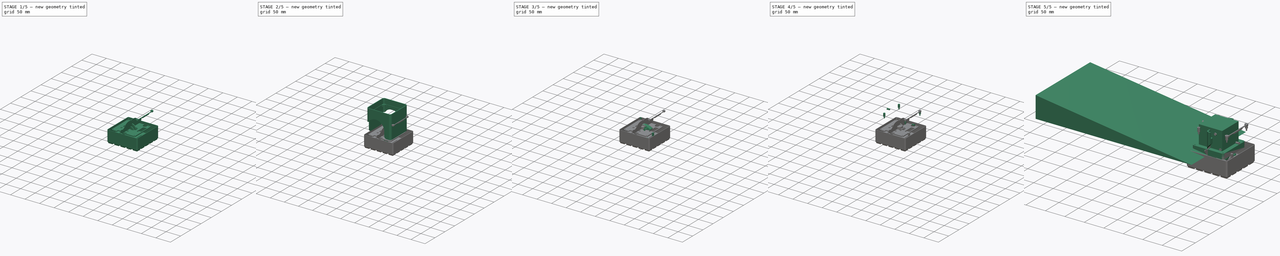
[diagram: build sequence overview — one tinted view per stage of 5, left to right]
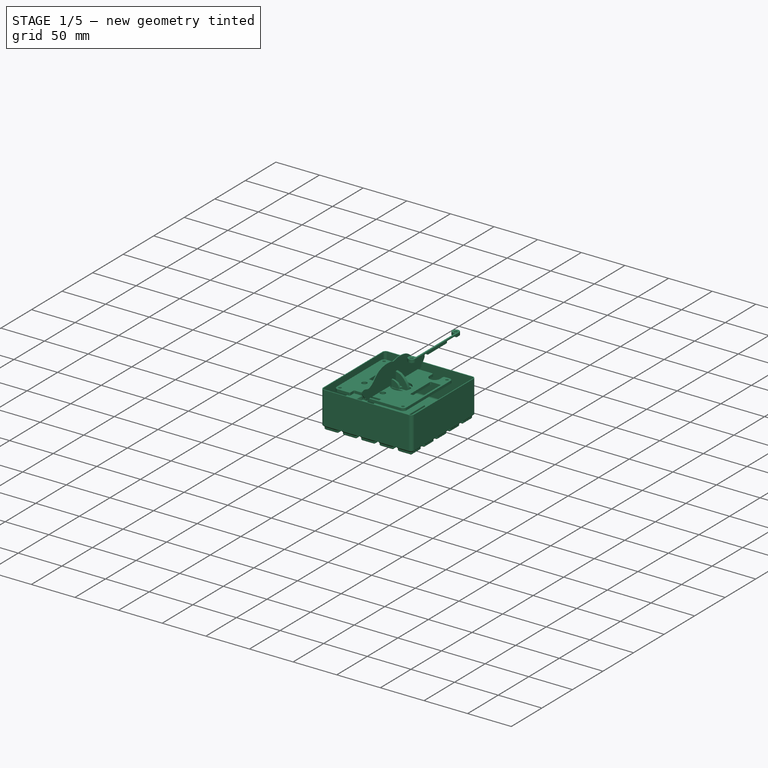
[diagram: stage 1 of 5 — iso view after this stage's code; geometry added in this stage tinted green]
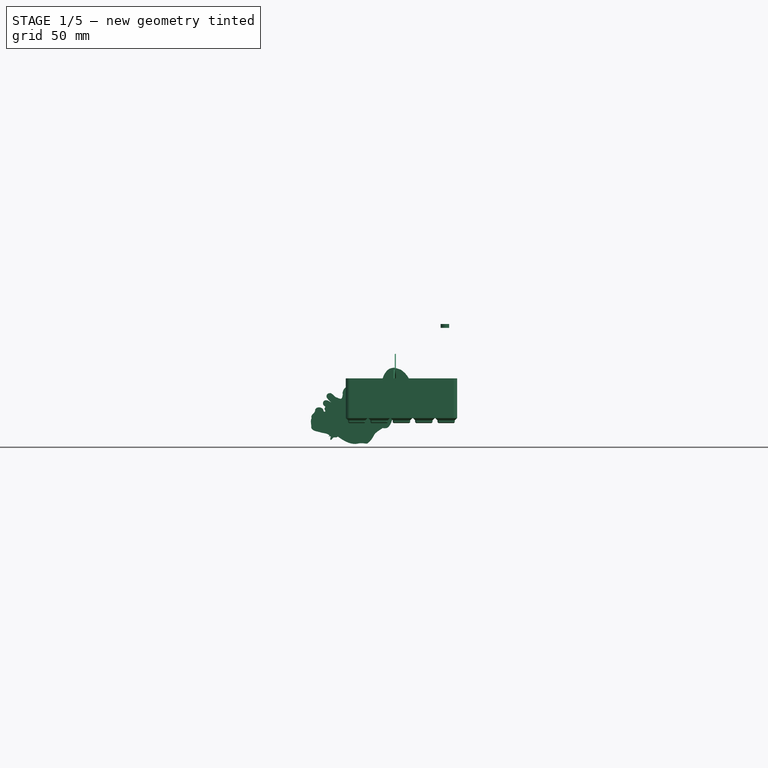
[diagram: stage 1 of 5 — front view after this stage's code; geometry added in this stage tinted green]
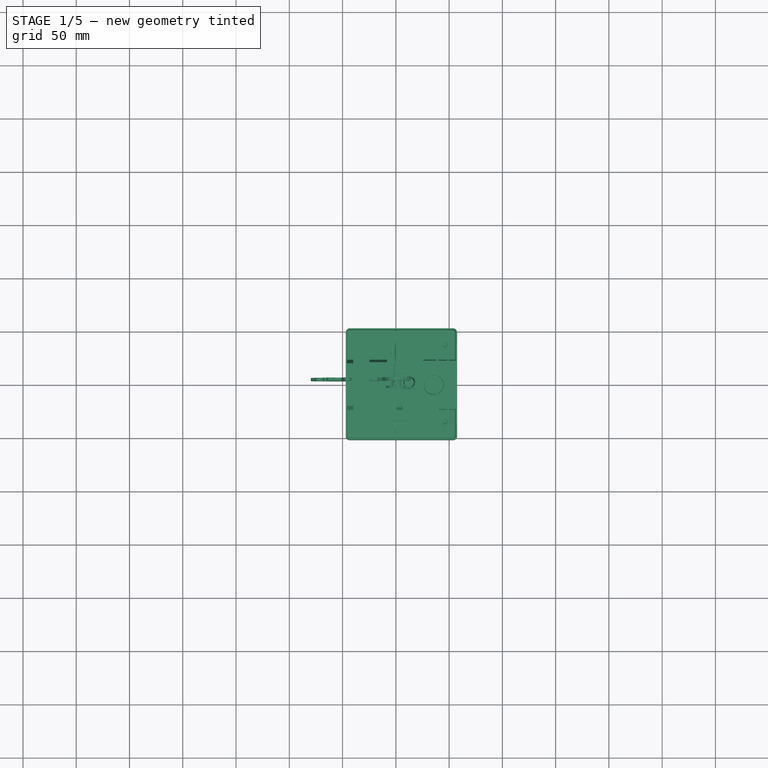
[diagram: stage 1 of 5 — top view after this stage's code; geometry added in this stage tinted green]
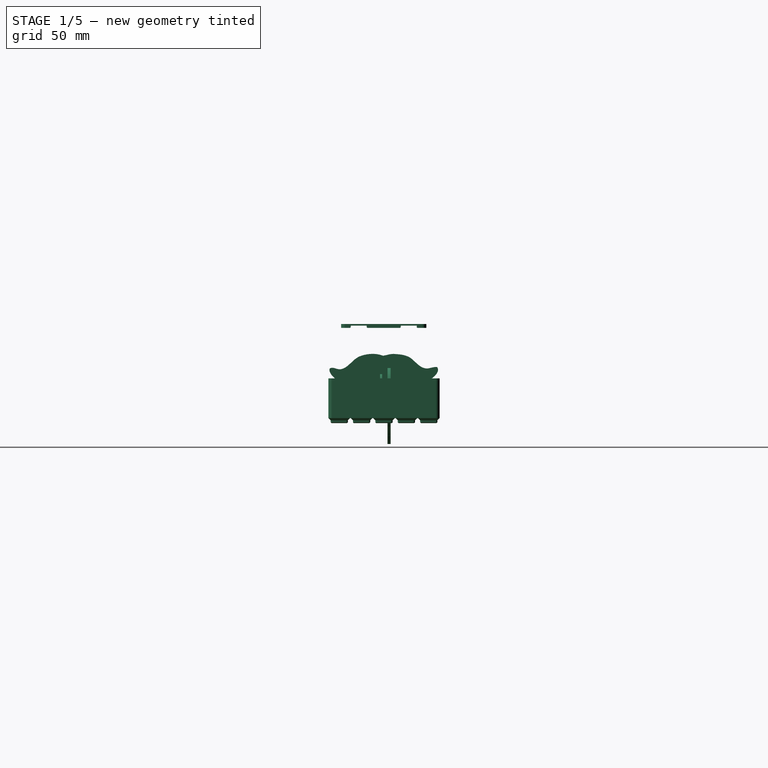
[diagram: stage 1 of 5 — right view after this stage's code; geometry added in this stage tinted green]
FCSTD DOCUMENT  (FreeCAD 2024.113R14555 (Git shallow))
Label: PAMI-2025
License: All rights reserved
LicenseURL: https://en.wikipedia.org/wiki/All_rights_reserved
objects: Sketcher::SketchObject×95, PartDesign::Pocket×56, PartDesign::Pad×46, Part::FeaturePython×42, PartDesign::Fillet×39, PartDesign::Chamfer×36, PartDesign::Body×33, App::Part×12, Part::Feature×11, App::Link×10, PartDesign::Mirrored×10, PartDesign::Draft×8, PartDesign::SubShapeBinder×8, Part::SubShapeBinder×7, PartDesign::Revolution×6, PartDesign::FeatureBase×6, TechDraw::DrawProjGroupItem×6, TechDraw::DrawProjGroup×6, App::DocumentObjectGroup×4, TechDraw::DrawSVGTemplate×3, +10 more types
note: 928 computed .brp shape members not serialized (recipe doc carries the construction recipe); baked Part::Feature solids carry a one-line shape summary decoded from their .brp
EXTERNAL_REF file=electronics/support-sensor.FCStd obj=Body

FEATURE [PartDesign::Body] Body037  label="RobotAdverseMinimum"
  AutoGroupSolids = false
  ClaimAllChildren = false
  ExportMode = 0
  Group = -> [Sketch138,Pad057]
  InvalidShape = false
  Origin = -> Origin053
  Placement = pos=(-80,0,-30) rot=(0,0,1;0rad)
  Tip = -> Pad057
  TreeRank = 1302
  ValidateShape = false
  _ExportChildren = -> [Pad057]
  _GroupVersion = 1
FEATURE [App::Part] Part014  label="Elements"
  ClaimAllChildren = false
  ExportMode = 1
  Group = -> [Body032,Body037]
  Origin = -> Origin052
  TreeRank = 1699
  _ExportChildren = -> [Body032,Body037]
  _GroupVersion = 1
FEATURE [Sketcher::SketchObject] Sketch139
  ArcFitTolerance = 1e-06
  AttachmentSupport = -> [XY_Plane048]
  ExternalBSplineMaxDegree = 5
  ExternalBSplineTolerance = 0.0001
  FullyConstrained = true
  InternalTolerance = 1e-06
  InvalidShape = false
  MakeInternals = true
  MapMode = 5
  Support = -> [XY_Plane048]
  TreeRank = 1319
  ValidateShape = false
  sketch-geometry (14):
    g0: ArcOfCircle CenterX=-36 CenterY=36 CenterZ=0 NormalX=0 NormalY=0 NormalZ=1 AngleXU=0 Radius=4 StartAngle=1.5708 EndAngle=3.14159
    g1: LineSegment StartX=-36 StartY=40 StartZ=0 EndX=36 EndY=40 EndZ=0
    g2: ArcOfCircle CenterX=36 CenterY=36 CenterZ=0 NormalX=0 NormalY=0 NormalZ=1 AngleXU=0 Radius=4 StartAngle=1e-15 EndAngle=1.5708
    g3: LineSegment StartX=40 StartY=36 StartZ=0 EndX=40 EndY=-36 EndZ=0
    g4: ArcOfCircle CenterX=36 CenterY=-36 CenterZ=0 NormalX=0 NormalY=0 NormalZ=1 AngleXU=0 Radius=4 StartAngle=4.71239 EndAngle=6.28319
    g5: LineSegment StartX=36 StartY=-40 StartZ=0 EndX=-36 EndY=-40 EndZ=0
    g6: ArcOfCircle CenterX=-36 CenterY=-36 CenterZ=0 NormalX=0 NormalY=0 NormalZ=1 AngleXU=0 Radius=4 StartAngle=3.14159 EndAngle=4.71239
    g7: LineSegment StartX=-40 StartY=-36 StartZ=0 EndX=-40 EndY=36 EndZ=0
    g8: GeomPoint [constr] X=-40 Y=40 Z=0
    g9: GeomPoint [constr] X=40 Y=-40 Z=0
    g10: Circle CenterX=36 CenterY=-36 CenterZ=0 NormalX=0 NormalY=0 NormalZ=1 AngleXU=0 Radius=1.6
    g11: Circle CenterX=36 CenterY=36 CenterZ=0 NormalX=0 NormalY=0 NormalZ=1 AngleXU=0 Radius=1.6
    g12: Circle CenterX=-36 CenterY=36 CenterZ=0 NormalX=0 NormalY=0 NormalZ=1 AngleXU=0 Radius=1.6
    g13: Circle CenterX=-36 CenterY=-36 CenterZ=0 NormalX=0 NormalY=0 NormalZ=1 AngleXU=0 Radius=1.6
  constraints (30):
    c: Tangent(g0,g1) = 1.5708
    c: Tangent(g1,g2) = 1.5708
    c: Tangent(g2,g3) = 1.5708
    c: Tangent(g3,g4) = 1.5708
    c: Tangent(g4,g5) = 1.5708
    c: Tangent(g5,g6) = 1.5708
    c: Tangent(g6,g7) = 1.5708
    c: Tangent(g7,g0) = 1.5708
    c: Horizontal(g5)
    c: Vertical(g7)
    c: Equal(g0,g2)
    c: Equal(g2,g4)
    c: Equal(g4,g6)
    c: PointOnObject(g8,g1)
    c: PointOnObject(g8,g7)
    c: PointOnObject(g9,g3)
    c: PointOnObject(g9,g5)
    c: Symmetric(g3,g2,g-1)
    c: Symmetric(g0,g1,g-2)
    c: Equal(g1,g3)
    c: Radius(g2) = 4
    c: DistanceX(g0,g2) = 80
    c: Coincident(g10,g4)
    c: Coincident(g11,g2)
    c: Coincident(g12,g0)
    c: Coincident(g13,g6)
    c: Equal(g12,g13)
    c: Equal(g12,g10)
    c: Equal(g12,g11)
    c: Diameter(g12) = 3.2
FEATURE [PartDesign::Pad] Pad058
  AddSubType = 0
  AlongSketchNormal = false
  AutoTaperInnerAngle = true
  CheckUpToFaceLimits = true
  ClaimChildren = false
  Direction = (0,0,1)
  Fit = 0
  FitJoin = 0
  InnerFit = 0
  InnerFitJoin = 0
  InvalidShape = false
  Length = 3
  Length2 = 10
  Linearize = true
  NewSolid = false
  Profile = -> Sketch139
  ReferenceAxis = -> Sketch139 [N_Axis]
  Refine = true
  Suppress = false
  TaperInnerAngle = 0
  TaperInnerAngleRev = 0
  TreeRank = 1320
  Type = 0
  ValidateShape = true
  _ProfileBasedVersion = 1
FEATURE [Sketcher::SketchObject] Sketch140
  ArcFitTolerance = 1e-06
  AttachmentSupport = -> [XY_Plane048]
  ExternalBSplineMaxDegree = 5
  ExternalBSplineTolerance = 0.0001
  ExternalGeometry = -> [Pad058]
  FullyConstrained = false
  InternalTolerance = 1e-06
  InvalidShape = false
  MakeInternals = true
  MapMode = 5
  Support = -> [XY_Plane048]
  TreeRank = 1322
  ValidateShape = false
  sketch-geometry (17):
    g0: Circle CenterX=3.47913 CenterY=-22.4844 CenterZ=0 NormalX=0 NormalY=0 NormalZ=1 AngleXU=0 Radius=3
    g1: Circle CenterX=-23.5432 CenterY=-14.0924 CenterZ=0 NormalX=0 NormalY=0 NormalZ=1 AngleXU=0 Radius=3
    g2: Circle CenterX=9 CenterY=0 CenterZ=0 NormalX=0 NormalY=0 NormalZ=1 AngleXU=0 Radius=10.5
    g3: LineSegment StartX=-22.068 StartY=-40.2183 StartZ=0 EndX=-22.068 EndY=-33.2183 EndZ=0
    g4: LineSegment StartX=-22.068 StartY=-33.2183 StartZ=0 EndX=-8.56802 EndY=-33.2183 EndZ=0
    g5: LineSegment StartX=-8.56802 StartY=-33.2183 StartZ=0 EndX=-8.56802 EndY=-40.2183 EndZ=0
    g6: LineSegment StartX=-8.56802 StartY=-40.2183 StartZ=0 EndX=-22.068 EndY=-40.2183 EndZ=0
    g7: GeomPoint [constr] X=-15.318 Y=-36.7183 Z=0
    g8: LineSegment StartX=25.7619 StartY=-10.0224 StartZ=0 EndX=37.8758 EndY=-10.0224 EndZ=0
    g9: LineSegment StartX=37.8758 StartY=-10.0224 StartZ=0 EndX=37.8758 EndY=23.5365 EndZ=0
    g10: LineSegment StartX=37.8758 StartY=23.5365 StartZ=0 EndX=25.7619 EndY=23.5365 EndZ=0
    g11: LineSegment StartX=25.7619 StartY=23.5365 StartZ=0 EndX=25.7619 EndY=-10.0224 EndZ=0
    g12: ArcOfCircle CenterX=23.5 CenterY=40 CenterZ=0 NormalX=0 NormalY=0 NormalZ=1 AngleXU=0 Radius=6 StartAngle=2e-16 EndAngle=3.14159
    g13: ArcOfCircle CenterX=23.5 CenterY=34 CenterZ=0 NormalX=0 NormalY=0 NormalZ=1 AngleXU=0 Radius=6 StartAngle=3.14159 EndAngle=6.28319
    g14: LineSegment StartX=17.5 StartY=40 StartZ=0 EndX=17.5 EndY=34 EndZ=0
    g15: LineSegment StartX=29.5 StartY=34 StartZ=0 EndX=29.5 EndY=40 EndZ=0
    g16: Circle [constr] CenterX=23.5 CenterY=34 CenterZ=0 NormalX=0 NormalY=0 NormalZ=1 AngleXU=0 Radius=6
  constraints (40):
    c: Diameter(g0) = 6
    c: Equal(g1,g0)
    c: Block(g0)
    c: Block(g1)
    c: PointOnObject(g2,g-1)
    c: DistanceX(g-1,g2) = 9
    c: Diameter(g2) = 21
    c: Coincident(g3,g4)
    c: Coincident(g4,g5)
    c: Coincident(g5,g6)
    c: Coincident(g6,g3)
    c: Horizontal(g4)
    c: Horizontal(g6)
    c: Vertical(g3)
    c: Vertical(g5)
    c: Symmetric(g4,g3,g7)
    c: DistanceX(g7) = -15.318
    c: DistanceY(g7) = -36.7183
    c: DistanceY(g5,g5) = 7
    c: DistanceX(g4,g4) = 13.5
    c: Coincident(g8,g9)
    c: Coincident(g9,g10)
    c: Coincident(g10,g11)
    c: Coincident(g11,g8)
    c: Horizontal(g8)
    c: Horizontal(g10)
    c: Vertical(g9)
    c: Vertical(g11)
    c: Tangent(g12,g14) = -1.5708
    c: Tangent(g14,g13) = -1.5708
    c: Tangent(g13,g15) = -1.5708
    c: Tangent(g15,g12) = -1.5708
    c: Equal(g12,g13)
    c: PointOnObject(g12,g-3)
    c: Vertical(g14)
    c: Radius(g13) = 6
    c: Coincident(g16,g13)
    c: PointOnObject(g13,g16)
    c: Tangent(g16,g-3)
    c: DistanceX(g13) = 23.5
FEATURE [PartDesign::Pocket] Pocket072
  AddSubType = 1
  AlongSketchNormal = false
  AutoTaperInnerAngle = true
  BaseFeature = -> Pad058
  CheckUpToFaceLimits = true
  ClaimChildren = false
  Direction = (0,0,-1)
  Fit = 0
  FitJoin = 0
  InnerFit = 0
  InnerFitJoin = 0
  InvalidShape = false
  Length = 5
  Length2 = 10
  Linearize = true
  NewSolid = false
  Profile = -> Sketch140
  ReferenceAxis = -> Sketch140 [N_Axis]
  Refine = true
  Reversed = true
  Suppress = false
  TaperInnerAngle = 0
  TaperInnerAngleRev = 0
  TreeRank = 1323
  Type = 1
  ValidateShape = true
  _ProfileBasedVersion = 1
  _Version = 1
FEATURE [PartDesign::Fillet] Fillet072
  AddSubType = 0
  Base = -> Pocket072 [Edge67,Edge68,Edge70,Edge69,Edge80,Edge79,Edge77,Edge78,Edge62,Edge6]
  BaseFeature = -> Pocket072
  InvalidShape = false
  NewSolid = false
  Radius = 1
  Refine = true
  SupportTransform = false
  Suppress = false
  TreeRank = 1355
  UseAllEdges = false
  ValidateShape = true
FEATURE [Part::Feature] Solid003  label="arm v1"
  InvalidShape = false
  Placement = pos=(39,98.1,27) rot=(0,0,1;3.14159rad)
  TreeRank = 1359
  ValidateShape = false
  shape: bbox 21 x 4 x 8 mm, 75 faces (baked)
FEATURE [PartDesign::FeatureBase] BaseFeature
  BaseFeature = -> Solid003
  InvalidShape = false
  NewSolid = false
  Suppress = false
  TreeRank = 1370
  ValidateShape = true
FEATURE [Sketcher::SketchObject] Sketch148
  ArcFitTolerance = 1e-06
  AttachmentSupport = -> [BaseFeature]
  ExternalBSplineMaxDegree = 5
  ExternalBSplineTolerance = 0.0001
  ExternalGeometry = -> [BaseFeature]
  FullyConstrained = true
  InternalTolerance = 1e-06
  InvalidShape = false
  MakeInternals = true
  MapMode = 5
  Placement = pos=(0,0,0) rot=(1,0,0;1.5708rad)
  Support = -> [BaseFeature]
  TreeRank = 1371
  ValidateShape = false
  sketch-geometry (2):
    g0: Circle CenterX=0 CenterY=0 CenterZ=0 NormalX=0 NormalY=0 NormalZ=1 AngleXU=0 Radius=4
    g1: Circle CenterX=0 CenterY=0 CenterZ=0 NormalX=0 NormalY=0 NormalZ=1 AngleXU=0 Radius=20
  constraints (4):
    c: Coincident(g0,g-1)
    c: Coincident(g1,g0)
    c: PointOnObject(g-3,g0)
    c: Diameter(g1) = 40
FEATURE [PartDesign::Pocket] Pocket079
  AddSubType = 1
  AlongSketchNormal = false
  AutoTaperInnerAngle = true
  BaseFeature = -> BaseFeature
  CheckUpToFaceLimits = true
  ClaimChildren = false
  Direction = (0,1,-2e-16)
  Fit = 0
  FitJoin = 0
  InnerFit = 0
  InnerFitJoin = 0
  InvalidShape = false
  Length = 5
  Length2 = 10
  Linearize = true
  NewSolid = false
  Profile = -> Sketch148
  ReferenceAxis = -> Sketch148 [N_Axis]
  Refine = true
  Suppress = false
  TaperInnerAngle = 0
  TaperInnerAngleRev = 0
  TreeRank = 1372
  Type = 0
  ValidateShape = true
  _ProfileBasedVersion = 1
  _Version = 1
FEATURE [PartDesign::Pad] Pad060
  AddSubType = 0
  AlongSketchNormal = false
  AutoTaperInnerAngle = true
  BaseFeature = -> Pocket079
  CheckUpToFaceLimits = true
  ClaimChildren = false
  Direction = (0,-1,0)
  Fit = 0
  FitJoin = 0
  InnerFit = 0
  InnerFitJoin = 0
  InvalidShape = false
  Length = 1.5
  Length2 = 10
  Linearize = true
  NewSolid = false
  Profile = -> Pocket079 [Face70]
  Refine = true
  Suppress = false
  TaperInnerAngle = 0
  TaperInnerAngleRev = 0
  TreeRank = 1373
  Type = 0
  ValidateShape = true
  _ProfileBasedVersion = 1
FEATURE [Sketcher::SketchObject] Sketch149
  ArcFitTolerance = 1e-06
  AttachmentSupport = -> [Pad060]
  ExternalBSplineMaxDegree = 5
  ExternalBSplineTolerance = 0.0001
  ExternalGeometry = -> [Pad060]
  FullyConstrained = true
  InternalTolerance = 1e-06
  InvalidShape = false
  MakeInternals = true
  MapMode = 5
  Placement = pos=(0,-1.5,0) rot=(1,0,0;1.5708rad)
  Support = -> [Pad060]
  TreeRank = 1374
  ValidateShape = false
  sketch-geometry (1):
    g0: Circle CenterX=0 CenterY=0 CenterZ=0 NormalX=0 NormalY=0 NormalZ=1 AngleXU=0 Radius=9
  constraints (3):
    c: Coincident(g0,g-3)
    c: Diameter(g0) = 18
    c: Diameter(g-3) = 2.5
FEATURE [PartDesign::Pad] Pad061
  AddSubType = 0
  AlongSketchNormal = false
  AutoTaperInnerAngle = true
  BaseFeature = -> Pad060
  CheckUpToFaceLimits = true
  ClaimChildren = false
  Direction = (0,-1,2e-16)
  Fit = 0
  FitJoin = 0
  InnerFit = 0
  InnerFitJoin = 0
  InvalidShape = false
  Length = 2
  Length2 = 10
  Linearize = true
  NewSolid = false
  Profile = -> Sketch149
  ReferenceAxis = -> Sketch149 [N_Axis]
  Refine = true
  Suppress = false
  TaperInnerAngle = 0
  TaperInnerAngleRev = 0
  TreeRank = 1375
  Type = 0
  ValidateShape = true
  _ProfileBasedVersion = 1
FEATURE [Sketcher::SketchObject] Sketch150
  ArcFitTolerance = 1e-06
  AttachmentSupport = -> [Pad060]
  ExternalBSplineMaxDegree = 5
  ExternalBSplineTolerance = 0.0001
  ExternalGeometry = -> [Pad060]
  FullyConstrained = true
  InternalTolerance = 1e-06
  InvalidShape = false
  MakeInternals = true
  MapMode = 5
  Placement = pos=(0,-1.5,0) rot=(1,0,0;1.5708rad)
  Support = -> [Pad060]
  TreeRank = 1376
  ValidateShape = false
  sketch-geometry (2):
    g0: Circle CenterX=0 CenterY=0 CenterZ=0 NormalX=0 NormalY=0 NormalZ=1 AngleXU=0 Radius=5
    g1: Circle CenterX=0 CenterY=0 CenterZ=0 NormalX=0 NormalY=0 NormalZ=1 AngleXU=0 Radius=4
  constraints (4):
    c: Coincident(g0,g-3)
    c: Coincident(g1,g0)
    c: PointOnObject(g-3,g1)
    c: Diameter(g0) = 10
FEATURE [PartDesign::Pad] Pad062
  AddSubType = 0
  AlongSketchNormal = false
  AutoTaperInnerAngle = true
  BaseFeature = -> Pad061
  CheckUpToFaceLimits = true
  ClaimChildren = false
  Direction = (0,-1,0)
  Fit = 0
  FitJoin = 0
  InnerFit = 0
  InnerFitJoin = 0
  InvalidShape = false
  Length = 5.5
  Length2 = 10
  Linearize = true
  NewSolid = false
  Profile = -> Sketch150
  ReferenceAxis = -> Sketch150 [N_Axis]
  Refine = true
  Reversed = true
  Suppress = false
  TaperInnerAngle = 0
  TaperInnerAngleRev = 0
  TreeRank = 1377
  Type = 0
  ValidateShape = true
  _ProfileBasedVersion = 1
FEATURE [Image::ImagePlane] BrasContour01
  Placement = pos=(-28.5,6.5,-15) rot=(0,0.707107,0.707107;3.14159rad)
  TreeRank = 1378
  XSize = 79.9153
  YSize = 57.158
FEATURE [Part::Feature] path302_3_3_2_3
  InvalidShape = false
  Placement = pos=(10.5,6.5,14) rot=(0,0.707107,0.707107;3.14159rad)
  TreeRank = 1382
  ValidateShape = false
  shape: bbox 78.84 x 2e-07 x 56.54 mm, 0 faces, 0 solids (baked)
FEATURE [PartDesign::SubShapeBinder] Pad063_Profile  label="Pad063_Profile(path302_3_3_2_3)"
  BindCopyOnChange = 0
  BindMode = 0
  ClaimChildren = false
  Context = -> Part018 [Part016.Part017.Body041.Pad063_Profile.]
  EdgeTolerance = 1e-06
  FillStyle = 0
  Fuse = false
  InvalidShape = false
  MakeFace = true
  MergeEdges = true
  OffsetFill = false
  OffsetIntersection = false
  OffsetJoinType = 0
  OffsetOpenResult = false
  Outline = false
  PartialLoad = false
  Relative = true
  SplitEdges = false
  Support = -> [path302_3_3_2_3]
  TightBound = false
  TreeRank = 1399
  ValidateShape = false
  _Version = 8
FEATURE [PartDesign::Pad] Pad063
  AddSubType = 0
  AlongSketchNormal = false
  AutoTaperInnerAngle = true
  CheckUpToFaceLimits = true
  ClaimChildren = false
  Direction = (0,1,2e-16)
  Fit = 0
  FitJoin = 0
  InnerFit = 0
  InnerFitJoin = 0
  InvalidShape = false
  Length = 3
  Length2 = 10
  Linearize = true
  NewSolid = false
  Profile = -> Pad063_Profile
  Refine = true
  Reversed = true
  Suppress = false
  TaperInnerAngle = 0
  TaperInnerAngleRev = 0
  TreeRank = 1400
  Type = 0
  ValidateShape = true
  _ProfileBasedVersion = 1
FEATURE [Sketcher::SketchObject] Sketch166
  ArcFitTolerance = 1e-06
  AttachmentSupport = -> [Fillet072]
  ExternalBSplineMaxDegree = 5
  ExternalBSplineTolerance = 0.0001
  ExternalGeometry = -> [Fillet072]
  FullyConstrained = true
  InternalTolerance = 1e-06
  InvalidShape = false
  MakeInternals = true
  MapMode = 5
  Placement = pos=(0,0,3) rot=(0,0,1;0rad)
  Support = -> [Fillet072]
  TreeRank = 1510
  ValidateShape = false
  sketch-geometry (7):
    g0: LineSegment [constr] StartX=-5 StartY=-41 StartZ=0 EndX=10 EndY=-41 EndZ=0
    g1: LineSegment [constr] StartX=10 StartY=-41 StartZ=0 EndX=10 EndY=-34.6 EndZ=0
    g2: LineSegment StartX=10 StartY=-34.6 StartZ=0 EndX=-5 EndY=-34.6 EndZ=0
    g3: LineSegment [constr] StartX=-5 StartY=-34.6 StartZ=0 EndX=-5 EndY=-41 EndZ=0
    g4: LineSegment StartX=-5 StartY=-34.6 StartZ=0 EndX=-5 EndY=-38 EndZ=0
    g5: LineSegment StartX=-5 StartY=-38 StartZ=0 EndX=10 EndY=-38 EndZ=0
    g6: LineSegment StartX=10 StartY=-38 StartZ=0 EndX=10 EndY=-34.6 EndZ=0
  constraints (20):
    c: Coincident(g0,g1)
    c: Coincident(g1,g2)
    c: Coincident(g2,g3)
    c: Coincident(g3,g0)
    c: Horizontal(g0)
    c: Horizontal(g2)
    c: Vertical(g1)
    c: Vertical(g3)
    c: DistanceY(g0,g-3) = 1
    c: DistanceY(g1,g1) = 6.4
    c: DistanceX(g0,g-1) = 5
    c: Coincident(g2,g4)
    c: PointOnObject(g4,g3)
    c: Coincident(g4,g5)
    c: PointOnObject(g5,g1)
    c: Horizontal(g5)
    c: Coincident(g5,g6)
    c: Coincident(g6,g2)
    c: DistanceY(g5,g2) = 3.4
    c: DistanceX(g2,g2) = 15
FEATURE [PartDesign::Pocket] Pocket088
  AddSubType = 1
  AlongSketchNormal = false
  AutoTaperInnerAngle = true
  BaseFeature = -> Fillet072
  CheckUpToFaceLimits = true
  ClaimChildren = false
  Direction = (0,0,-1)
  Fit = 0
  FitJoin = 0
  InnerFit = 0
  InnerFitJoin = 0
  InvalidShape = false
  Length = 3
  Length2 = 10
  Linearize = true
  NewSolid = false
  Profile = -> Sketch166
  ReferenceAxis = -> Sketch166 [N_Axis]
  Refine = true
  Suppress = false
  TaperInnerAngle = 0
  TaperInnerAngleRev = 0
  TreeRank = 1511
  Type = 0
  ValidateShape = true
  _ProfileBasedVersion = 1
  _Version = 1
FEATURE [Sketcher::SketchObject] Sketch167
  ArcFitTolerance = 1e-06
  AttachmentSupport = -> [XY_Plane055]
  ExternalBSplineMaxDegree = 5
  ExternalBSplineTolerance = 0.0001
  FullyConstrained = true
  InternalTolerance = 1e-06
  InvalidShape = false
  MakeInternals = true
  MapMode = 5
  Support = -> [XY_Plane055]
  TreeRank = 1522
  ValidateShape = false
  sketch-geometry (4):
    g0: LineSegment StartX=0 StartY=0 StartZ=0 EndX=15 EndY=0 EndZ=0
    g1: LineSegment StartX=15 StartY=0 StartZ=0 EndX=15 EndY=-3 EndZ=0
    g2: LineSegment StartX=15 StartY=-3 StartZ=0 EndX=0 EndY=-3 EndZ=0
    g3: LineSegment StartX=0 StartY=-3 StartZ=0 EndX=0 EndY=0 EndZ=0
  constraints (11):
    c: Coincident(g0,g1)
    c: Coincident(g1,g2)
    c: Coincident(g2,g3)
    c: Coincident(g3,g0)
    c: Horizontal(g0)
    c: Horizontal(g2)
    c: Vertical(g1)
    c: Vertical(g3)
    c: Coincident(g0,g-1)
    c: DistanceY(g1,g1) = 3
    c: DistanceX(g2,g2) = 15
FEATURE [PartDesign::Pad] Pad068
  AddSubType = 0
  AlongSketchNormal = false
  AutoTaperInnerAngle = true
  CheckUpToFaceLimits = true
  ClaimChildren = false
  Direction = (0,0,1)
  Fit = 0
  FitJoin = 0
  InnerFit = 0
  InnerFitJoin = 0
  InvalidShape = false
  Length = 11
  Length2 = 10
  Linearize = true
  NewSolid = false
  Profile = -> Sketch167
  ReferenceAxis = -> Sketch167 [N_Axis]
  Refine = true
  Reversed = true
  Suppress = false
  TaperInnerAngle = 0
  TaperInnerAngleRev = 0
  TreeRank = 1523
  Type = 0
  ValidateShape = true
  _ProfileBasedVersion = 1
FEATURE [Part::SubShapeBinder] Import003  label="Import003(Pocket088)"
  BindCopyOnChange = 0
  BindMode = 0
  ClaimChildren = false
  Context = -> Part018 [Part015.Body047.Import003.]
  EdgeTolerance = 1e-06
  FillStyle = 0
  FixShape = 1
  Fuse = false
  InvalidShape = false
  MakeFace = false
  MergeEdges = true
  OffsetFill = false
  OffsetIntersection = false
  OffsetJoinType = 0
  OffsetOpenResult = false
  Outline = false
  PartialLoad = false
  Relative = true
  SplitEdges = false
  Support = -> [Body038[Pocket088.]]
  TightBound = false
  TreeRank = 1583
  ValidateShape = false
  _Version = 8
FEATURE [Sketcher::SketchObject] Sketch175
  ArcFitTolerance = 1e-06
  AttachmentSupport = -> [XY_Plane058]
  ExternalBSplineMaxDegree = 5
  ExternalBSplineTolerance = 0.0001
  ExternalGeometry = -> [Import003]
  FixShape = 1
  FullyConstrained = true
  InternalTolerance = 1e-06
  InvalidShape = false
  MakeInternals = false
  MapMode = 5
  Support = -> [XY_Plane058]
  TreeRank = 1582
  ValidateShape = false
  sketch-geometry (7):
    g0: ArcOfCircle CenterX=0 CenterY=0 CenterZ=0 NormalX=0 NormalY=0 NormalZ=1 AngleXU=0 Radius=4 StartAngle=3.14159 EndAngle=4.71239
    g1: LineSegment StartX=0 StartY=-4 StartZ=0 EndX=19.5 EndY=-4 EndZ=0
    g2: LineSegment StartX=19.5 StartY=-4 StartZ=0 EndX=19.5 EndY=2 EndZ=0
    g3: ArcOfCircle CenterX=12.5 CenterY=2 CenterZ=0 NormalX=0 NormalY=0 NormalZ=1 AngleXU=0 Radius=7 StartAngle=0 EndAngle=1.96871
    g4: ArcOfCircle CenterX=0 CenterY=0 CenterZ=0 NormalX=0 NormalY=0 NormalZ=1 AngleXU=0 Radius=4 StartAngle=1.96871 EndAngle=3.14159
    g5: LineSegment StartX=-1.55 StartY=3.68748 StartZ=0 EndX=9.78751 EndY=8.45309 EndZ=0
    g6: Circle CenterX=0 CenterY=0 CenterZ=0 NormalX=0 NormalY=0 NormalZ=1 AngleXU=0 Radius=1.6
  constraints (16):
    c: Coincident(g0,g-6)
    c: Coincident(g0,g-6)
    c: PointOnObject(g0,g-2)
    c: Coincident(g1,g0)
    c: Horizontal(g1)
    c: Coincident(g2,g1)
    c: Vertical(g2)
    c: Coincident(g3,g-5)
    c: Coincident(g4,g0)
    c: Coincident(g4,g0)
    c: Tangent(g5,g4) = 1.5708
    c: Tangent(g5,g3) = 1.5708
    c: Tangent(g3,g2) = -1.5708
    c: DistanceX(g-5,g2) = 1
    c: Coincident(g6,g0)
    c: Diameter(g6) = 3.2
FEATURE [PartDesign::Pad] Pad071
  AddSubType = 0
  AlongSketchNormal = false
  AutoTaperInnerAngle = true
  CheckUpToFaceLimits = true
  ClaimChildren = false
  Direction = (0,0,1)
  Fit = 0
  FitJoin = 0
  FixShape = 1
  InnerFit = 0
  InnerFitJoin = 0
  InvalidShape = false
  Length = 1
  Length2 = 10
  Linearize = true
  NewSolid = false
  Profile = -> Sketch175
  ReferenceAxis = -> Sketch175 [N_Axis]
  Refine = true
  Suppress = false
  TaperInnerAngle = 0
  TaperInnerAngleRev = 0
  TreeRank = 1584
  Type = 0
  ValidateShape = true
  _ProfileBasedVersion = 1
FEATURE [Sketcher::SketchObject] Sketch176
  ArcFitTolerance = 1e-06
  AttachmentSupport = -> [XY_Plane058]
  ExternalBSplineMaxDegree = 5
  ExternalBSplineTolerance = 0.0001
  ExternalGeometry = -> [Import003,Pad071]
  FixShape = 1
  FullyConstrained = true
  InternalTolerance = 1e-06
  InvalidShape = false
  MakeInternals = false
  MapMode = 5
  Support = -> [XY_Plane058]
  TreeRank = 1585
  ValidateShape = false
  sketch-geometry (3):
    g0: LineSegment StartX=6.5 StartY=2 StartZ=0 EndX=6.5 EndY=-4 EndZ=0
    g1: LineSegment StartX=18.5 StartY=2 StartZ=0 EndX=18.5 EndY=-4 EndZ=0
    g2: LineSegment StartX=18.5 StartY=-4 StartZ=0 EndX=6.5 EndY=-4 EndZ=0
  constraints (8):
    c: Coincident(g0,g-3)
    c: PointOnObject(g0,g-4)
    c: Vertical(g0)
    c: Coincident(g1,g-3)
    c: PointOnObject(g1,g-4)
    c: Vertical(g1)
    c: Coincident(g2,g1)
    c: Coincident(g2,g0)
FEATURE [PartDesign::Pad] Pad072
  AddSubType = 0
  AlongSketchNormal = false
  AutoTaperInnerAngle = true
  BaseFeature = -> Pad071
  CheckUpToFaceLimits = true
  ClaimChildren = false
  Direction = (0,0,1)
  Fit = 0
  FitJoin = 0
  FixShape = 1
  InnerFit = 0
  InnerFitJoin = 0
  InvalidShape = false
  Length = 15
  Length2 = 10
  Linearize = true
  NewSolid = false
  Profile = -> Sketch176
  ReferenceAxis = -> Sketch176 [N_Axis]
  Refine = true
  Reversed = true
  Suppress = false
  TaperInnerAngle = 0
  TaperInnerAngleRev = 0
  TreeRank = 1586
  Type = 0
  ValidateShape = true
  _ProfileBasedVersion = 1
FEATURE [Sketcher::SketchObject] Sketch177
  ArcFitTolerance = 1e-06
  AttachmentSupport = -> [Pad072]
  ExternalBSplineMaxDegree = 5
  ExternalBSplineTolerance = 0.0001
  ExternalGeometry = -> [Pad072]
  FixShape = 1
  FullyConstrained = true
  InternalTolerance = 1e-06
  InvalidShape = false
  MakeInternals = false
  MapMode = 5
  Placement = pos=(0,0,1) rot=(0,0,1;0rad)
  Support = -> [Pad072]
  TreeRank = 1587
  ValidateShape = false
  sketch-geometry (1):
    g0: Circle CenterX=12.5 CenterY=2 CenterZ=0 NormalX=0 NormalY=0 NormalZ=1 AngleXU=0 Radius=5.25
  constraints (2):
    c: Coincident(g0,g-3)
    c: Diameter(g0) = 10.5
FEATURE [PartDesign::Pocket] Pocket093
  AddSubType = 1
  AlongSketchNormal = false
  AutoTaperInnerAngle = true
  BaseFeature = -> Pad072
  CheckUpToFaceLimits = true
  ClaimChildren = false
  Direction = (0,0,-1)
  Fit = 0
  FitJoin = 0
  FixShape = 1
  InnerFit = 0
  InnerFitJoin = 0
  InvalidShape = false
  Length = 12.8
  Length2 = 10
  Linearize = true
  NewSolid = false
  Profile = -> Sketch177
  ReferenceAxis = -> Sketch177 [N_Axis]
  Refine = true
  Suppress = false
  TaperInnerAngle = 0
  TaperInnerAngleRev = 0
  TreeRank = 1588
  Type = 0
  ValidateShape = true
  _ProfileBasedVersion = 1
  _Version = 1
FEATURE [PartDesign::Chamfer] Chamfer028
  AddSubType = 0
  Angle = 45
  Base = -> Pocket093 [Edge12,Edge14,Edge16,Edge18,Edge32,Edge11]
  BaseFeature = -> Pocket093
  ChamferType = 0
  FixShape = 1
  FlipDirection = false
  InvalidShape = false
  NewSolid = false
  Refine = true
  Size = 0.4
  Size2 = 1
  SupportTransform = false
  Suppress = false
  TreeRank = 1589
  UseAllEdges = false
  ValidateShape = true
FEATURE [PartDesign::Body] Body049  label="Spacer"
  AutoGroupSolids = false
  ClaimAllChildren = false
  ExportMode = 0
  FixShape = 1
  Group = -> [Sketch182,Pad075,Sketch183,Pad076,Chamfer032]
  InvalidShape = false
  Origin = -> Origin069
  Placement = pos=(-26,-36,42.8) rot=(0,0,1;0rad)
  SingleSolid = true
  Tip = -> Chamfer032
  TreeRank = 1635
  ValidateShape = false
  _ExportChildren = -> [Pad075,Pad076,Chamfer032]
  _GroupVersion = 1
FEATURE [App::Link] Link005  label="Link005(Spacer)"
  AutoLinkLabel = true
  AutoPlacement = true
  LinkPlacement = pos=(-26,36,42.8) rot=(0,0,1;0rad)
  LinkedObject = -> Body049
  Placement = pos=(-26,36,42.8) rot=(0,0,1;0rad)
  SyncGroupVisibility = false
  TreeRank = 1641
  _LinkVersion = 1
FEATURE [App::Link] Link006  label="Link006(Spacer)"
  AutoLinkLabel = true
  AutoPlacement = true
  LinkPlacement = pos=(46,-36,42.8) rot=(0,0,1;0rad)
  LinkedObject = -> Body049
  Placement = pos=(46,-36,42.8) rot=(0,0,1;0rad)
  SyncGroupVisibility = false
  TreeRank = 1642
  _LinkVersion = 1
FEATURE [App::Link] Link007  label="Link007(Spacer)"
  AutoLinkLabel = true
  AutoPlacement = true
  LinkPlacement = pos=(46,36,42.8) rot=(0,0,1;0rad)
  LinkedObject = -> Body049
  Placement = pos=(46,36,42.8) rot=(0,0,1;0rad)
  SyncGroupVisibility = false
  TreeRank = 1643
  _LinkVersion = 1
FEATURE [PartDesign::Draft] Draft005
  AddSubType = 0
  Angle = 4
  Base = -> Chamfer028 [Face14]
  BaseFeature = -> Chamfer028
  FixShape = 1
  InvalidShape = false
  NewSolid = false
  Refine = true
  SupportTransform = false
  Suppress = false
  TreeRank = 1644
  ValidateShape = true
FEATURE [PartDesign::Body] Body045  label="BAU"
  AutoGroupSolids = false
  ClaimAllChildren = false
  ExportMode = 0
  Group = -> [Sketch171,Pad070,Fillet079,Sketch172,Groove,Fillet080,Sketch188,Pad078,Chamfer035]
  InvalidShape = false
  Origin = -> Origin065
  Placement = pos=(0,-9,13) rot=(0,0,1;0rad)
  Tip = -> Chamfer035
  TreeRank = 1546
  ValidateShape = false
  _ExportChildren = -> [Pad070,Fillet079,Groove,Fillet080,Pad078,Chamfer035]
  _GroupVersion = 1
FEATURE [Part::Feature] path2
  AttacherType = Attacher::AttachEngine3D
  AttachmentSupport = -> [XZ_Plane052]
  FixShape = 1
  InvalidShape = false
  MapMode = 5
  Placement = pos=(14,-88.1,15) rot=(0,0.707107,0.707107;3.14159rad)
  Support = -> [XZ_Plane052]
  TreeRank = 1680
  ValidateShape = false
  shape: bbox 82.45 x 2e-07 x 57.27 mm, 1 faces, 0 solids (baked)
FEATURE [PartDesign::SubShapeBinder] Pad079_Profile  label="Pad079_Profile(path2)"
  BindCopyOnChange = 0
  BindMode = 0
  ClaimChildren = false
  Context = -> Part018 [Part016.Part017.Body051.Pad079_Profile.]
  EdgeTolerance = 1e-06
  FillStyle = 0
  FixShape = 1
  Fuse = false
  InvalidShape = false
  MakeFace = true
  MergeEdges = true
  OffsetFill = false
  OffsetIntersection = false
  OffsetJoinType = 0
  OffsetOpenResult = false
  Outline = false
  PartialLoad = false
  Relative = true
  SplitEdges = false
  Support = -> [path2]
  TightBound = false
  TreeRank = 1692
  ValidateShape = false
  _Version = 8
FEATURE [PartDesign::Pad] Pad079
  AddSubType = 0
  AlongSketchNormal = false
  AutoTaperInnerAngle = true
  CheckUpToFaceLimits = true
  ClaimChildren = false
  Direction = (1e-16,1,2e-16)
  Fit = 0
  FitJoin = 0
  FixShape = 1
  InnerFit = 0
  InnerFitJoin = 0
  InvalidShape = false
  Length = 3
  Length2 = 10
  Linearize = true
  NewSolid = false
  Profile = -> Pad079_Profile
  Refine = true
  Suppress = false
  TaperInnerAngle = 0
  TaperInnerAngleRev = 0
  TreeRank = 1693
  Type = 0
  ValidateShape = true
  _ProfileBasedVersion = 1
FEATURE [PartDesign::Body] Body044  label="Diffuseur"
  AutoGroupSolids = false
  ClaimAllChildren = false
  ExportMode = 0
  Group = -> [Sketch167,Pad068,Sketch168,Pad069,Fillet078,Sketch189,Sketch169,Pad080,Pocket089,Chamfer024,Pad081]
  InvalidShape = false
  Origin = -> Origin064
  Placement = pos=(5,-38,56) rot=(0,0,1;0rad)
  Tip = -> Pad081
  TreeRank = 1521
  ValidateShape = false
  _ExportChildren = -> [Pad068,Pad069,Fillet078,Pad080,Pocket089,Chamfer024,Pad081]
  _GroupVersion = 1
FEATURE [Part::SubShapeBinder] Import004  label="Import004(Pocket088)"
  BindCopyOnChange = 0
  BindMode = 0
  ClaimChildren = false
  Context = -> Part018 [Part015.Body052.Import004.]
  EdgeTolerance = 1e-06
  FillStyle = 0
  Fuse = false
  InvalidShape = false
  MakeFace = false
  MergeEdges = true
  OffsetFill = false
  OffsetIntersection = false
  OffsetJoinType = 0
  OffsetOpenResult = false
  Outline = false
  PartialLoad = false
  Relative = true
  SplitEdges = false
  Support = -> [Body038[Pocket088.]]
  TightBound = false
  TreeRank = 1726
  ValidateShape = false
  _Version = 8
FEATURE [Sketcher::SketchObject] Sketch190
  ArcFitTolerance = 1e-06
  AttachmentSupport = -> [Import004]
  ExternalBSplineMaxDegree = 5
  ExternalBSplineTolerance = 0.0001
  ExternalGeometry = -> [Import004]
  FullyConstrained = true
  InternalTolerance = 1e-06
  InvalidShape = false
  MakeInternals = false
  MapMode = 5
  Placement = pos=(0,0,56) rot=(1,0,0;3.14159rad)
  Support = -> [Import004]
  TreeRank = 1727
  ValidateShape = false
  sketch-geometry (5):
    g0: Circle CenterX=46 CenterY=36 CenterZ=0 NormalX=0 NormalY=0 NormalZ=1 AngleXU=0 Radius=1.75
    g1: ArcOfCircle CenterX=46 CenterY=36 CenterZ=0 NormalX=0 NormalY=0 NormalZ=1 AngleXU=0 Radius=4 StartAngle=0 EndAngle=5.29475
    g2: LineSegment StartX=50 StartY=36 StartZ=0 EndX=50 EndY=0 EndZ=0
    g3: LineSegment StartX=48.2 StartY=32.6593 StartZ=0 EndX=48.2 EndY=0 EndZ=0
    g4: LineSegment StartX=48.2 StartY=0 StartZ=0 EndX=50 EndY=0 EndZ=0
  constraints (13):
    c: Coincident(g0,g-3)
    c: Coincident(g1,g0)
    c: Coincident(g1,g-4)
    c: Coincident(g2,g1)
    c: PointOnObject(g2,g-1)
    c: PointOnObject(g2,g-4)
    c: Coincident(g3,g1)
    c: PointOnObject(g3,g-1)
    c: Vertical(g3)
    c: Coincident(g4,g3)
    c: Coincident(g4,g2)
    c: DistanceX(g4,g4) = 1.8
    c: Diameter(g0) = 3.5
FEATURE [PartDesign::Pad] Pad082
  AddSubType = 0
  AlongSketchNormal = false
  AutoTaperInnerAngle = true
  CheckUpToFaceLimits = true
  ClaimChildren = false
  Direction = (0,0,-1)
  Fit = 0
  FitJoin = 0
  InnerFit = 0
  InnerFitJoin = 0
  InvalidShape = false
  Length = 3.6
  Length2 = 10
  Linearize = true
  NewSolid = false
  Profile = -> Sketch190
  ReferenceAxis = -> Sketch190 [N_Axis]
  Refine = true
  Suppress = false
  TaperInnerAngle = 0
  TaperInnerAngleRev = 0
  TreeRank = 1728
  Type = 0
  ValidateShape = true
  _ProfileBasedVersion = 1
FEATURE [Sketcher::SketchObject] Sketch191
  ArcFitTolerance = 1e-06
  AttachmentSupport = -> [Pad082]
  ExternalBSplineMaxDegree = 5
  ExternalBSplineTolerance = 0.0001
  ExternalGeometry = -> [Pad082]
  FullyConstrained = true
  InternalTolerance = 1e-06
  InvalidShape = false
  MakeInternals = false
  MapMode = 5
  Placement = pos=(50,0,0) rot=(0.57735,0.57735,0.57735;2.0944rad)
  Support = -> [Pad082]
  TreeRank = 1729
  ValidateShape = false
  sketch-geometry (4):
    g0: LineSegment StartX=-31 StartY=52.4 StartZ=0 EndX=-16 EndY=52.4 EndZ=0
    g1: LineSegment StartX=-16 StartY=52.4 StartZ=0 EndX=-16 EndY=54.5 EndZ=0
    g2: LineSegment StartX=-16 StartY=54.5 StartZ=0 EndX=-31 EndY=54.5 EndZ=0
    g3: LineSegment StartX=-31 StartY=54.5 StartZ=0 EndX=-31 EndY=52.4 EndZ=0
  constraints (12):
    c: Coincident(g0,g1)
    c: Coincident(g1,g2)
    c: Coincident(g2,g3)
    c: Coincident(g3,g0)
    c: Horizontal(g0)
    c: Horizontal(g2)
    c: Vertical(g1)
    c: Vertical(g3)
    c: PointOnObject(g0,g-3)
    c: DistanceY(g2,g-4) = 1.5
    c: DistanceX(g2,g2) = 15
    c: DistanceX(g-3,g0) = 5
FEATURE [PartDesign::Pocket] Pocket099
  AddSubType = 1
  AlongSketchNormal = false
  AutoTaperInnerAngle = true
  BaseFeature = -> Pad082
  CheckUpToFaceLimits = true
  ClaimChildren = false
  Direction = (-1,0,0)
  Fit = 0
  FitJoin = 0
  InnerFit = 0
  InnerFitJoin = 0
  InvalidShape = false
  Length = 5
  Length2 = 10
  Linearize = true
  NewSolid = false
  Profile = -> Sketch191
  ReferenceAxis = -> Sketch191 [N_Axis]
  Refine = true
  Suppress = false
  TaperInnerAngle = 0
  TaperInnerAngleRev = 0
  TreeRank = 1730
  Type = 0
  ValidateShape = true
  _ProfileBasedVersion = 1
  _Version = 1
FEATURE [PartDesign::Fillet] Fillet084
  AddSubType = 0
  Base = -> Pocket099 [Edge24,Edge21]
  BaseFeature = -> Pocket099
  InvalidShape = false
  NewSolid = false
  Radius = 1
  Refine = true
  SupportTransform = false
  Suppress = false
  TreeRank = 1731
  UseAllEdges = false
  ValidateShape = true
FEATURE [PartDesign::Fillet] Fillet085
  AddSubType = 0
  Base = -> Fillet084 [Edge25]
  BaseFeature = -> Fillet084
  InvalidShape = false
  NewSolid = false
  Radius = 1
  Refine = true
  SupportTransform = false
  Suppress = false
  TreeRank = 1732
  UseAllEdges = false
  ValidateShape = true
FEATURE [PartDesign::Chamfer] Chamfer036
  AddSubType = 0
  Angle = 45
  Base = -> Fillet085 [Edge6,Edge30]
  BaseFeature = -> Fillet085
  ChamferType = 0
  FlipDirection = false
  InvalidShape = false
  NewSolid = false
  Refine = true
  Size = 0.6
  Size2 = 1
  SupportTransform = false
  Suppress = false
  TreeRank = 1733
  UseAllEdges = false
  ValidateShape = true
FEATURE [PartDesign::Mirrored] Mirrored009
  AddSubType = 0
  BaseFeature = -> Chamfer036
  CopyShape = false
  InvalidShape = false
  MirrorPlane = -> XZ_Plane064
  NewSolid = false
  OriginalSubs = -> [Pad082,Pocket099,Fillet084,Fillet085,Chamfer036]
  Originals = -> [Pad082,Pocket099,Fillet084,Fillet085,Chamfer036]
  ParallelTransform = true
  Refine = true
  SubTransform = true
  Suppress = false
  TreeRank = 1734
  ValidateShape = true
  _Version = 3
FEATURE [PartDesign::Body] Body052  label="NewSpacer"
  AutoGroupSolids = false
  ClaimAllChildren = false
  ExportMode = 0
  Group = -> [Import004,Sketch190,Pad082,Sketch191,Pocket099,Fillet084,Fillet085,Chamfer036,Mirrored009]
  InvalidShape = false
  Origin = -> Origin073
  Tip = -> Mirrored009
  TreeRank = 1725
  ValidateShape = false
  _ExportChildren = -> [Import004,Pad082,Pocket099,Fillet084,Fillet085,Chamfer036,Mirrored009]
  _GroupVersion = 1
FEATURE [Sketcher::SketchObject] Sketch192
  ArcFitTolerance = 1e-06
  AttachmentSupport = -> [Pocket088]
  ExternalBSplineMaxDegree = 5
  ExternalBSplineTolerance = 0.0001
  FullyConstrained = false
  InternalTolerance = 1e-06
  InvalidShape = false
  MakeInternals = false
  MapMode = 5
  Placement = pos=(0,0,3) rot=(0,0,1;0rad)
  Support = -> [Pocket088]
  TreeRank = 1735
  ValidateShape = false
  sketch-geometry (8):
    g0: LineSegment StartX=-24.7937 StartY=17.6323 StartZ=0 EndX=-8.28965 EndY=17.6323 EndZ=0
    g1: LineSegment StartX=-8.28965 StartY=17.6323 StartZ=0 EndX=-8.28965 EndY=34.627 EndZ=0
    g2: LineSegment StartX=-8.28965 StartY=34.627 StartZ=0 EndX=-24.7937 EndY=34.627 EndZ=0
    g3: LineSegment StartX=-24.7937 StartY=34.627 StartZ=0 EndX=-24.7937 EndY=17.6323 EndZ=0
    g4: LineSegment StartX=-24.7937 StartY=-5.05209 StartZ=0 EndX=-8.28965 EndY=-5.05209 EndZ=0
    g5: LineSegment StartX=-8.28965 StartY=-5.05209 StartZ=0 EndX=-8.28965 EndY=11.9426 EndZ=0
    g6: LineSegment StartX=-8.28965 StartY=11.9426 StartZ=0 EndX=-24.7937 EndY=11.9426 EndZ=0
    g7: LineSegment StartX=-24.7937 StartY=11.9426 StartZ=0 EndX=-24.7937 EndY=-5.05209 EndZ=0
  constraints (19):
    c: Coincident(g0,g1)
    c: Coincident(g1,g2)
    c: Coincident(g2,g3)
    c: Coincident(g3,g0)
    c: Horizontal(g0)
    c: Horizontal(g2)
    c: Vertical(g1)
    c: Vertical(g3)
    c: Coincident(g4,g5)
    c: Coincident(g5,g6)
    c: Coincident(g6,g7)
    c: Coincident(g7,g4)
    c: Horizontal(g4)
    c: Horizontal(g6)
    c: Vertical(g5)
    c: Vertical(g7)
    c: Equal(g2,g6)
    c: Equal(g1,g5)
    c: PointOnObject(g0,g5)
FEATURE [PartDesign::Pocket] Pocket100
  AddSubType = 1
  AlongSketchNormal = false
  AutoTaperInnerAngle = true
  BaseFeature = -> Pocket088
  CheckUpToFaceLimits = true
  ClaimChildren = false
  Direction = (0,0,-1)
  Fit = 0
  FitJoin = 0
  InnerFit = 0
  InnerFitJoin = 0
  InvalidShape = false
  Length = 5
  Length2 = 10
  Linearize = true
  NewSolid = false
  Profile = -> Sketch192
  ReferenceAxis = -> Sketch192 [N_Axis]
  Refine = true
  Suppress = false
  TaperInnerAngle = 0
  TaperInnerAngleRev = 0
  TreeRank = 1736
  Type = 0
  ValidateShape = true
  _ProfileBasedVersion = 1
  _Version = 1
FEATURE [PartDesign::Fillet] Fillet086
  AddSubType = 0
  Base = -> Pocket100 [Edge134,Edge131,Edge129,Edge130,Edge132,Edge135,Edge137,Edge136]
  BaseFeature = -> Pocket100
  InvalidShape = false
  NewSolid = false
  Radius = 1
  Refine = true
  SupportTransform = false
  Suppress = false
  TreeRank = 1737
  UseAllEdges = false
  ValidateShape = true
FEATURE [PartDesign::Body] Body038  label="TopTransparentElecCover"
  AutoGroupSolids = false
  ClaimAllChildren = false
  ExportMode = 0
  Group = -> [Sketch139,Pad058,Sketch140,Pocket072,Fillet072,Sketch166,Pocket088,Sketch192,Pocket100,Fillet086]
  InvalidShape = false
  Origin = -> Origin055
  Placement = pos=(10,0,56) rot=(0,0,1;0rad)
  Tip = -> Fillet086
  TreeRank = 1318
  ValidateShape = false
  _ExportChildren = -> [Pad058,Pocket072,Fillet072,Pocket088,Pocket100,Fillet086]
  _GroupVersion = 1
FEATURE [TechDraw::DrawSVGTemplate] Template002
  Height = 210
  Orientation = 1
  Template = <path>
  TreeRank = 1739
  Width = 297
FEATURE [TechDraw::DrawProjGroupItem] ProjItem005  label="Front005"
  CoarseView = false
  Direction = (0,0,1)
  Focus = 100
  HardHidden = false
  IsoCount = 0
  IsoHidden = false
  IsoVisible = false
  LockPosition = true
  Perspective = false
  Rotation = 0
  RotationVector = (1,0,0)
  ScaleType = 2
  ScrubCount = 0
  SeamHidden = false
  SeamVisible = true
  SmoothHidden = false
  SmoothVisible = true
  Source = -> [Fillet086]
  TreeRank = 1742
  Type = 0
  X = 0
  XDirection = (1,0,0)
  Y = 0
FEATURE [TechDraw::DrawProjGroup] ProjGroup005
  Anchor = -> ProjItem005
  AutoDistribute = true
  LockPosition = false
  ProjectionType = 0
  Rotation = 0
  ScaleType = 0
  Source = -> [Fillet086]
  TreeRank = 1743
  Views = -> [ProjItem005]
  X = 41.1387
  Y = 168.899
  spacingX = 15
  spacingY = 15
FEATURE [TechDraw::DrawPage] Page002
  KeepUpdated = true
  NextBalloonIndex = 1
  ProjectionType = 0
  Template = -> Template002
  TreeRank = 1740
  Views = -> [ProjGroup005]
FEATURE [Sketcher::SketchObject] Sketch193
  ArcFitTolerance = 1e-06
  AttachmentSupport = -> [Pad062]
  ExternalBSplineMaxDegree = 5
  ExternalBSplineTolerance = 0.0001
  FullyConstrained = true
  InternalTolerance = 1e-06
  InvalidShape = false
  MakeInternals = false
  MapMode = 5
  Placement = pos=(0,-3.5,8e-16) rot=(1,0,0;1.5708rad)
  Support = -> [Pad062]
  TreeRank = 1744
  ValidateShape = false
  sketch-geometry (1):
    g0: Circle CenterX=0 CenterY=0 CenterZ=0 NormalX=0 NormalY=0 NormalZ=1 AngleXU=0 Radius=1.4
  constraints (2):
    c: Coincident(g0,g-1)
    c: Diameter(g0) = 2.8
FEATURE [PartDesign::Pocket] Pocket101
  AddSubType = 1
  AlongSketchNormal = false
  AutoTaperInnerAngle = true
  BaseFeature = -> Pad062
  CheckUpToFaceLimits = true
  ClaimChildren = false
  Direction = (0,1,-2e-16)
  Fit = 0
  FitJoin = 0
  InnerFit = 0
  InnerFitJoin = 0
  InvalidShape = false
  Length = 13
  Length2 = 10
  Linearize = true
  NewSolid = false
  Profile = -> Sketch193
  ReferenceAxis = -> Sketch193 [N_Axis]
  Refine = true
  Suppress = false
  TaperInnerAngle = 0
  TaperInnerAngleRev = 0
  TreeRank = 1745
  Type = 0
  ValidateShape = true
  _ProfileBasedVersion = 1
  _Version = 1
FEATURE [PartDesign::Body] Body040  label="ServoArm"
  AutoGroupSolids = false
  BaseFeature = -> Solid003
  ClaimAllChildren = false
  ExportMode = 0
  Group = -> [BaseFeature,Sketch148,Pocket079,Pad060,Sketch149,Sketch150,Pad061,Pad062,Sketch193,Pocket101]
  InvalidShape = false
  Origin = -> Origin058
  Placement = pos=(0,0,0) rot=(0,0,1;3.14159rad)
  Tip = -> Pocket101
  TreeRank = 1369
  ValidateShape = false
  _ExportChildren = -> [BaseFeature,Pocket079,Pad060,Pad061,Pad062,Pocket101]
  _GroupVersion = 1
FEATURE [Part::SubShapeBinder] Import005  label="Import005(Pocket101)"
  BindCopyOnChange = 0
  BindMode = 0
  ClaimChildren = false
  Context = -> Part018 [Part016.Part017.Body041.Import005.]
  EdgeTolerance = 1e-06
  FillStyle = 0
  Fuse = false
  InvalidShape = false
  MakeFace = false
  MergeEdges = true
  OffsetFill = false
  OffsetIntersection = false
  OffsetJoinType = 0
  OffsetOpenResult = false
  Outline = false
  PartialLoad = false
  Relative = true
  SplitEdges = false
  Support = -> [Body040[Pocket101.]]
  TightBound = false
  TreeRank = 1747
  ValidateShape = false
  _Version = 8
FEATURE [Sketcher::SketchObject] Sketch194
  ArcFitTolerance = 1e-06
  AttachmentSupport = -> [Pad063]
  ExternalBSplineMaxDegree = 5
  ExternalBSplineTolerance = 0.0001
  ExternalGeometry = -> [Import005]
  FullyConstrained = true
  InternalTolerance = 1e-06
  InvalidShape = false
  MakeInternals = false
  MapMode = 5
  Placement = pos=(0,3.5,8e-16) rot=(1,0,0;1.5708rad)
  Support = -> [Pad063]
  TreeRank = 1746
  ValidateShape = false
  sketch-geometry (1):
    g0: Circle CenterX=-11 CenterY=-14 CenterZ=0 NormalX=0 NormalY=0 NormalZ=1 AngleXU=0 Radius=2.5
  constraints (2):
    c: Coincident(g0,g-3)
    c: Diameter(g0) = 5
FEATURE [PartDesign::Pocket] Pocket102
  AddSubType = 1
  AlongSketchNormal = false
  AutoTaperInnerAngle = true
  BaseFeature = -> Pad063
  CheckUpToFaceLimits = true
  ClaimChildren = false
  Direction = (0,1,2e-16)
  Fit = 0
  FitJoin = 0
  InnerFit = 0
  InnerFitJoin = 0
  InvalidShape = false
  Length = 5
  Length2 = 10
  Linearize = true
  NewSolid = false
  Profile = -> Sketch194
  ReferenceAxis = -> Sketch194 [N_Axis]
  Refine = true
  Suppress = false
  TaperInnerAngle = 0
  TaperInnerAngleRev = 0
  TreeRank = 1748
  Type = 0
  ValidateShape = true
  _ProfileBasedVersion = 1
  _Version = 1
FEATURE [PartDesign::Body] Body041
  AutoGroupSolids = false
  ClaimAllChildren = false
  ExportMode = 0
  Group = -> [Pad063,Pad063_Profile,Sketch194,Import005,Pocket102]
  InvalidShape = false
  Origin = -> Origin060
  Placement = pos=(11,0,14) rot=(0,0,1;0rad)
  Tip = -> Pocket102
  TreeRank = 1397
  ValidateShape = false
  _ExportChildren = -> [Pad063,Import005,Pocket102]
  _GroupVersion = 1
FEATURE [App::DocumentObjectGroup] Group002  label="Bras01"
  ClaimAllChildren = true
  ExportMode = 1
  Group = -> [BrasContour01,path302_3_3_2_3,Body041]
  TreeRank = 1675
  _GroupVersion = 1
FEATURE [Part::SubShapeBinder] Import006  label="Import006(Pocket101)"
  BindCopyOnChange = 0
  BindMode = 0
  ClaimChildren = false
  Context = -> Part018 [Part016.Part017.Body051.Import006.]
  EdgeTolerance = 1e-06
  FillStyle = 0
  Fuse = false
  InvalidShape = false
  MakeFace = false
  MergeEdges = true
  OffsetFill = false
  OffsetIntersection = false
  OffsetJoinType = 0
  OffsetOpenResult = false
  Outline = false
  PartialLoad = false
  Relative = true
  SplitEdges = false
  Support = -> [Link008[Pocket101.]]
  TightBound = false
  TreeRank = 1750
  ValidateShape = false
  _Version = 8
FEATURE [Sketcher::SketchObject] Sketch195
  ArcFitTolerance = 1e-06
  AttachmentOffset = pos=(0,0,-3.5) rot=(0,0,1;0rad)
  AttachmentSupport = -> [XZ_Plane062]
  ExternalBSplineMaxDegree = 5
  ExternalBSplineTolerance = 0.0001
  ExternalGeometry = -> [Import006]
  FullyConstrained = true
  InternalTolerance = 1e-06
  InvalidShape = false
  MakeInternals = false
  MapMode = 5
  Placement = pos=(0,3.5,8e-16) rot=(1,0,0;1.5708rad)
  Support = -> [XZ_Plane062]
  TreeRank = 1751
  ValidateShape = false
  sketch-geometry (1):
    g0: Circle CenterX=-0.0374473 CenterY=-0.041526 CenterZ=0 NormalX=0 NormalY=0 NormalZ=1 AngleXU=0 Radius=2.5
  constraints (2):
    c: Coincident(g0,g-3)
    c: Diameter(g0) = 5
FEATURE [PartDesign::Pocket] Pocket103
  AddSubType = 1
  AlongSketchNormal = false
  AutoTaperInnerAngle = true
  BaseFeature = -> Pad079
  CheckUpToFaceLimits = true
  ClaimChildren = false
  Direction = (0,1,2e-16)
  Fit = 0
  FitJoin = 0
  InnerFit = 0
  InnerFitJoin = 0
  InvalidShape = false
  Length = 12
  Length2 = 10
  Linearize = true
  NewSolid = false
  Profile = -> Sketch195
  ReferenceAxis = -> Sketch195 [N_Axis]
  Refine = true
  Suppress = false
  TaperInnerAngle = 0
  TaperInnerAngleRev = 0
  TreeRank = 1752
  Type = 0
  ValidateShape = true
  _ProfileBasedVersion = 1
  _Version = 1
FEATURE [PartDesign::Body] Body051
  AutoGroupSolids = false
  ClaimAllChildren = false
  ExportMode = 0
  FixShape = 1
  Group = -> [Pad079,Pad079_Profile,Sketch195,Import006,Pocket103]
  InvalidShape = false
  Origin = -> Origin071
  Placement = pos=(0,-91.6,0) rot=(0,0,1;0rad)
  SingleSolid = true
  Tip = -> Pocket103
  TreeRank = 1690
  ValidateShape = false
  _ExportChildren = -> [Pad079,Import006,Pocket103]
  _GroupVersion = 1
FEATURE [App::DocumentObjectGroup] Group003  label="Bras02"
  ClaimAllChildren = true
  ExportMode = 1
  Group = -> [path2,Body051,g331]
  TreeRank = 1676
  _GroupVersion = 1
FEATURE [App::Part] Part017  label="EnsembleBras"
  ClaimAllChildren = false
  ExportMode = 1
  Group = -> [BrasContour01,path302_3_3_2_3,Body041,Body040,Link008,Group002,Group003,path2,Body051,g331]
  Origin = -> Origin059
  Placement = pos=(39,40.75,27) rot=(0,-1,0;5.75959rad)
  TreeRank = 1387
  _ExportChildren = -> [Body040,Link008,Group002,Group003]
  _GroupVersion = 1
FEATURE [App::Part] Part016  label="Actionneurs"
  ClaimAllChildren = false
  ExportMode = 1
  Group = -> [Link001,Solid002,Solid003,Part017]
  Origin = -> Origin057
  TreeRank = 1358
  _ExportChildren = -> [Link001,Solid002,Solid003,Part017]
  _GroupVersion = 1
FEATURE [Sketcher::SketchObject] Sketch196
  ArcFitTolerance = 1e-06
  AttachmentOffset = pos=(0,0,-0.4) rot=(0,0,1;0rad)
  AttachmentSupport = -> [Draft005]
  ExternalBSplineMaxDegree = 5
  ExternalBSplineTolerance = 0.0001
  ExternalGeometry = -> [Draft005]
  FullyConstrained = true
  InternalTolerance = 1e-06
  InvalidShape = false
  MakeInternals = false
  MapMode = 5
  Placement = pos=(0,0,-12.2) rot=(0,0,1;0rad)
  Support = -> [Draft005]
  TreeRank = 1753
  ValidateShape = false
  sketch-geometry (1):
    g0: Circle CenterX=12.5 CenterY=2 CenterZ=0 NormalX=0 NormalY=0 NormalZ=1 AngleXU=0 Radius=3.3
  constraints (2):
    c: Coincident(g0,g-3)
    c: Diameter(g0) = 6.6
FEATURE [PartDesign::Pocket] Pocket104
  AddSubType = 1
  AlongSketchNormal = false
  AutoTaperInnerAngle = true
  BaseFeature = -> Draft005
  CheckUpToFaceLimits = true
  ClaimChildren = false
  Direction = (0,0,-1)
  Fit = 0
  FitJoin = 0
  InnerFit = 0
  InnerFitJoin = 0
  InvalidShape = false
  Length = 2.4
  Length2 = 10
  Linearize = true
  NewSolid = false
  Profile = -> Sketch196
  ReferenceAxis = -> Sketch196 [N_Axis]
  Refine = true
  Suppress = false
  TaperInnerAngle = 0
  TaperInnerAngleRev = 0
  TreeRank = 1754
  Type = 0
  ValidateShape = true
  _ProfileBasedVersion = 1
  _Version = 1
FEATURE [PartDesign::Body] Body047  label="GuideTirette"
  AutoGroupSolids = false
  ClaimAllChildren = false
  ExportMode = 0
  FixShape = 1
  Group = -> [Sketch175,Import003,Pad071,Sketch176,Pad072,Sketch177,Pocket093,Chamfer028,Draft005,Sketch196,Pocket104]
  InvalidShape = false
  Origin = -> Origin067
  Placement = pos=(46,36,59) rot=(0,0,1;3.14159rad)
  SingleSolid = true
  Tip = -> Pocket104
  TreeRank = 1581
  ValidateShape = false
  _ExportChildren = -> [Import003,Pad071,Pad072,Pocket093,Chamfer028,Draft005,Pocket104]
  _GroupVersion = 1
FEATURE [App::Part] Part015  label="EnsembleCarter"
  ClaimAllChildren = false
  ExportMode = 1
  Group = -> [Body036,Body038,Body047,Body042,Part011,Link003,Insert012,Screw021,Body044,Screw022,Nut,Body049,Link005,Link006,Link007,Body050,Body052]
  Origin = -> Origin054
  TreeRank = 1307
  _ExportChildren = -> [Body036,Body038,Body047,Body042,Part011,Link003,Insert012,Screw021,Body044,Screw022,Nut,Body049,Link005,Link006,Link007,Body050,Body052]
  _GroupVersion = 1
FEATURE [Sketcher::SketchObject] Sketch197
  ArcFitTolerance = 1e-06
  AttachmentSupport = -> [YZ_Plane067]
  ExternalBSplineMaxDegree = 5
  ExternalBSplineTolerance = 0.0001
  FullyConstrained = true
  InternalTolerance = 1e-06
  InvalidShape = false
  MakeInternals = false
  MapMode = 5
  Placement = pos=(0,0,0) rot=(0.57735,0.57735,0.57735;2.0944rad)
  Support = -> [YZ_Plane067]
  TreeRank = 1790
  ValidateShape = false
  sketch-geometry (8):
    g0: Circle CenterX=15 CenterY=0 CenterZ=0 NormalX=0 NormalY=0 NormalZ=1 AngleXU=0 Radius=1.65
    g1: Circle CenterX=-15 CenterY=0 CenterZ=0 NormalX=0 NormalY=0 NormalZ=1 AngleXU=0 Radius=1.65
    g2: ArcOfCircle CenterX=15 CenterY=0 CenterZ=0 NormalX=0 NormalY=0 NormalZ=1 AngleXU=0 Radius=4.5 StartAngle=3.60215 EndAngle=7.26495
    g3: ArcOfCircle CenterX=-15 CenterY=0 CenterZ=0 NormalX=0 NormalY=0 NormalZ=1 AngleXU=0 Radius=4.5 StartAngle=2.15983 EndAngle=5.82263
    g4: LineSegment StartX=10.9689 StartY=-2 StartZ=0 EndX=-10.9689 EndY=-2 EndZ=0
    g5: LineSegment StartX=17.5 StartY=3.74166 StartZ=0 EndX=17.5 EndY=15 EndZ=0
    g6: LineSegment StartX=17.5 StartY=15 StartZ=0 EndX=-17.5 EndY=15 EndZ=0
    g7: LineSegment StartX=-17.5 StartY=15 StartZ=0 EndX=-17.5 EndY=3.74166 EndZ=0
  constraints (21):
    c: PointOnObject(g0,g-1)
    c: Symmetric(g1,g0,g-1)
    c: DistanceX(g1,g0) = 30
    c: Equal(g1,g0)
    c: Diameter(g1) = 3.3
    c: Coincident(g2,g0)
    c: Coincident(g3,g1)
    c: Symmetric(g3,g2,g-2)
    c: Coincident(g4,g2)
    c: Coincident(g4,g3)
    c: Radius(g3) = 4.5
    c: Coincident(g5,g2)
    c: Vertical(g5)
    c: Coincident(g5,g6)
    c: Coincident(g6,g7)
    c: Coincident(g7,g3)
    c: Vertical(g7)
    c: Symmetric(g6,g5,g-2)
    c: DistanceY(g-1,g6) = 15
    c: DistanceY(g3,g-1) = 2
    c: DistanceX(g6,g6) = 35
FEATURE [PartDesign::Pad] Pad083
  AddSubType = 0
  AlongSketchNormal = false
  AutoTaperInnerAngle = true
  CheckUpToFaceLimits = true
  ClaimChildren = false
  Direction = (1,-2e-16,3e-16)
  Fit = 0
  FitJoin = 0
  InnerFit = 0
  InnerFitJoin = 0
  InvalidShape = false
  Length = 2
  Length2 = 10
  Linearize = true
  NewSolid = false
  Profile = -> Sketch197
  ReferenceAxis = -> Sketch197 [N_Axis]
  Refine = true
  Reversed = true
  Suppress = false
  TaperInnerAngle = 0
  TaperInnerAngleRev = 0
  TreeRank = 1791
  Type = 0
  ValidateShape = true
  _ProfileBasedVersion = 1
FEATURE [PartDesign::Chamfer] Chamfer037
  AddSubType = 0
  Angle = 45
  Base = -> Pad083 [Edge21,Edge24]
  BaseFeature = -> Pad083
  ChamferType = 0
  FlipDirection = false
  InvalidShape = false
  NewSolid = false
  Refine = true
  Size = 1.9
  Size2 = 1
  SupportTransform = false
  Suppress = false
  TreeRank = 1792
  UseAllEdges = false
  ValidateShape = true
FEATURE [PartDesign::Fillet] Fillet087
  AddSubType = 0
  Base = -> Chamfer037 [Edge20,Edge25]
  BaseFeature = -> Chamfer037
  InvalidShape = false
  NewSolid = false
  Radius = 10
  Refine = true
  SupportTransform = false
  Suppress = false
  TreeRank = 1793
  UseAllEdges = false
  ValidateShape = true
FEATURE [PartDesign::Fillet] Fillet088
  AddSubType = 0
  Base = -> Fillet087 [Edge24,Edge12]
  BaseFeature = -> Fillet087
  InvalidShape = false
  NewSolid = false
  Radius = 10
  Refine = true
  SupportTransform = false
  Suppress = false
  TreeRank = 1794
  UseAllEdges = false
  ValidateShape = true
FEATURE [PartDesign::Body] Body054  label="SupportMoustache"
  AutoGroupSolids = false
  ClaimAllChildren = false
  ExportMode = 0
  Group = -> [Sketch197,Pad083,Chamfer037,Fillet087,Fillet088]
  InvalidShape = false
  Origin = -> Origin076
  Tip = -> Fillet088
  TreeRank = 1789
  ValidateShape = false
  _ExportChildren = -> [Pad083,Chamfer037,Fillet087,Fillet088]
  _GroupVersion = 1
FEATURE [Part::Feature] path2_4_7  label="ImportContourMoustache01"
  InvalidShape = false
  Placement = pos=(2.26e-14,50.938,28) rot=(-0.57735,0.57735,0.57735;4.18879rad)
  TreeRank = 1795
  ValidateShape = false
  shape: bbox 2e-07 x 102.4 x 27.86 mm, 1 faces, 0 solids (baked)
FEATURE [PartDesign::FeatureBase] Clone001
  BaseFeature = -> Body054
  InvalidShape = false
  NewSolid = false
  Suppress = false
  TreeRank = 1805
  ValidateShape = true
FEATURE [PartDesign::SubShapeBinder] Binder003  label="Binder003(ImportContourMoustache01)"
  BindCopyOnChange = 0
  BindMode = 0
  ClaimChildren = false
  Context = -> Part018 [Part019.Body055.Binder003.]
  EdgeTolerance = 1e-06
  FillStyle = 0
  Fuse = false
  InvalidShape = false
  MakeFace = true
  MergeEdges = true
  OffsetFill = false
  OffsetIntersection = false
  OffsetJoinType = 0
  OffsetOpenResult = false
  Outline = false
  PartialLoad = false
  Relative = true
  SplitEdges = false
  Support = -> [path2_4_7[Face1]]
  TightBound = false
  TreeRank = 1807
  ValidateShape = false
  _Version = 8
FEATURE [PartDesign::Pocket] Pocket105
  AddSubType = 1
  AlongSketchNormal = false
  AutoTaperInnerAngle = true
  BaseFeature = -> Clone001
  CheckUpToFaceLimits = true
  ClaimChildren = false
  Direction = (1,-4e-16,0)
  Fit = 0
  FitJoin = 0
  InnerFit = 0
  InnerFitJoin = 0
  InvalidShape = false
  Length = 5
  Length2 = 10
  Linearize = true
  NewSolid = false
  Profile = -> Binder003
  Refine = true
  Reversed = true
  Suppress = false
  TaperInnerAngle = 0
  TaperInnerAngleRev = 0
  TreeRank = 1808
  Type = 0
  ValidateShape = true
  _ProfileBasedVersion = 1
  _Version = 1
FEATURE [PartDesign::Pad] Pad084
  AddSubType = 0
  AlongSketchNormal = false
  AutoTaperInnerAngle = true
  BaseFeature = -> Pocket105
  CheckUpToFaceLimits = true
  ClaimChildren = false
  Direction = (-1,4e-16,0)
  Fit = 0
  FitJoin = 0
  InnerFit = 0
  InnerFitJoin = 0
  InvalidShape = false
  Length = 1
  Length2 = 10
  Linearize = true
  NewSolid = false
  Profile = -> Binder003
  Refine = true
  Suppress = false
  TaperInnerAngle = 0
  TaperInnerAngleRev = 0
  TreeRank = 1809
  Type = 0
  ValidateShape = true
  _ProfileBasedVersion = 1
FEATURE [PartDesign::Fillet] Fillet089
  AddSubType = 0
  Base = -> Pad084 [Edge110]
  BaseFeature = -> Pad084
  InvalidShape = false
  NewSolid = false
  Radius = 23
  Refine = true
  SupportTransform = false
  Suppress = false
  TreeRank = 1810
  UseAllEdges = false
  ValidateShape = true
FEATURE [PartDesign::Fillet] Fillet090
  AddSubType = 0
  Base = -> Fillet089 [Edge21,Edge28]
  BaseFeature = -> Fillet089
  InvalidShape = false
  NewSolid = false
  Radius = 1
  Refine = true
  SupportTransform = false
  Suppress = false
  TreeRank = 1811
  UseAllEdges = false
  ValidateShape = true
FEATURE [PartDesign::Body] Body055  label="Moustache01"
  AutoGroupSolids = false
  BaseFeature = -> Body054
  ClaimAllChildren = false
  ExportMode = 0
  Group = -> [Clone001,Binder003,Pocket105,Pad084,Fillet089,Fillet090]
  InvalidShape = false
  Origin = -> Origin077
  Tip = -> Fillet090
  TreeRank = 1806
  ValidateShape = false
  _ExportChildren = -> [Clone001,Pocket105,Pad084,Fillet089,Fillet090]
  _GroupVersion = 1
FEATURE [PartDesign::FeatureBase] Clone002
  BaseFeature = -> Body054
  InvalidShape = false
  NewSolid = false
  Suppress = false
  TreeRank = 1821
  ValidateShape = true
FEATURE [Part::Feature] path2_2_4  label="ImportContourMoustache02"
  InvalidShape = false
  Placement = pos=(2.02e-14,45.4595,26) rot=(-0.57735,0.57735,0.57735;4.18879rad)
  TreeRank = 1823
  ValidateShape = false
  shape: bbox 2e-07 x 91.46 x 25.72 mm, 1 faces, 0 solids (baked)
FEATURE [PartDesign::SubShapeBinder] Binder004  label="Binder004(ImportContourMoustache02)"
  BindCopyOnChange = 0
  BindMode = 0
  ClaimChildren = false
  Context = -> Part018 [Part019.Body056.Binder004.]
  EdgeTolerance = 1e-06
  FillStyle = 0
  Fuse = false
  InvalidShape = false
  MakeFace = true
  MergeEdges = true
  OffsetFill = false
  OffsetIntersection = false
  OffsetJoinType = 0
  OffsetOpenResult = false
  Outline = false
  PartialLoad = false
  Relative = true
  SplitEdges = false
  Support = -> [path2_2_4[Face1]]
  TightBound = false
  TreeRank = 1824
  ValidateShape = false
  _Version = 8
FEATURE [PartDesign::Pocket] Pocket106
  AddSubType = 1
  AlongSketchNormal = false
  AutoTaperInnerAngle = true
  BaseFeature = -> Clone002
  CheckUpToFaceLimits = true
  ClaimChildren = false
  Direction = (1,-4e-16,0)
  Fit = 0
  FitJoin = 0
  InnerFit = 0
  InnerFitJoin = 0
  InvalidShape = false
  Length = 5
  Length2 = 10
  Linearize = true
  NewSolid = false
  Profile = -> Binder004
  Refine = true
  Reversed = true
  Suppress = false
  TaperInnerAngle = 0
  TaperInnerAngleRev = 0
  TreeRank = 1825
  Type = 0
  ValidateShape = true
  _ProfileBasedVersion = 1
  _Version = 1
FEATURE [PartDesign::Pad] Pad085
  AddSubType = 0
  AlongSketchNormal = false
  AutoTaperInnerAngle = true
  BaseFeature = -> Pocket106
  CheckUpToFaceLimits = true
  ClaimChildren = false
  Direction = (-1,4e-16,0)
  Fit = 0
  FitJoin = 0
  InnerFit = 0
  InnerFitJoin = 0
  InvalidShape = false
  Length = 1
  Length2 = 10
  Linearize = true
  NewSolid = false
  Profile = -> Binder004
  Refine = true
  Suppress = false
  TaperInnerAngle = 0
  TaperInnerAngleRev = 0
  TreeRank = 1826
  Type = 0
  ValidateShape = true
  _ProfileBasedVersion = 1
FEATURE [PartDesign::Body] Body056  label="Moustache02"
  AutoGroupSolids = false
  BaseFeature = -> Body054
  ClaimAllChildren = false
  ExportMode = 0
  Group = -> [Clone002,Binder004,Pocket106,Pad085]
  InvalidShape = false
  Origin = -> Origin078
  Tip = -> Pad085
  TreeRank = 1822
  ValidateShape = false
  _ExportChildren = -> [Clone002,Pocket106,Pad085]
  _GroupVersion = 1
FEATURE [Part::Feature] Solid004  label="Corps002"
  InvalidShape = false
  Placement = pos=(5,0,5) rot=(0,0,1;0rad)
  TreeRank = 1827
  ValidateShape = false
  shape: bbox 104.5 x 104.5 x 42 mm, 652 faces (baked)
FEATURE [PartDesign::FeatureBase] Clone003
  BaseFeature = -> Solid004
  InvalidShape = false
  NewSolid = false
  Placement = pos=(5,0,5) rot=(0,0,1;0rad)
  Suppress = false
  TreeRank = 1840
  ValidateShape = true
FEATURE [Sketcher::SketchObject] Sketch198
  ArcFitTolerance = 1e-06
  AttachmentSupport = -> [XZ_Plane070]
  ExternalBSplineMaxDegree = 5
  ExternalBSplineTolerance = 0.0001
  ExternalGeometry = -> [Clone003]
  FullyConstrained = true
  InternalTolerance = 1e-06
  InvalidShape = false
  MakeInternals = false
  MapMode = 5
  Placement = pos=(0,0,0) rot=(1,0,0;1.5708rad)
  Support = -> [XZ_Plane070]
  TreeRank = 1842
  ValidateShape = false
  sketch-geometry (9):
    g0: LineSegment StartX=-46 StartY=-17 StartZ=0 EndX=-33.9406 EndY=-17 EndZ=0
    g1: LineSegment StartX=-33.9406 StartY=-17 StartZ=0 EndX=-33.2 EndY=-21.2 EndZ=0
    g2: LineSegment StartX=-33.2 StartY=-21.2 StartZ=0 EndX=20.9 EndY=-21.2 EndZ=0
    g3: LineSegment StartX=20.9 StartY=-21.2 StartZ=0 EndX=20.9 EndY=-23.2 EndZ=0
    g4: LineSegment StartX=20.9 StartY=-23.2 StartZ=0 EndX=24.7 EndY=-27 EndZ=0
    g5: LineSegment StartX=24.7 StartY=-27 StartZ=0 EndX=56.5 EndY=-27 EndZ=0
    g6: LineSegment StartX=56.5 StartY=-27 StartZ=0 EndX=56.5 EndY=-30 EndZ=0
    g7: LineSegment StartX=56.5 StartY=-30 StartZ=0 EndX=-46 EndY=-30 EndZ=0
    g8: LineSegment StartX=-46 StartY=-30 StartZ=0 EndX=-46 EndY=-17 EndZ=0
  constraints (27):
    c: PointOnObject(g0,g-4)
    c: Horizontal(g0)
    c: Coincident(g0,g1)
    c: Coincident(g1,g2)
    c: Horizontal(g2)
    c: Coincident(g2,g3)
    c: Vertical(g3)
    c: Coincident(g3,g4)
    c: Coincident(g4,g5)
    c: Horizontal(g5)
    c: PointOnObject(g5,g-5)
    c: Coincident(g5,g6)
    c: Vertical(g6)
    c: Coincident(g6,g7)
    c: Horizontal(g7)
    c: Coincident(g7,g8)
    c: Coincident(g8,g0)
    c: Vertical(g8)
    c: PointOnObject(g-3,g7)
    c: DistanceY(g6,g6) = 3
    c: Angle(g5,g4) = 2.35619
    c: DistanceX(g4,g5) = 31.8
    c: DistanceY(g7,g1) = 8.8
    c: DistanceX(g3,g4) = 3.8
    c: DistanceX(g1,g-1) = 33.2
    c: Angle(g2,g1) = 1.74533
    c: DistanceY(g8,g8) = 13
FEATURE [PartDesign::Pad] Pad086
  AddSubType = 0
  AlongSketchNormal = false
  AutoTaperInnerAngle = true
  BaseFeature = -> Clone003
  CheckUpToFaceLimits = true
  ClaimChildren = false
  Direction = (0,-1,2e-16)
  Fit = 0
  FitJoin = 0
  InnerFit = 0
  InnerFitJoin = 0
  InvalidShape = false
  Length = 40
  Length2 = 10
  Linearize = true
  Midplane = true
  NewSolid = false
  Profile = -> Sketch198
  ReferenceAxis = -> Sketch198 [N_Axis]
  Refine = true
  Suppress = false
  TaperInnerAngle = 0
  TaperInnerAngleRev = 0
  TreeRank = 1843
  Type = 0
  ValidateShape = true
  _ProfileBasedVersion = 1
FEATURE [Sketcher::SketchObject] Sketch199
  ArcFitTolerance = 1e-06
  AttachmentSupport = -> [Pad086]
  ExternalBSplineMaxDegree = 5
  ExternalBSplineTolerance = 0.0001
  FullyConstrained = true
  InternalTolerance = 1e-06
  InvalidShape = false
  MakeInternals = false
  MapMode = 5
  Placement = pos=(0,-6e-15,-27) rot=(0,0,1;0rad)
  Support = -> [Pad086]
  TreeRank = 1844
  ValidateShape = false
  sketch-geometry (1):
    g0: Circle CenterX=35.5 CenterY=0 CenterZ=0 NormalX=0 NormalY=0 NormalZ=1 AngleXU=0 Radius=9
  constraints (3):
    c: PointOnObject(g0,g-1)
    c: DistanceX(g-1,g0) = 35.5
    c: Diameter(g0) = 18
FEATURE [PartDesign::Pocket] Pocket107
  AddSubType = 1
  AlongSketchNormal = false
  AutoTaperInnerAngle = true
  BaseFeature = -> Pad086
  CheckUpToFaceLimits = true
  ClaimChildren = false
  Direction = (0,-2e-16,-1)
  Fit = 0
  FitJoin = 0
  InnerFit = 0
  InnerFitJoin = 0
  InvalidShape = false
  Length = 4
  Length2 = 10
  Linearize = true
  NewSolid = false
  Profile = -> Sketch199
  ReferenceAxis = -> Sketch199 [N_Axis]
  Refine = true
  Suppress = false
  TaperInnerAngle = 0
  TaperInnerAngleRev = 0
  TreeRank = 1845
  Type = 0
  ValidateShape = true
  _ProfileBasedVersion = 1
  _Version = 1
FEATURE [PartDesign::Draft] Draft006
  AddSubType = 0
  Angle = 15
  Base = -> Pocket107 [Face235]
  BaseFeature = -> Pocket107
  InvalidShape = false
  NeutralPlane = -> Pocket107 [Face243]
  NewSolid = false
  Refine = true
  SupportTransform = false
  Suppress = false
  TreeRank = 1846
  ValidateShape = true
FEATURE [PartDesign::Draft] Draft007
  AddSubType = 0
  Angle = 15
  Base = -> Draft006 [Face237]
  BaseFeature = -> Draft006
  InvalidShape = false
  NeutralPlane = -> Draft006 [Face243]
  NewSolid = false
  Refine = true
  SupportTransform = false
  Suppress = false
  TreeRank = 1847
  ValidateShape = true
FEATURE [PartDesign::Fillet] Fillet091
  AddSubType = 0
  Base = -> Draft007 [Edge719]
  BaseFeature = -> Draft007
  InvalidShape = false
  NewSolid = false
  Radius = 1
  Refine = true
  SupportTransform = false
  Suppress = false
  TreeRank = 1848
  UseAllEdges = false
  ValidateShape = true
FEATURE [PartDesign::Fillet] Fillet092
  AddSubType = 0
  Base = -> Fillet091 [Edge36,Edge51]
  BaseFeature = -> Fillet091
  InvalidShape = false
  NewSolid = false
  Radius = 0.8
  Refine = true
  SupportTransform = false
  Suppress = false
  TreeRank = 1849
  UseAllEdges = false
  ValidateShape = true
FEATURE [PartDesign::Body] Body057  label="BoxPami2025"
  AutoGroupSolids = false
  BaseFeature = -> Solid004
  ClaimAllChildren = false
  ExportMode = 0
  Group = -> [Clone003,Sketch198,Pad086,Sketch199,Pocket107,Draft006,Draft007,Fillet091,Fillet092]
  InvalidShape = false
  Origin = -> Origin080
  Tip = -> Fillet092
  TreeRank = 1841
  ValidateShape = false
  _ExportChildren = -> [Clone003,Pad086,Pocket107,Draft006,Draft007,Fillet091,Fillet092]
  _GroupVersion = 1
FEATURE [Part::Feature] Solid005  label="StockageTirettePAMI2025"
  InvalidShape = false
  Placement = pos=(-26.25,52.5,89.25) rot=(0,0,1;0rad)
  TreeRank = 1850
  ValidateShape = false
  shape: bbox 83.5 x 83.5 x 126 mm, 187 faces (baked)
FEATURE [App::Part] Part020  label="Box"
  ClaimAllChildren = false
  ExportMode = 1
  Group = -> [Solid004,Body057,Solid005]
  Origin = -> Origin079
  TreeRank = 1830
  _ExportChildren = -> [Solid004,Body057,Solid005]
  _GroupVersion = 1
FEATURE [PartDesign::FeatureBase] Clone004
  BaseFeature = -> Body054
  InvalidShape = false
  NewSolid = false
  Suppress = false
  TreeRank = 1860
  ValidateShape = true
FEATURE [Part::Feature] path2_8
  InvalidShape = false
  Placement = pos=(2.6e-14,48.107,21) rot=(-0.57735,0.57735,0.57735;4.18879rad)
  TreeRank = 1862
  ValidateShape = false
  shape: bbox 2e-07 x 97.31 x 32.1 mm, 1 faces, 0 solids (baked)
FEATURE [PartDesign::SubShapeBinder] Binder005  label="Binder005(path2_8)"
  BindCopyOnChange = 0
  BindMode = 0
  ClaimChildren = false
  Context = -> Part018 [Part019.Body058.Binder005.]
  EdgeTolerance = 1e-06
  FillStyle = 0
  Fuse = false
  InvalidShape = false
  MakeFace = true
  MergeEdges = true
  OffsetFill = false
  OffsetIntersection = false
  OffsetJoinType = 0
  OffsetOpenResult = false
  Outline = false
  PartialLoad = false
  Relative = true
  SplitEdges = false
  Support = -> [path2_8]
  TightBound = false
  TreeRank = 1863
  ValidateShape = false
  _Version = 8
FEATURE [PartDesign::Pocket] Pocket108
  AddSubType = 1
  AlongSketchNormal = false
  AutoTaperInnerAngle = true
  BaseFeature = -> Clone004
  CheckUpToFaceLimits = true
  ClaimChildren = false
  Direction = (1,-2e-16,-2e-16)
  Fit = 0
  FitJoin = 0
  InnerFit = 0
  InnerFitJoin = 0
  InvalidShape = false
  Length = 5
  Length2 = 10
  Linearize = true
  NewSolid = false
  Profile = -> Binder005
  Refine = true
  Reversed = true
  Suppress = false
  TaperInnerAngle = 0
  TaperInnerAngleRev = 0
  TreeRank = 1864
  Type = 0
  ValidateShape = true
  _ProfileBasedVersion = 1
  _Version = 1
FEATURE [PartDesign::Pad] Pad087
  AddSubType = 0
  AlongSketchNormal = false
  AutoTaperInnerAngle = true
  BaseFeature = -> Pocket108
  CheckUpToFaceLimits = true
  ClaimChildren = false
  Direction = (-1,0,0)
  Fit = 0
  FitJoin = 0
  FixShape = 1
  InnerFit = 0
  InnerFitJoin = 0
  InvalidShape = false
  Length = 1
  Length2 = 10
  Linearize = true
  NewSolid = false
  Profile = -> Binder005
  Refine = true
  Suppress = false
  TaperInnerAngle = 0
  TaperInnerAngleRev = 0
  TreeRank = 1865
  Type = 0
  ValidateShape = true
  _ProfileBasedVersion = 1
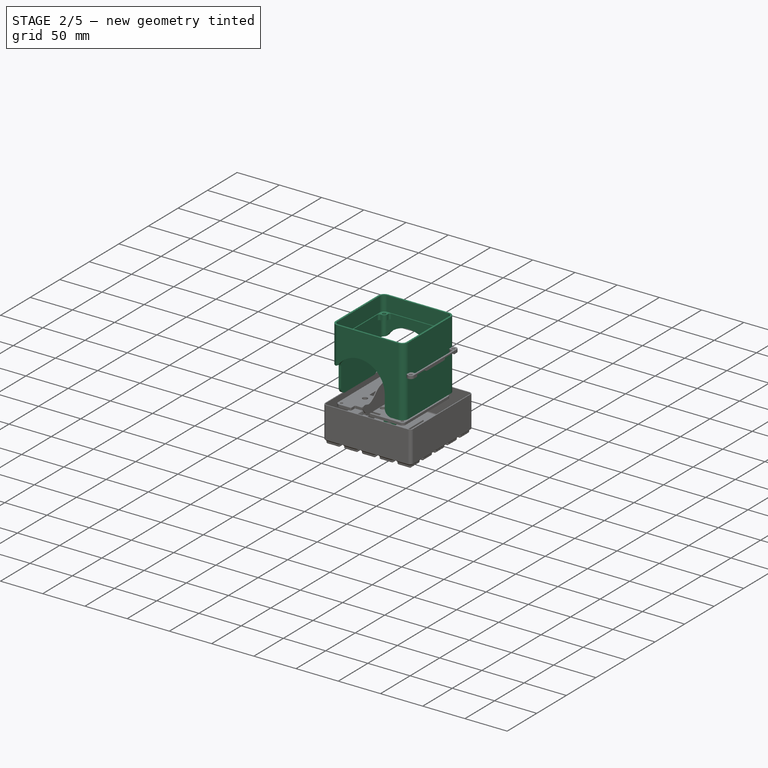
[diagram: stage 2 of 5 — iso view after this stage's code; geometry added in this stage tinted green]
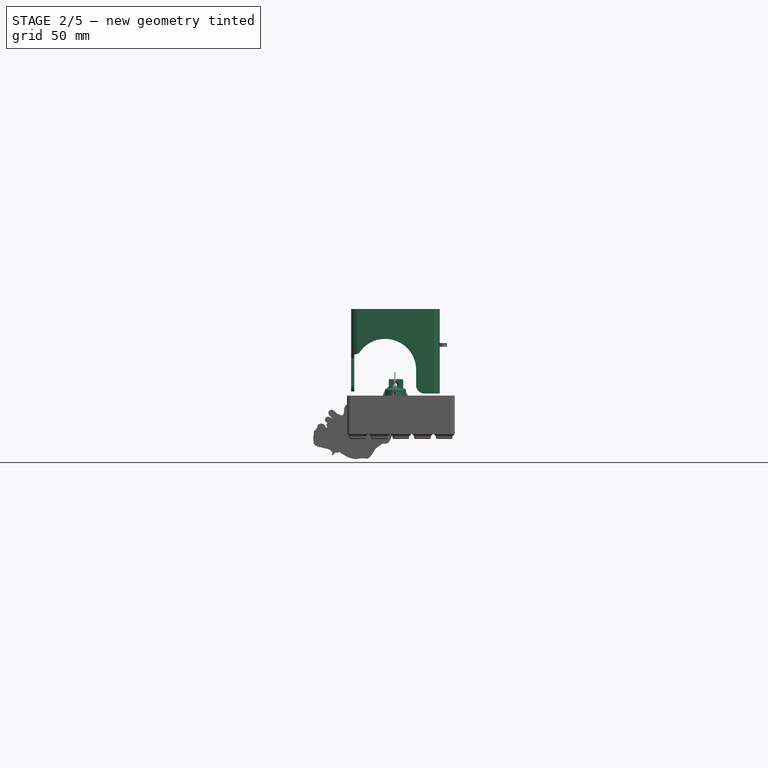
[diagram: stage 2 of 5 — front view after this stage's code; geometry added in this stage tinted green]
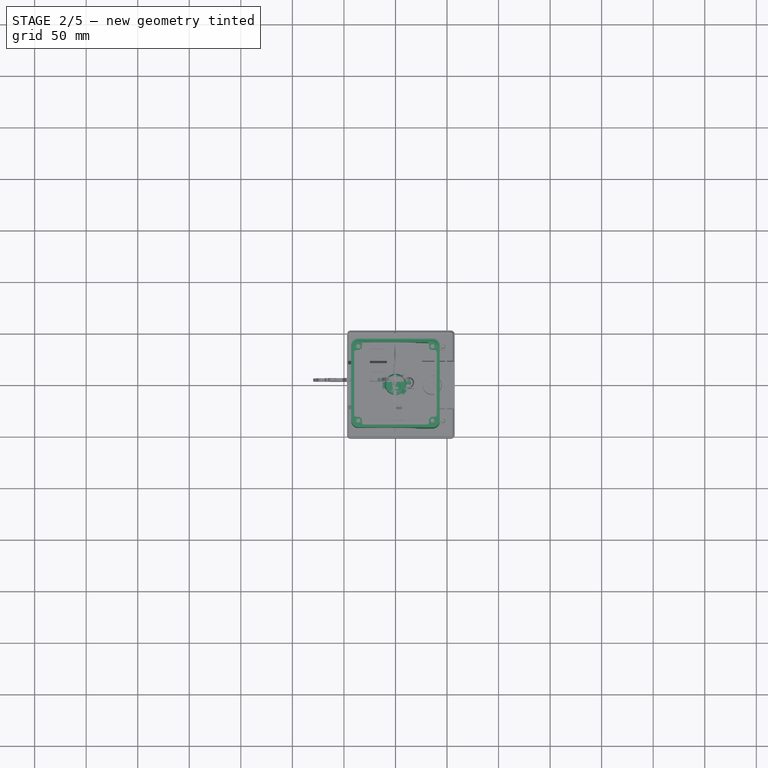
[diagram: stage 2 of 5 — top view after this stage's code; geometry added in this stage tinted green]
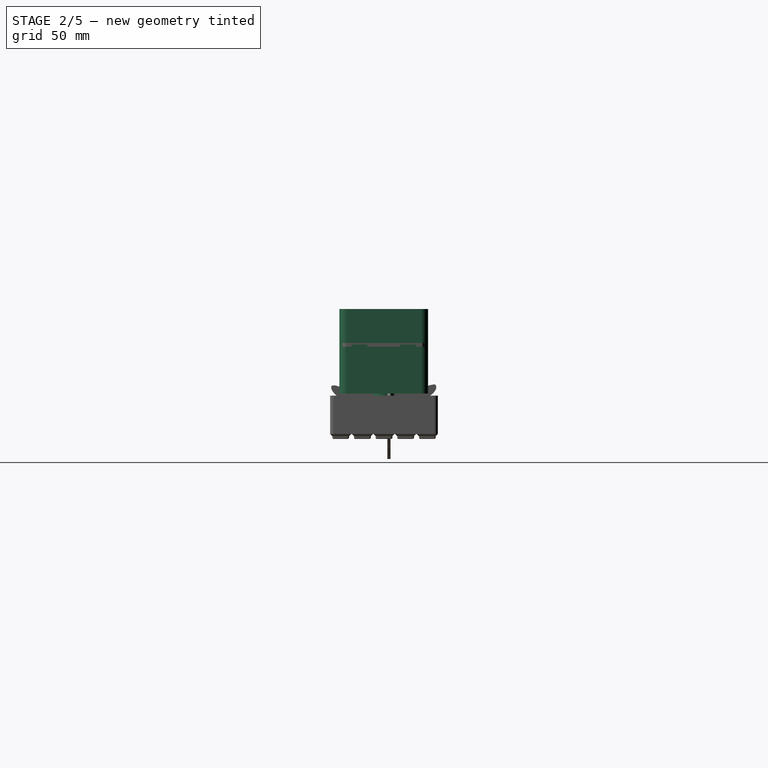
[diagram: stage 2 of 5 — right view after this stage's code; geometry added in this stage tinted green]
FEATURE [PartDesign::Body] Body030  label="FakePCB"
  AutoGroupSolids = false
  ClaimAllChildren = false
  ExportMode = 0
  FixShape = 1
  Group = -> [Sketch109,Pad,Fillet059,Sketch110,Pocket055]
  InvalidShape = false
  Origin = -> Origin044
  SingleSolid = true
  Tip = -> Pocket055
  TreeRank = 1026
  ValidateShape = false
  _ExportChildren = -> [Pad,Fillet059,Pocket055]
  _GroupVersion = 1
FEATURE [App::Link] Link001  label="mg90s-Droit"
  AttacherType = Attacher::AttachEngine3D
  AutoLinkLabel = true
  AutoPlacement = true
  LinkPlacement = pos=(33.9,6.8,27) rot=(-1,0,0;1.5708rad)
  LinkedObject = -> Solid002
  Placement = pos=(33.9,6.8,27) rot=(-1,0,0;1.5708rad)
  SyncGroupVisibility = false
  TreeRank = 1032
  _LinkVersion = 1
FEATURE [Sketcher::SketchObject] Sketch111
  ArcFitTolerance = 1e-06
  AttachmentSupport = -> [XZ_Plane038]
  ExternalBSplineMaxDegree = 5
  ExternalBSplineTolerance = 0.0001
  FixShape = 1
  FullyConstrained = true
  InternalTolerance = 1e-06
  InvalidShape = false
  MakeInternals = false
  MapMode = 5
  Placement = pos=(0,0,0) rot=(1,0,0;1.5708rad)
  Support = -> [XZ_Plane038]
  TreeRank = 1043
  ValidateShape = false
  sketch-geometry (39):
    g0: LineSegment StartX=-30 StartY=21 StartZ=0 EndX=6.2 EndY=21 EndZ=0
    g1: LineSegment StartX=6.2 StartY=21 StartZ=0 EndX=18.2 EndY=33 EndZ=0
    g2: LineSegment StartX=18.2 StartY=33 StartZ=0 EndX=22.85 EndY=33 EndZ=0
    g3: LineSegment StartX=22.85 StartY=33 StartZ=0 EndX=22.85 EndY=21 EndZ=0
    g4: LineSegment StartX=22.85 StartY=21 StartZ=0 EndX=45.35 EndY=21 EndZ=0
    g5: LineSegment StartX=45.35 StartY=21 StartZ=0 EndX=45.35 EndY=33 EndZ=0
    g6: LineSegment StartX=45.35 StartY=33 StartZ=0 EndX=50 EndY=33 EndZ=0
    g7: LineSegment [constr] StartX=50 StartY=33 StartZ=0 EndX=50 EndY=-21 EndZ=0
    g8: LineSegment [constr] StartX=50 StartY=-21 StartZ=0 EndX=-30 EndY=-21 EndZ=0
    g9: LineSegment StartX=-30 StartY=-21 StartZ=0 EndX=-30 EndY=21 EndZ=0
    g10: LineSegment StartX=50 StartY=33 StartZ=0 EndX=50 EndY=17 EndZ=0
    g11: LineSegment StartX=50 StartY=17 StartZ=0 EndX=30 EndY=17 EndZ=0
    g12: LineSegment StartX=30 StartY=17 StartZ=0 EndX=30 EndY=-21 EndZ=0
    g13: LineSegment StartX=30 StartY=-21 StartZ=0 EndX=-30 EndY=-21 EndZ=0
    g14: LineSegment [constr] StartX=-15.5 StartY=-15.5 StartZ=0 EndX=-15.5 EndY=15.5 EndZ=0
    g15: LineSegment [constr] StartX=-15.5 StartY=15.5 StartZ=0 EndX=15.5 EndY=15.5 EndZ=0
    g16: LineSegment [constr] StartX=15.5 StartY=15.5 StartZ=0 EndX=15.5 EndY=-15.5 EndZ=0
    g17: LineSegment [constr] StartX=15.5 StartY=-15.5 StartZ=0 EndX=-15.5 EndY=-15.5 EndZ=0
    g18: GeomPoint [constr] X=0 Y=0 Z=0
    g19: LineSegment [constr] StartX=-21 StartY=21 StartZ=0 EndX=-21 EndY=-21 EndZ=0
    g20: LineSegment [constr] StartX=-25.5 StartY=-15.5 StartZ=0 EndX=-25.5 EndY=15.5 EndZ=0
    g21: LineSegment [constr] StartX=-25.5 StartY=15.5 StartZ=0 EndX=25.5 EndY=15.5 EndZ=0
    g22: LineSegment [constr] StartX=25.5 StartY=15.5 StartZ=0 EndX=25.5 EndY=-15.5 EndZ=0
    g23: LineSegment [constr] StartX=25.5 StartY=-15.5 StartZ=0 EndX=-25.5 EndY=-15.5 EndZ=0
    g24: GeomPoint [constr] X=0 Y=0 Z=0
    g25: Circle CenterX=-25.5 CenterY=15.5 CenterZ=0 NormalX=0 NormalY=0 NormalZ=1 AngleXU=0 Radius=1.6
    g26: Circle CenterX=-25.5 CenterY=-15.5 CenterZ=0 NormalX=0 NormalY=0 NormalZ=1 AngleXU=0 Radius=1.6
    g27: Circle CenterX=-15.5 CenterY=-15.5 CenterZ=0 NormalX=0 NormalY=0 NormalZ=1 AngleXU=0 Radius=1.6
    g28: Circle CenterX=15.5 CenterY=-15.5 CenterZ=0 NormalX=0 NormalY=0 NormalZ=1 AngleXU=0 Radius=1.6
    g29: Circle CenterX=25.5 CenterY=-15.5 CenterZ=0 NormalX=0 NormalY=0 NormalZ=1 AngleXU=0 Radius=1.6
    g30: Circle CenterX=25.5 CenterY=15.5 CenterZ=0 NormalX=0 NormalY=0 NormalZ=1 AngleXU=0 Radius=1.6
    g31: Circle CenterX=15.5 CenterY=15.5 CenterZ=0 NormalX=0 NormalY=0 NormalZ=1 AngleXU=0 Radius=1.6
    g32: Circle CenterX=-15.5 CenterY=15.5 CenterZ=0 NormalX=0 NormalY=0 NormalZ=1 AngleXU=0 Radius=1.6
    g33: LineSegment [constr] StartX=-25.5 StartY=15.5 StartZ=0 EndX=-25.5 EndY=21 EndZ=0
    g34: Circle CenterX=20.25 CenterY=27 CenterZ=0 NormalX=0 NormalY=0 NormalZ=1 AngleXU=0 Radius=1.5
    g35: Circle CenterX=47.95 CenterY=27 CenterZ=0 NormalX=0 NormalY=0 NormalZ=1 AngleXU=0 Radius=1.5
    g36: LineSegment [constr] StartX=20.25 StartY=27 StartZ=0 EndX=47.95 EndY=27 EndZ=0
    g37: GeomPoint [constr] X=34.1 Y=27 Z=0
    g38: Circle CenterX=0 CenterY=0 CenterZ=0 NormalX=0 NormalY=0 NormalZ=1 AngleXU=0 Radius=11
  constraints (89):
    c: Horizontal(g0)
    c: Coincident(g0,g1)
    c: Coincident(g1,g2)
    c: Horizontal(g2)
    c: Coincident(g2,g3)
    c: Vertical(g3)
    c: Coincident(g3,g4)
    c: Horizontal(g4)
    c: Coincident(g4,g5)
    c: Vertical(g5)
    c: Coincident(g5,g6)
    c: Horizontal(g6)
    c: Coincident(g6,g7)
    c: Vertical(g7)
    c: Coincident(g7,g8)
    c: Horizontal(g8)
    c: Coincident(g8,g9)
    c: Coincident(g9,g0)
    c: Vertical(g9)
    c: Coincident(g6,g10)
    c: PointOnObject(g10,g7)
    c: Coincident(g10,g11)
    c: Horizontal(g11)
    c: Coincident(g11,g12)
    c: Vertical(g12)
    c: Coincident(g12,g13)
    c: Coincident(g13,g9)
    c: Coincident(g14,g15)
    c: Coincident(g15,g16)
    c: Coincident(g16,g17)
    c: Coincident(g17,g14)
    c: Horizontal(g15)
    c: Horizontal(g17)
    c: Vertical(g14)
    c: Vertical(g16)
    c: Symmetric(g15,g14,g18)
    c: Coincident(g18,g-1)
    c: Equal(g16,g15)
    c: DistanceY(g16,g16) = 31
    c: PointOnObject(g19,g0)
    c: PointOnObject(g19,g13)
    c: DistanceX(g19,g18) = 21
    c: DistanceY(g9,g9) = 42
    c: Symmetric(g19,g19,g-1)
    c: DistanceX(g0,g19) = 9
    c: Coincident(g20,g21)
    c: Coincident(g21,g22)
    c: Coincident(g22,g23)
    c: Coincident(g23,g20)
    c: Horizontal(g21)
    c: Horizontal(g23)
    c: Vertical(g20)
    c: Vertical(g22)
    c: Symmetric(g21,g20,g24)
    c: Coincident(g24,g18)
    c: Coincident(g25,g20)
    c: Coincident(g26,g20)
    c: Coincident(g27,g14)
    c: Coincident(g28,g16)
    c: Coincident(g29,g22)
    c: Coincident(g30,g21)
    c: Coincident(g31,g15)
    c: Coincident(g32,g14)
    c: Equal(g32, g25-g31) x7
    c: Diameter(g32) = 3.2
    c: DistanceY(g20,g20) = 31
    c: Symmetric(g12,g9,g-2)
    c: DistanceX(g4,g4) = 22.5
    c: PointOnObject(g2,g6)
    c: DistanceX(g9,g7) = 80
    c: Coincident(g33,g25)
    c: Vertical(g33)
    c: Symmetric(g0,g19,g33)
    c: DistanceY(g5,g5) = 12
    c: PointOnObject(g3,g0)
    c: DistanceX(g1,g6) = 31.8
    c: Equal(g2,g6)
    c: Angle(g1,g0) = 2.35619
    c: Equal(g34,g35)
    c: Diameter(g34) = 3
    c: Coincident(g36,g34)
    c: Coincident(g36,g35)
    c: Horizontal(g36)
    c: Symmetric(g34,g35,g37)
    c: Symmetric(g3,g5,g37)
    c: DistanceX(g36,g36) = 27.7
    c: DistanceY(g12,g12) = 38
    c: Coincident(g38,g18)
    c: Diameter(g38) = 22
FEATURE [PartDesign::Pad] Pad045
  AddSubType = 0
  AlongSketchNormal = false
  AutoTaperInnerAngle = true
  CheckUpToFaceLimits = true
  ClaimChildren = false
  Direction = (0,-1,-2e-16)
  Fit = 0
  FitJoin = 0
  FixShape = 1
  InnerFit = 0
  InnerFitJoin = 0
  InvalidShape = false
  Length = 3
  Length2 = 10
  Linearize = true
  NewSolid = false
  Profile = -> Sketch111
  ReferenceAxis = -> Sketch111 [N_Axis]
  Refine = true
  Suppress = false
  TaperInnerAngle = 0
  TaperInnerAngleRev = 0
  TreeRank = 1068
  Type = 0
  ValidateShape = true
  _ProfileBasedVersion = 1
FEATURE [Sketcher::SketchObject] Sketch131
  ArcFitTolerance = 1e-06
  AttachmentSupport = -> [XY_Plane046]
  ExternalBSplineMaxDegree = 5
  ExternalBSplineTolerance = 0.0001
  FullyConstrained = true
  InternalTolerance = 1e-06
  InvalidShape = false
  MakeInternals = true
  MapMode = 5
  Support = -> [XY_Plane046]
  TreeRank = 1250
  ValidateShape = false
  sketch-geometry (10):
    g0: LineSegment StartX=-40 StartY=-40 StartZ=0 EndX=-40 EndY=40 EndZ=0
    g1: LineSegment StartX=-40 StartY=40 StartZ=0 EndX=40 EndY=40 EndZ=0
    g2: LineSegment StartX=40 StartY=40 StartZ=0 EndX=40 EndY=-40 EndZ=0
    g3: LineSegment StartX=40 StartY=-40 StartZ=0 EndX=-40 EndY=-40 EndZ=0
    g4: GeomPoint [constr] X=0 Y=-1e-16 Z=0
    g5: LineSegment StartX=-43 StartY=-43 StartZ=0 EndX=-43 EndY=43 EndZ=0
    g6: LineSegment StartX=-43 StartY=43 StartZ=0 EndX=43 EndY=43 EndZ=0
    g7: LineSegment StartX=43 StartY=43 StartZ=0 EndX=43 EndY=-43 EndZ=0
    g8: LineSegment StartX=43 StartY=-43 StartZ=0 EndX=-43 EndY=-43 EndZ=0
    g9: GeomPoint [constr] X=0 Y=-1e-16 Z=0
  constraints (24):
    c: Coincident(g0,g1)
    c: Coincident(g1,g2)
    c: Coincident(g2,g3)
    c: Coincident(g3,g0)
    c: Horizontal(g1)
    c: Horizontal(g3)
    c: Vertical(g0)
    c: Vertical(g2)
    c: Symmetric(g1,g0,g4)
    c: Coincident(g4,g-1)
    c: Equal(g1,g2)
    c: DistanceX(g1,g1) = 80
    c: Coincident(g5,g6)
    c: Coincident(g6,g7)
    c: Coincident(g7,g8)
    c: Coincident(g8,g5)
    c: Horizontal(g6)
    c: Horizontal(g8)
    c: Vertical(g5)
    c: Vertical(g7)
    c: Symmetric(g6,g5,g9)
    c: Coincident(g9,g4)
    c: Equal(g7,g6)
    c: DistanceX(g6,g6) = 86
FEATURE [PartDesign::Pad] Pad055
  AddSubType = 0
  AlongSketchNormal = false
  AutoTaperInnerAngle = true
  CheckUpToFaceLimits = true
  ClaimChildren = false
  Direction = (0,0,1)
  Fit = 0
  FitJoin = 0
  InnerFit = 0
  InnerFitJoin = 0
  InvalidShape = false
  Length = 89
  Length2 = 10
  Linearize = true
  NewSolid = false
  Profile = -> Sketch131
  ReferenceAxis = -> Sketch131 [N_Axis]
  Refine = true
  Suppress = false
  TaperInnerAngle = 0
  TaperInnerAngleRev = 0
  TreeRank = 1251
  Type = 0
  ValidateShape = true
  _ProfileBasedVersion = 1
FEATURE [PartDesign::Fillet] Fillet062
  AddSubType = 0
  Base = -> Pad055 [Edge17,Edge14,Edge13,Edge20]
  BaseFeature = -> Pad055
  InvalidShape = false
  NewSolid = false
  Radius = 4
  Refine = true
  SupportTransform = false
  Suppress = false
  TreeRank = 1252
  UseAllEdges = false
  ValidateShape = true
FEATURE [PartDesign::Fillet] Fillet063
  AddSubType = 0
  Base = -> Fillet062 [Edge34,Edge35,Edge36,Edge33]
  BaseFeature = -> Fillet062
  InvalidShape = false
  NewSolid = false
  Radius = 7
  Refine = true
  SupportTransform = false
  Suppress = false
  TreeRank = 1253
  UseAllEdges = false
  ValidateShape = true
FEATURE [Sketcher::SketchObject] Sketch132
  ArcFitTolerance = 1e-06
  AttachmentSupport = -> [Fillet063]
  ExternalBSplineMaxDegree = 5
  ExternalBSplineTolerance = 0.0001
  ExternalGeometry = -> [Fillet063]
  FullyConstrained = true
  InternalTolerance = 1e-06
  InvalidShape = false
  MakeInternals = true
  MapMode = 5
  Placement = pos=(0,0,89) rot=(0,0,1;0rad)
  Support = -> [Fillet063]
  TreeRank = 1254
  ValidateShape = false
  sketch-geometry (6):
    g0: ArcOfCircle CenterX=-36 CenterY=36 CenterZ=0 NormalX=0 NormalY=0 NormalZ=1 AngleXU=0 Radius=3.5 StartAngle=4.71239 EndAngle=6.28319
    g1: LineSegment StartX=-36 StartY=43 StartZ=0 EndX=-32.5 EndY=43 EndZ=0
    g2: LineSegment StartX=-32.5 StartY=36 StartZ=0 EndX=-32.5 EndY=43 EndZ=0
    g3: LineSegment StartX=-36 StartY=32.5 StartZ=0 EndX=-43 EndY=32.5 EndZ=0
    g4: LineSegment StartX=-43 StartY=32.5 StartZ=0 EndX=-43 EndY=36 EndZ=0
    g5: Circle CenterX=-36 CenterY=36 CenterZ=0 NormalX=0 NormalY=0 NormalZ=1 AngleXU=0 Radius=2.1
  constraints (14):
    c: Coincident(g0,g-3)
    c: Coincident(g1,g-3)
    c: Horizontal(g1)
    c: Coincident(g2,g1)
    c: Vertical(g2)
    c: Horizontal(g3)
    c: Coincident(g4,g3)
    c: Coincident(g4,g-3)
    c: Vertical(g4)
    c: Radius(g0) = 3.5
    c: Tangent(g2,g0) = -1.5708
    c: Tangent(g3,g0) = 1.5708
    c: Coincident(g5,g0)
    c: Diameter(g5) = 4.2
FEATURE [PartDesign::Pad] Pad056
  AddSubType = 0
  AlongSketchNormal = false
  AutoTaperInnerAngle = true
  BaseFeature = -> Fillet063
  CheckUpToFaceLimits = true
  ClaimChildren = false
  Direction = (0,0,1)
  Fit = 0
  FitJoin = 0
  InnerFit = 0
  InnerFitJoin = 0
  InvalidShape = false
  Length = 24
  Length2 = 10
  Linearize = true
  NewSolid = false
  Profile = -> Sketch132
  ReferenceAxis = -> Sketch132 [N_Axis]
  Refine = true
  Reversed = true
  Suppress = false
  TaperInnerAngle = 0
  TaperInnerAngleRev = 0
  TreeRank = 1255
  Type = 0
  ValidateShape = true
  _ProfileBasedVersion = 1
FEATURE [PartDesign::PolarPattern] PolarPattern
  AddSubType = 0
  Angle = 360
  Axis = -> Sketch132 [N_Axis]
  BaseFeature = -> Pad056
  CopyShape = false
  InvalidShape = false
  NewSolid = false
  Occurrences = 4
  OriginalSubs = -> [Pad056]
  Originals = -> [Pad056]
  ParallelTransform = true
  Refine = true
  SubTransform = true
  Suppress = false
  TreeRank = 1256
  ValidateShape = true
  _Version = 4
FEATURE [Sketcher::SketchObject] Sketch133
  ArcFitTolerance = 1e-06
  AttachmentSupport = -> [PolarPattern]
  ExternalBSplineMaxDegree = 5
  ExternalBSplineTolerance = 0.0001
  FullyConstrained = true
  InternalTolerance = 1e-06
  InvalidShape = false
  MakeInternals = true
  MapMode = 5
  Placement = pos=(0,0,89) rot=(0,0,1;0rad)
  Support = -> [PolarPattern]
  TreeRank = 1257
  ValidateShape = false
  sketch-geometry (10):
    g0: ArcOfCircle CenterX=-36 CenterY=36 CenterZ=0 NormalX=0 NormalY=0 NormalZ=1 AngleXU=0 Radius=5 StartAngle=1.5708 EndAngle=3.14159
    g1: LineSegment StartX=-36 StartY=41 StartZ=0 EndX=36 EndY=41 EndZ=0
    g2: ArcOfCircle CenterX=36 CenterY=36 CenterZ=0 NormalX=0 NormalY=0 NormalZ=1 AngleXU=0 Radius=5 StartAngle=7e-16 EndAngle=1.5708
    g3: LineSegment StartX=41 StartY=36 StartZ=0 EndX=41 EndY=-36 EndZ=0
    g4: ArcOfCircle CenterX=36 CenterY=-36 CenterZ=0 NormalX=0 NormalY=0 NormalZ=1 AngleXU=0 Radius=5 StartAngle=4.71239 EndAngle=6.28319
    g5: LineSegment StartX=36 StartY=-41 StartZ=0 EndX=-36 EndY=-41 EndZ=0
    g6: ArcOfCircle CenterX=-36 CenterY=-36 CenterZ=0 NormalX=0 NormalY=0 NormalZ=1 AngleXU=0 Radius=5 StartAngle=3.14159 EndAngle=4.71239
    g7: LineSegment StartX=-41 StartY=-36 StartZ=0 EndX=-41 EndY=36 EndZ=0
    g8: GeomPoint [constr] X=-41 Y=41 Z=0
    g9: GeomPoint [constr] X=41 Y=-41 Z=0
  constraints (22):
    c: Tangent(g0,g1) = 1.5708
    c: Tangent(g1,g2) = 1.5708
    c: Tangent(g2,g3) = 1.5708
    c: Tangent(g3,g4) = 1.5708
    c: Tangent(g4,g5) = 1.5708
    c: Tangent(g5,g6) = 1.5708
    c: Tangent(g6,g7) = 1.5708
    c: Tangent(g7,g0) = 1.5708
    c: Horizontal(g1)
    c: Horizontal(g5)
    c: Vertical(g7)
    c: Equal(g2,g4)
    c: Equal(g4,g6)
    c: PointOnObject(g8,g1)
    c: PointOnObject(g8,g7)
    c: PointOnObject(g9,g3)
    c: PointOnObject(g9,g5)
    c: Equal(g3,g1)
    c: Symmetric(g2,g3,g-1)
    c: Symmetric(g0,g2,g-2)
    c: Radius(g2) = 5
    c: DistanceY(g4,g1) = 82
FEATURE [PartDesign::Pocket] Pocket065
  AddSubType = 1
  AlongSketchNormal = false
  AutoTaperInnerAngle = true
  BaseFeature = -> PolarPattern
  CheckUpToFaceLimits = true
  ClaimChildren = false
  Direction = (0,0,-1)
  Fit = 0
  FitJoin = 0
  InnerFit = 0
  InnerFitJoin = 0
  InvalidShape = false
  Length = 17.8
  Length2 = 10
  Linearize = true
  NewSolid = false
  Profile = -> Sketch133
  ReferenceAxis = -> Sketch133 [N_Axis]
  Refine = true
  Suppress = false
  TaperInnerAngle = 0
  TaperInnerAngleRev = 0
  TreeRank = 1258
  Type = 0
  ValidateShape = true
  _ProfileBasedVersion = 1
  _Version = 1
FEATURE [PartDesign::Fillet] Fillet064
  AddSubType = 0
  Base = -> Pocket065 [Edge63,Edge52,Edge61,Edge47,Edge37,Edge45,Edge54,Edge35]
  BaseFeature = -> Pocket065
  InvalidShape = false
  NewSolid = false
  Radius = 2
  Refine = true
  SupportTransform = false
  Suppress = false
  TreeRank = 1259
  UseAllEdges = false
  ValidateShape = true
FEATURE [Sketcher::SketchObject] Sketch134
  ArcFitTolerance = 1e-06
  AttachmentOffset = pos=(0,0,43) rot=(0,0,1;0rad)
  AttachmentSupport = -> [XZ_Plane046]
  ExternalBSplineMaxDegree = 5
  ExternalBSplineTolerance = 0.0001
  FullyConstrained = true
  InternalTolerance = 1e-06
  InvalidShape = false
  MakeInternals = true
  MapMode = 5
  Placement = pos=(0,-43,9.5e-15) rot=(1,0,0;1.5708rad)
  Support = -> [XZ_Plane046]
  TreeRank = 1260
  ValidateShape = false
  sketch-geometry (9):
    g0: ArcOfCircle [constr] CenterX=-10 CenterY=30 CenterZ=0 NormalX=0 NormalY=0 NormalZ=1 AngleXU=0 Radius=30 StartAngle=6.28319 EndAngle=9.42478
    g1: LineSegment [constr] StartX=-40 StartY=30 StartZ=0 EndX=20 EndY=30 EndZ=0
    g2: LineSegment StartX=20 StartY=30 StartZ=0 EndX=20 EndY=0 EndZ=0
    g3: LineSegment [constr] StartX=20 StartY=0 StartZ=0 EndX=-40 EndY=0 EndZ=0
    g4: LineSegment [constr] StartX=-40 StartY=0 StartZ=0 EndX=-40 EndY=30 EndZ=0
    g5: LineSegment StartX=-36 StartY=44.9666 StartZ=0 EndX=-44 EndY=44.9666 EndZ=0
    g6: LineSegment StartX=-44 StartY=44.9666 StartZ=0 EndX=-44 EndY=0 EndZ=0
    g7: ArcOfCircle CenterX=-10 CenterY=30 CenterZ=0 NormalX=0 NormalY=0 NormalZ=1 AngleXU=0 Radius=30 StartAngle=6.28319 EndAngle=8.90246
    g8: LineSegment StartX=-44 StartY=0 StartZ=0 EndX=20 EndY=0 EndZ=0
  constraints (26):
    c: Coincident(g1,g2)
    c: Coincident(g2,g3)
    c: Coincident(g3,g4)
    c: Coincident(g4,g1)
    c: Horizontal(g1)
    c: Horizontal(g3)
    c: Vertical(g2)
    c: Vertical(g4)
    c: Coincident(g1,g0)
    c: PointOnObject(g2,g-1)
    c: Coincident(g1,g0)
    c: Tangent(g0,g2)
    c: DistanceX(g0,g-1) = 10
    c: DistanceY(g-1,g0) = 30
    c: Radius(g0) = 30
    c: Horizontal(g5)
    c: Coincident(g6,g5)
    c: PointOnObject(g6,g-1)
    c: Vertical(g6)
    c: Coincident(g7,g0)
    c: Coincident(g7,g2)
    c: Coincident(g7,g5)
    c: DistanceX(g5,g5) = 8
    c: DistanceX(g5,g-1) = 36
    c: Coincident(g8,g6)
    c: Coincident(g8,g2)
FEATURE [PartDesign::Pocket] Pocket066
  AddSubType = 1
  AlongSketchNormal = false
  AutoTaperInnerAngle = true
  BaseFeature = -> Fillet064
  CheckUpToFaceLimits = true
  ClaimChildren = false
  Direction = (0,1,0)
  Fit = 0
  FitJoin = 0
  InnerFit = 0
  InnerFitJoin = 0
  InvalidShape = false
  Length = 12
  Length2 = 10
  Linearize = true
  NewSolid = false
  Profile = -> Sketch134
  ReferenceAxis = -> Sketch134 [N_Axis]
  Refine = true
  Suppress = false
  TaperInnerAngle = 0
  TaperInnerAngleRev = 0
  TreeRank = 1261
  Type = 0
  ValidateShape = true
  _ProfileBasedVersion = 1
  _Version = 1
FEATURE [PartDesign::Mirrored] Mirrored006
  AddSubType = 0
  BaseFeature = -> Pocket066
  CopyShape = false
  InvalidShape = false
  MirrorPlane = -> XZ_Plane046
  NewSolid = false
  OriginalSubs = -> [Pocket066]
  Originals = -> [Pocket066]
  ParallelTransform = true
  Refine = true
  SubTransform = true
  Suppress = false
  TreeRank = 1262
  ValidateShape = true
  _Version = 4
FEATURE [PartDesign::Pocket] Pocket067
  AddSubType = 1
  AlongSketchNormal = false
  AutoTaperInnerAngle = true
  BaseFeature = -> Mirrored006
  CheckUpToFaceLimits = true
  ClaimChildren = false
  Direction = (0,0,1)
  Fit = 0
  FitJoin = 0
  InnerFit = 0
  InnerFitJoin = 0
  InvalidShape = false
  Length = 9
  Length2 = 10
  Linearize = true
  NewSolid = false
  Profile = -> Mirrored006 [Face7]
  Refine = true
  Suppress = false
  TaperInnerAngle = 0
  TaperInnerAngleRev = 0
  TreeRank = 1263
  Type = 0
  ValidateShape = true
  _ProfileBasedVersion = 1
  _Version = 1
FEATURE [PartDesign::Fillet] Fillet065
  AddSubType = 0
  Base = -> Pocket067 [Edge35,Edge33]
  BaseFeature = -> Pocket067
  InvalidShape = false
  NewSolid = false
  Radius = 7
  Refine = true
  SupportTransform = false
  Suppress = false
  TreeRank = 1264
  UseAllEdges = false
  ValidateShape = true
FEATURE [PartDesign::Pocket] Pocket068
  AddSubType = 1
  AlongSketchNormal = false
  AutoTaperInnerAngle = true
  BaseFeature = -> Fillet065
  CheckUpToFaceLimits = true
  ClaimChildren = false
  Direction = (0,0,1)
  Fit = 0
  FitJoin = 0
  InnerFit = 0
  InnerFitJoin = 0
  InvalidShape = false
  Length = 7
  Length2 = 10
  Linearize = true
  NewSolid = false
  Profile = -> Fillet065 [Face59]
  Refine = true
  Suppress = false
  TaperInnerAngle = 0
  TaperInnerAngleRev = 0
  TreeRank = 1265
  Type = 0
  ValidateShape = true
  _ProfileBasedVersion = 1
  _Version = 1
FEATURE [PartDesign::Fillet] Fillet066
  AddSubType = 0
  Base = -> Pocket068 [Edge191,Edge183]
  BaseFeature = -> Pocket068
  InvalidShape = false
  NewSolid = false
  Radius = 8
  Refine = true
  SupportTransform = false
  Suppress = false
  TreeRank = 1266
  UseAllEdges = false
  ValidateShape = true
FEATURE [Sketcher::SketchObject] Sketch135
  ArcFitTolerance = 1e-06
  AttachmentSupport = -> [XY_Plane046]
  ExternalBSplineMaxDegree = 5
  ExternalBSplineTolerance = 0.0001
  ExternalGeometry = -> [Fillet066]
  FullyConstrained = true
  InternalTolerance = 1e-06
  InvalidShape = false
  MakeInternals = true
  MapMode = 5
  Support = -> [XY_Plane046]
  TreeRank = 1275
  ValidateShape = false
  sketch-geometry (4):
    g0: LineSegment StartX=40 StartY=-30 StartZ=0 EndX=41 EndY=-30 EndZ=0
    g1: LineSegment StartX=41 StartY=-30 StartZ=0 EndX=41 EndY=30 EndZ=0
    g2: LineSegment StartX=41 StartY=30 StartZ=0 EndX=40 EndY=30 EndZ=0
    g3: LineSegment StartX=40 StartY=30 StartZ=0 EndX=40 EndY=-30 EndZ=0
  constraints (11):
    c: Coincident(g0,g1)
    c: Coincident(g1,g2)
    c: Coincident(g2,g3)
    c: Coincident(g3,g0)
    c: Horizontal(g0)
    c: Horizontal(g2)
    c: Vertical(g1)
    c: PointOnObject(g0,g-3)
    c: Symmetric(g2,g0,g-1)
    c: DistanceY(g3,g3) = 60
    c: DistanceX(g0,g0) = 1
FEATURE [PartDesign::Pocket] Pocket069
  AddSubType = 1
  AlongSketchNormal = false
  AutoTaperInnerAngle = true
  BaseFeature = -> Fillet066
  CheckUpToFaceLimits = true
  ClaimChildren = false
  Direction = (0,0,-1)
  Fit = 0
  FitJoin = 0
  InnerFit = 0
  InnerFitJoin = 0
  InvalidShape = false
  Length = 48
  Length2 = 10
  Linearize = true
  NewSolid = false
  Profile = -> Sketch135
  ReferenceAxis = -> Sketch135 [N_Axis]
  Refine = true
  Reversed = true
  Suppress = false
  TaperInnerAngle = 0
  TaperInnerAngleRev = 0
  TreeRank = 1276
  Type = 0
  ValidateShape = true
  _ProfileBasedVersion = 1
  _Version = 1
FEATURE [PartDesign::Fillet] Fillet067
  AddSubType = 0
  Base = -> Pocket069 [Edge119,Edge116]
  BaseFeature = -> Pocket069
  InvalidShape = false
  NewSolid = false
  Radius = 5
  Refine = true
  SupportTransform = false
  Suppress = false
  TreeRank = 1277
  UseAllEdges = false
  ValidateShape = true
FEATURE [PartDesign::Fillet] Fillet068
  AddSubType = 0
  Base = -> Fillet067 [Edge201,Edge210,Edge219,Edge197]
  BaseFeature = -> Fillet067
  InvalidShape = false
  NewSolid = false
  Radius = 6
  Refine = true
  SupportTransform = false
  Suppress = false
  TreeRank = 1278
  UseAllEdges = false
  ValidateShape = true
FEATURE [Sketcher::SketchObject] Sketch168
  ArcFitTolerance = 1e-06
  AttachmentSupport = -> [Pad068]
  ExternalBSplineMaxDegree = 5
  ExternalBSplineTolerance = 0.0001
  ExternalGeometry = -> [Pad068]
  FullyConstrained = true
  InternalTolerance = 1e-06
  InvalidShape = false
  MakeInternals = true
  MapMode = 5
  Placement = pos=(0,0,0) rot=(0,0.707107,0.707107;3.14159rad)
  Support = -> [Pad068]
  TreeRank = 1524
  ValidateShape = false
  sketch-geometry (4):
    g0: LineSegment StartX=0 StartY=5 StartZ=0 EndX=-15 EndY=5 EndZ=0
    g1: LineSegment StartX=-15 StartY=5 StartZ=0 EndX=-15 EndY=-11 EndZ=0
    g2: LineSegment StartX=-15 StartY=-11 StartZ=0 EndX=0 EndY=-11 EndZ=0
    g3: LineSegment StartX=0 StartY=-11 StartZ=0 EndX=0 EndY=5 EndZ=0
  constraints (11):
    c: Coincident(g0,g1)
    c: Coincident(g1,g2)
    c: Coincident(g2,g3)
    c: Coincident(g3,g0)
    c: Horizontal(g0)
    c: Horizontal(g2)
    c: Vertical(g1)
    c: Vertical(g3)
    c: PointOnObject(g0,g-2)
    c: Coincident(g1,g-3)
    c: DistanceY(g-1,g0) = 5
FEATURE [PartDesign::Pad] Pad069
  AddSubType = 0
  AlongSketchNormal = false
  AutoTaperInnerAngle = true
  BaseFeature = -> Pad068
  CheckUpToFaceLimits = true
  ClaimChildren = false
  Direction = (0,1,-2e-16)
  Fit = 0
  FitJoin = 0
  InnerFit = 0
  InnerFitJoin = 0
  InvalidShape = false
  Length = 3
  Length2 = 10
  Linearize = true
  NewSolid = false
  Profile = -> Sketch168
  ReferenceAxis = -> Sketch168 [N_Axis]
  Refine = true
  Suppress = false
  TaperInnerAngle = 0
  TaperInnerAngleRev = 0
  TreeRank = 1525
  Type = 0
  ValidateShape = true
  _ProfileBasedVersion = 1
FEATURE [PartDesign::Fillet] Fillet078
  AddSubType = 0
  Base = -> Pad069 [Edge11,Edge12]
  BaseFeature = -> Pad069
  InvalidShape = false
  NewSolid = false
  Radius = 2
  Refine = true
  SupportTransform = false
  Suppress = false
  TreeRank = 1526
  UseAllEdges = false
  ValidateShape = true
FEATURE [Sketcher::SketchObject] Sketch171
  ArcFitTolerance = 1e-06
  ExternalBSplineMaxDegree = 5
  ExternalBSplineTolerance = 0.0001
  FullyConstrained = true
  InternalTolerance = 1e-06
  InvalidShape = false
  MakeInternals = true
  MapMode = 2
  TreeRank = 1547
  ValidateShape = false
  sketch-geometry (1):
    g0: Circle CenterX=0 CenterY=0 CenterZ=0 NormalX=0 NormalY=0 NormalZ=1 AngleXU=0 Radius=10.25
  constraints (2):
    c: Coincident(g0,g-1)
    c: Diameter(g0) = 20.5
FEATURE [PartDesign::Pad] Pad070
  AddSubType = 0
  AlongSketchNormal = false
  AutoTaperInnerAngle = true
  CheckUpToFaceLimits = true
  ClaimChildren = false
  Direction = (0,0,1)
  Fit = 0
  FitJoin = 0
  InnerFit = 0
  InnerFitJoin = 0
  InvalidShape = false
  Length = 12
  Length2 = 10
  Linearize = true
  NewSolid = false
  Profile = -> Sketch171
  ReferenceAxis = -> Sketch171 [N_Axis]
  Refine = true
  Suppress = false
  TaperInnerAngle = 0
  TaperInnerAngleRev = 0
  TreeRank = 1548
  Type = 0
  ValidateShape = true
  _ProfileBasedVersion = 1
FEATURE [PartDesign::Fillet] Fillet079
  AddSubType = 0
  Base = -> Pad070 [Edge3]
  BaseFeature = -> Pad070
  InvalidShape = false
  NewSolid = false
  Radius = 2
  Refine = true
  SupportTransform = false
  Suppress = false
  TreeRank = 1549
  UseAllEdges = false
  ValidateShape = true
FEATURE [Sketcher::SketchObject] Sketch172
  ArcFitTolerance = 1e-06
  AttachmentSupport = -> [YZ_Plane056]
  ExternalBSplineMaxDegree = 5
  ExternalBSplineTolerance = 0.0001
  ExternalGeometry = -> [Fillet079]
  FullyConstrained = true
  InternalTolerance = 1e-06
  InvalidShape = false
  MakeInternals = true
  MapMode = 5
  Placement = pos=(0,0,0) rot=(0.57735,0.57735,0.57735;2.0944rad)
  Support = -> [YZ_Plane056]
  TreeRank = 1550
  ValidateShape = false
  sketch-geometry (5):
    g0: ArcOfCircle [constr] CenterX=0 CenterY=26.1421 CenterZ=0 NormalX=0 NormalY=0 NormalZ=1 AngleXU=0 Radius=15 StartAngle=4.37255 EndAngle=5.05223
    g1: LineSegment [constr] StartX=-5 StartY=12 StartZ=0 EndX=5 EndY=12 EndZ=0
    g2: LineSegment StartX=0 StartY=12 StartZ=0 EndX=0 EndY=11.1421 EndZ=0
    g3: LineSegment StartX=0 StartY=12 StartZ=0 EndX=-5 EndY=12 EndZ=0
    g4: ArcOfCircle CenterX=0 CenterY=26.1421 CenterZ=0 NormalX=0 NormalY=0 NormalZ=1 AngleXU=0 Radius=15 StartAngle=4.37255 EndAngle=4.71239
  constraints (15):
    c: PointOnObject(g0,g-2)
    c: Coincident(g1,g0)
    c: Coincident(g1,g0)
    c: Horizontal(g1)
    c: PointOnObject(g0,g-3)
    c: DistanceX(g1,g1) = 10
    c: Radius(g0) = 15
    c: PointOnObject(g2,g1)
    c: Vertical(g2)
    c: PointOnObject(g2,g-2)
    c: Coincident(g3,g2)
    c: Coincident(g3,g0)
    c: Coincident(g4,g0)
    c: Coincident(g4,g2)
    c: Coincident(g4,g3)
FEATURE [PartDesign::Groove] Groove
  AddSubType = 1
  Angle = 360
  Axis = (-2e-16,3e-16,1)
  Base = (0,0,0)
  BaseFeature = -> Fillet079
  ClaimChildren = false
  Fit = 0
  FitJoin = 0
  InnerFit = 0
  InnerFitJoin = 0
  InvalidShape = false
  Linearize = true
  NewSolid = false
  Profile = -> Sketch172
  ReferenceAxis = -> Sketch172 [V_Axis]
  Refine = true
  Reversed = true
  Suppress = false
  TreeRank = 1551
  ValidateShape = true
  _ProfileBasedVersion = 1
FEATURE [PartDesign::Fillet] Fillet080
  AddSubType = 0
  Base = -> Groove [Edge6]
  BaseFeature = -> Groove
  InvalidShape = false
  NewSolid = false
  Radius = 12
  Refine = true
  SupportTransform = false
  Suppress = false
  TreeRank = 1552
  UseAllEdges = false
  ValidateShape = true
FEATURE [Sketcher::SketchObject] Sketch178
  ArcFitTolerance = 1e-06
  AttachmentSupport = -> [XY_Plane059]
  ExternalBSplineMaxDegree = 5
  ExternalBSplineTolerance = 0.0001
  FixShape = 1
  FullyConstrained = true
  InternalTolerance = 1e-06
  InvalidShape = false
  MakeInternals = false
  MapMode = 5
  Support = -> [XY_Plane059]
  TreeRank = 1600
  ValidateShape = false
  sketch-geometry (6):
    g0: LineSegment StartX=-6.5 StartY=0 StartZ=0 EndX=4.5 EndY=0 EndZ=0
    g1: LineSegment StartX=4.5 StartY=0 StartZ=0 EndX=4.5 EndY=-5 EndZ=0
    g2: LineSegment StartX=4.5 StartY=-5 StartZ=0 EndX=7.5 EndY=-5 EndZ=0
    g3: LineSegment StartX=7.5 StartY=-5 StartZ=0 EndX=7.5 EndY=-7 EndZ=0
    g4: LineSegment StartX=7.5 StartY=-7 StartZ=0 EndX=-6.5 EndY=-7 EndZ=0
    g5: LineSegment StartX=-6.5 StartY=-7 StartZ=0 EndX=-6.5 EndY=0 EndZ=0
  constraints (18):
    c: PointOnObject(g0,g-1)
    c: Coincident(g0,g1)
    c: Vertical(g1)
    c: Coincident(g1,g2)
    c: Horizontal(g2)
    c: Coincident(g2,g3)
    c: Vertical(g3)
    c: Coincident(g3,g4)
    c: Horizontal(g4)
    c: Coincident(g4,g5)
    c: Coincident(g5,g0)
    c: Vertical(g5)
    c: DistanceX(g-1,g0) = 4.5
    c: DistanceY(g1,g1) = 5
    c: DistanceY(g3,g3) = 2
    c: DistanceX(g2,g2) = 3
    c: DistanceX(g0,g-1) = 6.5
    c: PointOnObject(g0,g-1)
FEATURE [PartDesign::Pad] Pad073
  AddSubType = 0
  AlongSketchNormal = false
  AutoTaperInnerAngle = true
  CheckUpToFaceLimits = true
  ClaimChildren = false
  Direction = (0,0,1)
  Fit = 0
  FitJoin = 0
  FixShape = 1
  InnerFit = 0
  InnerFitJoin = 0
  InvalidShape = false
  Length = 21
  Length2 = 21
  Linearize = true
  NewSolid = false
  Profile = -> Sketch178
  ReferenceAxis = -> Sketch178 [N_Axis]
  Refine = true
  Suppress = false
  TaperInnerAngle = 0
  TaperInnerAngleRev = 0
  TreeRank = 1601
  Type = 4
  ValidateShape = true
  _ProfileBasedVersion = 1
FEATURE [PartDesign::SubShapeBinder] Binder002  label="Binder002(Chamfer001)"
  BindCopyOnChange = 0
  BindMode = 0
  ClaimChildren = false
  Context = -> Part018 [Part013.Body048.Binder002.]
  EdgeTolerance = 1e-06
  FillStyle = 0
  FixShape = 1
  Fuse = false
  InvalidShape = false
  MakeFace = true
  MergeEdges = true
  OffsetFill = false
  OffsetIntersection = false
  OffsetJoinType = 0
  OffsetOpenResult = false
  Outline = false
  PartialLoad = false
  Relative = true
  SplitEdges = false
  Support = -> [Body031[Chamfer001.Face5]]
  TightBound = false
  TreeRank = 1602
  ValidateShape = false
  _Version = 8
FEATURE [Sketcher::SketchObject] Sketch179
  ArcFitTolerance = 1e-06
  AttachmentSupport = -> [XZ_Plane059]
  ExternalBSplineMaxDegree = 5
  ExternalBSplineTolerance = 0.0001
  ExternalGeometry = -> [Binder002]
  FixShape = 1
  FullyConstrained = true
  InternalTolerance = 1e-06
  InvalidShape = false
  MakeInternals = false
  MapMode = 5
  Placement = pos=(0,0,0) rot=(1,0,0;1.5708rad)
  Support = -> [XZ_Plane059]
  TreeRank = 1603
  ValidateShape = false
  sketch-geometry (2):
    g0: Circle CenterX=0 CenterY=15.5 CenterZ=0 NormalX=0 NormalY=0 NormalZ=1 AngleXU=0 Radius=1.6
    g1: Circle CenterX=0 CenterY=-15.5 CenterZ=0 NormalX=0 NormalY=0 NormalZ=1 AngleXU=0 Radius=1.6
  constraints (4):
    c: Coincident(g0,g-3)
    c: Coincident(g1,g-4)
    c: Equal(g1,g0)
    c: Diameter(g1) = 3.2
FEATURE [PartDesign::Pocket] Pocket094
  AddSubType = 1
  AlongSketchNormal = false
  AutoTaperInnerAngle = true
  BaseFeature = -> Pad073
  CheckUpToFaceLimits = true
  ClaimChildren = false
  Direction = (0,1,2e-16)
  Fit = 0
  FitJoin = 0
  FixShape = 1
  InnerFit = 0
  InnerFitJoin = 0
  InvalidShape = false
  Length = 20
  Length2 = 10
  Linearize = true
  NewSolid = false
  Profile = -> Sketch179
  ReferenceAxis = -> Sketch179 [N_Axis]
  Refine = true
  Reversed = true
  Suppress = false
  TaperInnerAngle = 0
  TaperInnerAngleRev = 0
  TreeRank = 1604
  Type = 0
  ValidateShape = true
  _ProfileBasedVersion = 1
  _Version = 1
FEATURE [PartDesign::Chamfer] Chamfer029
  AddSubType = 0
  Angle = 45
  Base = -> Pocket094 [Edge22,Edge20]
  BaseFeature = -> Pocket094
  ChamferType = 0
  FixShape = 1
  FlipDirection = false
  InvalidShape = false
  NewSolid = false
  Refine = true
  Size = 1.5
  Size2 = 1
  SupportTransform = false
  Suppress = false
  TreeRank = 1605
  UseAllEdges = false
  ValidateShape = true
FEATURE [Sketcher::SketchObject] Sketch180
  ArcFitTolerance = 1e-06
  AttachmentSupport = -> [Chamfer029]
  ExternalBSplineMaxDegree = 5
  ExternalBSplineTolerance = 0.0001
  FixShape = 1
  FullyConstrained = true
  InternalTolerance = 1e-06
  InvalidShape = false
  MakeInternals = false
  MapMode = 5
  Placement = pos=(4.5,0,0) rot=(0.57735,0.57735,0.57735;2.0944rad)
  Support = -> [Chamfer029]
  TreeRank = 1606
  ValidateShape = false
  sketch-geometry (4):
    g0: LineSegment StartX=0 StartY=1.19 StartZ=0 EndX=-4 EndY=1.19 EndZ=0
    g1: LineSegment StartX=-4 StartY=1.19 StartZ=0 EndX=-4 EndY=-5.81 EndZ=0
    g2: LineSegment StartX=-4 StartY=-5.81 StartZ=0 EndX=0 EndY=-5.81 EndZ=0
    g3: LineSegment StartX=0 StartY=-5.81 StartZ=0 EndX=0 EndY=1.19 EndZ=0
  constraints (12):
    c: Coincident(g0,g1)
    c: Coincident(g1,g2)
    c: Coincident(g2,g3)
    c: Coincident(g3,g0)
    c: Horizontal(g0)
    c: Horizontal(g2)
    c: Vertical(g1)
    c: Vertical(g3)
    c: PointOnObject(g0,g-2)
    c: DistanceX(g0,g0) = 4
    c: DistanceY(g1,g1) = 7
    c: DistanceY(g-1,g0) = 1.19
FEATURE [PartDesign::Pocket] Pocket095
  AddSubType = 1
  AlongSketchNormal = false
  AutoTaperInnerAngle = true
  BaseFeature = -> Chamfer029
  CheckUpToFaceLimits = true
  ClaimChildren = false
  Direction = (-1,0,0)
  Fit = 0
  FitJoin = 0
  FixShape = 1
  InnerFit = 0
  InnerFitJoin = 0
  InvalidShape = false
  Length = 10
  Length2 = 10
  Linearize = true
  NewSolid = false
  Profile = -> Sketch180
  ReferenceAxis = -> Sketch180 [N_Axis]
  Refine = true
  Suppress = false
  TaperInnerAngle = 0
  TaperInnerAngleRev = 0
  TreeRank = 1607
  Type = 0
  ValidateShape = true
  _ProfileBasedVersion = 1
  _Version = 1
FEATURE [Sketcher::SketchObject] Sketch181
  ArcFitTolerance = 1e-06
  AttachmentSupport = -> [Pocket095]
  ExternalBSplineMaxDegree = 5
  ExternalBSplineTolerance = 0.0001
  ExternalGeometry = -> [Pocket095]
  FixShape = 1
  FullyConstrained = true
  InternalTolerance = 1e-06
  InvalidShape = false
  MakeInternals = false
  MapMode = 5
  Placement = pos=(0,0,1.19) rot=(1,0,0;3.14159rad)
  Support = -> [Pocket095]
  TreeRank = 1608
  ValidateShape = false
  sketch-geometry (4):
    g0: LineSegment StartX=-5.5 StartY=0 StartZ=0 EndX=-2.5 EndY=0 EndZ=0
    g1: LineSegment StartX=-2.5 StartY=0 StartZ=0 EndX=-2.5 EndY=6 EndZ=0
    g2: LineSegment StartX=-2.5 StartY=6 StartZ=0 EndX=-5.5 EndY=6 EndZ=0
    g3: LineSegment StartX=-5.5 StartY=6 StartZ=0 EndX=-5.5 EndY=0 EndZ=0
  constraints (11):
    c: Coincident(g0,g1)
    c: Coincident(g1,g2)
    c: Coincident(g2,g3)
    c: Coincident(g3,g0)
    c: Horizontal(g0)
    c: Horizontal(g2)
    c: Vertical(g1)
    c: Coincident(g0,g-3)
    c: DistanceX(g2,g2) = 3
    c: PointOnObject(g-3,g3)
    c: DistanceY(g3,g3) = 6
FEATURE [PartDesign::Pocket] Pocket096
  AddSubType = 1
  AlongSketchNormal = false
  AutoTaperInnerAngle = true
  BaseFeature = -> Pocket095
  CheckUpToFaceLimits = true
  ClaimChildren = false
  Direction = (0,0,1)
  Fit = 0
  FitJoin = 0
  FixShape = 1
  InnerFit = 0
  InnerFitJoin = 0
  InvalidShape = false
  Length = 5
  Length2 = 10
  Linearize = true
  NewSolid = false
  Profile = -> Sketch181
  ReferenceAxis = -> Sketch181 [N_Axis]
  Refine = true
  Suppress = false
  TaperInnerAngle = 0
  TaperInnerAngleRev = 0
  TreeRank = 1609
  Type = 1
  ValidateShape = true
  _ProfileBasedVersion = 1
  _Version = 1
FEATURE [PartDesign::Fillet] Fillet081
  AddSubType = 0
  Base = -> Pocket096 [Edge17,Edge44]
  BaseFeature = -> Pocket096
  FixShape = 1
  InvalidShape = false
  NewSolid = false
  Radius = 1
  Refine = true
  SupportTransform = false
  Suppress = false
  TreeRank = 1610
  UseAllEdges = false
  ValidateShape = true
FEATURE [PartDesign::Chamfer] Chamfer030
  AddSubType = 0
  Angle = 45
  Base = -> Fillet081 [Edge35,Edge25,Edge22,Edge50,Edge44]
  BaseFeature = -> Fillet081
  ChamferType = 0
  FixShape = 1
  FlipDirection = false
  InvalidShape = false
  NewSolid = false
  Refine = true
  Size = 1
  Size2 = 1
  SupportTransform = false
  Suppress = false
  TreeRank = 1611
  UseAllEdges = false
  ValidateShape = true
FEATURE [PartDesign::Fillet] Fillet082
  AddSubType = 0
  Base = -> Chamfer030 [Edge72]
  BaseFeature = -> Chamfer030
  FixShape = 1
  InvalidShape = false
  NewSolid = false
  Radius = 1
  Refine = true
  SupportTransform = false
  Suppress = false
  TreeRank = 1612
  UseAllEdges = false
  ValidateShape = true
FEATURE [PartDesign::Body] Body036  label="Carter"
  AutoGroupSolids = false
  ClaimAllChildren = false
  ExportMode = 0
  Group = -> [Sketch131,Pad055,Fillet062,Fillet063,Sketch132,Pad056,PolarPattern,Sketch133,Pocket065,Fillet064,Sketch134,Pocket066,Mirrored006,Pocket067,Fillet065,Pocket068,Fillet066,Sketch135,Pocket069,Fillet067,Fillet068,Sketch136,Pocket070,Pocket071,Chamfer009,Fillet069,Sketch137,Pad059,Sketch141,Pocket073,Fillet070,Sketch142,Pocket074,Sketch143,Pocket075,Mirrored007,Sketch144,Pocket076,Fillet071,Sketch151,+23 more]
  InvalidShape = false
  Origin = -> Origin051
  Placement = pos=(10,0,-30) rot=(0,0,1;0rad)
  Tip = -> Chamfer031
  TreeRank = 1249
  ValidateShape = false
  _ExportChildren = -> [Pad055,Fillet062,Fillet063,Pad056,PolarPattern,Pocket065,Fillet064,Pocket066,Mirrored006,Pocket067,Fillet065,Pocket068,Fillet066,Pocket069,Fillet067,Fillet068,Pocket070,Pocket071,Chamfer009,Fillet069,Pad059,Pocket073,Fillet070,Pocket074,Pocket075,Mirrored007,Pocket076,Fillet071,Pad064,Draft002,Pocket080,Mirrored008,Fillet073,Fillet074,Pocket081,Pocket082,Chamfer012,Chamfer013,Import002,Pocket087,+5 more]
  _GroupVersion = 1
FEATURE [PartDesign::Pad] Pad074
  AddSubType = 0
  AlongSketchNormal = false
  AutoTaperInnerAngle = true
  BaseFeature = -> Fillet082
  CheckUpToFaceLimits = true
  ClaimChildren = false
  Direction = (0,1,0)
  Fit = 0
  FitJoin = 0
  FixShape = 1
  InnerFit = 0
  InnerFitJoin = 0
  InvalidShape = false
  Length = 1
  Length2 = 10
  Linearize = true
  NewSolid = false
  Profile = -> Fillet082 [Face20]
  Refine = true
  Suppress = false
  TaperInnerAngle = 0
  TaperInnerAngleRev = 0
  TreeRank = 1619
  Type = 0
  ValidateShape = true
  _ProfileBasedVersion = 1
FEATURE [PartDesign::Body] Body048  label="BrideBatterie"
  AutoGroupSolids = false
  ClaimAllChildren = false
  ExportMode = 0
  FixShape = 1
  Group = -> [Sketch178,Pad073,Binder002,Sketch179,Pocket094,Chamfer029,Sketch180,Pocket095,Sketch181,Pocket096,Fillet081,Chamfer030,Fillet082,Pad074]
  InvalidShape = false
  Origin = -> Origin068
  Placement = pos=(25.5,-23.6,0) rot=(0,0,1;0rad)
  SingleSolid = true
  Tip = -> Pad074
  TreeRank = 1599
  ValidateShape = false
  _ExportChildren = -> [Pad073,Binder002,Pocket094,Chamfer029,Pocket095,Pocket096,Fillet081,Chamfer030,Fillet082,Pad074]
  _GroupVersion = 1
FEATURE [App::Part] Part013  label="Motorisation"
  ClaimAllChildren = false
  ExportMode = 1
  Group = -> [Part001,Link,Link002,Body031,Group,Screw002,Screw001,Screw003,Screw004,Screw005,Screw006,Screw007,Screw008,Screw009,Screw010,Screw013,Screw014,Screw015,Screw016,Body033,Insert,Insert001,Insert002,Insert003,Insert004,Insert005,Body034,Body035,Insert006,Insert007,Insert008,Insert009,Insert010,Standoff,Standoff001,Standoff002,Standoff003,Screw017,Screw018,Screw019,Component___Canon_LP_E6__Canon_5D_,+8 more]
  Origin = -> Origin046
  TreeRank = 1074
  _ExportChildren = -> [Part001,Link,Link002,Body031,Group,Body033,Body034,Body035,Component___Canon_LP_E6__Canon_5D_,Body039,Body046,Body048,Link004]
  _GroupVersion = 1
FEATURE [TechDraw::DrawSVGTemplate] Template001
  Height = 210
  Orientation = 1
  Template = <path>
  TreeRank = 1621
  Width = 297
FEATURE [TechDraw::DrawProjGroupItem] ProjItem002  label="Front002"
  CoarseView = false
  Direction = (0,0,1)
  Focus = 100
  HardHidden = false
  IsoCount = 0
  IsoHidden = false
  IsoVisible = false
  LockPosition = true
  Perspective = false
  Rotation = 0
  RotationVector = (0,1,0)
  ScaleType = 2
  ScrubCount = 0
  SeamHidden = false
  SeamVisible = false
  SmoothHidden = false
  SmoothVisible = false
  Source = -> [Pocket088]
  TreeRank = 1624
  Type = 0
  X = 0
  XDirection = (0,1,0)
  Y = 0
FEATURE [TechDraw::DrawProjGroup] ProjGroup002
  Anchor = -> ProjItem002
  AutoDistribute = true
  LockPosition = false
  ProjectionType = 0
  Rotation = 0
  ScaleType = 0
  Source = -> [Pocket088]
  TreeRank = 1625
  Views = -> [ProjItem002]
  X = 43.4194
  Y = 55.5073
  spacingX = 15
  spacingY = 15
FEATURE [TechDraw::DrawPage] Page  label="3mm-Laser-Parts"
  KeepUpdated = true
  NextBalloonIndex = 1
  ProjectionType = 0
  Template = -> Template
  TreeRank = 1474
  Views = -> [ProjGroup,ProjGroup001,ProjGroup002]
FEATURE [Sketcher::SketchObject] Sketch182
  ArcFitTolerance = 1e-06
  AttachmentSupport = -> [XY_Plane060]
  ExternalBSplineMaxDegree = 5
  ExternalBSplineTolerance = 0.0001
  FixShape = 1
  FullyConstrained = true
  InternalTolerance = 1e-06
  InvalidShape = false
  MakeInternals = false
  MapMode = 5
  Support = -> [XY_Plane060]
  TreeRank = 1636
  ValidateShape = false
  sketch-geometry (2):
    g0: Circle CenterX=0 CenterY=0 CenterZ=0 NormalX=0 NormalY=0 NormalZ=1 AngleXU=0 Radius=1.6
    g1: Circle CenterX=0 CenterY=0 CenterZ=0 NormalX=0 NormalY=0 NormalZ=1 AngleXU=0 Radius=4
  constraints (4):
    c: Coincident(g0,g-1)
    c: Coincident(g1,g0)
    c: Diameter(g1) = 8
    c: Diameter(g0) = 3.2
FEATURE [PartDesign::Pad] Pad075
  AddSubType = 0
  AlongSketchNormal = false
  AutoTaperInnerAngle = true
  CheckUpToFaceLimits = true
  ClaimChildren = false
  Direction = (0,0,1)
  Fit = 0
  FitJoin = 0
  FixShape = 1
  InnerFit = 0
  InnerFitJoin = 0
  InvalidShape = false
  Length = 3.2
  Length2 = 10
  Linearize = true
  NewSolid = false
  Profile = -> Sketch182
  ReferenceAxis = -> Sketch182 [N_Axis]
  Refine = true
  Suppress = false
  TaperInnerAngle = 0
  TaperInnerAngleRev = 0
  TreeRank = 1637
  Type = 0
  ValidateShape = true
  _ProfileBasedVersion = 1
FEATURE [Sketcher::SketchObject] Sketch183
  ArcFitTolerance = 1e-06
  AttachmentSupport = -> [Pad075]
  ExternalBSplineMaxDegree = 5
  ExternalBSplineTolerance = 0.0001
  ExternalGeometry = -> [Pad075]
  FixShape = 1
  FullyConstrained = true
  InternalTolerance = 1e-06
  InvalidShape = false
  MakeInternals = false
  MapMode = 5
  Placement = pos=(0,0,3.2) rot=(0,0,1;0rad)
  Support = -> [Pad075]
  TreeRank = 1638
  ValidateShape = false
  sketch-geometry (9):
    g0: Circle CenterX=0 CenterY=0 CenterZ=0 NormalX=0 NormalY=0 NormalZ=1 AngleXU=0 Radius=4
    g1: LineSegment StartX=3.5 StartY=0 StartZ=0 EndX=1.75 EndY=3.03109 EndZ=0
    g2: LineSegment StartX=1.75 StartY=3.03109 StartZ=0 EndX=-1.75 EndY=3.03109 EndZ=0
    g3: LineSegment StartX=-1.75 StartY=3.03109 StartZ=0 EndX=-3.5 EndY=9e-16 EndZ=0
    g4: LineSegment StartX=-3.5 StartY=8e-16 StartZ=0 EndX=-1.75 EndY=-3.03109 EndZ=0
    g5: LineSegment StartX=-1.75 StartY=-3.03109 StartZ=0 EndX=1.75 EndY=-3.03109 EndZ=0
    g6: LineSegment StartX=1.75 StartY=-3.03109 StartZ=0 EndX=3.5 EndY=0 EndZ=0
    g7: Circle [constr] CenterX=0 CenterY=0 CenterZ=0 NormalX=0 NormalY=0 NormalZ=1 AngleXU=0 Radius=3.5
    g8: GeomPoint [constr] X=4 Y=0 Z=0
  constraints (21):
    c: Coincident(g0,g-3)
    c: Coincident(g1,g2)
    c: Coincident(g2,g3)
    c: Coincident(g3,g4)
    c: Coincident(g4,g5)
    c: Coincident(g5,g6)
    c: Coincident(g6,g1)
    c: Equal(g1, g2-g6) x5
    c: PointOnObject(g1,g7)
    c: PointOnObject(g2,g7)
    c: PointOnObject(g3,g7)
    c: PointOnObject(g4,g7)
    c: PointOnObject(g5,g7)
    c: PointOnObject(g6,g7)
    c: Coincident(g7,g0)
    c: PointOnObject(g6,g-1)
    c: PointOnObject(g8,g0)
    c: PointOnObject(g8,g-1)
    c: DistanceX(g1,g8) = 0.5
    c: Equal(g0,g-3)
    c: DistanceY(g5,g1) = 6.06218
FEATURE [PartDesign::Pad] Pad076
  AddSubType = 0
  AlongSketchNormal = false
  AutoTaperInnerAngle = true
  BaseFeature = -> Pad075
  CheckUpToFaceLimits = true
  ClaimChildren = false
  Direction = (0,0,1)
  Fit = 0
  FitJoin = 0
  FixShape = 1
  InnerFit = 0
  InnerFitJoin = 0
  InvalidShape = false
  Length = 1
  Length2 = 10
  Linearize = true
  NewSolid = false
  Profile = -> Sketch183
  ReferenceAxis = -> Sketch183 [N_Axis]
  Refine = true
  Suppress = false
  TaperInnerAngle = 0
  TaperInnerAngleRev = 0
  TreeRank = 1639
  Type = 0
  ValidateShape = true
  _ProfileBasedVersion = 1
FEATURE [PartDesign::Chamfer] Chamfer032
  AddSubType = 0
  Angle = 45
  Base = -> Pad076 [Edge4,Edge2,Edge1,Edge14]
  BaseFeature = -> Pad076
  ChamferType = 0
  FixShape = 1
  FlipDirection = false
  InvalidShape = false
  NewSolid = false
  Refine = true
  Size = 0.2
  Size2 = 1
  SupportTransform = false
  Suppress = false
  TreeRank = 1640
  UseAllEdges = false
  ValidateShape = true
FEATURE [Sketcher::SketchObject] Sketch184
  ArcFitTolerance = 1e-06
  AttachmentSupport = -> [YZ_Plane061]
  ExternalBSplineMaxDegree = 5
  ExternalBSplineTolerance = 0.0001
  FixShape = 1
  FullyConstrained = true
  InternalTolerance = 1e-06
  InvalidShape = false
  MakeInternals = false
  MapMode = 5
  Placement = pos=(0,0,0) rot=(0.57735,0.57735,0.57735;2.0944rad)
  Support = -> [YZ_Plane061]
  TreeRank = 1660
  ValidateShape = false
  sketch-geometry (9):
    g0: LineSegment StartX=0 StartY=0 StartZ=0 EndX=4.8 EndY=0 EndZ=0
    g1: LineSegment StartX=4.8 StartY=0 StartZ=0 EndX=3 EndY=-12.5 EndZ=0
    g2: LineSegment StartX=3 StartY=-12.5 StartZ=0 EndX=0 EndY=-12.5 EndZ=0
    g3: LineSegment [constr] StartX=0 StartY=-12.5 StartZ=0 EndX=0 EndY=0 EndZ=0
    g4: LineSegment StartX=0 StartY=0 StartZ=0 EndX=0 EndY=-6.6 EndZ=0
    g5: LineSegment StartX=0 StartY=-6.6 StartZ=0 EndX=2.7 EndY=-6.6 EndZ=0
    g6: LineSegment StartX=2.7 StartY=-6.6 StartZ=0 EndX=2.7 EndY=-12.1 EndZ=0
    g7: LineSegment StartX=2.7 StartY=-12.1 StartZ=0 EndX=0 EndY=-12.1 EndZ=0
    g8: LineSegment StartX=0 StartY=-12.1 StartZ=0 EndX=0 EndY=-12.5 EndZ=0
  constraints (25):
    c: Coincident(g0,g-1)
    c: PointOnObject(g0,g-1)
    c: Coincident(g1,g0)
    c: Coincident(g2,g1)
    c: PointOnObject(g2,g-2)
    c: Horizontal(g2)
    c: Coincident(g3,g2)
    c: Coincident(g3,g0)
    c: DistanceX(g0,g0) = 4.8
    c: DistanceX(g2,g1) = 3
    c: DistanceY(g3,g3) = 12.5
    c: Coincident(g4,g0)
    c: PointOnObject(g4,g3)
    c: Coincident(g5,g4)
    c: Horizontal(g5)
    c: Coincident(g6,g5)
    c: Vertical(g6)
    c: Coincident(g7,g6)
    c: PointOnObject(g7,g3)
    c: Horizontal(g7)
    c: Coincident(g8,g7)
    c: Coincident(g8,g2)
    c: DistanceY(g8,g8) = 0.4
    c: DistanceX(g7,g7) = 2.7
    c: DistanceY(g6,g6) = 5.5
FEATURE [PartDesign::Revolution] Revolution008
  AddSubType = 0
  Angle = 360
  Axis = (-2e-16,3e-16,1)
  Base = (0,0,0)
  ClaimChildren = false
  Fit = 0
  FitJoin = 0
  FixShape = 1
  InnerFit = 0
  InnerFitJoin = 0
  InvalidShape = false
  Linearize = true
  NewSolid = false
  Profile = -> Sketch184
  ReferenceAxis = -> Sketch184 [V_Axis]
  Refine = true
  Reversed = true
  Suppress = false
  TreeRank = 1661
  ValidateShape = true
  _ProfileBasedVersion = 1
FEATURE [PartDesign::Pad] Pad077
  AddSubType = 0
  AlongSketchNormal = false
  AutoTaperInnerAngle = true
  BaseFeature = -> Revolution008
  CheckUpToFaceLimits = true
  ClaimChildren = false
  Direction = (-2e-16,3e-16,1)
  Fit = 0
  FitJoin = 0
  FixShape = 1
  InnerFit = 0
  InnerFitJoin = 0
  InvalidShape = false
  Length = 2
  Length2 = 10
  Linearize = true
  NewSolid = false
  Profile = -> Revolution008 [Face1]
  Refine = true
  Suppress = false
  TaperInnerAngle = 0
  TaperInnerAngleRev = 0
  TreeRank = 1662
  Type = 0
  ValidateShape = true
  _ProfileBasedVersion = 1
FEATURE [PartDesign::Fillet] Fillet083
  AddSubType = 0
  Base = -> Pad077 [Edge1]
  BaseFeature = -> Pad077
  FixShape = 1
  InvalidShape = false
  NewSolid = false
  Radius = 15
  Refine = true
  SupportTransform = false
  Suppress = false
  TreeRank = 1663
  UseAllEdges = false
  ValidateShape = true
FEATURE [Sketcher::SketchObject] Sketch185
  ArcFitTolerance = 1e-06
  AttachmentSupport = -> [YZ_Plane061]
  ExternalBSplineMaxDegree = 5
  ExternalBSplineTolerance = 0.0001
  ExternalGeometry = -> [Fillet083]
  FixShape = 1
  FullyConstrained = true
  InternalTolerance = 1e-06
  InvalidShape = false
  MakeInternals = false
  MapMode = 5
  Placement = pos=(0,0,0) rot=(0.57735,0.57735,0.57735;2.0944rad)
  Support = -> [YZ_Plane061]
  TreeRank = 1664
  ValidateShape = false
  sketch-geometry (4):
    g0: ArcOfCircle CenterX=0 CenterY=9 CenterZ=0 NormalX=0 NormalY=0 NormalZ=1 AngleXU=0 Radius=3 StartAngle=0.239812 EndAngle=1.5708
    g1: LineSegment StartX=4.8 StartY=2 StartZ=0 EndX=2.91415 EndY=9.71256 EndZ=0
    g2: LineSegment StartX=4.8 StartY=2 StartZ=0 EndX=0 EndY=2 EndZ=0
    g3: LineSegment StartX=0 StartY=2 StartZ=0 EndX=0 EndY=12 EndZ=0
  constraints (11):
    c: PointOnObject(g0,g-2)
    c: PointOnObject(g0,g-2)
    c: Coincident(g1,g-3)
    c: Tangent(g1,g0) = -1.5708
    c: Coincident(g2,g1)
    c: PointOnObject(g2,g-3)
    c: PointOnObject(g2,g-2)
    c: Coincident(g3,g2)
    c: Coincident(g3,g0)
    c: DistanceY(g2,g0) = 10
    c: Radius(g0) = 3
FEATURE [PartDesign::Revolution] Revolution009
  AddSubType = 0
  Angle = 360
  Axis = (-2e-16,3e-16,1)
  Base = (0,0,0)
  BaseFeature = -> Fillet083
  ClaimChildren = false
  Fit = 0
  FitJoin = 0
  FixShape = 1
  InnerFit = 0
  InnerFitJoin = 0
  InvalidShape = false
  Linearize = true
  NewSolid = false
  Profile = -> Sketch185
  ReferenceAxis = -> Sketch185 [V_Axis]
  Refine = true
  Reversed = true
  Suppress = false
  TreeRank = 1665
  ValidateShape = true
  _ProfileBasedVersion = 1
FEATURE [Sketcher::SketchObject] Sketch186
  ArcFitTolerance = 1e-06
  AttachmentSupport = -> [Fillet083]
  ExternalBSplineMaxDegree = 5
  ExternalBSplineTolerance = 0.0001
  ExternalGeometry = -> [Revolution009]
  FixShape = 1
  FullyConstrained = true
  InternalTolerance = 1e-06
  InvalidShape = false
  MakeInternals = false
  MapMode = 5
  Placement = pos=(-4e-16,6e-16,2) rot=(0,0,1;0rad)
  Support = -> [Fillet083]
  TreeRank = 1666
  ValidateShape = false
  sketch-geometry (4):
    g0: LineSegment StartX=1.5 StartY=4.55961 StartZ=0 EndX=1.5 EndY=-4.55961 EndZ=0
    g1: ArcOfCircle CenterX=0 CenterY=0 CenterZ=0 NormalX=0 NormalY=0 NormalZ=1 AngleXU=0 Radius=4.8 StartAngle=5.03021 EndAngle=7.53616
    g2: ArcOfCircle CenterX=0 CenterY=0 CenterZ=0 NormalX=0 NormalY=0 NormalZ=1 AngleXU=0 Radius=4.8 StartAngle=1.88862 EndAngle=4.39457
    g3: LineSegment StartX=-1.5 StartY=4.55961 StartZ=0 EndX=-1.5 EndY=-4.55961 EndZ=0
  constraints (12):
    c: PointOnObject(g0,g-3)
    c: Vertical(g0)
    c: Coincident(g1,g-3)
    c: Coincident(g1,g0)
    c: Coincident(g1,g0)
    c: DistanceX(g1,g0) = 1.5
    c: Coincident(g2,g1)
    c: PointOnObject(g2,g-3)
    c: Coincident(g3,g2)
    c: Vertical(g3)
    c: Equal(g3,g0)
    c: Coincident(g3,g2)
FEATURE [PartDesign::Pocket] Pocket097
  AddSubType = 1
  AlongSketchNormal = false
  AutoTaperInnerAngle = true
  BaseFeature = -> Revolution009
  CheckUpToFaceLimits = true
  ClaimChildren = false
  Direction = (2e-16,-3e-16,-1)
  Fit = 0
  FitJoin = 0
  FixShape = 1
  InnerFit = 0
  InnerFitJoin = 0
  InvalidShape = false
  Length = 5
  Length2 = 10
  Linearize = true
  NewSolid = false
  Profile = -> Sketch186
  ReferenceAxis = -> Sketch186 [N_Axis]
  Refine = true
  Reversed = true
  Suppress = false
  TaperInnerAngle = 0
  TaperInnerAngleRev = 0
  TreeRank = 1667
  Type = 1
  ValidateShape = true
  _ProfileBasedVersion = 1
  _Version = 1
FEATURE [Sketcher::SketchObject] Sketch187
  ArcFitTolerance = 1e-06
  AttachmentSupport = -> [YZ_Plane061]
  ExternalBSplineMaxDegree = 5
  ExternalBSplineTolerance = 0.0001
  ExternalGeometry = -> [Pocket097]
  FixShape = 1
  FullyConstrained = true
  InternalTolerance = 1e-06
  InvalidShape = false
  MakeInternals = false
  MapMode = 5
  Placement = pos=(0,0,0) rot=(0.57735,0.57735,0.57735;2.0944rad)
  Support = -> [YZ_Plane061]
  TreeRank = 1668
  ValidateShape = false
  sketch-geometry (1):
    g0: Circle CenterX=0 CenterY=9 CenterZ=0 NormalX=0 NormalY=0 NormalZ=1 AngleXU=0 Radius=1.5
  constraints (2):
    c: Coincident(g0,g-3)
    c: Diameter(g0) = 3
FEATURE [PartDesign::Pocket] Pocket098
  AddSubType = 1
  AlongSketchNormal = false
  AutoTaperInnerAngle = true
  BaseFeature = -> Pocket097
  CheckUpToFaceLimits = true
  ClaimChildren = false
  Direction = (-1,2e-16,-3e-16)
  Fit = 0
  FitJoin = 0
  FixShape = 1
  InnerFit = 0
  InnerFitJoin = 0
  InvalidShape = false
  Length = 5
  Length2 = 10
  Linearize = true
  Midplane = true
  NewSolid = false
  Profile = -> Sketch187
  ReferenceAxis = -> Sketch187 [N_Axis]
  Refine = true
  Suppress = false
  TaperInnerAngle = 0
  TaperInnerAngleRev = 0
  TreeRank = 1669
  Type = 1
  ValidateShape = true
  _ProfileBasedVersion = 1
  _Version = 1
FEATURE [PartDesign::Chamfer] Chamfer033
  AddSubType = 0
  Angle = 45
  Base = -> Pocket098 [Edge19,Edge15]
  BaseFeature = -> Pocket098
  ChamferType = 0
  FixShape = 1
  FlipDirection = false
  InvalidShape = false
  NewSolid = false
  Refine = true
  Size = 1
  Size2 = 1
  SupportTransform = false
  Suppress = false
  TreeRank = 1670
  UseAllEdges = false
  ValidateShape = true
FEATURE [PartDesign::Chamfer] Chamfer034
  AddSubType = 0
  Angle = 45
  Base = -> Chamfer033 [Edge31,Edge35]
  BaseFeature = -> Chamfer033
  ChamferType = 0
  FixShape = 1
  FlipDirection = false
  InvalidShape = false
  NewSolid = false
  Refine = true
  Size = 0.5
  Size2 = 1
  SupportTransform = false
  Suppress = false
  TreeRank = 1671
  UseAllEdges = false
  ValidateShape = true
FEATURE [PartDesign::Body] Body050  label="Tirette"
  AutoGroupSolids = false
  ClaimAllChildren = false
  ExportMode = 0
  FixShape = 1
  Group = -> [Sketch184,Revolution008,Pad077,Fillet083,Sketch185,Revolution009,Sketch186,Pocket097,Sketch187,Pocket098,Chamfer033,Chamfer034]
  InvalidShape = false
  Origin = -> Origin070
  Placement = pos=(33.5,34,59) rot=(0,0,1;0rad)
  SingleSolid = true
  Tip = -> Chamfer034
  TreeRank = 1659
  ValidateShape = false
  _ExportChildren = -> [Revolution008,Pad077,Fillet083,Revolution009,Pocket097,Pocket098,Chamfer033,Chamfer034]
  _GroupVersion = 1
FEATURE [Sketcher::SketchObject] Sketch188
  ArcFitTolerance = 1e-06
  AttachmentSupport = -> [Fillet080]
  ExternalBSplineMaxDegree = 5
  ExternalBSplineTolerance = 0.0001
  FixShape = 1
  FullyConstrained = true
  InternalTolerance = 1e-06
  InvalidShape = false
  MakeInternals = false
  MapMode = 5
  Placement = pos=(0,0,0) rot=(1,0,0;3.14159rad)
  Support = -> [Fillet080]
  TreeRank = 1672
  ValidateShape = false
  sketch-geometry (1):
    g0: Circle CenterX=0 CenterY=0 CenterZ=0 NormalX=0 NormalY=0 NormalZ=1 AngleXU=0 Radius=12.5
  constraints (2):
    c: Coincident(g0,g-1)
    c: Diameter(g0) = 25
FEATURE [PartDesign::Pad] Pad078
  AddSubType = 0
  AlongSketchNormal = false
  AutoTaperInnerAngle = true
  BaseFeature = -> Fillet080
  CheckUpToFaceLimits = true
  ClaimChildren = false
  Direction = (0,-1e-16,-1)
  Fit = 0
  FitJoin = 0
  FixShape = 1
  InnerFit = 0
  InnerFitJoin = 0
  InvalidShape = false
  Length = 0.5
  Length2 = 10
  Linearize = true
  NewSolid = false
  Profile = -> Sketch188
  ReferenceAxis = -> Sketch188 [N_Axis]
  Refine = true
  Reversed = true
  Suppress = false
  TaperInnerAngle = 0
  TaperInnerAngleRev = 0
  TreeRank = 1673
  Type = 0
  ValidateShape = true
  _ProfileBasedVersion = 1
FEATURE [PartDesign::Chamfer] Chamfer035
  AddSubType = 0
  Angle = 45
  Base = -> Pad078 [Edge11,Edge13,Edge9]
  BaseFeature = -> Pad078
  ChamferType = 0
  FixShape = 1
  FlipDirection = false
  InvalidShape = false
  NewSolid = false
  Refine = true
  Size = 0.2
  Size2 = 1
  SupportTransform = false
  Suppress = false
  TreeRank = 1674
  UseAllEdges = false
  ValidateShape = true
FEATURE [Image::ImagePlane] g331
  Placement = pos=(-26.5,-88.2,-13.5) rot=(0,0.707107,0.707107;3.14159rad)
  TreeRank = 1694
  XSize = 86.7954
  YSize = 60.3334
FEATURE [App::Link] Link008  label="Link008(ServoArm)"
  AutoLinkLabel = true
  AutoPlacement = true
  LinkPlacement = pos=(-0.0374473,-81.5502,-0.0415259) rot=(0,1,0;1.0472rad)
  LinkedObject = -> Body040
  Placement = pos=(-0.0374473,-81.5502,-0.0415259) rot=(0,1,0;1.0472rad)
  SyncGroupVisibility = false
  TreeRank = 1695
  _LinkVersion = 1
FEATURE [Sketcher::SketchObject] Sketch189
  ArcFitTolerance = 1e-06
  AttachmentSupport = -> [Fillet078]
  ExternalBSplineMaxDegree = 5
  ExternalBSplineTolerance = 0.0001
  ExternalGeometry = -> [Fillet078]
  FullyConstrained = true
  InternalTolerance = 1e-06
  InvalidShape = false
  MakeInternals = true
  MapMode = 5
  Placement = pos=(0,3,0) rot=(0,0.707107,0.707107;3.14159rad)
  Support = -> [Fillet078]
  TreeRank = 1701
  ValidateShape = false
  sketch-geometry (4):
    g0: LineSegment StartX=-15 StartY=-11 StartZ=0 EndX=0 EndY=-11 EndZ=0
    g1: LineSegment StartX=0 StartY=-11 StartZ=0 EndX=0 EndY=0 EndZ=0
    g2: LineSegment StartX=0 StartY=0 StartZ=0 EndX=-15 EndY=0 EndZ=0
    g3: LineSegment StartX=-15 StartY=0 StartZ=0 EndX=-15 EndY=-11 EndZ=0
  constraints (10):
    c: Coincident(g0,g1)
    c: Coincident(g1,g2)
    c: Coincident(g2,g3)
    c: Coincident(g3,g0)
    c: Horizontal(g0)
    c: Horizontal(g2)
    c: Vertical(g1)
    c: Vertical(g3)
    c: Coincident(g0,g-3)
    c: Coincident(g1,g-1)
FEATURE [PartDesign::Pad] Pad080
  AddSubType = 0
  AlongSketchNormal = false
  AutoTaperInnerAngle = true
  BaseFeature = -> Fillet078
  CheckUpToFaceLimits = true
  ClaimChildren = false
  Direction = (0,1,-2e-16)
  Fit = 0
  FitJoin = 0
  InnerFit = 0
  InnerFitJoin = 0
  InvalidShape = false
  Length = 1.8
  Length2 = 10
  Linearize = true
  NewSolid = false
  Profile = -> Sketch189
  ReferenceAxis = -> Sketch189 [N_Axis]
  Refine = true
  Suppress = false
  TaperInnerAngle = 0
  TaperInnerAngleRev = 0
  TreeRank = 1702
  Type = 0
  ValidateShape = true
  _ProfileBasedVersion = 1
FEATURE [PartDesign::Pocket] Pocket089
  AddSubType = 1
  AlongSketchNormal = false
  AutoTaperInnerAngle = true
  BaseFeature = -> Pad080
  CheckUpToFaceLimits = true
  ClaimChildren = false
  Direction = (0,1,-2e-16)
  Fit = 0
  FitJoin = 0
  InnerFit = 0
  InnerFitJoin = 0
  InvalidShape = false
  Length = 5
  Length2 = 10
  Linearize = true
  NewSolid = false
  Profile = -> Sketch169
  ReferenceAxis = -> Sketch169 [N_Axis]
  Refine = true
  Suppress = false
  TaperInnerAngle = 0
  TaperInnerAngleRev = 0
  TreeRank = 1530
  Type = 1
  ValidateShape = true
  _ProfileBasedVersion = 1
  _Version = 1
FEATURE [PartDesign::Chamfer] Chamfer024
  AddSubType = 0
  Angle = 45
  Base = -> Pocket089 [Edge16,Edge25,Edge9,Edge13]
  BaseFeature = -> Pocket089
  ChamferType = 0
  FlipDirection = false
  InvalidShape = false
  NewSolid = false
  Refine = true
  Size = 1
  Size2 = 1
  SupportTransform = false
  Suppress = false
  TreeRank = 1527
  UseAllEdges = false
  ValidateShape = true
FEATURE [TechDraw::DrawProjGroupItem] ProjItem003  label="Front003"
  CoarseView = false
  Direction = (0,-1,0)
  Focus = 100
  HardHidden = false
  IsoCount = 0
  IsoHidden = false
  IsoVisible = false
  LockPosition = true
  Perspective = false
  Rotation = 0
  RotationVector = (1,0,0)
  ScaleType = 2
  ScrubCount = 0
  SeamHidden = false
  SeamVisible = false
  SmoothHidden = false
  SmoothVisible = false
  Source = -> [Pocket089]
  TreeRank = 1646
  Type = 0
  X = 0
  XDirection = (1,0,0)
  Y = 0
FEATURE [TechDraw::DrawProjGroup] ProjGroup003
  Anchor = -> ProjItem003
  AutoDistribute = true
  LockPosition = false
  ProjectionType = 0
  Rotation = 0
  ScaleType = 0
  Source = -> [Pocket089]
  TreeRank = 1647
  Views = -> [ProjItem003]
  X = 9.27291
  Y = 199.943
  spacingX = 15
  spacingY = 15
FEATURE [TechDraw::DrawProjGroupItem] ProjItem004  label="Front004"
  CoarseView = false
  Direction = (0,1,0)
  Focus = 100
  HardHidden = false
  IsoCount = 0
  IsoHidden = false
  IsoVisible = false
  LockPosition = true
  Perspective = false
  Rotation = 0
  RotationVector = (-1,0,0)
  ScaleType = 2
  ScrubCount = 0
  SeamHidden = false
  SeamVisible = false
  SmoothHidden = false
  SmoothVisible = false
  Source = -> [Pocket089]
  TreeRank = 1649
  Type = 0
  X = 0
  XDirection = (-1,0,0)
  Y = 0
FEATURE [TechDraw::DrawProjGroup] ProjGroup004
  Anchor = -> ProjItem004
  AutoDistribute = true
  LockPosition = false
  ProjectionType = 0
  Rotation = 0
  ScaleType = 0
  Source = -> [Pocket089]
  TreeRank = 1648
  Views = -> [ProjItem004]
  X = 25.5016
  Y = 199.961
  spacingX = 15
  spacingY = 15
FEATURE [TechDraw::DrawPage] Page001  label="3mm-Laser-Diffuseur"
  KeepUpdated = true
  NextBalloonIndex = 1
  ProjectionType = 0
  Template = -> Template001
  TreeRank = 1622
  Views = -> [ProjGroup003,ProjGroup004]
FEATURE [App::DocumentObjectGroup] Group001  label="Laser"
  ClaimAllChildren = true
  ExportMode = 1
  Group = -> [Page,Page001]
  TreeRank = 1700
  _GroupVersion = 1
FEATURE [PartDesign::Pad] Pad081
  AddSubType = 0
  AlongSketchNormal = false
  AutoTaperInnerAngle = true
  BaseFeature = -> Chamfer024
  CheckUpToFaceLimits = true
  ClaimChildren = false
  Direction = (0,0,-1)
  Fit = 0
  FitJoin = 0
  InnerFit = 0
  InnerFitJoin = 0
  InvalidShape = false
  Length = 2
  Length2 = 10
  Linearize = true
  NewSolid = false
  Profile = -> Chamfer024 [Face13]
  Refine = true
  Suppress = false
  TaperInnerAngle = 0
  TaperInnerAngleRev = 0
  TreeRank = 1703
  Type = 0
  ValidateShape = true
  _ProfileBasedVersion = 1
FEATURE [PartDesign::Chamfer] Chamfer001
  AddSubType = 0
  Angle = 45
  Base = -> Chamfer [Face6]
  BaseFeature = -> Chamfer
  ChamferType = 0
  FlipDirection = false
  InvalidShape = false
  NewSolid = false
  Refine = true
  Size = 0.4
  Size2 = 1
  SupportTransform = false
  Suppress = false
  TreeRank = 25
  UseAllEdges = false
  ValidateShape = true
FEATURE [PartDesign::Body] Body  label="SupportSensorPAMI"
  AutoGroupSolids = false
  ClaimAllChildren = false
  ExportMode = 0
  Group = -> [Sketch,Pad,Sketch001,Pocket,Sketch002,Pocket001,Sketch003,Pocket002,Fillet,Sketch004,Pad001,Mirrored,Fillet001,Chamfer,Chamfer001]
  InvalidShape = false
  Origin = -> Origin
  Tip = -> Chamfer001
  TreeRank = 10
  ValidateShape = false
  _ExportChildren = -> [Pad,Pocket,Pocket001,Pocket002,Fillet,Pad001,Mirrored,Fillet001,Chamfer,Chamfer001]
  _GroupVersion = 1
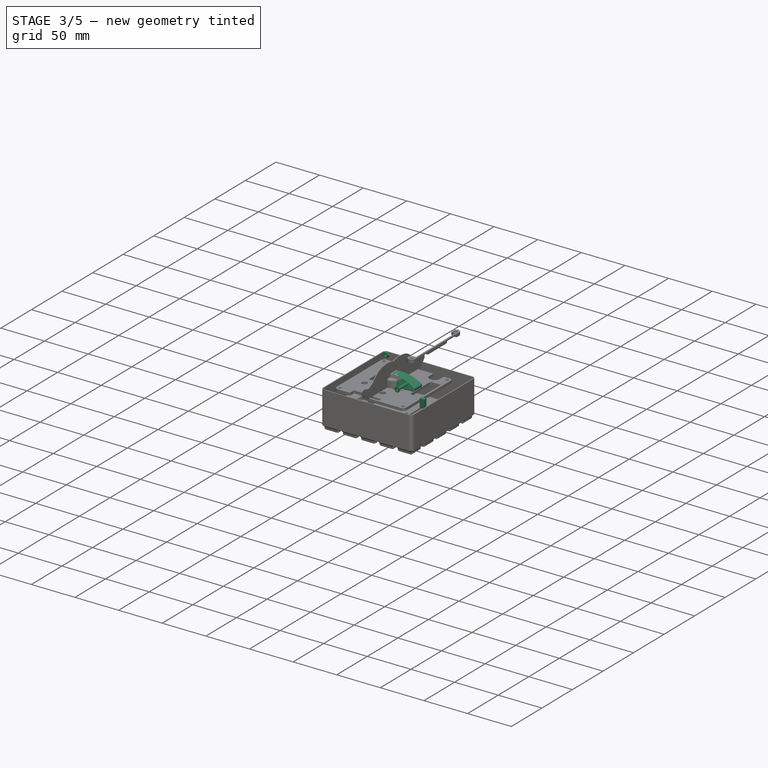
[diagram: stage 3 of 5 — iso view after this stage's code; geometry added in this stage tinted green]
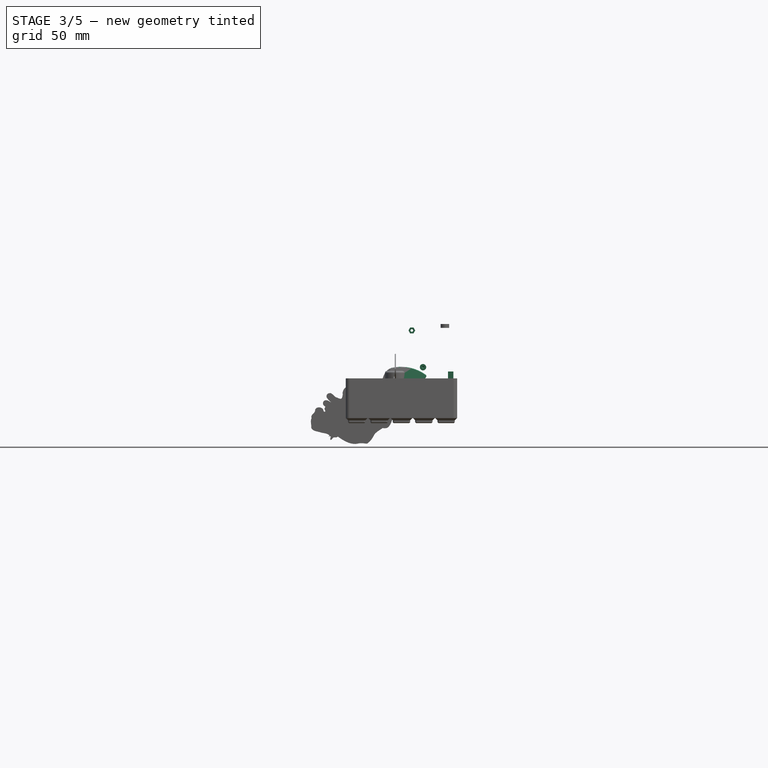
[diagram: stage 3 of 5 — front view after this stage's code; geometry added in this stage tinted green]
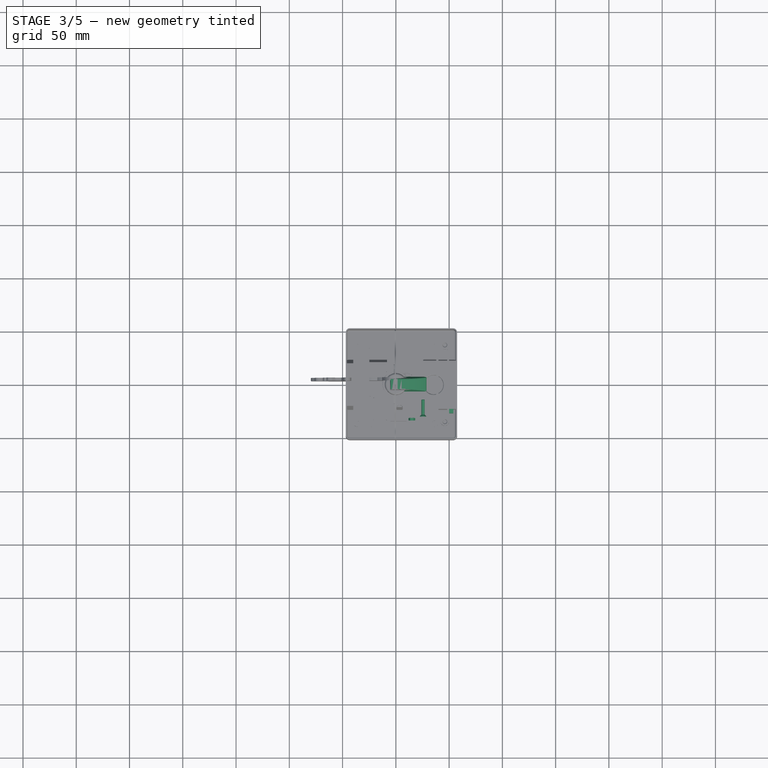
[diagram: stage 3 of 5 — top view after this stage's code; geometry added in this stage tinted green]
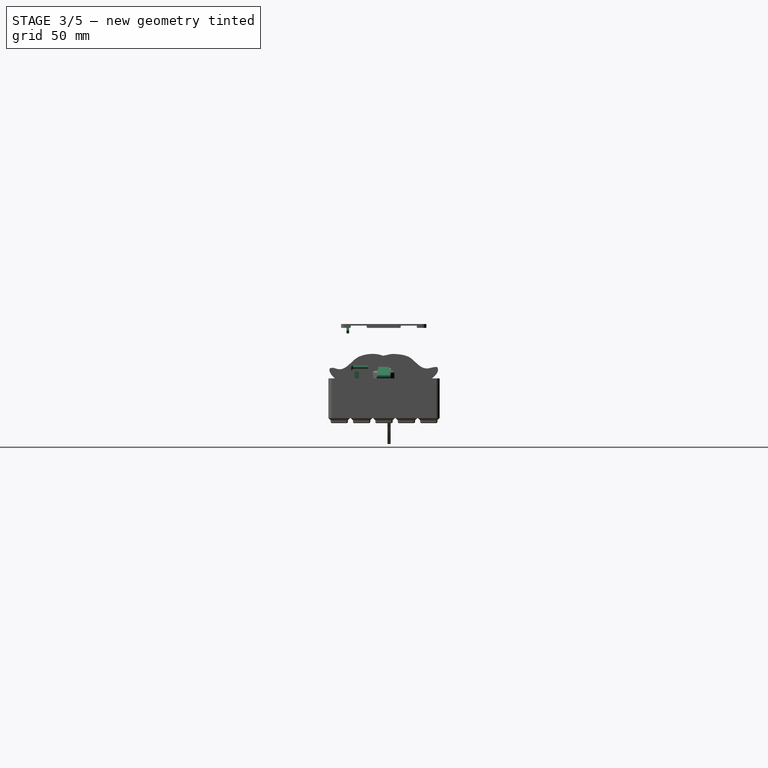
[diagram: stage 3 of 5 — right view after this stage's code; geometry added in this stage tinted green]
FEATURE [Part::Feature] Solid  label="17HS08-1004S"
  FixShape = 1
  InvalidShape = false
  Placement = pos=(0,-20,0) rot=(0,0,1;0rad)
  TreeRank = 2
  ValidateShape = false
  shape: bbox 42.32 x 40 x 62.15 mm, 316 faces (baked)
FEATURE [Sketcher::SketchObject] Sketch
  ArcFitTolerance = 1e-06
  AttachmentSupport = -> [YZ_Plane001]
  ExternalBSplineMaxDegree = 5
  ExternalBSplineTolerance = 0.0001
  FixShape = 1
  FullyConstrained = true
  InternalTolerance = 1e-06
  InvalidShape = false
  MakeInternals = false
  MapMode = 5
  Placement = pos=(0,0,0) rot=(0.57735,0.57735,0.57735;2.0944rad)
  Support = -> [YZ_Plane001]
  TreeRank = 31
  ValidateShape = false
  sketch-geometry (17):
    g0: LineSegment StartX=0 StartY=0 StartZ=0 EndX=6 EndY=0 EndZ=0
    g1: LineSegment [constr] StartX=6 StartY=0 StartZ=0 EndX=6 EndY=27.8 EndZ=0
    g2: LineSegment [constr] StartX=6 StartY=27.8 StartZ=0 EndX=0 EndY=27.8 EndZ=0
    g3: LineSegment [constr] StartX=0 StartY=27.8 StartZ=0 EndX=0 EndY=0 EndZ=0
    g4: LineSegment StartX=6 StartY=0 StartZ=0 EndX=16 EndY=0 EndZ=0
    g5: LineSegment StartX=16 StartY=0 StartZ=0 EndX=16 EndY=8 EndZ=0
    g6: LineSegment StartX=16 StartY=8 StartZ=0 EndX=6 EndY=8 EndZ=0
    g7: LineSegment [constr] StartX=6 StartY=8 StartZ=0 EndX=6 EndY=0 EndZ=0
    g8: LineSegment [constr] StartX=6 StartY=8 StartZ=0 EndX=6 EndY=27.8 EndZ=0
    g9: LineSegment StartX=0 StartY=0 StartZ=0 EndX=0 EndY=26.8 EndZ=0
    g10: LineSegment StartX=0 StartY=26.8 StartZ=0 EndX=0.464466 EndY=26.8 EndZ=0
    g11: LineSegment StartX=0.464466 StartY=26.8 StartZ=0 EndX=3 EndY=24.2645 EndZ=0
    g12: LineSegment StartX=3 StartY=24.2645 StartZ=0 EndX=5.53553 EndY=26.8 EndZ=0
    g13: LineSegment StartX=5.53553 StartY=26.8 StartZ=0 EndX=6 EndY=26.8 EndZ=0
    g14: LineSegment StartX=6 StartY=26.8 StartZ=0 EndX=6 EndY=8 EndZ=0
    g15: Circle [constr] CenterX=3 CenterY=27.8 CenterZ=0 NormalX=0 NormalY=0 NormalZ=1 AngleXU=0 Radius=2.5
    g16: LineSegment [constr] StartX=3 StartY=24.2645 StartZ=0 EndX=3 EndY=30.3 EndZ=0
  constraints (47):
    c: Coincident(g0,g1)
    c: Coincident(g1,g2)
    c: Coincident(g2,g3)
    c: Coincident(g3,g0)
    c: Horizontal(g0)
    c: Horizontal(g2)
    c: Vertical(g1)
    c: Vertical(g3)
    c: Coincident(g0,g-1)
    c: Coincident(g4,g5)
    c: Coincident(g5,g6)
    c: Coincident(g6,g7)
    c: Coincident(g7,g4)
    c: Horizontal(g4)
    c: Horizontal(g6)
    c: Vertical(g5)
    c: Vertical(g7)
    c: Coincident(g4,g0)
    c: Coincident(g8,g6)
    c: Coincident(g8,g2)
    c: DistanceX(g0,g4) = 16
    c: DistanceY(g3,g3) = 27.8
    c: DistanceX(g2,g2) = 6
    c: DistanceY(g5,g5) = 8
    c: Coincident(g9,g0)
    c: PointOnObject(g9,g3)
    c: Coincident(g10,g9)
    c: Horizontal(g10)
    c: Coincident(g10,g11)
    c: Coincident(g11,g12)
    c: Coincident(g12,g13)
    c: PointOnObject(g13,g1)
    c: Horizontal(g13)
    c: Coincident(g13,g14)
    c: Coincident(g14,g6)
    c: Equal(g10,g13)
    c: Perpendicular(g11,g12)
    c: Equal(g11,g12)
    c: PointOnObject(g10,g13)
    c: Tangent(g15,g12)
    c: Symmetric(g2,g1,g15)
    c: Diameter(g15) = 5
    c: DistanceY(g13,g1) = 1
    c: Coincident(g16,g11)
    c: PointOnObject(g16,g15)
    c: Vertical(g16)
    c: DistanceY(g16) = 30.3
FEATURE [PartDesign::Revolution] Revolution
  AddSubType = 0
  Angle = 360
  Axis = (3e-16,1,-2e-16)
  Base = (0,0,0)
  ClaimChildren = false
  Fit = 0
  FitJoin = 0
  FixShape = 1
  InnerFit = 0
  InnerFitJoin = 0
  InvalidShape = false
  Linearize = true
  NewSolid = false
  Profile = -> Sketch
  ReferenceAxis = -> Sketch [H_Axis]
  Refine = true
  Suppress = false
  TreeRank = 32
  ValidateShape = true
  _ProfileBasedVersion = 1
FEATURE [Sketcher::SketchObject] Sketch136
  ArcFitTolerance = 1e-06
  AttachmentSupport = -> [YZ_Plane046]
  ExternalBSplineMaxDegree = 5
  ExternalBSplineTolerance = 0.0001
  FullyConstrained = true
  InternalTolerance = 1e-06
  InvalidShape = false
  MakeInternals = true
  MapMode = 5
  Placement = pos=(0,0,0) rot=(0.57735,0.57735,0.57735;2.0944rad)
  Support = -> [YZ_Plane046]
  TreeRank = 1279
  ValidateShape = false
  sketch-geometry (1):
    g0: Circle CenterX=0 CenterY=56 CenterZ=0 NormalX=0 NormalY=0 NormalZ=1 AngleXU=0 Radius=1.6
  constraints (3):
    c: PointOnObject(g0,g-2)
    c: Diameter(g0) = 3.2
    c: DistanceY(g0) = 56
FEATURE [PartDesign::Pocket] Pocket070
  AddSubType = 1
  AlongSketchNormal = false
  AutoTaperInnerAngle = true
  BaseFeature = -> Fillet068
  CheckUpToFaceLimits = true
  ClaimChildren = false
  Direction = (-1,3e-16,-3e-16)
  Fit = 0
  FitJoin = 0
  InnerFit = 0
  InnerFitJoin = 0
  InvalidShape = false
  Length = 5
  Length2 = 10
  Linearize = true
  NewSolid = false
  Profile = -> Sketch136
  ReferenceAxis = -> Sketch136 [N_Axis]
  Refine = true
  Reversed = true
  Suppress = false
  TaperInnerAngle = 0
  TaperInnerAngleRev = 0
  TreeRank = 1280
  Type = 1
  ValidateShape = true
  _ProfileBasedVersion = 1
  _Version = 1
FEATURE [Sketcher::SketchObject] Sketch137
  ArcFitTolerance = 1e-06
  AttachmentSupport = -> [YZ_Plane046]
  ExternalBSplineMaxDegree = 5
  ExternalBSplineTolerance = 0.0001
  FullyConstrained = true
  InternalTolerance = 1e-06
  InvalidShape = false
  MakeInternals = true
  MapMode = 5
  Placement = pos=(0,0,0) rot=(0.57735,0.57735,0.57735;2.0944rad)
  Support = -> [YZ_Plane046]
  TreeRank = 1282
  ValidateShape = false
  sketch-geometry (2):
    g0: Circle CenterX=15 CenterY=30 CenterZ=0 NormalX=0 NormalY=0 NormalZ=1 AngleXU=0 Radius=1.6
    g1: Circle CenterX=-15 CenterY=30 CenterZ=0 NormalX=0 NormalY=0 NormalZ=1 AngleXU=0 Radius=1.6
  constraints (5):
    c: Equal(g1,g0)
    c: Diameter(g1) = 3.2
    c: Symmetric(g1,g0,g-2)
    c: DistanceX(g1,g0) = 30
    c: DistanceY(g1) = 30
FEATURE [PartDesign::Pocket] Pocket071
  AddSubType = 1
  AlongSketchNormal = false
  AutoTaperInnerAngle = true
  BaseFeature = -> Pocket070
  CheckUpToFaceLimits = true
  ClaimChildren = false
  Direction = (-1,3e-16,-3e-16)
  Fit = 0
  FitJoin = 0
  InnerFit = 0
  InnerFitJoin = 0
  InvalidShape = false
  Length = 5
  Length2 = 10
  Linearize = true
  NewSolid = false
  Profile = -> Sketch137
  ReferenceAxis = -> Sketch137 [N_Axis]
  Refine = true
  Suppress = false
  TaperInnerAngle = 0
  TaperInnerAngleRev = 0
  TreeRank = 1283
  Type = 1
  ValidateShape = true
  _ProfileBasedVersion = 1
  _Version = 1
FEATURE [PartDesign::Chamfer] Chamfer009
  AddSubType = 0
  Angle = 45
  Base = -> Pocket071 [Edge75,Edge76,Edge89]
  BaseFeature = -> Pocket071
  ChamferType = 0
  FlipDirection = false
  InvalidShape = false
  NewSolid = false
  Refine = true
  Size = 2
  Size2 = 1
  SupportTransform = false
  Suppress = false
  TreeRank = 1281
  UseAllEdges = false
  ValidateShape = true
FEATURE [PartDesign::Fillet] Fillet069
  AddSubType = 0
  Base = -> Chamfer009 [Edge179,Edge177]
  BaseFeature = -> Chamfer009
  InvalidShape = false
  NewSolid = false
  Radius = 4
  Refine = true
  SupportTransform = false
  Suppress = false
  TreeRank = 1284
  UseAllEdges = false
  ValidateShape = true
FEATURE [PartDesign::Pad] Pad059
  AddSubType = 0
  AlongSketchNormal = false
  AutoTaperInnerAngle = true
  BaseFeature = -> Fillet069
  CheckUpToFaceLimits = true
  ClaimChildren = false
  Direction = (0,0,1)
  Fit = 0
  FitJoin = 0
  InnerFit = 0
  InnerFitJoin = 0
  InvalidShape = false
  Length = 1
  Length2 = 10
  Linearize = true
  NewSolid = false
  Profile = -> Fillet069 [Face36]
  Refine = true
  Suppress = false
  TaperInnerAngle = 0
  TaperInnerAngleRev = 0
  TreeRank = 1321
  Type = 0
  ValidateShape = true
  _ProfileBasedVersion = 1
FEATURE [Sketcher::SketchObject] Sketch141
  ArcFitTolerance = 1e-06
  AttachmentSupport = -> [YZ_Plane046]
  ExternalBSplineMaxDegree = 5
  ExternalBSplineTolerance = 0.0001
  FullyConstrained = true
  InternalTolerance = 1e-06
  InvalidShape = false
  MakeInternals = true
  MapMode = 5
  Placement = pos=(0,0,0) rot=(0.57735,0.57735,0.57735;2.0944rad)
  Support = -> [YZ_Plane046]
  TreeRank = 1324
  ValidateShape = false
  sketch-geometry (5):
    g0: LineSegment StartX=-29.8 StartY=72.8 StartZ=0 EndX=-29.8 EndY=83.8 EndZ=0
    g1: LineSegment StartX=-29.8 StartY=83.8 StartZ=0 EndX=-17.8 EndY=83.8 EndZ=0
    g2: LineSegment StartX=-17.8 StartY=83.8 StartZ=0 EndX=-17.8 EndY=72.8 EndZ=0
    g3: LineSegment StartX=-17.8 StartY=72.8 StartZ=0 EndX=-29.8 EndY=72.8 EndZ=0
    g4: GeomPoint [constr] X=-23.8 Y=78.3 Z=0
  constraints (13):
    c: Coincident(g0,g1)
    c: Coincident(g1,g2)
    c: Coincident(g2,g3)
    c: Coincident(g3,g0)
    c: Horizontal(g1)
    c: Horizontal(g3)
    c: Vertical(g0)
    c: Vertical(g2)
    c: Symmetric(g1,g0,g4)
    c: DistanceX(g1,g1) = 12
    c: DistanceY(g2,g2) = 11
    c: DistanceX(g4) = -23.8
    c: DistanceY(g4) = 78.3
FEATURE [PartDesign::Pocket] Pocket073
  AddSubType = 1
  AlongSketchNormal = false
  AutoTaperInnerAngle = true
  BaseFeature = -> Pad059
  CheckUpToFaceLimits = true
  ClaimChildren = false
  Direction = (-1,2e-16,-3e-16)
  Fit = 0
  FitJoin = 0
  InnerFit = 0
  InnerFitJoin = 0
  InvalidShape = false
  Length = 5
  Length2 = 10
  Linearize = true
  NewSolid = false
  Profile = -> Sketch141
  ReferenceAxis = -> Sketch141 [N_Axis]
  Refine = true
  Reversed = true
  Suppress = false
  TaperInnerAngle = 0
  TaperInnerAngleRev = 0
  TreeRank = 1325
  Type = 1
  ValidateShape = true
  _ProfileBasedVersion = 1
  _Version = 1
FEATURE [PartDesign::Fillet] Fillet070
  AddSubType = 0
  Base = -> Pocket073 [Edge179,Edge181,Edge183,Edge178]
  BaseFeature = -> Pocket073
  InvalidShape = false
  NewSolid = false
  Radius = 1
  Refine = true
  SupportTransform = false
  Suppress = false
  TreeRank = 1326
  UseAllEdges = false
  ValidateShape = true
FEATURE [Sketcher::SketchObject] Sketch142
  ArcFitTolerance = 1e-06
  AttachmentOffset = pos=(0,0,43) rot=(0,0,1;0rad)
  AttachmentSupport = -> [XZ_Plane046]
  ExternalBSplineMaxDegree = 5
  ExternalBSplineTolerance = 0.0001
  FullyConstrained = true
  InternalTolerance = 1e-06
  InvalidShape = false
  MakeInternals = true
  MapMode = 5
  Placement = pos=(0,-43,9.5e-15) rot=(1,0,0;1.5708rad)
  Support = -> [XZ_Plane046]
  TreeRank = 1327
  ValidateShape = false
  sketch-geometry (1):
    g0: Circle CenterX=28.9 CenterY=57 CenterZ=0 NormalX=0 NormalY=0 NormalZ=1 AngleXU=0 Radius=5.5
  constraints (3):
    c: DistanceX(g0) = 28.9
    c: DistanceY(g0) = 57
    c: Diameter(g0) = 11
FEATURE [PartDesign::Pocket] Pocket074
  AddSubType = 1
  AlongSketchNormal = false
  AutoTaperInnerAngle = true
  BaseFeature = -> Fillet070
  CheckUpToFaceLimits = true
  ClaimChildren = false
  Direction = (0,1,0)
  Fit = 0
  FitJoin = 0
  InnerFit = 0
  InnerFitJoin = 0
  InvalidShape = false
  Length = 5
  Length2 = 10
  Linearize = true
  NewSolid = false
  Profile = -> Sketch142
  ReferenceAxis = -> Sketch142 [N_Axis]
  Refine = true
  Suppress = false
  TaperInnerAngle = 0
  TaperInnerAngleRev = 0
  TreeRank = 1328
  Type = 0
  ValidateShape = true
  _ProfileBasedVersion = 1
  _Version = 1
FEATURE [Sketcher::SketchObject] Sketch143
  ArcFitTolerance = 1e-06
  AttachmentOffset = pos=(0,0,43) rot=(0,0,1;0rad)
  AttachmentSupport = -> [XZ_Plane046]
  ExternalBSplineMaxDegree = 5
  ExternalBSplineTolerance = 0.0001
  ExternalGeometry = -> [Pocket074]
  FullyConstrained = true
  InternalTolerance = 1e-06
  InvalidShape = false
  MakeInternals = true
  MapMode = 5
  Placement = pos=(0,-43,-9.5e-15) rot=(1,0,0;1.5708rad)
  Support = -> [XZ_Plane046]
  TreeRank = 1329
  ValidateShape = false
  sketch-geometry (1):
    g0: Circle CenterX=28.9 CenterY=57 CenterZ=0 NormalX=0 NormalY=0 NormalZ=1 AngleXU=0 Radius=10
  constraints (2):
    c: Coincident(g0,g-3)
    c: Diameter(g0) = 20
FEATURE [PartDesign::Pocket] Pocket075
  AddSubType = 1
  AlongSketchNormal = false
  AutoTaperInnerAngle = true
  BaseFeature = -> Pocket074
  CheckUpToFaceLimits = true
  ClaimChildren = false
  Direction = (0,1,2e-16)
  Fit = 0
  FitJoin = 0
  InnerFit = 0
  InnerFitJoin = 0
  InvalidShape = false
  Length = 1
  Length2 = 10
  Linearize = true
  NewSolid = false
  Profile = -> Sketch143
  ReferenceAxis = -> Sketch143 [N_Axis]
  Refine = true
  Suppress = false
  TaperInnerAngle = 0
  TaperInnerAngleRev = 0
  TreeRank = 1330
  Type = 0
  ValidateShape = true
  _ProfileBasedVersion = 1
  _Version = 1
FEATURE [PartDesign::Mirrored] Mirrored007
  AddSubType = 0
  BaseFeature = -> Pocket075
  CopyShape = false
  InvalidShape = false
  MirrorPlane = -> XZ_Plane046
  NewSolid = false
  OriginalSubs = -> [Pocket074,Pocket075]
  Originals = -> [Pocket074,Pocket075]
  ParallelTransform = true
  Refine = true
  SubTransform = true
  Suppress = false
  TreeRank = 1331
  ValidateShape = true
  _Version = 4
FEATURE [Sketcher::SketchObject] Sketch144
  ArcFitTolerance = 1e-06
  AttachmentSupport = -> [YZ_Plane046]
  ExternalBSplineMaxDegree = 5
  ExternalBSplineTolerance = 0.0001
  FullyConstrained = true
  InternalTolerance = 1e-06
  InvalidShape = false
  MakeInternals = true
  MapMode = 5
  Placement = pos=(0,0,0) rot=(0.57735,0.57735,0.57735;2.0944rad)
  Support = -> [YZ_Plane046]
  TreeRank = 1332
  ValidateShape = false
  sketch-geometry (10):
    g0: LineSegment StartX=27 StartY=67.5 StartZ=0 EndX=27 EndY=58 EndZ=0
    g1: LineSegment StartX=27 StartY=58 StartZ=0 EndX=17 EndY=58 EndZ=0
    g2: LineSegment StartX=17 StartY=58 StartZ=0 EndX=17 EndY=67.5 EndZ=0
    g3: LineSegment StartX=17 StartY=67.5 StartZ=0 EndX=27 EndY=67.5 EndZ=0
    g4: GeomPoint [constr] X=22 Y=62.75 Z=0
    g5: LineSegment StartX=-17 StartY=67.5 StartZ=0 EndX=-17 EndY=58 EndZ=0
    g6: LineSegment StartX=-17 StartY=58 StartZ=0 EndX=-27 EndY=58 EndZ=0
    g7: LineSegment StartX=-27 StartY=58 StartZ=0 EndX=-27 EndY=67.5 EndZ=0
    g8: LineSegment StartX=-27 StartY=67.5 StartZ=0 EndX=-17 EndY=67.5 EndZ=0
    g9: GeomPoint [constr] X=-22 Y=62.75 Z=0
  constraints (25):
    c: Coincident(g0,g1)
    c: Coincident(g1,g2)
    c: Coincident(g2,g3)
    c: Coincident(g3,g0)
    c: Horizontal(g1)
    c: Horizontal(g3)
    c: Vertical(g0)
    c: Vertical(g2)
    c: Symmetric(g1,g0,g4)
    c: Coincident(g5,g6)
    c: Coincident(g6,g7)
    c: Coincident(g7,g8)
    c: Coincident(g8,g5)
    c: Horizontal(g6)
    c: Horizontal(g8)
    c: Vertical(g5)
    c: Vertical(g7)
    c: Symmetric(g6,g5,g9)
    c: Equal(g8,g3)
    c: Equal(g5,g2)
    c: Symmetric(g9,g4,g-2)
    c: DistanceY(g2,g2) = 9.5
    c: DistanceX(g3,g3) = 10
    c: DistanceX(g4) = 22
    c: DistanceY(g1) = 58
FEATURE [PartDesign::Pocket] Pocket076
  AddSubType = 1
  AlongSketchNormal = false
  AutoTaperInnerAngle = true
  BaseFeature = -> Mirrored007
  CheckUpToFaceLimits = true
  ClaimChildren = false
  Direction = (-1,2e-16,-3e-16)
  Fit = 0
  FitJoin = 0
  InnerFit = 0
  InnerFitJoin = 0
  InvalidShape = false
  Length = 5
  Length2 = 10
  Linearize = true
  NewSolid = false
  Profile = -> Sketch144
  ReferenceAxis = -> Sketch144 [N_Axis]
  Refine = true
  Suppress = false
  TaperInnerAngle = 0
  TaperInnerAngleRev = 0
  TreeRank = 1333
  Type = 1
  ValidateShape = true
  _ProfileBasedVersion = 1
  _Version = 1
FEATURE [PartDesign::Fillet] Fillet071
  AddSubType = 0
  Base = -> Pocket076 [Edge282,Edge280,Edge277,Edge278,Edge288,Edge287,Edge290,Edge292]
  BaseFeature = -> Pocket076
  InvalidShape = false
  NewSolid = false
  Radius = 2.9
  Refine = true
  SupportTransform = false
  Suppress = false
  TreeRank = 1334
  UseAllEdges = false
  ValidateShape = true
FEATURE [App::Link] Link003  label="Link003(Eye)"
  AutoLinkLabel = true
  AutoPlacement = true
  LinkPlacement = pos=(-37.0119,-24.7356,50.5913) rot=(0,0,-1;1.18682rad)
  LinkedObject = -> Part011
  Placement = pos=(-37.0119,-24.7356,50.5913) rot=(0,0,-1;1.18682rad)
  SyncGroupVisibility = false
  TreeRank = 1416
  _LinkVersion = 1
FEATURE [Sketcher::SketchObject] Sketch151
  ArcFitTolerance = 1e-06
  AttachmentSupport = -> [Fillet071]
  ExternalBSplineMaxDegree = 5
  ExternalBSplineTolerance = 0.0001
  ExternalGeometry = -> [Fillet071]
  FullyConstrained = true
  InternalTolerance = 1e-06
  InvalidShape = false
  MakeInternals = true
  MapMode = 5
  Placement = pos=(0,0,90) rot=(0,0,1;0rad)
  Support = -> [Fillet071]
  TreeRank = 1417
  ValidateShape = false
  sketch-geometry (3):
    g0: LineSegment StartX=-43 StartY=36 StartZ=0 EndX=-51 EndY=16.1993 EndZ=0
    g1: LineSegment StartX=-51 StartY=16.1993 StartZ=0 EndX=-51 EndY=-16.1993 EndZ=0
    g2: LineSegment StartX=-51 StartY=-16.1993 StartZ=0 EndX=-43 EndY=-36 EndZ=0
  constraints (8):
    c: Coincident(g0,g-3)
    c: Coincident(g0,g1)
    c: Vertical(g1)
    c: Coincident(g1,g2)
    c: Coincident(g2,g-3)
    c: Equal(g2,g0)
    c: Angle(g0,g-3) = 0.383972
    c: DistanceX(g0,g0) = 8
FEATURE [PartDesign::Pad] Pad064
  AddSubType = 0
  AlongSketchNormal = false
  AutoTaperInnerAngle = true
  BaseFeature = -> Fillet071
  CheckUpToFaceLimits = true
  ClaimChildren = false
  Direction = (0,0,1)
  Fit = 0
  FitJoin = 0
  InnerFit = 0
  InnerFitJoin = 0
  InvalidShape = false
  Length = 17
  Length2 = 10
  Linearize = true
  NewSolid = false
  Profile = -> Sketch151
  ReferenceAxis = -> Sketch151 [N_Axis]
  Refine = true
  Reversed = true
  Suppress = false
  TaperInnerAngle = 0
  TaperInnerAngleRev = 0
  TreeRank = 1418
  Type = 0
  ValidateShape = true
  _ProfileBasedVersion = 1
FEATURE [PartDesign::Draft] Draft002
  AddSubType = 0
  Angle = 30
  Base = -> Pad064 [Face9]
  BaseFeature = -> Pad064
  InvalidShape = false
  NeutralPlane = -> Pad064 [Face36]
  NewSolid = false
  Refine = true
  SupportTransform = false
  Suppress = false
  TreeRank = 1419
  ValidateShape = true
FEATURE [Sketcher::SketchObject] Sketch154
  ArcFitTolerance = 1e-06
  AttachmentSupport = -> [Draft002]
  ExternalBSplineMaxDegree = 5
  ExternalBSplineTolerance = 0.0001
  ExternalGeometry = -> [Draft002]
  FullyConstrained = true
  InternalTolerance = 1e-06
  InvalidShape = false
  MakeInternals = true
  MapMode = 5
  Placement = pos=(-49.4697,-19.987,0) rot=(0.723589,-0.488067,-0.488067;1.88883rad)
  Support = -> [Draft002]
  TreeRank = 1434
  ValidateShape = false
  sketch-geometry (2):
    g0: Circle CenterX=5.32348 CenterY=80.5913 CenterZ=0 NormalX=0 NormalY=0 NormalZ=1 AngleXU=0 Radius=8
    g1: Circle [constr] CenterX=5.32348 CenterY=80.5913 CenterZ=0 NormalX=0 NormalY=0 NormalZ=1 AngleXU=0 Radius=9.40868
  constraints (5):
    c: Diameter(g0) = 16
    c: Tangent(g1,g-3)
    c: Tangent(g1,g-4)
    c: Coincident(g0,g1)
    c: Tangent(g1,g-5)
FEATURE [PartDesign::Pocket] Pocket080
  AddSubType = 1
  AlongSketchNormal = false
  AutoTaperInnerAngle = true
  BaseFeature = -> Draft002
  CheckUpToFaceLimits = true
  ClaimChildren = false
  Direction = (0.927184,0.374607,0)
  Fit = 0
  FitJoin = 0
  InnerFit = 0
  InnerFitJoin = 0
  InvalidShape = false
  Length = 0.5
  Length2 = 10
  Linearize = true
  NewSolid = false
  Profile = -> Sketch154
  ReferenceAxis = -> Sketch154 [N_Axis]
  Refine = true
  Suppress = false
  TaperInnerAngle = 0
  TaperInnerAngleRev = 0
  TreeRank = 1435
  Type = 0
  ValidateShape = true
  _ProfileBasedVersion = 1
  _Version = 1
FEATURE [PartDesign::Mirrored] Mirrored008
  AddSubType = 0
  BaseFeature = -> Pocket080
  CopyShape = false
  InvalidShape = false
  MirrorPlane = -> XZ_Plane046
  NewSolid = false
  OriginalSubs = -> [Pocket080]
  Originals = -> [Pocket080]
  ParallelTransform = true
  Refine = true
  SubTransform = true
  Suppress = false
  TreeRank = 1436
  ValidateShape = true
  _Version = 4
FEATURE [PartDesign::Fillet] Fillet073
  AddSubType = 0
  Base = -> Mirrored008 [Edge112,Edge139]
  BaseFeature = -> Mirrored008
  InvalidShape = false
  NewSolid = false
  Radius = 5
  Refine = true
  SupportTransform = false
  Suppress = false
  TreeRank = 1437
  UseAllEdges = false
  ValidateShape = true
FEATURE [PartDesign::Fillet] Fillet074
  AddSubType = 0
  Base = -> Fillet073 [Edge8,Edge44]
  BaseFeature = -> Fillet073
  InvalidShape = false
  NewSolid = false
  Radius = 30
  Refine = true
  SupportTransform = false
  Suppress = false
  TreeRank = 1438
  UseAllEdges = false
  ValidateShape = true
FEATURE [Sketcher::SketchObject] Sketch155
  ArcFitTolerance = 1e-06
  AttachmentSupport = -> [Mirrored008]
  ExternalBSplineMaxDegree = 5
  ExternalBSplineTolerance = 0.0001
  ExternalGeometry = -> [Mirrored008]
  FullyConstrained = true
  InternalTolerance = 1e-06
  InvalidShape = false
  MakeInternals = true
  MapMode = 5
  Placement = pos=(-51,0,0) rot=(0.57735,-0.57735,-0.57735;2.0944rad)
  Support = -> [Mirrored008]
  TreeRank = 1439
  ValidateShape = false
  sketch-geometry (5):
    g0: ArcOfCircle CenterX=2.297e-12 CenterY=92.2356 CenterZ=0 NormalX=0 NormalY=0 NormalZ=1 AngleXU=0 Radius=8 StartAngle=5.99997 EndAngle=9.70799
    g1: ArcOfCircle CenterX=4.2e-15 CenterY=81.5 CenterZ=0 NormalX=0 NormalY=0 NormalZ=1 AngleXU=0 Radius=5 StartAngle=3.42481 EndAngle=5.99997
    g2: LineSegment StartX=-7.68129 StartY=90 StartZ=0 EndX=-4.80081 EndY=80.1028 EndZ=0
    g3: LineSegment StartX=4.80081 StartY=80.1028 StartZ=0 EndX=7.68129 EndY=90 EndZ=0
    g4: Circle [constr] CenterX=4.2e-15 CenterY=81.5 CenterZ=0 NormalX=0 NormalY=0 NormalZ=1 AngleXU=0 Radius=2.1
  constraints (11):
    c: Tangent(g0,g2) = -1.5708
    c: Tangent(g2,g1) = -1.5708
    c: Tangent(g1,g3) = -1.5708
    c: Tangent(g3,g0) = -1.5708
    c: Symmetric(g-4,g-3,g1)
    c: PointOnObject(g0,g-3)
    c: PointOnObject(g0,g-3)
    c: Radius(g0) = 8
    c: Radius(g1) = 5
    c: Coincident(g4,g1)
    c: Diameter(g4) = 4.2
FEATURE [PartDesign::Pocket] Pocket081
  AddSubType = 1
  AlongSketchNormal = false
  AutoTaperInnerAngle = true
  BaseFeature = -> Fillet074
  CheckUpToFaceLimits = true
  ClaimChildren = false
  Direction = (1,0,0)
  Fit = 0
  FitJoin = 0
  InnerFit = 0
  InnerFitJoin = 0
  InvalidShape = false
  Length = 3
  Length2 = 10
  Linearize = true
  NewSolid = false
  Profile = -> Sketch155
  ReferenceAxis = -> Sketch155 [N_Axis]
  Refine = true
  Suppress = false
  TaperInnerAngle = 0
  TaperInnerAngleRev = 0
  TreeRank = 1440
  Type = 0
  ValidateShape = true
  _ProfileBasedVersion = 1
  _Version = 1
FEATURE [Sketcher::SketchObject] Sketch156
  ArcFitTolerance = 1e-06
  AttachmentSupport = -> [Pocket081]
  ExternalBSplineMaxDegree = 5
  ExternalBSplineTolerance = 0.0001
  ExternalGeometry = -> [Pocket081]
  FullyConstrained = true
  InternalTolerance = 1e-06
  InvalidShape = false
  MakeInternals = true
  MapMode = 5
  Placement = pos=(-48,0,0) rot=(0.57735,-0.57735,-0.57735;2.0944rad)
  Support = -> [Pocket081]
  TreeRank = 1441
  ValidateShape = false
  sketch-geometry (1):
    g0: Circle CenterX=0 CenterY=81.5 CenterZ=0 NormalX=0 NormalY=0 NormalZ=1 AngleXU=0 Radius=2.1
  constraints (2):
    c: Coincident(g0,g-3)
    c: Diameter(g0) = 4.2
FEATURE [PartDesign::Pocket] Pocket082
  AddSubType = 1
  AlongSketchNormal = false
  AutoTaperInnerAngle = true
  BaseFeature = -> Pocket081
  CheckUpToFaceLimits = true
  ClaimChildren = false
  Direction = (1,0,0)
  Fit = 0
  FitJoin = 0
  InnerFit = 0
  InnerFitJoin = 0
  InvalidShape = false
  Length = 14
  Length2 = 10
  Linearize = true
  NewSolid = false
  Profile = -> Sketch156
  ReferenceAxis = -> Sketch156 [N_Axis]
  Refine = true
  Suppress = false
  TaperInnerAngle = 0
  TaperInnerAngleRev = 0
  TreeRank = 1442
  Type = 0
  ValidateShape = true
  _ProfileBasedVersion = 1
  _Version = 1
FEATURE [PartDesign::Chamfer] Chamfer012
  AddSubType = 0
  Angle = 45
  Base = -> Pocket082 [Edge191,Edge199]
  BaseFeature = -> Pocket082
  ChamferType = 0
  FlipDirection = false
  InvalidShape = false
  NewSolid = false
  Refine = true
  Size = 0.5
  Size2 = 1
  SupportTransform = false
  Suppress = false
  TreeRank = 1444
  UseAllEdges = false
  ValidateShape = true
FEATURE [PartDesign::Chamfer] Chamfer013
  AddSubType = 0
  Angle = 45
  Base = -> Chamfer012 [Edge20,Edge21]
  BaseFeature = -> Chamfer012
  ChamferType = 0
  FlipDirection = false
  InvalidShape = false
  NewSolid = false
  Refine = true
  Size = 0.5
  Size2 = 1
  SupportTransform = false
  Suppress = false
  TreeRank = 1445
  UseAllEdges = false
  ValidateShape = true
FEATURE [Sketcher::SketchObject] Sketch157
  ArcFitTolerance = 1e-06
  AttachmentSupport = -> [XZ_Plane053]
  ExternalBSplineMaxDegree = 5
  ExternalBSplineTolerance = 0.0001
  FullyConstrained = true
  InternalTolerance = 1e-06
  InvalidShape = false
  MakeInternals = true
  MapMode = 5
  Placement = pos=(0,0,0) rot=(1,0,0;1.5708rad)
  Support = -> [XZ_Plane053]
  TreeRank = 1446
  ValidateShape = false
  sketch-geometry (6):
    g0: LineSegment StartX=-3 StartY=4.5 StartZ=0 EndX=27 EndY=4.5 EndZ=0
    g1: LineSegment StartX=27 StartY=4.5 StartZ=0 EndX=29.3299 EndY=7.5 EndZ=0
    g2: LineSegment StartX=-3 StartY=4.5 StartZ=0 EndX=-5.72625 EndY=14.5 EndZ=0
    g3: ArcOfCircle CenterX=4.79476 CenterY=-24.0916 CenterZ=0 NormalX=0 NormalY=0 NormalZ=1 AngleXU=0 Radius=40 StartAngle=0.910465 EndAngle=1.83695
    g4: LineSegment [constr] StartX=4.79476 StartY=-24.0916 StartZ=0 EndX=-5.72625 EndY=14.5 EndZ=0
    g5: LineSegment [constr] StartX=4.79476 StartY=-24.0916 StartZ=0 EndX=29.3299 EndY=7.5 EndZ=0
  constraints (17):
    c: Coincident(g1,g0)
    c: Coincident(g2,g0)
    c: Coincident(g3,g2)
    c: Coincident(g3,g1)
    c: Coincident(g4,g3)
    c: Coincident(g4,g2)
    c: Coincident(g5,g3)
    c: Coincident(g5,g1)
    c: DistanceY(g0,g1) = 3
    c: DistanceY(g0,g2) = 10
    c: DistanceX(g0,g-1) = 3
    c: DistanceX(g0,g0) = 30
    c: Radius(g3) = 40
    c: PointOnObject(g0,g5)
    c: PointOnObject(g0,g4)
    c: Horizontal(g0)
    c: DistanceY(g-1,g0) = 4.5
FEATURE [PartDesign::Pad] Pad065
  AddSubType = 0
  AlongSketchNormal = false
  AutoTaperInnerAngle = true
  CheckUpToFaceLimits = true
  ClaimChildren = false
  Direction = (0,-1,-2e-16)
  Fit = 0
  FitJoin = 0
  InnerFit = 0
  InnerFitJoin = 0
  InvalidShape = false
  Length = 14
  Length2 = 10
  Linearize = true
  Midplane = true
  NewSolid = false
  Profile = -> Sketch157
  ReferenceAxis = -> Sketch157 [N_Axis]
  Refine = true
  Suppress = false
  TaperInnerAngle = 0
  TaperInnerAngleRev = 0
  TreeRank = 1447
  Type = 0
  ValidateShape = true
  _ProfileBasedVersion = 1
FEATURE [PartDesign::SubShapeBinder] Binder  label="Binder(Chamfer013)"
  BindCopyOnChange = 0
  BindMode = 0
  ClaimChildren = false
  Context = -> Part018 [Part015.Body042.Binder.]
  EdgeTolerance = 1e-06
  FillStyle = 0
  Fuse = false
  InvalidShape = false
  MakeFace = true
  MergeEdges = true
  OffsetFill = false
  OffsetIntersection = false
  OffsetJoinType = 0
  OffsetOpenResult = false
  Outline = false
  PartialLoad = false
  Relative = true
  SplitEdges = false
  Support = -> [Body036[Chamfer013.Face1]]
  TightBound = false
  TreeRank = 1448
  ValidateShape = false
  _Version = 8
FEATURE [Sketcher::SketchObject] Sketch158
  ArcFitTolerance = 1e-06
  AttachmentSupport = -> [Binder]
  ExternalBSplineMaxDegree = 5
  ExternalBSplineTolerance = 0.0001
  ExternalGeometry = -> [Binder,Pad065]
  FullyConstrained = true
  InternalTolerance = 1e-06
  InvalidShape = false
  MakeInternals = true
  MapMode = 5
  Placement = pos=(-7.1e-15,0,0) rot=(0.57735,-0.57735,-0.57735;2.0944rad)
  Support = -> [Binder]
  TreeRank = 1449
  ValidateShape = false
  sketch-geometry (5):
    g0: LineSegment StartX=-7 StartY=4.5 StartZ=0 EndX=-4.03856 EndY=-5.67538 EndZ=0
    g1: LineSegment StartX=7 StartY=4.5 StartZ=0 EndX=4.03856 EndY=-5.67538 EndZ=0
    g2: ArcOfCircle CenterX=4.2e-15 CenterY=-4.5 CenterZ=0 NormalX=0 NormalY=0 NormalZ=1 AngleXU=0 Radius=4.20613 StartAngle=3.42481 EndAngle=5.99997
    g3: Circle CenterX=4.2e-15 CenterY=-4.5 CenterZ=0 NormalX=0 NormalY=0 NormalZ=1 AngleXU=0 Radius=1.6
    g4: LineSegment StartX=-7 StartY=4.5 StartZ=0 EndX=7 EndY=4.5 EndZ=0
  constraints (10):
    c: Coincident(g0,g-6)
    c: Coincident(g1,g-6)
    c: Coincident(g2,g-4)
    c: Tangent(g2,g1) = 1.5708
    c: Tangent(g2,g0) = -1.5708
    c: Parallel(g0,g-3)
    c: Coincident(g3,g2)
    c: Diameter(g3) = 3.2
    c: Coincident(g4,g0)
    c: Coincident(g4,g1)
FEATURE [PartDesign::Pad] Pad066
  AddSubType = 0
  AlongSketchNormal = false
  AutoTaperInnerAngle = true
  BaseFeature = -> Pad065
  CheckUpToFaceLimits = true
  ClaimChildren = false
  Direction = (-1,0,0)
  Fit = 0
  FitJoin = 0
  InnerFit = 0
  InnerFitJoin = 0
  InvalidShape = false
  Length = 3
  Length2 = 10
  Linearize = true
  NewSolid = false
  Profile = -> Sketch158
  ReferenceAxis = -> Sketch158 [N_Axis]
  Refine = true
  Suppress = false
  TaperInnerAngle = 0
  TaperInnerAngleRev = 0
  TreeRank = 1450
  Type = 0
  ValidateShape = true
  _ProfileBasedVersion = 1
FEATURE [PartDesign::Fillet] Fillet075
  AddSubType = 0
  Base = -> Pad066 [Edge21]
  BaseFeature = -> Pad066
  InvalidShape = false
  NewSolid = false
  Radius = 30
  Refine = true
  SupportTransform = false
  Suppress = false
  TreeRank = 1451
  UseAllEdges = false
  ValidateShape = true
FEATURE [PartDesign::Chamfer] Chamfer014
  AddSubType = 0
  Angle = 45
  Base = -> Fillet075 [Edge28]
  BaseFeature = -> Fillet075
  ChamferType = 0
  FlipDirection = false
  InvalidShape = false
  NewSolid = false
  Refine = true
  Size = 1.5
  Size2 = 1
  SupportTransform = false
  Suppress = false
  TreeRank = 1452
  UseAllEdges = false
  ValidateShape = true
FEATURE [PartDesign::Draft] Draft003
  AddSubType = 0
  Angle = 10
  Base = -> Chamfer014 [Face11]
  BaseFeature = -> Chamfer014
  InvalidShape = false
  NewSolid = false
  Refine = true
  SupportTransform = false
  Suppress = false
  TreeRank = 1453
  ValidateShape = true
FEATURE [PartDesign::Draft] Draft004
  AddSubType = 0
  Angle = 10
  Base = -> Draft003 [Face8]
  BaseFeature = -> Draft003
  InvalidShape = false
  NewSolid = false
  Refine = true
  SupportTransform = false
  Suppress = false
  TreeRank = 1454
  ValidateShape = true
FEATURE [PartDesign::Chamfer] Chamfer015
  AddSubType = 0
  Angle = 45
  Base = -> Draft004 [Edge27,Edge33]
  BaseFeature = -> Draft004
  ChamferType = 0
  FlipDirection = false
  InvalidShape = false
  NewSolid = false
  Refine = true
  Size = 1
  Size2 = 1
  SupportTransform = false
  Suppress = false
  TreeRank = 1455
  UseAllEdges = false
  ValidateShape = true
FEATURE [PartDesign::Chamfer] Chamfer016
  AddSubType = 0
  Angle = 45
  Base = -> Chamfer015 [Edge4,Edge2,Edge13,Edge19,Edge24,Edge6,Edge8,Edge28,Edge7,Edge26]
  BaseFeature = -> Chamfer015
  ChamferType = 0
  FlipDirection = false
  InvalidShape = false
  NewSolid = false
  Refine = true
  Size = 0.5
  Size2 = 1
  SupportTransform = false
  Suppress = false
  TreeRank = 1456
  UseAllEdges = false
  ValidateShape = true
FEATURE [PartDesign::Body] Body042  label="CreteBase"
  AutoGroupSolids = false
  ClaimAllChildren = false
  ExportMode = 0
  Group = -> [Sketch157,Pad065,Binder,Sketch158,Pad066,Fillet075,Chamfer014,Draft003,Draft004,Chamfer015,Chamfer016,Sketch159,Pocket083,Fillet076,Chamfer017,MultiTransform,LinearPattern,LinearPattern001,Sketch160,Pocket084,Chamfer018,Chamfer019,Chamfer020,Chamfer021]
  InvalidShape = false
  Origin = -> Origin062
  Placement = pos=(-38,0,56) rot=(0,0,1;0rad)
  Tip = -> Chamfer021
  TreeRank = 1429
  ValidateShape = false
  _ExportChildren = -> [Pad065,Binder,Pad066,Fillet075,Chamfer014,Draft003,Draft004,Chamfer015,Chamfer016,Pocket083,Fillet076,Chamfer017,MultiTransform,Pocket084,Chamfer018,Chamfer019,Chamfer020,Chamfer021]
  _GroupVersion = 1
FEATURE [TechDraw::DrawSVGTemplate] Template
  Height = 210
  Orientation = 1
  Template = <path>
  TreeRank = 1473
  Width = 297
FEATURE [TechDraw::DrawProjGroupItem] ProjItem  label="Front"
  CoarseView = false
  Direction = (0,1,0)
  Focus = 100
  HardHidden = false
  IsoCount = 0
  IsoHidden = false
  IsoVisible = false
  LockPosition = true
  Perspective = false
  Rotation = 0
  RotationVector = (-1,0,0)
  ScaleType = 2
  ScrubCount = 1
  SeamHidden = false
  SeamVisible = false
  SmoothHidden = false
  SmoothVisible = true
  Source = -> [Chamfer001]
  TreeRank = 1476
  Type = 0
  X = 0
  XDirection = (-1,0,0)
  Y = 0
FEATURE [TechDraw::DrawProjGroup] ProjGroup
  Anchor = -> ProjItem
  AutoDistribute = true
  LockPosition = false
  ProjectionType = 0
  Rotation = 0
  ScaleType = 0
  Source = -> [Chamfer001]
  TreeRank = 1477
  Views = -> [ProjItem]
  X = 42.3108
  Y = 180.782
  spacingX = 15
  spacingY = 15
FEATURE [TechDraw::DrawProjGroupItem] ProjItem001  label="Front001"
  CoarseView = false
  Direction = (0,-1,0)
  Focus = 100
  HardHidden = false
  IsoCount = 0
  IsoHidden = false
  IsoVisible = false
  LockPosition = true
  Perspective = false
  Rotation = 0
  RotationVector = (1,0,0)
  ScaleType = 2
  ScrubCount = 1
  SeamHidden = false
  SeamVisible = false
  SmoothHidden = false
  SmoothVisible = true
  Source = -> [Chamfer001]
  TreeRank = 1480
  Type = 0
  X = 0
  XDirection = (1,0,0)
  Y = 0
FEATURE [TechDraw::DrawProjGroup] ProjGroup001
  Anchor = -> ProjItem001
  AutoDistribute = true
  LockPosition = false
  ProjectionType = 0
  Rotation = 0
  ScaleType = 0
  Source = -> [Chamfer001]
  TreeRank = 1481
  Views = -> [ProjItem001]
  X = 43.4281
  Y = 124.89
  spacingX = 15
  spacingY = 15
FEATURE [PartDesign::FeatureBase] Clone
  BaseFeature = -> Fillet
  InvalidShape = false
  NewSolid = false
  Suppress = false
  TreeRank = 1494
  ValidateShape = true
FEATURE [Sketcher::SketchObject] Sketch161
  ArcFitTolerance = 1e-06
  AttachmentSupport = -> [Clone]
  ExternalBSplineMaxDegree = 5
  ExternalBSplineTolerance = 0.0001
  ExternalGeometry = -> [Clone]
  FullyConstrained = true
  InternalTolerance = 1e-06
  InvalidShape = false
  MakeInternals = true
  MapMode = 5
  Placement = pos=(2e-15,6,-1.3e-15) rot=(0,0.707107,0.707107;3.14159rad)
  Support = -> [Clone]
  TreeRank = 1496
  ValidateShape = false
  sketch-geometry (1):
    g0: Circle CenterX=0 CenterY=0 CenterZ=0 NormalX=0 NormalY=0 NormalZ=1 AngleXU=0 Radius=10
  constraints (2):
    c: Coincident(g0,g-1)
    c: Diameter(g0) = 20
FEATURE [PartDesign::Pad] Pad067
  AddSubType = 0
  AlongSketchNormal = false
  AutoTaperInnerAngle = true
  BaseFeature = -> Clone
  CheckUpToFaceLimits = true
  ClaimChildren = false
  Direction = (3e-16,1,-2e-16)
  Fit = 0
  FitJoin = 0
  InnerFit = 0
  InnerFitJoin = 0
  InvalidShape = false
  Length = 10
  Length2 = 10
  Linearize = true
  NewSolid = false
  Profile = -> Sketch161
  ReferenceAxis = -> Sketch161 [N_Axis]
  Refine = true
  Suppress = false
  TaperInnerAngle = 0
  TaperInnerAngleRev = 0
  TreeRank = 1497
  Type = 3
  UpToFace = -> Clone [Face9]
  ValidateShape = true
  _ProfileBasedVersion = 1
FEATURE [Sketcher::SketchObject] Sketch162
  ArcFitTolerance = 1e-06
  AttachmentSupport = -> [Pad067]
  ExternalBSplineMaxDegree = 5
  ExternalBSplineTolerance = 0.0001
  ExternalGeometry = -> [Pad067]
  FullyConstrained = true
  InternalTolerance = 1e-06
  InvalidShape = false
  MakeInternals = true
  MapMode = 5
  Placement = pos=(5.3e-15,16,-3.5e-15) rot=(0,0.707107,0.707107;3.14159rad)
  Support = -> [Pad067]
  TreeRank = 1498
  ValidateShape = false
  sketch-geometry (3):
    g0: ArcOfCircle CenterX=0 CenterY=0 CenterZ=0 NormalX=0 NormalY=0 NormalZ=1 AngleXU=0 Radius=10 StartAngle=4.19679 EndAngle=5.22798
    g1: LineSegment StartX=-4.93052 StartY=-8.7 StartZ=0 EndX=4.93052 EndY=-8.7 EndZ=0
    g2: GeomPoint [constr] X=0 Y=-2.5 Z=0
  constraints (8):
    c: Coincident(g0,g-3)
    c: PointOnObject(g0,g-3)
    c: Coincident(g1,g0)
    c: Horizontal(g1)
    c: Coincident(g0,g1)
    c: PointOnObject(g2,g-2)
    c: PointOnObject(g2,g-4)
    c: DistanceY(g0,g2) = 6.2
FEATURE [PartDesign::Pocket] Pocket085
  AddSubType = 1
  AlongSketchNormal = false
  AutoTaperInnerAngle = true
  BaseFeature = -> Pad067
  CheckUpToFaceLimits = true
  ClaimChildren = false
  Direction = (-3e-16,-1,2e-16)
  Fit = 0
  FitJoin = 0
  InnerFit = 0
  InnerFitJoin = 0
  InvalidShape = false
  Length = 0
  Length2 = 10
  Linearize = true
  NewSolid = false
  Profile = -> Sketch162
  ReferenceAxis = -> Sketch162 [N_Axis]
  Refine = true
  Suppress = false
  TaperInnerAngle = 0
  TaperInnerAngleRev = 0
  TreeRank = 1499
  Type = 3
  UpToFace = -> Pad067 [Face5]
  ValidateShape = true
  _ProfileBasedVersion = 1
  _Version = 1
FEATURE [Sketcher::SketchObject] Sketch163
  ArcFitTolerance = 1e-06
  AttachmentSupport = -> [Pocket085]
  ExternalBSplineMaxDegree = 5
  ExternalBSplineTolerance = 0.0001
  ExternalGeometry = -> [Pocket085]
  FullyConstrained = true
  InternalTolerance = 1e-06
  InvalidShape = false
  MakeInternals = true
  MapMode = 5
  Placement = pos=(0,-1.9e-15,-8.7) rot=(1,0,0;3.14159rad)
  Support = -> [Pocket085]
  TreeRank = 1500
  ValidateShape = false
  sketch-geometry (1):
    g0: Circle CenterX=5.3e-15 CenterY=-11 CenterZ=0 NormalX=0 NormalY=0 NormalZ=1 AngleXU=0 Radius=2.2
  constraints (2):
    c: Symmetric(g-3,g-4,g0)
    c: Diameter(g0) = 4.4
FEATURE [PartDesign::Pocket] Pocket086
  AddSubType = 1
  AlongSketchNormal = false
  AutoTaperInnerAngle = true
  BaseFeature = -> Pocket085
  CheckUpToFaceLimits = true
  ClaimChildren = false
  Direction = (0,2e-16,1)
  Fit = 0
  FitJoin = 0
  InnerFit = 0
  InnerFitJoin = 0
  InvalidShape = false
  Length = 9
  Length2 = 10
  Linearize = true
  NewSolid = false
  Profile = -> Sketch163
  ReferenceAxis = -> Sketch163 [N_Axis]
  Refine = true
  Suppress = false
  TaperInnerAngle = 0
  TaperInnerAngleRev = 0
  TreeRank = 1501
  Type = 0
  ValidateShape = true
  _ProfileBasedVersion = 1
  _Version = 1
FEATURE [Part::FeaturePython] Insert013  label="M3x5.74-Insert216"  # WARN: FeaturePython — macro-defined, semantics opaque (R4)
  BaseObject = -> Body043 [Pocket086.Edge20]
  Diameter = 3
  ExternalDiam = 4.55
  InvalidShape = false
  Invert = false
  LeftHanded = false
  Length = 5.74
  MatchOuter = false
  OffsetAngle = 0
  Placement = pos=(5.3e-15,11,-8.7) rot=(-1,0,0;3.14159rad)
  Thread = false
  TreeRank = 1502
  Type = 0
  ValidateShape = false
FEATURE [PartDesign::Chamfer] Chamfer022
  AddSubType = 0
  Angle = 45
  Base = -> Pocket086 [Edge20]
  BaseFeature = -> Pocket086
  ChamferType = 0
  FlipDirection = false
  InvalidShape = false
  NewSolid = false
  Refine = true
  Size = 0.4
  Size2 = 1
  SupportTransform = false
  Suppress = false
  TreeRank = 1503
  UseAllEdges = false
  ValidateShape = true
FEATURE [PartDesign::Chamfer] Chamfer023
  AddSubType = 0
  Angle = 45
  Base = -> Chamfer022 [Edge8,Edge11,Edge2,Edge5,Edge12,Edge18]
  BaseFeature = -> Chamfer022
  ChamferType = 0
  FlipDirection = false
  InvalidShape = false
  NewSolid = false
  Refine = true
  Size = 0.4
  Size2 = 1
  SupportTransform = false
  Suppress = false
  TreeRank = 1504
  UseAllEdges = false
  ValidateShape = true
FEATURE [PartDesign::Body] Body043  label="Roue60mm3dPrint"
  AutoGroupSolids = false
  BaseFeature = -> Fillet
  ClaimAllChildren = false
  ExportMode = 0
  Group = -> [Clone,Sketch161,Pad067,Sketch162,Pocket085,Sketch163,Pocket086,Chamfer022,Chamfer023]
  InvalidShape = false
  Origin = -> Origin063
  Tip = -> Chamfer023
  TreeRank = 1495
  ValidateShape = false
  _ExportChildren = -> [Clone,Pad067,Pocket085,Pocket086,Chamfer022,Chamfer023]
  _GroupVersion = 1
FEATURE [App::Part] Part012  label="EnsembleRoue60mm"
  ClaimAllChildren = false
  ExportMode = 1
  Group = -> [Body001,Body,Screw,Insert013,Body043]
  Origin = -> Origin
  Placement = pos=(0,-40,0) rot=(0,0,1;0rad)
  TreeRank = 1000
  _ExportChildren = -> [Body001,Body,Screw,Insert013,Body043]
  _GroupVersion = 1
FEATURE [App::Part] Part001  label="EnsembleMoteurRoue-Gauche"
  ClaimAllChildren = false
  ExportMode = 1
  Group = -> [Solid,Part012]
  Origin = -> Origin003
  TreeRank = 30
  _ExportChildren = -> [Solid,Part012]
  _GroupVersion = 1
FEATURE [Part::SubShapeBinder] Import002  label="Import002(Fillet072)"
  BindCopyOnChange = 0
  BindMode = 0
  ClaimChildren = false
  Context = -> Part018 [Part015.Body036.Import002.]
  EdgeTolerance = 1e-06
  FillStyle = 0
  Fuse = false
  InvalidShape = false
  MakeFace = false
  MergeEdges = true
  OffsetFill = false
  OffsetIntersection = false
  OffsetJoinType = 0
  OffsetOpenResult = false
  Outline = false
  PartialLoad = false
  Relative = true
  SplitEdges = false
  Support = -> [Body038[Fillet072.]]
  TightBound = false
  TreeRank = 1506
  ValidateShape = false
  _Version = 8
FEATURE [Sketcher::SketchObject] Sketch164
  ArcFitTolerance = 1e-06
  AttachmentSupport = -> [Chamfer013]
  ExternalBSplineMaxDegree = 5
  ExternalBSplineTolerance = 0.0001
  ExternalGeometry = -> [Chamfer013,Import002]
  FullyConstrained = true
  InternalTolerance = 1e-06
  InvalidShape = false
  MakeInternals = true
  MapMode = 5
  Placement = pos=(0,0,90) rot=(0,0,1;0rad)
  Support = -> [Chamfer013]
  TreeRank = 1505
  ValidateShape = false
  sketch-geometry (4):
    g0: LineSegment StartX=-22.068 StartY=-41 StartZ=0 EndX=-8.56802 EndY=-41 EndZ=0
    g1: LineSegment StartX=-8.56802 StartY=-41 StartZ=0 EndX=-8.56802 EndY=-43 EndZ=0
    g2: LineSegment StartX=-8.56802 StartY=-43 StartZ=0 EndX=-22.068 EndY=-43 EndZ=0
    g3: LineSegment StartX=-22.068 StartY=-43 StartZ=0 EndX=-22.068 EndY=-41 EndZ=0
  constraints (12):
    c: Coincident(g0,g1)
    c: Coincident(g1,g2)
    c: Coincident(g2,g3)
    c: Coincident(g3,g0)
    c: Horizontal(g0)
    c: Horizontal(g2)
    c: Vertical(g1)
    c: Vertical(g3)
    c: PointOnObject(g0,g-3)
    c: PointOnObject(g1,g-4)
    c: DistanceX(g2,g2) = 13.5
    c: PointOnObject(g-5,g3)
FEATURE [PartDesign::Pocket] Pocket087
  AddSubType = 1
  AlongSketchNormal = false
  AutoTaperInnerAngle = true
  BaseFeature = -> Chamfer013
  CheckUpToFaceLimits = true
  ClaimChildren = false
  Direction = (0,0,-1)
  Fit = 0
  FitJoin = 0
  InnerFit = 0
  InnerFitJoin = 0
  InvalidShape = false
  Length = 11
  Length2 = 10
  Linearize = true
  NewSolid = false
  Profile = -> Sketch164
  ReferenceAxis = -> Sketch164 [N_Axis]
  Refine = true
  Suppress = false
  TaperInnerAngle = 0
  TaperInnerAngleRev = 0
  TreeRank = 1507
  Type = 0
  ValidateShape = true
  _ProfileBasedVersion = 1
  _Version = 1
FEATURE [PartDesign::Fillet] Fillet077
  AddSubType = 0
  Base = -> Pocket087 [Edge133,Edge105,Edge28,Edge38]
  BaseFeature = -> Pocket087
  InvalidShape = false
  NewSolid = false
  Radius = 1
  Refine = true
  SupportTransform = false
  Suppress = false
  TreeRank = 1508
  UseAllEdges = false
  ValidateShape = true
FEATURE [Sketcher::SketchObject] Sketch169
  ArcFitTolerance = 1e-06
  ExternalBSplineMaxDegree = 5
  ExternalBSplineTolerance = 0.0001
  FullyConstrained = true
  InternalTolerance = 1e-06
  InvalidShape = false
  MakeInternals = true
  MapMode = 5
  Placement = pos=(0,-3,0) rot=(1,0,0;1.5708rad)
  TreeRank = 1529
  ValidateShape = false
  sketch-geometry (1):
    g0: Circle CenterX=10 CenterY=-6 CenterZ=0 NormalX=0 NormalY=0 NormalZ=1 AngleXU=0 Radius=2.15
  constraints (3):
    c: DistanceX(g0,g-1) = -10
    c: DistanceY(g0,g-1) = 6
    c: Diameter(g0) = 4.3
FEATURE [Sketcher::SketchObject] Sketch170
  ArcFitTolerance = 1e-06
  ExternalBSplineMaxDegree = 5
  ExternalBSplineTolerance = 0.0001
  FullyConstrained = true
  InternalTolerance = 1e-06
  InvalidShape = false
  MakeInternals = true
  MapMode = 5
  Placement = pos=(0,-41,0) rot=(1,0,0;1.5708rad)
  TreeRank = 1532
  ValidateShape = false
  sketch-geometry (1):
    g0: Circle CenterX=5 CenterY=80 CenterZ=0 NormalX=0 NormalY=0 NormalZ=1 AngleXU=0 Radius=1.6
  constraints (3):
    c: Diameter(g0) = 3.2
    c: DistanceX(g0,g-1) = -5
    c: DistanceY(g0,g-1) = -80
FEATURE [PartDesign::Pocket] Pocket090
  AddSubType = 1
  AlongSketchNormal = false
  AutoTaperInnerAngle = true
  BaseFeature = -> Fillet077
  CheckUpToFaceLimits = true
  ClaimChildren = false
  Direction = (0,1,0)
  Fit = 0
  FitJoin = 0
  InnerFit = 0
  InnerFitJoin = 0
  InvalidShape = false
  Length = 5
  Length2 = 10
  Linearize = true
  NewSolid = false
  Profile = -> Sketch170
  ReferenceAxis = -> Sketch170 [N_Axis]
  Refine = true
  Reversed = true
  Suppress = false
  TaperInnerAngle = 0
  TaperInnerAngleRev = 0
  TreeRank = 1533
  Type = 1
  ValidateShape = true
  _ProfileBasedVersion = 1
  _Version = 1
FEATURE [PartDesign::Chamfer] Chamfer026
  AddSubType = 0
  Angle = 45
  Base = -> Pocket090 [Edge49]
  BaseFeature = -> Pocket090
  ChamferType = 0
  FlipDirection = false
  InvalidShape = false
  NewSolid = false
  Refine = true
  Size = 1.5
  Size2 = 1
  SupportTransform = false
  Suppress = false
  TreeRank = 1534
  UseAllEdges = false
  ValidateShape = true
FEATURE [Part::FeaturePython] Screw022  label="M3x12-Screw"  # WARN: FeaturePython — macro-defined, semantics opaque (R4)
  BaseObject = -> Body036 [Chamfer026.Edge1]
  Diameter = 3
  InvalidShape = false
  Invert = true
  LeftHanded = false
  Length = 2
  LengthCustom = 12
  MatchOuter = false
  OffsetAngle = 0
  Placement = pos=(15,-43,50) rot=(1,0,0;1.5708rad)
  Thread = false
  TreeRank = 1535
  Type = 50
  ValidateShape = false
FEATURE [Part::FeaturePython] Nut  label="M3-Nut"  # WARN: FeaturePython — macro-defined, semantics opaque (R4)
  BaseObject = -> Screw022 [Edge1]
  Diameter = 7
  InvalidShape = false
  Invert = false
  LeftHanded = false
  MatchOuter = false
  Offset = 1.5
  OffsetAngle = 0
  Placement = pos=(15,-32.5,50) rot=(1,0,0;1.5708rad)
  Thread = false
  TreeRank = 1536
  Type = 19
  ValidateShape = false
FEATURE [PartDesign::SubShapeBinder] Reference  label="Reference(CanonLPE6-Canon)"
  BindCopyOnChange = 0
  BindMode = 0
  ClaimChildren = false
  Context = -> Part018 [Part013.Body046.Boolean.Reference.]
  EdgeTolerance = 1e-06
  FillStyle = 0
  FixShape = 1
  Fuse = true
  InvalidShape = false
  MakeFace = true
  MergeEdges = true
  OffsetFill = false
  OffsetIntersection = false
  OffsetJoinType = 0
  OffsetOpenResult = false
  Outline = false
  PartialLoad = false
  Relative = true
  SplitEdges = false
  Support = -> [Component___Canon_LP_E6__Canon_5D_]
  TightBound = false
  TreeRank = 1567
  ValidateShape = false
  _Version = 8
FEATURE [PartDesign::Boolean] Boolean
  ClaimAllChildren = false
  ExportMode = 0
  FixShape = 1
  Group = -> [Reference]
  InvalidShape = false
  NewSolid = false
  Refine = true
  Suppress = false
  TreeRank = 1566
  Type = 0
  ValidateShape = true
  _ExportChildren = -> [Reference]
  _GroupVersion = 1
FEATURE [Sketcher::SketchObject] Sketch173
  ArcFitTolerance = 1e-06
  AttachmentOffset = pos=(0,0,54) rot=(0,0,1;0rad)
  AttachmentSupport = -> [YZ_Plane057]
  ExternalBSplineMaxDegree = 5
  ExternalBSplineTolerance = 0.0001
  ExternalGeometry = -> [Boolean]
  FixShape = 1
  FullyConstrained = true
  InternalTolerance = 1e-06
  InvalidShape = false
  MakeInternals = false
  MapMode = 5
  Placement = pos=(54,-1.2e-14,1.2e-14) rot=(0.57735,0.57735,0.57735;2.0944rad)
  Support = -> [YZ_Plane057]
  TreeRank = 1568
  ValidateShape = false
  sketch-geometry (4):
    g0: LineSegment StartX=-27.3 StartY=11.45 StartZ=0 EndX=-23.3 EndY=11.45 EndZ=0
    g1: LineSegment StartX=-23.3 StartY=11.45 StartZ=0 EndX=-23.3 EndY=1.45 EndZ=0
    g2: LineSegment StartX=-23.3 StartY=1.45 StartZ=0 EndX=-27.3 EndY=1.45 EndZ=0
    g3: LineSegment StartX=-27.3 StartY=1.45 StartZ=0 EndX=-27.3 EndY=11.45 EndZ=0
  constraints (12):
    c: Coincident(g0,g1)
    c: Coincident(g1,g2)
    c: Coincident(g2,g3)
    c: Coincident(g3,g0)
    c: Horizontal(g0)
    c: Horizontal(g2)
    c: Vertical(g1)
    c: Vertical(g3)
    c: DistanceX(g0,g0) = 4
    c: DistanceX(g-3,g0) = 1.2
    c: DistanceY(g0,g-3) = 5.5
    c: DistanceY(g-3,g2) = 23
FEATURE [PartDesign::Pocket] Pocket091
  AddSubType = 1
  AlongSketchNormal = false
  AutoTaperInnerAngle = true
  BaseFeature = -> Boolean
  CheckUpToFaceLimits = true
  ClaimChildren = false
  Direction = (-1,2e-16,-3e-16)
  Fit = 0
  FitJoin = 0
  FixShape = 1
  InnerFit = 0
  InnerFitJoin = 0
  InvalidShape = false
  Length = 5
  Length2 = 10
  Linearize = true
  NewSolid = false
  Profile = -> Sketch173
  ReferenceAxis = -> Sketch173 [N_Axis]
  Refine = true
  Suppress = false
  TaperInnerAngle = 0
  TaperInnerAngleRev = 0
  TreeRank = 1569
  Type = 0
  ValidateShape = true
  _ProfileBasedVersion = 1
  _Version = 1
FEATURE [PartDesign::Body] Body046  label="ENEGON - LP-E6 - USBC"
  AutoGroupSolids = false
  ClaimAllChildren = false
  ExportMode = 0
  FixShape = 1
  Group = -> [Boolean,Sketch173,Pocket091]
  InvalidShape = false
  Origin = -> Origin066
  SingleSolid = true
  Tip = -> Pocket091
  TreeRank = 1563
  ValidateShape = false
  _ExportChildren = -> [Boolean,Pocket091]
  _GroupVersion = 1
FEATURE [Sketcher::SketchObject] Sketch174
  ArcFitTolerance = 1e-06
  AttachmentSupport = -> [Chamfer026]
  ExternalBSplineMaxDegree = 5
  ExternalBSplineTolerance = 0.0001
  ExternalGeometry = -> [Chamfer026]
  FixShape = 1
  FullyConstrained = true
  InternalTolerance = 1e-06
  InvalidShape = false
  MakeInternals = false
  MapMode = 5
  Placement = pos=(43,0,0) rot=(0.57735,0.57735,0.57735;2.0944rad)
  Support = -> [Chamfer026]
  TreeRank = 1570
  ValidateShape = false
  sketch-geometry (12):
    g0: ArcOfCircle CenterX=-23.8 CenterY=32 CenterZ=0 NormalX=0 NormalY=0 NormalZ=1 AngleXU=0 Radius=1.5 StartAngle=4.71239 EndAngle=6.28319
    g1: LineSegment StartX=-23.8 StartY=30.5 StartZ=0 EndX=-27 EndY=30.5 EndZ=0
    g2: ArcOfCircle CenterX=-27 CenterY=32 CenterZ=0 NormalX=0 NormalY=0 NormalZ=1 AngleXU=0 Radius=1.5 StartAngle=3.14159 EndAngle=4.71239
    g3: LineSegment StartX=-28.5 StartY=32 StartZ=0 EndX=-28.5 EndY=43 EndZ=0
    g4: ArcOfCircle CenterX=-27 CenterY=43 CenterZ=0 NormalX=0 NormalY=0 NormalZ=1 AngleXU=0 Radius=1.5 StartAngle=1.5708 EndAngle=3.14159
    g5: LineSegment StartX=-27 StartY=44.5 StartZ=0 EndX=-23.8 EndY=44.5 EndZ=0
    g6: ArcOfCircle CenterX=-23.8 CenterY=43 CenterZ=0 NormalX=0 NormalY=0 NormalZ=1 AngleXU=0 Radius=1.5 StartAngle=8e-16 EndAngle=1.5708
    g7: LineSegment StartX=-22.3 StartY=43 StartZ=0 EndX=-22.3 EndY=32 EndZ=0
    g8: GeomPoint [constr] X=-22.3 Y=30.5 Z=0
    g9: GeomPoint [constr] X=-28.5 Y=44.5 Z=0
    g10: GeomPoint [constr] X=0 Y=7 Z=0
    g11: Circle CenterX=-19.8 CenterY=27.59 CenterZ=0 NormalX=0 NormalY=0 NormalZ=1 AngleXU=0 Radius=1.5
  constraints (29):
    c: Tangent(g0,g1) = 1.5708
    c: Tangent(g1,g2) = 1.5708
    c: Tangent(g2,g3) = 1.5708
    c: Tangent(g3,g4) = 1.5708
    c: Tangent(g4,g5) = 1.5708
    c: Tangent(g5,g6) = 1.5708
    c: Tangent(g6,g7) = 1.5708
    c: Tangent(g7,g0) = 1.5708
    c: Horizontal(g1)
    c: Horizontal(g5)
    c: Vertical(g3)
    c: Vertical(g7)
    c: Equal(g0,g2)
    c: Equal(g2,g4)
    c: Equal(g4,g6)
    c: PointOnObject(g8,g1)
    c: PointOnObject(g8,g7)
    c: PointOnObject(g9,g3)
    c: PointOnObject(g9,g5)
    c: DistanceX(g3,g6) = 6.2
    c: DistanceY(g0,g5) = 14
    c: Radius(g6) = 1.5
    c: PointOnObject(g10,g-3)
    c: PointOnObject(g10,g-2)
    c: DistanceY(g10,g0) = 25
    c: DistanceX(g0,g10) = 23.8
    c: Diameter(g11) = 3
    c: DistanceX(g11,g10) = 19.8
    c: DistanceY(g10,g11) = 20.59
FEATURE [PartDesign::Pocket] Pocket092
  AddSubType = 1
  AlongSketchNormal = false
  AutoTaperInnerAngle = true
  BaseFeature = -> Chamfer026
  CheckUpToFaceLimits = true
  ClaimChildren = false
  Direction = (-1,0,0)
  Fit = 0
  FitJoin = 0
  FixShape = 1
  InnerFit = 0
  InnerFitJoin = 0
  InvalidShape = false
  Length = 5
  Length2 = 10
  Linearize = true
  NewSolid = false
  Profile = -> Sketch174
  ReferenceAxis = -> Sketch174 [N_Axis]
  Refine = true
  Suppress = false
  TaperInnerAngle = 0
  TaperInnerAngleRev = 0
  TreeRank = 1571
  Type = 0
  ValidateShape = true
  _ProfileBasedVersion = 1
  _Version = 1
FEATURE [Part::FeaturePython] Screw023  label="M3x16-Vis"  # WARN: FeaturePython — macro-defined, semantics opaque (R4)
  BaseObject = -> Body048 [Fillet082.Edge64]
  Diameter = 3
  FixShape = 1
  InvalidShape = false
  Invert = true
  LeftHanded = false
  Length = 3
  LengthCustom = 16
  MatchOuter = false
  OffsetAngle = 0
  Placement = pos=(25.5,-30.6,15.5) rot=(1,0,0;1.5708rad)
  Thread = false
  TreeRank = 1615
  Type = 50
  ValidateShape = false
FEATURE [Part::FeaturePython] Screw024  label="M3x16-Vis001"  # WARN: FeaturePython — macro-defined, semantics opaque (R4)
  BaseObject = -> Body048 [Fillet082.Edge63]
  Diameter = 3
  FixShape = 1
  InvalidShape = false
  Invert = true
  LeftHanded = false
  Length = 3
  LengthCustom = 16
  MatchOuter = false
  OffsetAngle = 0
  Placement = pos=(25.5,-30.6,-15.5) rot=(1,0,0;1.5708rad)
  Thread = false
  TreeRank = 1616
  Type = 50
  ValidateShape = false
FEATURE [App::DocumentObjectGroup] Group  label="VisserieMotorisation"
  ClaimAllChildren = true
  ExportMode = 1
  Group = -> [Screw002,Screw001,Screw003,Screw004,Screw005,Screw006,Screw007,Screw008,Screw009,Screw010,Screw013,Screw014,Screw015,Screw016,Insert,Insert001,Insert002,Insert003,Insert004,Insert005,Insert006,Insert007,Insert008,Insert009,Insert010,Standoff,Standoff001,Standoff002,Standoff003,Screw017,Screw018,Screw019,Insert011,Screw020,Screw023,Screw024]
  TreeRank = 1087
  _GroupVersion = 1
FEATURE [App::Link] Link004  label="Link004(BrideBatterie)"
  AutoLinkLabel = true
  AutoPlacement = true
  LinkPlacement = pos=(25.5,23.6,-7.127e-06) rot=(1,0,0;3.14159rad)
  LinkedObject = -> Body048
  Placement = pos=(25.5,23.6,-7.127e-06) rot=(1,0,0;3.14159rad)
  SyncGroupVisibility = false
  TreeRank = 1617
  _LinkVersion = 1
FEATURE [PartDesign::Chamfer] Chamfer031
  AddSubType = 0
  Angle = 45
  Base = -> Pocket092 [Edge107,Edge263,Edge108,Edge262,Edge122,Edge135,Edge205,Edge214,Edge387,Edge369,Edge279,Edge228,Edge434,Edge277]
  BaseFeature = -> Pocket092
  ChamferType = 0
  FixShape = 1
  FlipDirection = false
  InvalidShape = false
  NewSolid = false
  Refine = true
  Size = 0.4
  Size2 = 1
  SupportTransform = false
  Suppress = false
  TreeRank = 1618
  UseAllEdges = false
  ValidateShape = true
FEATURE [Sketcher::SketchObject] Sketch001
  ArcFitTolerance = 1e-06
  AttachmentSupport = -> [XZ_Plane]
  ExternalBSplineMaxDegree = 5
  ExternalBSplineTolerance = 0.0001
  FullyConstrained = true
  InternalTolerance = 1e-06
  InvalidShape = false
  MakeInternals = false
  MapMode = 5
  Placement = pos=(0,0,0) rot=(1,0,0;1.5708rad)
  Support = -> [XZ_Plane]
  TreeRank = 13
  ValidateShape = false
  sketch-geometry (2):
    g0: Circle CenterX=-12 CenterY=7.5 CenterZ=0 NormalX=0 NormalY=0 NormalZ=1 AngleXU=0 Radius=1.6
    g1: Circle CenterX=12 CenterY=7.5 CenterZ=0 NormalX=0 NormalY=0 NormalZ=1 AngleXU=0 Radius=1.6
  constraints (5):
    c: Symmetric(g1,g0,g-2)
    c: Equal(g1,g0)
    c: Diameter(g1) = 3.2
    c: DistanceX(g0,g1) = 24
    c: DistanceY(g-1,g1) = 7.5
FEATURE [PartDesign::Pocket] Pocket
  AddSubType = 1
  AlongSketchNormal = false
  AutoTaperInnerAngle = true
  BaseFeature = -> Pad
  CheckUpToFaceLimits = true
  ClaimChildren = false
  Direction = (0,1,-2e-16)
  Fit = 0
  FitJoin = 0
  InnerFit = 0
  InnerFitJoin = 0
  InvalidShape = false
  Length = 5
  Length2 = 10
  Linearize = true
  NewSolid = false
  Profile = -> Sketch001
  ReferenceAxis = -> Sketch001 [N_Axis]
  Refine = true
  Suppress = false
  TaperInnerAngle = 0
  TaperInnerAngleRev = 0
  TreeRank = 14
  Type = 1
  ValidateShape = true
  _ProfileBasedVersion = 1
  _Version = 1
FEATURE [Sketcher::SketchObject] Sketch002
  ArcFitTolerance = 1e-06
  AttachmentSupport = -> [XY_Plane]
  ExternalBSplineMaxDegree = 5
  ExternalBSplineTolerance = 0.0001
  FullyConstrained = true
  InternalTolerance = 1e-06
  InvalidShape = false
  MakeInternals = false
  MapMode = 5
  Support = -> [XY_Plane]
  TreeRank = 15
  ValidateShape = false
  sketch-geometry (10):
    g0: LineSegment StartX=-4.26 StartY=1.1 StartZ=0 EndX=-4.26 EndY=0.2 EndZ=0
    g1: LineSegment StartX=-4.26 StartY=0.2 StartZ=0 EndX=-3.36 EndY=0.2 EndZ=0
    g2: LineSegment StartX=-3.36 StartY=0.2 StartZ=0 EndX=-3.36 EndY=1.1 EndZ=0
    g3: LineSegment StartX=-3.36 StartY=1.1 StartZ=0 EndX=-4.26 EndY=1.1 EndZ=0
    g4: GeomPoint [constr] X=-3.81 Y=0.65 Z=0
    g5: LineSegment StartX=3.36 StartY=1.1 StartZ=0 EndX=3.36 EndY=0.2 EndZ=0
    g6: LineSegment StartX=3.36 StartY=0.2 StartZ=0 EndX=4.26 EndY=0.2 EndZ=0
    g7: LineSegment StartX=4.26 StartY=0.2 StartZ=0 EndX=4.26 EndY=1.1 EndZ=0
    g8: LineSegment StartX=4.26 StartY=1.1 StartZ=0 EndX=3.36 EndY=1.1 EndZ=0
    g9: GeomPoint [constr] X=3.81 Y=0.65 Z=0
  constraints (25):
    c: Coincident(g0,g1)
    c: Coincident(g1,g2)
    c: Coincident(g2,g3)
    c: Coincident(g3,g0)
    c: Horizontal(g1)
    c: Horizontal(g3)
    c: Vertical(g0)
    c: Vertical(g2)
    c: Symmetric(g1,g0,g4)
    c: Coincident(g5,g6)
    c: Coincident(g6,g7)
    c: Coincident(g7,g8)
    c: Coincident(g8,g5)
    c: Horizontal(g6)
    c: Horizontal(g8)
    c: Vertical(g5)
    c: Vertical(g7)
    c: Symmetric(g6,g5,g9)
    c: Equal(g5,g2)
    c: Equal(g2,g3)
    c: Equal(g3,g8)
    c: DistanceX(g4,g9) = 7.62
    c: Symmetric(g9,g4,g-2)
    c: DistanceY(g7,g7) = 0.9
    c: DistanceY(g-1,g1) = 0.2
FEATURE [PartDesign::Pocket] Pocket001
  AddSubType = 1
  AlongSketchNormal = false
  AutoTaperInnerAngle = true
  BaseFeature = -> Pocket
  CheckUpToFaceLimits = true
  ClaimChildren = false
  Direction = (0,0,-1)
  Fit = 0
  FitJoin = 0
  InnerFit = 0
  InnerFitJoin = 0
  InvalidShape = false
  Length = 5
  Length2 = 10
  Linearize = true
  NewSolid = false
  Profile = -> Sketch002
  ReferenceAxis = -> Sketch002 [N_Axis]
  Refine = true
  Reversed = true
  Suppress = false
  TaperInnerAngle = 0
  TaperInnerAngleRev = 0
  TreeRank = 16
  Type = 1
  ValidateShape = true
  _ProfileBasedVersion = 1
  _Version = 1
FEATURE [Sketcher::SketchObject] Sketch003
  ArcFitTolerance = 1e-06
  AttachmentSupport = -> [Pocket001]
  ExternalBSplineMaxDegree = 5
  ExternalBSplineTolerance = 0.0001
  ExternalGeometry = -> [Pocket001]
  FullyConstrained = true
  InternalTolerance = 1e-06
  InvalidShape = false
  MakeInternals = false
  MapMode = 5
  Placement = pos=(0,1.1,0) rot=(1,0,0;1.5708rad)
  Support = -> [Pocket001]
  TreeRank = 17
  ValidateShape = false
  sketch-geometry (8):
    g0: LineSegment StartX=3.36 StartY=12 StartZ=0 EndX=4.26 EndY=12 EndZ=0
    g1: LineSegment StartX=4.26 StartY=12 StartZ=0 EndX=4.26 EndY=10.5 EndZ=0
    g2: LineSegment StartX=4.26 StartY=10.5 StartZ=0 EndX=3.36 EndY=10.5 EndZ=0
    g3: LineSegment StartX=3.36 StartY=10.5 StartZ=0 EndX=3.36 EndY=12 EndZ=0
    g4: LineSegment StartX=-4.26 StartY=12 StartZ=0 EndX=-3.36 EndY=12 EndZ=0
    g5: LineSegment StartX=-3.36 StartY=12 StartZ=0 EndX=-3.36 EndY=10.5 EndZ=0
    g6: LineSegment StartX=-3.36 StartY=10.5 StartZ=0 EndX=-4.26 EndY=10.5 EndZ=0
    g7: LineSegment StartX=-4.26 StartY=10.5 StartZ=0 EndX=-4.26 EndY=12 EndZ=0
  constraints (21):
    c: Coincident(g0,g1)
    c: Coincident(g1,g2)
    c: Coincident(g2,g3)
    c: Coincident(g3,g0)
    c: Horizontal(g0)
    c: Horizontal(g2)
    c: Vertical(g1)
    c: Vertical(g3)
    c: Coincident(g0,g-3)
    c: PointOnObject(g1,g-4)
    c: Coincident(g4,g5)
    c: Coincident(g5,g6)
    c: Coincident(g6,g7)
    c: Coincident(g7,g4)
    c: Horizontal(g4)
    c: Horizontal(g6)
    c: Vertical(g5)
    c: Vertical(g7)
    c: Coincident(g4,g-6)
    c: Symmetric(g5,g2,g-2)
    c: DistanceY(g1,g1) = 1.5
FEATURE [PartDesign::Pocket] Pocket002
  AddSubType = 1
  AlongSketchNormal = false
  AutoTaperInnerAngle = true
  BaseFeature = -> Pocket001
  CheckUpToFaceLimits = true
  ClaimChildren = false
  Direction = (0,1,-2e-16)
  Fit = 0
  FitJoin = 0
  InnerFit = 0
  InnerFitJoin = 0
  InvalidShape = false
  Length = 5
  Length2 = 10
  Linearize = true
  NewSolid = false
  Profile = -> Sketch003
  ReferenceAxis = -> Sketch003 [N_Axis]
  Refine = true
  Suppress = false
  TaperInnerAngle = 0
  TaperInnerAngleRev = 0
  TreeRank = 18
  Type = 1
  ValidateShape = true
  _ProfileBasedVersion = 1
  _Version = 1
FEATURE [PartDesign::Fillet] Fillet
  AddSubType = 0
  Base = -> Pocket002 [Edge55,Edge60]
  BaseFeature = -> Pocket002
  InvalidShape = false
  NewSolid = false
  Radius = 1
  Refine = true
  SupportTransform = false
  Suppress = false
  TreeRank = 19
  UseAllEdges = false
  ValidateShape = true
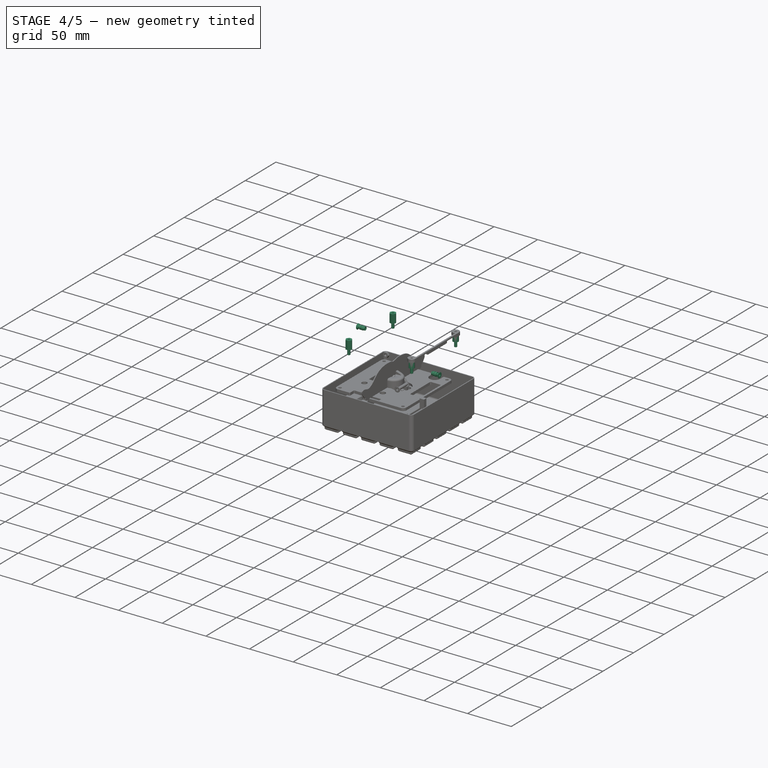
[diagram: stage 4 of 5 — iso view after this stage's code; geometry added in this stage tinted green]
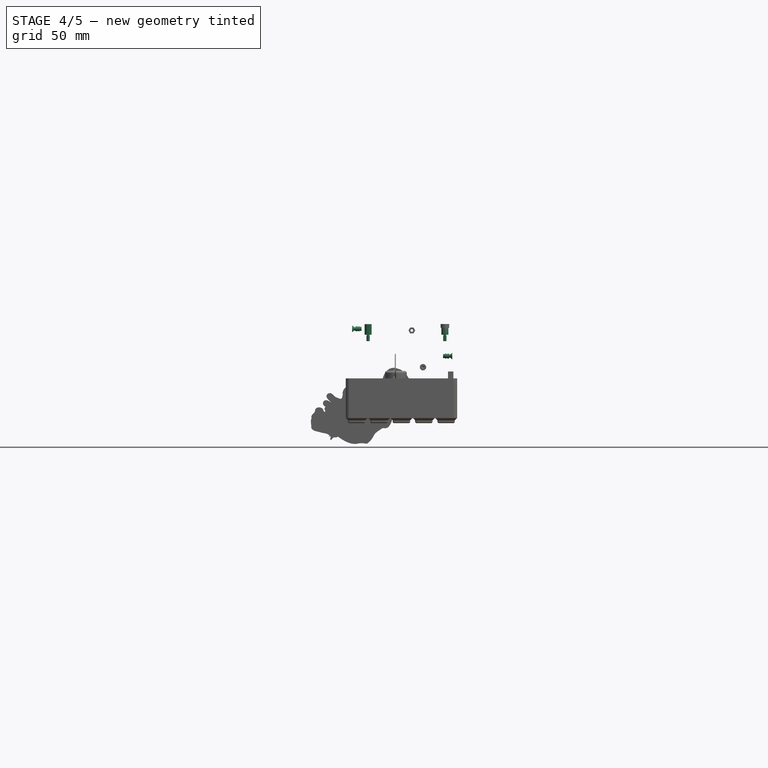
[diagram: stage 4 of 5 — front view after this stage's code; geometry added in this stage tinted green]
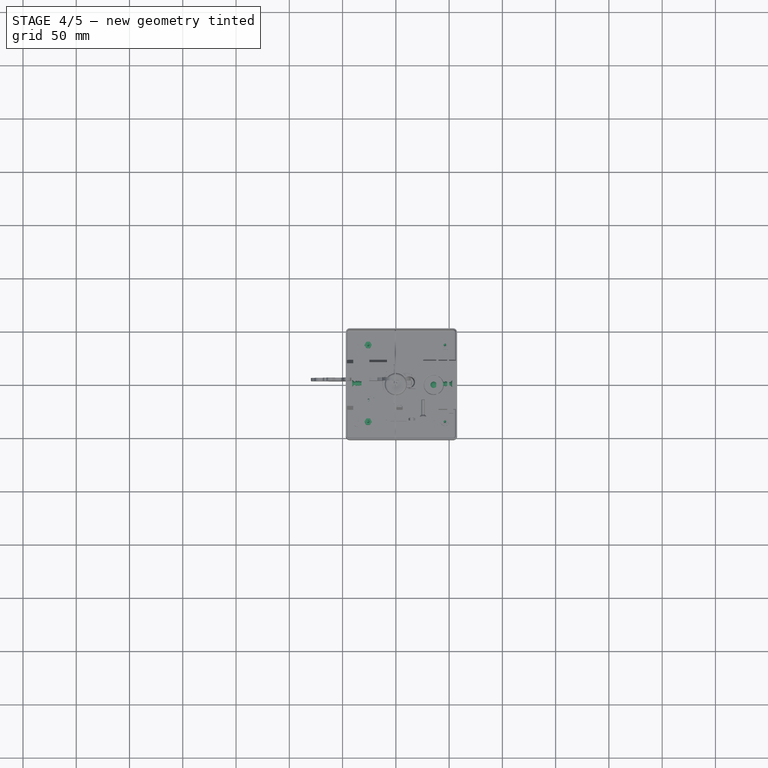
[diagram: stage 4 of 5 — top view after this stage's code; geometry added in this stage tinted green]
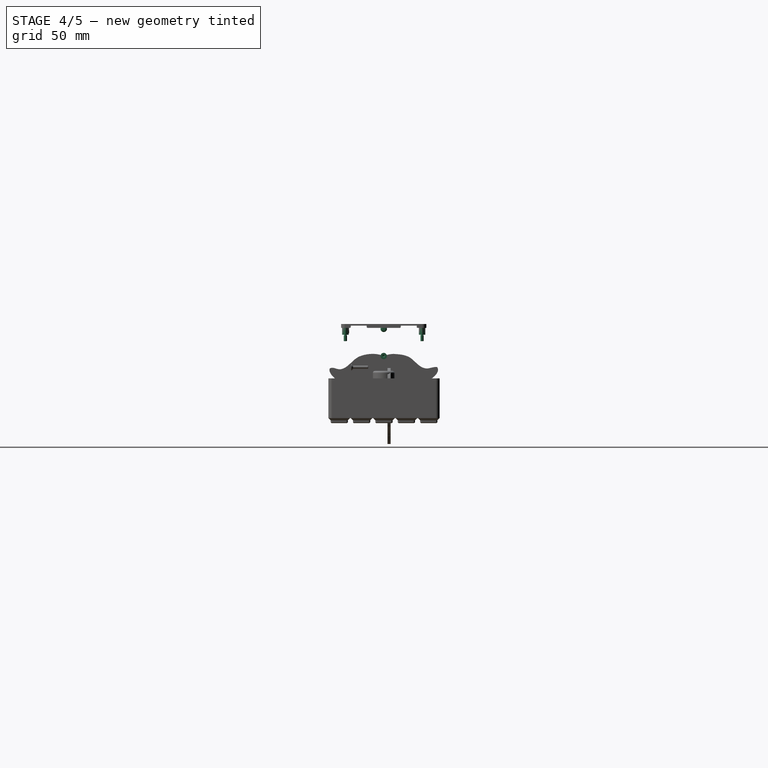
[diagram: stage 4 of 5 — right view after this stage's code; geometry added in this stage tinted green]
FEATURE [App::Link] Link  label="EnsembleMoteurRoue-Droit"
  AutoLinkLabel = true
  AutoPlacement = true
  LinkPlacement = pos=(0,0,0) rot=(0,0,1;3.14159rad)
  LinkedObject = -> Part001
  Placement = pos=(0,0,0) rot=(0,0,1;3.14159rad)
  SyncGroupVisibility = false
  TreeRank = 35
  _LinkVersion = 1
FEATURE [Part::Feature] Solid002  label="mg90s-Gauche"
  FixShape = 1
  InvalidShape = false
  Placement = pos=(33.9,-6.8,27) rot=(1,0,0;1.5708rad)
  TreeRank = 41
  ValidateShape = false
  shape: bbox 32 x 33 x 12 mm, 448 faces (baked)
FEATURE [Part::Feature] Component___Canon_LP_E6__Canon_5D_  label="CanonLPE6-Canon"
  FixShape = 1
  InvalidShape = false
  Placement = pos=(30.1,-28.5,-2.3) rot=(0,1,0;1.5708rad)
  TreeRank = 40
  ValidateShape = false
  shape: bbox 21.37 x 57 x 38.51 mm, 74 faces, 0 solids (baked)
FEATURE [Sketcher::SketchObject] Sketch104
  ArcFitTolerance = 1e-06
  AttachmentSupport = -> [YZ_Plane033]
  ExternalBSplineMaxDegree = 5
  ExternalBSplineTolerance = 0.0001
  FixShape = 1
  FullyConstrained = true
  InternalTolerance = 1e-06
  InvalidShape = false
  MakeInternals = false
  MapMode = 5
  Placement = pos=(0,0,0) rot=(0.57735,0.57735,0.57735;2.0944rad)
  Support = -> [YZ_Plane033]
  TreeRank = 943
  ValidateShape = false
  sketch-geometry (6):
    g0: LineSegment StartX=0 StartY=0 StartZ=0 EndX=0 EndY=7.5 EndZ=0
    g1: ArcOfCircle CenterX=10.8587 CenterY=0 CenterZ=0 NormalX=0 NormalY=0 NormalZ=1 AngleXU=0 Radius=15.2587 StartAngle=2.70988 EndAngle=3.14159
    g2: LineSegment StartX=-3 StartY=6.3847 StartZ=0 EndX=-0.8 EndY=6.5 EndZ=0
    g3: LineSegment StartX=-0.8 StartY=6.5 StartZ=0 EndX=-0.5 EndY=7.5 EndZ=0
    g4: LineSegment StartX=-0.5 StartY=7.5 StartZ=0 EndX=0 EndY=7.5 EndZ=0
    g5: LineSegment StartX=-4.4 StartY=0 StartZ=0 EndX=0 EndY=0 EndZ=0
  constraints (18):
    c: Coincident(g0,g-1)
    c: PointOnObject(g0,g-2)
    c: DistanceY(g0,g0) = 7.5
    c: PointOnObject(g1,g-1)
    c: PointOnObject(g1,g-1)
    c: Coincident(g2,g1)
    c: Coincident(g3,g2)
    c: Coincident(g4,g3)
    c: Coincident(g4,g0)
    c: Horizontal(g4)
    c: DistanceX(g4,g4) = 0.5
    c: DistanceX(g2,g0) = 0.8
    c: DistanceY(g0,g2) = 6.5
    c: Angle(g-1,g2) = 0.0523599
    c: DistanceX(g1,g0) = 4.4
    c: DistanceX(g1,g0) = 3
    c: Coincident(g5,g1)
    c: Coincident(g5,g0)
FEATURE [PartDesign::Revolution] Revolution005
  AddSubType = 0
  Angle = 360
  Axis = (3e-16,1,-2e-16)
  Base = (0,0,0)
  ClaimChildren = false
  Fit = 0
  FitJoin = 0
  FixShape = 1
  InnerFit = 0
  InnerFitJoin = 0
  InvalidShape = false
  Linearize = true
  NewSolid = false
  Profile = -> Sketch104
  ReferenceAxis = -> Sketch104 [H_Axis]
  Refine = true
  Suppress = false
  TreeRank = 944
  ValidateShape = false
  _ProfileBasedVersion = 1
FEATURE [PartDesign::Fillet] Fillet055
  AddSubType = 0
  Base = -> Revolution005 [Edge1]
  BaseFeature = -> Revolution005
  FixShape = 1
  InvalidShape = false
  NewSolid = false
  Radius = 1
  Refine = true
  SupportTransform = false
  Suppress = false
  TreeRank = 945
  UseAllEdges = false
  ValidateShape = false
FEATURE [PartDesign::Fillet] Fillet056
  AddSubType = 0
  Base = -> Fillet055 [Edge7]
  BaseFeature = -> Fillet055
  FixShape = 1
  InvalidShape = false
  NewSolid = false
  Radius = 0.4
  Refine = true
  SupportTransform = false
  Suppress = false
  TreeRank = 946
  UseAllEdges = false
  ValidateShape = false
FEATURE [PartDesign::Fillet] Fillet057
  AddSubType = 0
  Base = -> Fillet056 [Edge9]
  BaseFeature = -> Fillet056
  FixShape = 1
  InvalidShape = false
  NewSolid = false
  Radius = 0.4
  Refine = true
  SupportTransform = false
  Suppress = false
  TreeRank = 947
  UseAllEdges = false
  ValidateShape = false
FEATURE [PartDesign::Pocket] Pocket054
  AddSubType = 1
  AlongSketchNormal = false
  AutoTaperInnerAngle = true
  BaseFeature = -> Fillet057
  CheckUpToFaceLimits = true
  ClaimChildren = false
  Direction = (-3e-16,-1,2e-16)
  Fit = 0
  FitJoin = 0
  FixShape = 1
  InnerFit = 0
  InnerFitJoin = 0
  InvalidShape = false
  Length = 0.2
  Length2 = 10
  Linearize = true
  NewSolid = false
  Profile = -> Fillet057 [Face6]
  Refine = true
  Suppress = false
  TaperInnerAngle = 0
  TaperInnerAngleRev = 0
  TreeRank = 963
  Type = 0
  ValidateShape = false
  _ProfileBasedVersion = 1
  _Version = 1
FEATURE [PartDesign::Body] Body027  label="Transparent"
  AutoGroupSolids = false
  ClaimAllChildren = false
  ExportMode = 0
  FixShape = 1
  Group = -> [Sketch104,Revolution005,Fillet055,Fillet056,Fillet057,Pocket054]
  InvalidShape = false
  Origin = -> Origin039
  SingleSolid = true
  Tip = -> Pocket054
  TreeRank = 990
  ValidateShape = false
  _ExportChildren = -> [Revolution005,Fillet055,Fillet056,Fillet057,Pocket054]
  _GroupVersion = 1
FEATURE [Sketcher::SketchObject] Sketch105
  ArcFitTolerance = 1e-06
  AttachmentSupport = -> [XZ_Plane035]
  ExternalBSplineMaxDegree = 5
  ExternalBSplineTolerance = 0.0001
  FixShape = 1
  FullyConstrained = true
  InternalTolerance = 1e-06
  InvalidShape = false
  MakeInternals = false
  MapMode = 5
  Placement = pos=(0,0,0) rot=(1,0,0;1.5708rad)
  Support = -> [XZ_Plane035]
  TreeRank = 974
  ValidateShape = false
  sketch-geometry (1):
    g0: Circle CenterX=0 CenterY=0 CenterZ=0 NormalX=0 NormalY=0 NormalZ=1 AngleXU=0 Radius=7.5
  constraints (2):
    c: Coincident(g0,g-1)
    c: Diameter(g0) = 15
FEATURE [PartDesign::Pad] Pad043
  AddSubType = 0
  AlongSketchNormal = false
  AutoTaperInnerAngle = true
  CheckUpToFaceLimits = true
  ClaimChildren = false
  Direction = (0,-1,-2e-16)
  Fit = 0
  FitJoin = 0
  FixShape = 1
  InnerFit = 0
  InnerFitJoin = 0
  InvalidShape = false
  Length = 0.2
  Length2 = 10
  Linearize = true
  NewSolid = false
  Profile = -> Sketch105
  ReferenceAxis = -> Sketch105 [N_Axis]
  Refine = true
  Suppress = false
  TaperInnerAngle = 0
  TaperInnerAngleRev = 0
  TreeRank = 975
  Type = 0
  ValidateShape = false
  _ProfileBasedVersion = 1
FEATURE [PartDesign::Body] Body028  label="SupportColor"
  AutoGroupSolids = false
  ClaimAllChildren = false
  ExportMode = 0
  FixShape = 1
  Group = -> [Sketch105,Pad043]
  InvalidShape = false
  Origin = -> Origin041
  SingleSolid = true
  Tip = -> Pad043
  TreeRank = 991
  ValidateShape = false
  _ExportChildren = -> [Pad043]
  _GroupVersion = 1
FEATURE [Sketcher::SketchObject] Sketch106
  ArcFitTolerance = 1e-06
  AttachmentSupport = -> [XZ_Plane036]
  ExternalBSplineMaxDegree = 5
  ExternalBSplineTolerance = 0.0001
  FixShape = 1
  FullyConstrained = true
  InternalTolerance = 1e-06
  InvalidShape = false
  MakeInternals = false
  MapMode = 5
  Placement = pos=(0,0,0) rot=(1,0,0;1.5708rad)
  Support = -> [XZ_Plane036]
  TreeRank = 987
  ValidateShape = false
  sketch-geometry (1):
    g0: Circle CenterX=0 CenterY=-1.5 CenterZ=0 NormalX=0 NormalY=0 NormalZ=1 AngleXU=0 Radius=5
  constraints (3):
    c: PointOnObject(g0,g-2)
    c: Diameter(g0) = 10
    c: DistanceY(g0,g-1) = 1.5
FEATURE [PartDesign::Pad] Pad044
  AddSubType = 0
  AlongSketchNormal = false
  AutoTaperInnerAngle = true
  CheckUpToFaceLimits = true
  ClaimChildren = false
  Direction = (0,-1,-2e-16)
  Fit = 0
  FitJoin = 0
  FixShape = 1
  InnerFit = 0
  InnerFitJoin = 0
  InvalidShape = false
  Length = 0.8
  Length2 = 10
  Linearize = true
  NewSolid = false
  Profile = -> Sketch106
  ReferenceAxis = -> Sketch106 [N_Axis]
  Refine = true
  Suppress = false
  TaperInnerAngle = 0
  TaperInnerAngleRev = 0
  TreeRank = 988
  Type = 0
  ValidateShape = false
  _ProfileBasedVersion = 1
FEATURE [PartDesign::Fillet] Fillet058
  AddSubType = 0
  Base = -> Pad044 [Edge3]
  BaseFeature = -> Pad044
  FixShape = 1
  InvalidShape = false
  NewSolid = false
  Radius = 0.7
  Refine = true
  SupportTransform = false
  Suppress = false
  TreeRank = 989
  UseAllEdges = false
  ValidateShape = false
FEATURE [PartDesign::Body] Body034  label="Proto-Coque"
  AutoGroupSolids = false
  ClaimAllChildren = false
  ExportMode = 0
  FixShape = 1
  Group = -> [Sketch117,Pad048,Mirrored001,Sketch118,Pocket059,Sketch119,Import,Pad049,Mirrored002,Sketch120,Pocket060,Mirrored003,Sketch121,Pocket061,Mirrored004,Chamfer004]
  InvalidShape = false
  Origin = -> Origin049
  Placement = pos=(-30,0,0) rot=(0,0,1;0rad)
  SingleSolid = true
  Tip = -> Chamfer004
  TreeRank = 1175
  ValidateShape = false
  _ExportChildren = -> [Pad048,Mirrored001,Pocket059,Import,Pad049,Mirrored002,Pocket060,Mirrored003,Pocket061,Mirrored004,Chamfer004]
  _GroupVersion = 1
FEATURE [Sketcher::SketchObject] Sketch122
  ArcFitTolerance = 1e-06
  AttachmentSupport = -> [XY_Plane045]
  ExternalBSplineMaxDegree = 5
  ExternalBSplineTolerance = 0.0001
  FixShape = 1
  FullyConstrained = true
  InternalTolerance = 1e-06
  InvalidShape = false
  MakeInternals = false
  MapMode = 5
  Support = -> [XY_Plane045]
  TreeRank = 1202
  ValidateShape = false
  sketch-geometry (5):
    g0: LineSegment StartX=30.1 StartY=-20.6 StartZ=0 EndX=30.1 EndY=20.6 EndZ=0
    g1: LineSegment StartX=30.1 StartY=20.6 StartZ=0 EndX=21.1 EndY=20.6 EndZ=0
    g2: LineSegment StartX=21.1 StartY=20.6 StartZ=0 EndX=21.1 EndY=-20.6 EndZ=0
    g3: LineSegment StartX=21.1 StartY=-20.6 StartZ=0 EndX=30.1 EndY=-20.6 EndZ=0
    g4: GeomPoint [constr] X=25.6 Y=0 Z=0
  constraints (13):
    c: Coincident(g0,g1)
    c: Coincident(g1,g2)
    c: Coincident(g2,g3)
    c: Coincident(g3,g0)
    c: Horizontal(g1)
    c: Horizontal(g3)
    c: Vertical(g0)
    c: Vertical(g2)
    c: Symmetric(g1,g0,g4)
    c: PointOnObject(g4,g-1)
    c: DistanceX(g1,g1) = 9
    c: DistanceY(g2,g2) = 41.2
    c: DistanceX(g-1,g1) = 21.1
FEATURE [PartDesign::Pad] Pad050
  AddSubType = 0
  AlongSketchNormal = false
  AutoTaperInnerAngle = true
  CheckUpToFaceLimits = true
  ClaimChildren = false
  Direction = (0,0,1)
  Fit = 0
  FitJoin = 0
  FixShape = 1
  InnerFit = 0
  InnerFitJoin = 0
  InvalidShape = false
  Length = 42
  Length2 = 10
  Linearize = true
  Midplane = true
  NewSolid = false
  Profile = -> Sketch122
  ReferenceAxis = -> Sketch122 [N_Axis]
  Refine = true
  Suppress = false
  TaperInnerAngle = 0
  TaperInnerAngleRev = 0
  TreeRank = 1203
  Type = 0
  ValidateShape = true
  _ProfileBasedVersion = 1
FEATURE [PartDesign::ShapeBinder] ShapeBinder001
  FixShape = 1
  InvalidShape = false
  Support = -> [Chamfer001]
  TraceSupport = false
  TreeRank = 1204
  ValidateShape = false
FEATURE [Sketcher::SketchObject] Sketch123
  ArcFitTolerance = 1e-06
  AttachmentSupport = -> [Pad050]
  ExternalBSplineMaxDegree = 5
  ExternalBSplineTolerance = 0.0001
  ExternalGeometry = -> [ShapeBinder001]
  FixShape = 1
  FullyConstrained = true
  InternalTolerance = 1e-06
  InvalidShape = false
  MakeInternals = false
  MapMode = 5
  Placement = pos=(0,-20.6,0) rot=(1,0,0;1.5708rad)
  Support = -> [Pad050]
  TreeRank = 1205
  ValidateShape = false
  sketch-geometry (2):
    g0: Circle CenterX=25.5 CenterY=15.5 CenterZ=0 NormalX=0 NormalY=0 NormalZ=1 AngleXU=0 Radius=2.1
    g1: Circle CenterX=25.5 CenterY=-15.5 CenterZ=0 NormalX=0 NormalY=0 NormalZ=1 AngleXU=0 Radius=2.1
  constraints (4):
    c: Coincident(g0,g-3)
    c: Coincident(g1,g-4)
    c: Equal(g1,g0)
    c: Diameter(g1) = 4.2
FEATURE [PartDesign::Pocket] Pocket062
  AddSubType = 1
  AlongSketchNormal = false
  AutoTaperInnerAngle = true
  BaseFeature = -> Pad050
  CheckUpToFaceLimits = true
  ClaimChildren = false
  Direction = (0,1,-2e-16)
  Fit = 0
  FitJoin = 0
  FixShape = 1
  InnerFit = 0
  InnerFitJoin = 0
  InvalidShape = false
  Length = 8
  Length2 = 10
  Linearize = true
  NewSolid = false
  Profile = -> Sketch123
  ReferenceAxis = -> Sketch123 [N_Axis]
  Refine = true
  Suppress = false
  TaperInnerAngle = 0
  TaperInnerAngleRev = 0
  TreeRank = 1206
  Type = 0
  ValidateShape = true
  _ProfileBasedVersion = 1
  _Version = 1
FEATURE [PartDesign::Mirrored] Mirrored005
  AddSubType = 0
  BaseFeature = -> Pocket062
  CopyShape = false
  FixShape = 1
  InvalidShape = false
  MirrorPlane = -> XZ_Plane045
  NewSolid = false
  OriginalSubs = -> [Pocket062]
  Originals = -> [Pocket062]
  ParallelTransform = true
  Refine = true
  SubTransform = true
  Suppress = false
  TreeRank = 1207
  ValidateShape = true
  _Version = 4
FEATURE [Sketcher::SketchObject] Sketch124
  ArcFitTolerance = 1e-06
  AttachmentSupport = -> [Mirrored005]
  ExternalBSplineMaxDegree = 5
  ExternalBSplineTolerance = 0.0001
  FixShape = 1
  FullyConstrained = true
  InternalTolerance = 1e-06
  InvalidShape = false
  MakeInternals = false
  MapMode = 5
  Placement = pos=(21.1,0,0) rot=(0.57735,-0.57735,-0.57735;2.0944rad)
  Support = -> [Mirrored005]
  TreeRank = 1208
  ValidateShape = false
FEATURE [App::VRMLObject] MainBoard_PAMI_2026  label="MainBoard-PAMI-2025"
  TreeRank = 1209
FEATURE [Sketcher::SketchObject] Sketch125
  ArcFitTolerance = 1e-06
  AttachmentSupport = -> [XZ_Plane045]
  ExternalBSplineMaxDegree = 5
  ExternalBSplineTolerance = 0.0001
  ExternalGeometry = -> [Mirrored005]
  FullyConstrained = true
  InternalTolerance = 1e-06
  InvalidShape = false
  MakeInternals = true
  MapMode = 5
  Placement = pos=(0,0,0) rot=(1,0,0;1.5708rad)
  Support = -> [XZ_Plane045]
  TreeRank = 1210
  ValidateShape = false
  sketch-geometry (4):
    g0: LineSegment StartX=21.1 StartY=21 StartZ=0 EndX=50 EndY=21 EndZ=0
    g1: LineSegment StartX=50 StartY=21 StartZ=0 EndX=50 EndY=31 EndZ=0
    g2: LineSegment StartX=50 StartY=31 StartZ=0 EndX=21.1 EndY=31 EndZ=0
    g3: LineSegment StartX=21.1 StartY=31 StartZ=0 EndX=21.1 EndY=21 EndZ=0
  constraints (11):
    c: Coincident(g0,g1)
    c: Coincident(g1,g2)
    c: Coincident(g2,g3)
    c: Coincident(g3,g0)
    c: Horizontal(g0)
    c: Horizontal(g2)
    c: Vertical(g1)
    c: Vertical(g3)
    c: Coincident(g0,g-3)
    c: DistanceY(g3,g3) = 10
    c: DistanceX(g-1,g1) = 50
FEATURE [PartDesign::Pad] Pad051
  AddSubType = 0
  AlongSketchNormal = false
  AutoTaperInnerAngle = true
  BaseFeature = -> Mirrored005
  CheckUpToFaceLimits = true
  ClaimChildren = false
  Direction = (0,-1,-2e-16)
  Fit = 0
  FitJoin = 0
  InnerFit = 0
  InnerFitJoin = 0
  InvalidShape = false
  Length = 13
  Length2 = 10
  Linearize = true
  Midplane = true
  NewSolid = false
  Profile = -> Sketch125
  ReferenceAxis = -> Sketch125 [N_Axis]
  Refine = true
  Suppress = false
  TaperInnerAngle = 0
  TaperInnerAngleRev = 0
  TreeRank = 1211
  Type = 0
  ValidateShape = true
  _ProfileBasedVersion = 1
FEATURE [Sketcher::SketchObject] Sketch126
  ArcFitTolerance = 1e-06
  AttachmentSupport = -> [Pad051]
  ExternalBSplineMaxDegree = 5
  ExternalBSplineTolerance = 0.0001
  ExternalGeometry = -> [Pad051]
  FullyConstrained = true
  InternalTolerance = 1e-06
  InvalidShape = false
  MakeInternals = true
  MapMode = 5
  Placement = pos=(50,0,0) rot=(0.57735,0.57735,0.57735;2.0944rad)
  Support = -> [Pad051]
  TreeRank = 1212
  ValidateShape = false
  sketch-geometry (1):
    g0: Circle CenterX=-6.5e-15 CenterY=26 CenterZ=0 NormalX=0 NormalY=0 NormalZ=1 AngleXU=0 Radius=2.1
  constraints (2):
    c: Symmetric(g-4,g-3,g0)
    c: Diameter(g0) = 4.2
FEATURE [PartDesign::Pocket] Pocket063
  AddSubType = 1
  AlongSketchNormal = false
  AutoTaperInnerAngle = true
  BaseFeature = -> Pad051
  CheckUpToFaceLimits = true
  ClaimChildren = false
  Direction = (-1,0,0)
  Fit = 0
  FitJoin = 0
  InnerFit = 0
  InnerFitJoin = 0
  InvalidShape = false
  Length = 10
  Length2 = 10
  Linearize = true
  NewSolid = false
  Profile = -> Sketch126
  ReferenceAxis = -> Sketch126 [N_Axis]
  Refine = true
  Suppress = false
  TaperInnerAngle = 0
  TaperInnerAngleRev = 0
  TreeRank = 1213
  Type = 0
  ValidateShape = true
  _ProfileBasedVersion = 1
  _Version = 1
FEATURE [Sketcher::SketchObject] Sketch127
  ArcFitTolerance = 1e-06
  AttachmentSupport = -> [XZ_Plane045]
  ExternalBSplineMaxDegree = 5
  ExternalBSplineTolerance = 0.0001
  ExternalGeometry = -> [Pocket063]
  FullyConstrained = true
  InternalTolerance = 1e-06
  InvalidShape = false
  MakeInternals = true
  MapMode = 5
  Placement = pos=(0,0,0) rot=(1,0,0;1.5708rad)
  Support = -> [XZ_Plane045]
  TreeRank = 1214
  ValidateShape = false
  sketch-geometry (4):
    g0: LineSegment StartX=50 StartY=21 StartZ=0 EndX=30.1 EndY=21 EndZ=0
    g1: LineSegment StartX=30.1 StartY=21 StartZ=0 EndX=30.1 EndY=13 EndZ=0
    g2: LineSegment StartX=30.1 StartY=13 StartZ=0 EndX=50 EndY=13 EndZ=0
    g3: LineSegment StartX=50 StartY=13 StartZ=0 EndX=50 EndY=21 EndZ=0
  constraints (10):
    c: Coincident(g-3,g0)
    c: Coincident(g0,g-3)
    c: Coincident(g0,g1)
    c: Vertical(g1)
    c: Coincident(g1,g2)
    c: Horizontal(g2)
    c: Coincident(g2,g3)
    c: Coincident(g3,g0)
    c: Vertical(g3)
    c: DistanceY(g3,g3) = 8
FEATURE [PartDesign::Pad] Pad052
  AddSubType = 0
  AlongSketchNormal = false
  AutoTaperInnerAngle = true
  BaseFeature = -> Pocket063
  CheckUpToFaceLimits = true
  ClaimChildren = false
  Direction = (0,-1,-2e-16)
  Fit = 0
  FitJoin = 0
  InnerFit = 0
  InnerFitJoin = 0
  InvalidShape = false
  Length = 41.2
  Length2 = 10
  Linearize = true
  Midplane = true
  NewSolid = false
  Profile = -> Sketch127
  ReferenceAxis = -> Sketch127 [N_Axis]
  Refine = true
  Suppress = false
  TaperInnerAngle = 0
  TaperInnerAngleRev = 0
  TreeRank = 1215
  Type = 0
  ValidateShape = true
  _ProfileBasedVersion = 1
FEATURE [Part::SubShapeBinder] Import001  label="Import001(CanonLPE6-Canon)"
  BindCopyOnChange = 0
  BindMode = 0
  ClaimChildren = false
  Context = -> Part018 [Part013.Body035.Import001.]
  EdgeTolerance = 1e-06
  FillStyle = 0
  Fuse = false
  InvalidShape = false
  MakeFace = false
  MergeEdges = true
  OffsetFill = false
  OffsetIntersection = false
  OffsetJoinType = 0
  OffsetOpenResult = false
  Outline = false
  PartialLoad = false
  Relative = true
  SplitEdges = false
  Support = -> [Component___Canon_LP_E6__Canon_5D_]
  TightBound = false
  TreeRank = 1217
  ValidateShape = false
  _Version = 8
FEATURE [Sketcher::SketchObject] Sketch128
  ArcFitTolerance = 1e-06
  AttachmentSupport = -> [XZ_Plane045]
  ExternalBSplineMaxDegree = 5
  ExternalBSplineTolerance = 0.0001
  ExternalGeometry = -> [Pad052,Import001]
  FullyConstrained = true
  InternalTolerance = 1e-06
  InvalidShape = false
  MakeInternals = true
  MapMode = 5
  Placement = pos=(0,0,0) rot=(1,0,0;1.5708rad)
  Support = -> [XZ_Plane045]
  TreeRank = 1216
  ValidateShape = false
  sketch-geometry (10):
    g0: LineSegment StartX=21.1 StartY=-19 StartZ=0 EndX=30.1 EndY=-19 EndZ=0
    g1: LineSegment [constr] StartX=30.1 StartY=-19 StartZ=0 EndX=30.1 EndY=-27 EndZ=0
    g2: LineSegment StartX=30.1 StartY=-27 StartZ=0 EndX=21.1 EndY=-27 EndZ=0
    g3: LineSegment StartX=21.1 StartY=-27 StartZ=0 EndX=21.1 EndY=-19 EndZ=0
    g4: LineSegment StartX=30.1 StartY=-27 StartZ=0 EndX=50 EndY=-27 EndZ=0
    g5: LineSegment StartX=50 StartY=-27 StartZ=0 EndX=50 EndY=-17.6 EndZ=0
    g6: LineSegment StartX=50 StartY=-17.6 StartZ=0 EndX=30.1 EndY=-17.6 EndZ=0
    g7: LineSegment [constr] StartX=30.1 StartY=-17.6 StartZ=0 EndX=30.1 EndY=-27 EndZ=0
    g8: LineSegment [constr] StartX=50.6 StartY=-2.3 StartZ=0 EndX=21.1 EndY=-2.3 EndZ=0
    g9: LineSegment StartX=30.1 StartY=-19 StartZ=0 EndX=30.1 EndY=-17.6 EndZ=0
  constraints (28):
    c: Coincident(g0,g1)
    c: Coincident(g1,g2)
    c: Coincident(g2,g3)
    c: Coincident(g3,g0)
    c: Horizontal(g0)
    c: Horizontal(g2)
    c: Vertical(g1)
    c: Vertical(g3)
    c: PointOnObject(g0,g-4)
    c: DistanceY(g2,g-4) = 6
    c: DistanceY(g3,g3) = 8
    c: PointOnObject(g-3,g1)
    c: Coincident(g4,g5)
    c: Coincident(g5,g6)
    c: Coincident(g6,g7)
    c: Coincident(g7,g4)
    c: Horizontal(g4)
    c: Horizontal(g6)
    c: Vertical(g5)
    c: Vertical(g7)
    c: Coincident(g4,g1)
    c: DistanceY(g-5,g-5) = 8
    c: PointOnObject(g-5,g5)
    c: Symmetric(g-6,g-6,g8)
    c: Symmetric(g5,g-5,g8)
    c: PointOnObject(g8,g-4)
    c: Coincident(g9,g0)
    c: Coincident(g9,g6)
FEATURE [PartDesign::Pad] Pad053
  AddSubType = 0
  AlongSketchNormal = false
  AutoTaperInnerAngle = true
  BaseFeature = -> Pad052
  CheckUpToFaceLimits = true
  ClaimChildren = false
  Direction = (0,-1,-2e-16)
  Fit = 0
  FitJoin = 0
  InnerFit = 0
  InnerFitJoin = 0
  InvalidShape = false
  Length = 41.2
  Length2 = 10
  Linearize = true
  Midplane = true
  NewSolid = false
  Profile = -> Sketch128
  ReferenceAxis = -> Sketch128 [N_Axis]
  Refine = true
  Suppress = false
  TaperInnerAngle = 0
  TaperInnerAngleRev = 0
  TreeRank = 1218
  Type = 0
  ValidateShape = true
  _ProfileBasedVersion = 1
FEATURE [Sketcher::SketchObject] Sketch129
  ArcFitTolerance = 1e-06
  AttachmentSupport = -> [XZ_Plane045]
  ExternalBSplineMaxDegree = 5
  ExternalBSplineTolerance = 0.0001
  ExternalGeometry = -> [Pad053]
  FullyConstrained = true
  InternalTolerance = 1e-06
  InvalidShape = false
  MakeInternals = true
  MapMode = 5
  Placement = pos=(0,0,0) rot=(1,0,0;1.5708rad)
  Support = -> [XZ_Plane045]
  TreeRank = 1219
  ValidateShape = false
  sketch-geometry (7):
    g0: LineSegment StartX=30.1 StartY=-21.8 StartZ=0 EndX=30.1 EndY=17.2 EndZ=0
    g1: LineSegment StartX=30.1 StartY=17.2 StartZ=0 EndX=41.65 EndY=17.2 EndZ=0
    g2: LineSegment StartX=50.9 StartY=7.95 StartZ=0 EndX=50.9 EndY=-12.55 EndZ=0
    g3: LineSegment StartX=30.1 StartY=-21.8 StartZ=0 EndX=41.65 EndY=-21.8 EndZ=0
    g4: ArcOfCircle CenterX=41.65 CenterY=-12.55 CenterZ=0 NormalX=0 NormalY=0 NormalZ=1 AngleXU=0 Radius=9.25 StartAngle=4.71239 EndAngle=6.28319
    g5: ArcOfCircle CenterX=41.65 CenterY=7.95 CenterZ=0 NormalX=0 NormalY=0 NormalZ=1 AngleXU=0 Radius=9.25 StartAngle=2e-16 EndAngle=1.5708
    g6: LineSegment [constr] StartX=30.1 StartY=-2.3 StartZ=0 EndX=50.9 EndY=-2.3 EndZ=0
  constraints (19):
    c: Vertical(g0)
    c: Coincident(g0,g1)
    c: Horizontal(g1)
    c: Vertical(g2)
    c: Coincident(g0,g3)
    c: Horizontal(g3)
    c: Equal(g4,g5)
    c: Tangent(g5,g2) = 1.5708
    c: Tangent(g5,g1) = 1.5708
    c: Tangent(g4,g2) = 1.5708
    c: Tangent(g4,g3) = -1.5708
    c: PointOnObject(g6,g2)
    c: Horizontal(g6)
    c: Symmetric(g0,g0,g6)
    c: DistanceY(g0,g0) = 39
    c: DistanceY(g6,g-1) = 2.3
    c: Radius(g5) = 9.25
    c: DistanceX(g6,g6) = 20.8
    c: PointOnObject(g-3,g0)
FEATURE [PartDesign::Pocket] Pocket064
  AddSubType = 1
  AlongSketchNormal = false
  AutoTaperInnerAngle = true
  BaseFeature = -> Pad053
  CheckUpToFaceLimits = true
  ClaimChildren = false
  Direction = (0,1,2e-16)
  Fit = 0
  FitJoin = 0
  InnerFit = 0
  InnerFitJoin = 0
  InvalidShape = false
  Length = 5
  Length2 = 10
  Linearize = true
  Midplane = true
  NewSolid = false
  Profile = -> Sketch129
  ReferenceAxis = -> Sketch129 [N_Axis]
  Refine = true
  Suppress = false
  TaperInnerAngle = 0
  TaperInnerAngleRev = 0
  TreeRank = 1220
  Type = 1
  ValidateShape = true
  _ProfileBasedVersion = 1
  _Version = 1
FEATURE [Sketcher::SketchObject] Sketch130
  ArcFitTolerance = 1e-06
  AttachmentSupport = -> [Pocket064]
  ExternalBSplineMaxDegree = 5
  ExternalBSplineTolerance = 0.0001
  ExternalGeometry = -> [Import001,Pocket064]
  FullyConstrained = true
  InternalTolerance = 1e-06
  InvalidShape = false
  MakeInternals = true
  MapMode = 5
  Placement = pos=(0,-20.6,0) rot=(1,0,0;1.5708rad)
  Support = -> [Pocket064]
  TreeRank = 1221
  ValidateShape = false
  sketch-geometry (8):
    g0: LineSegment StartX=32.65 StartY=17.2 StartZ=0 EndX=32.65 EndY=14.3 EndZ=0
    g1: LineSegment StartX=32.65 StartY=14.3 StartZ=0 EndX=33.3345 EndY=14.3 EndZ=0
    g2: LineSegment StartX=33.3345 StartY=14.3 StartZ=0 EndX=35.0088 EndY=17.2 EndZ=0
    g3: LineSegment StartX=35.0088 StartY=17.2 StartZ=0 EndX=32.65 EndY=17.2 EndZ=0
    g4: LineSegment StartX=32.65 StartY=-21.8 StartZ=0 EndX=32.65 EndY=-18.9 EndZ=0
    g5: LineSegment StartX=32.65 StartY=-18.9 StartZ=0 EndX=34.3345 EndY=-18.9 EndZ=0
    g6: LineSegment StartX=34.3345 StartY=-18.9 StartZ=0 EndX=36.0088 EndY=-21.8 EndZ=0
    g7: LineSegment StartX=36.0088 StartY=-21.8 StartZ=0 EndX=32.65 EndY=-21.8 EndZ=0
  constraints (24):
    c: PointOnObject(g0,g-9)
    c: Vertical(g0)
    c: Coincident(g0,g1)
    c: Horizontal(g1)
    c: Coincident(g1,g2)
    c: PointOnObject(g2,g-9)
    c: Coincident(g2,g3)
    c: Coincident(g3,g0)
    c: PointOnObject(g4,g-10)
    c: Vertical(g4)
    c: Coincident(g4,g5)
    c: Horizontal(g5)
    c: Coincident(g5,g6)
    c: PointOnObject(g6,g-10)
    c: Coincident(g6,g7)
    c: Coincident(g7,g4)
    c: DistanceX(g-6,g4) = 0.2
    c: DistanceY(g4,g-8) = 0.2
    c: Parallel(g6,g-7)
    c: Distance(g5,g-7) = 0.2
    c: Distance(g-4,g2) = 0.2
    c: Parallel(g2,g-4)
    c: DistanceY(g-4,g1) = 0.2
    c: DistanceX(g-5,g0) = 0.2
FEATURE [PartDesign::Pad] Pad054
  AddSubType = 0
  AlongSketchNormal = false
  AutoTaperInnerAngle = true
  BaseFeature = -> Pocket064
  CheckUpToFaceLimits = true
  ClaimChildren = false
  Direction = (0,-1,2e-16)
  Fit = 0
  FitJoin = 0
  InnerFit = 0
  InnerFitJoin = 0
  InvalidShape = false
  Length = 18
  Length2 = 10
  Linearize = true
  NewSolid = false
  Profile = -> Sketch130
  ReferenceAxis = -> Sketch130 [N_Axis]
  Refine = true
  Reversed = true
  Suppress = false
  TaperInnerAngle = 0
  TaperInnerAngleRev = 0
  TreeRank = 1222
  Type = 0
  ValidateShape = true
  _ProfileBasedVersion = 1
FEATURE [PartDesign::Draft] Draft
  AddSubType = 0
  Angle = 60
  Base = -> Pad054 [Face21]
  BaseFeature = -> Pad054
  InvalidShape = false
  NeutralPlane = -> Pad054 [Face12]
  NewSolid = false
  Refine = true
  Reversed = true
  SupportTransform = false
  Suppress = false
  TreeRank = 1223
  ValidateShape = true
FEATURE [PartDesign::Draft] Draft001
  AddSubType = 0
  Angle = 60
  Base = -> Draft [Face24]
  BaseFeature = -> Draft
  InvalidShape = false
  NeutralPlane = -> Draft [Face14]
  NewSolid = false
  Refine = true
  SupportTransform = false
  Suppress = false
  TreeRank = 1224
  ValidateShape = true
FEATURE [PartDesign::Fillet] Fillet061
  AddSubType = 0
  Base = -> Draft001 [Edge67,Edge74]
  BaseFeature = -> Draft001
  InvalidShape = false
  NewSolid = false
  Radius = 10
  Refine = true
  SupportTransform = false
  Suppress = false
  TreeRank = 1225
  UseAllEdges = false
  ValidateShape = true
FEATURE [PartDesign::Chamfer] Chamfer005
  AddSubType = 0
  Angle = 45
  Base = -> Fillet061 [Edge45,Edge38]
  BaseFeature = -> Fillet061
  ChamferType = 0
  FlipDirection = false
  InvalidShape = false
  NewSolid = false
  Refine = true
  Size = 4
  Size2 = 1
  SupportTransform = false
  Suppress = false
  TreeRank = 1226
  UseAllEdges = false
  ValidateShape = true
FEATURE [PartDesign::Chamfer] Chamfer006
  AddSubType = 0
  Angle = 45
  Base = -> Chamfer005 [Edge23,Edge24,Edge87,Edge88,Edge44]
  BaseFeature = -> Chamfer005
  ChamferType = 0
  FlipDirection = false
  InvalidShape = false
  NewSolid = false
  Refine = true
  Size = 0.5
  Size2 = 1
  SupportTransform = false
  Suppress = false
  TreeRank = 1227
  UseAllEdges = false
  ValidateShape = true
FEATURE [Part::FeaturePython] Insert010  label="M3x5.74-Insérer005"  # WARN: FeaturePython — macro-defined, semantics opaque (R4)
  BaseObject = -> Body035 [Chamfer005.Edge44]
  Diameter = 3
  ExternalDiam = 4.55
  InvalidShape = false
  Invert = false
  LeftHanded = false
  Length = 5.74
  MatchOuter = false
  OffsetAngle = 0
  Placement = pos=(50,-6.5e-15,26) rot=(0,1,0;1.5708rad)
  Thread = false
  TreeRank = 1237
  Type = 0
  ValidateShape = false
FEATURE [PartDesign::Chamfer] Chamfer007
  AddSubType = 0
  Angle = 45
  Base = -> Chamfer006 [Edge93,Edge92]
  BaseFeature = -> Chamfer006
  ChamferType = 0
  FlipDirection = false
  InvalidShape = false
  NewSolid = false
  Refine = true
  Size = 1
  Size2 = 1
  SupportTransform = false
  Suppress = false
  TreeRank = 1238
  UseAllEdges = false
  ValidateShape = true
FEATURE [PartDesign::Chamfer] Chamfer008
  AddSubType = 0
  Angle = 45
  Base = -> Chamfer007 [Edge62,Edge16,Edge10,Edge3]
  BaseFeature = -> Chamfer007
  ChamferType = 0
  FlipDirection = false
  InvalidShape = false
  NewSolid = false
  Refine = true
  Size = 1
  Size2 = 1
  SupportTransform = false
  Suppress = false
  TreeRank = 1239
  UseAllEdges = false
  ValidateShape = true
FEATURE [Part::FeaturePython] Standoff  label="M3x10x6-Standoff"  # WARN: FeaturePython — macro-defined, semantics opaque (R4)
  BaseObject = -> Body036 [Fillet066.Edge84]
  Diameter = 2
  InvalidShape = false
  Invert = false
  LeftHanded = false
  Length = 1
  LengthCustom = 10
  MatchOuter = false
  Offset = 4.8
  OffsetAngle = 0
  Placement = pos=(-26,-36,46) rot=(0,0,1;0rad)
  ScrewLength = 6
  Thread = false
  TreeRank = 1271
  Type = 0
  ValidateShape = false
  Width = 2
FEATURE [Part::FeaturePython] Standoff001  label="M3x10x6-Standoff025"  # WARN: FeaturePython — macro-defined, semantics opaque (R4)
  BaseObject = -> Body036 [Fillet066.Edge86]
  Diameter = 2
  InvalidShape = false
  Invert = false
  LeftHanded = false
  Length = 1
  LengthCustom = 10
  MatchOuter = false
  Offset = 4.8
  OffsetAngle = 0
  Placement = pos=(-26,36,46) rot=(0,0,1;0rad)
  ScrewLength = 6
  Thread = false
  TreeRank = 1272
  Type = 0
  ValidateShape = false
  Width = 2
FEATURE [Part::FeaturePython] Standoff002  label="M3x10x6-Standoff026"  # WARN: FeaturePython — macro-defined, semantics opaque (R4)
  BaseObject = -> Body036 [Fillet066.Edge85]
  Diameter = 2
  InvalidShape = false
  Invert = false
  LeftHanded = false
  Length = 1
  LengthCustom = 10
  MatchOuter = false
  Offset = 4.8
  OffsetAngle = 0
  Placement = pos=(46,-36,46) rot=(0,0,1;0rad)
  ScrewLength = 6
  Thread = false
  TreeRank = 1273
  Type = 0
  ValidateShape = false
  Width = 2
FEATURE [Part::FeaturePython] Standoff003  label="M3x10x6-Standoff027"  # WARN: FeaturePython — macro-defined, semantics opaque (R4)
  BaseObject = -> Body036 [Fillet066.Edge87]
  Diameter = 2
  InvalidShape = false
  Invert = false
  LeftHanded = false
  Length = 1
  LengthCustom = 10
  MatchOuter = false
  Offset = 4.8
  OffsetAngle = 0
  Placement = pos=(46,36,46) rot=(0,0,1;0rad)
  ScrewLength = 6
  Thread = false
  TreeRank = 1274
  Type = 0
  ValidateShape = false
  Width = 2
FEATURE [Part::FeaturePython] Screw017  label="M3x8-Screw"  # WARN: FeaturePython — macro-defined, semantics opaque (R4)
  BaseObject = -> Body036 [Fillet069.Edge69]
  Diameter = 3
  InvalidShape = false
  Invert = true
  LeftHanded = false
  Length = 0
  LengthCustom = 8
  MatchOuter = false
  OffsetAngle = 0
  Placement = pos=(53,1.87e-14,26) rot=(0,1,0;1.5708rad)
  Thread = false
  TreeRank = 1285
  Type = 50
  ValidateShape = false
FEATURE [Part::FeaturePython] Screw018  label="M3x8-Screw025"  # WARN: FeaturePython — macro-defined, semantics opaque (R4)
  BaseObject = -> Body036 [Fillet069.Edge240]
  Diameter = 3
  InvalidShape = false
  Invert = true
  LeftHanded = false
  Length = 0
  LengthCustom = 8
  MatchOuter = false
  OffsetAngle = 0
  Placement = pos=(-33,15,-3.6e-15) rot=(0,-1,0;1.5708rad)
  Thread = false
  TreeRank = 1288
  Type = 50
  ValidateShape = false
FEATURE [Part::FeaturePython] Screw019  label="M3x8-Screw026"  # WARN: FeaturePython — macro-defined, semantics opaque (R4)
  BaseObject = -> Body036 [Fillet069.Edge247]
  Diameter = 3
  InvalidShape = false
  Invert = true
  LeftHanded = false
  Length = 0
  LengthCustom = 8
  MatchOuter = false
  OffsetAngle = 0
  Placement = pos=(-33,-15,3.6e-15) rot=(0,-1,0;1.5708rad)
  Thread = false
  TreeRank = 1289
  Type = 50
  ValidateShape = false
FEATURE [Sketcher::SketchObject] Sketch145
  ArcFitTolerance = 1e-06
  AttachmentSupport = -> [Chamfer008]
  ExternalBSplineMaxDegree = 5
  ExternalBSplineTolerance = 0.0001
  ExternalGeometry = -> [Chamfer008]
  FullyConstrained = true
  InternalTolerance = 1e-06
  InvalidShape = false
  MakeInternals = true
  MapMode = 5
  Placement = pos=(0,6e-15,-27) rot=(1,0,0;3.14159rad)
  Support = -> [Chamfer008]
  TreeRank = 1335
  ValidateShape = false
  sketch-geometry (1):
    g0: Circle CenterX=35.55 CenterY=9.2e-15 CenterZ=0 NormalX=0 NormalY=0 NormalZ=1 AngleXU=0 Radius=2.1
  constraints (2):
    c: Diameter(g0) = 4.2
    c: Symmetric(g-3,g-4,g0)
FEATURE [PartDesign::Pocket] Pocket077
  AddSubType = 1
  AlongSketchNormal = false
  AutoTaperInnerAngle = true
  BaseFeature = -> Chamfer008
  CheckUpToFaceLimits = true
  ClaimChildren = false
  Direction = (0,-2e-16,1)
  Fit = 0
  FitJoin = 0
  InnerFit = 0
  InnerFitJoin = 0
  InvalidShape = false
  Length = 11
  Length2 = 10
  Linearize = true
  NewSolid = false
  Profile = -> Sketch145
  ReferenceAxis = -> Sketch145 [N_Axis]
  Refine = true
  Suppress = false
  TaperInnerAngle = 0
  TaperInnerAngleRev = 0
  TreeRank = 1336
  Type = 0
  ValidateShape = true
  _ProfileBasedVersion = 1
  _Version = 1
FEATURE [PartDesign::Chamfer] Chamfer010
  AddSubType = 0
  Angle = 45
  Base = -> Pocket077 [Edge77,Edge96]
  BaseFeature = -> Pocket077
  ChamferType = 0
  FlipDirection = false
  InvalidShape = false
  NewSolid = false
  Refine = true
  Size = 0.5
  Size2 = 1
  SupportTransform = false
  Suppress = false
  TreeRank = 1337
  UseAllEdges = false
  ValidateShape = true
FEATURE [PartDesign::Body] Body035  label="SupportArriere"
  AutoGroupSolids = false
  ClaimAllChildren = false
  ExportMode = 0
  FixShape = 1
  Group = -> [Sketch122,Pad050,ShapeBinder001,Sketch123,Pocket062,Mirrored005,Sketch124,Sketch125,Pad051,Sketch126,Pocket063,Sketch127,Pad052,Sketch128,Import001,Pad053,Sketch129,Pocket064,Sketch130,Pad054,Draft,Draft001,Fillet061,Chamfer005,Chamfer006,Chamfer007,Chamfer008,Sketch145,Pocket077,Chamfer010]
  InvalidShape = false
  Origin = -> Origin050
  SingleSolid = true
  Tip = -> Chamfer010
  TreeRank = 1201
  ValidateShape = false
  _ExportChildren = -> [Pad050,ShapeBinder001,Pocket062,Mirrored005,Sketch124,Pad051,Pocket063,Pad052,Import001,Pad053,Pocket064,Pad054,Draft,Draft001,Fillet061,Chamfer005,Chamfer006,Chamfer007,Chamfer008,Pocket077,Chamfer010]
  _GroupVersion = 1
FEATURE [Part::FeaturePython] Insert011  label="M3x3-Insérer"  # WARN: FeaturePython — macro-defined, semantics opaque (R4)
  BaseObject = -> Body035 [Chamfer010.Edge1]
  Diameter = 3
  ExternalDiam = 4.55
  InvalidShape = false
  Invert = false
  LeftHanded = false
  Length = 3
  MatchOuter = false
  OffsetAngle = 0
  Placement = pos=(35.55,-3.2e-15,-27) rot=(-1,0,0;3.14159rad)
  Thread = false
  TreeRank = 1338
  Type = 0
  ValidateShape = false
FEATURE [Sketcher::SketchObject] Sketch146
  ArcFitTolerance = 1e-06
  AttachmentSupport = -> [XZ_Plane049]
  ExternalBSplineMaxDegree = 5
  ExternalBSplineTolerance = 0.0001
  FullyConstrained = false
  InternalTolerance = 1e-06
  InvalidShape = false
  MakeInternals = true
  MapMode = 5
  Placement = pos=(0,0,0) rot=(1,0,0;1.5708rad)
  Support = -> [XZ_Plane049]
  TreeRank = 1349
  ValidateShape = false
  sketch-geometry (6):
    g0: LineSegment StartX=0 StartY=0 StartZ=0 EndX=8.5 EndY=0 EndZ=0
    g1: LineSegment StartX=8.5 StartY=0 StartZ=0 EndX=8.5 EndY=-1 EndZ=0
    g2: LineSegment StartX=0 StartY=-3 StartZ=0 EndX=5 EndY=-3 EndZ=0
    g3: ArcOfCircle CenterX=5 CenterY=1.0625 CenterZ=0 NormalX=0 NormalY=0 NormalZ=1 AngleXU=0 Radius=4.0625 StartAngle=4.71239 EndAngle=5.75068
    g4: LineSegment StartX=0 StartY=-3 StartZ=0 EndX=0 EndY=0 EndZ=0
    g5: LineSegment [constr] StartX=0 StartY=-3 StartZ=0 EndX=-48.2171 EndY=-3 EndZ=0
  constraints (16):
    c: Coincident(g0,g-1)
    c: PointOnObject(g0,g-1)
    c: Coincident(g1,g0)
    c: PointOnObject(g2,g-2)
    c: Horizontal(g2)
    c: Coincident(g3,g1)
    c: Tangent(g3,g2) = -1.5708
    c: Vertical(g1)
    c: Coincident(g4,g2)
    c: Coincident(g4,g0)
    c: Coincident(g5,g2)
    c: Horizontal(g5)
    c: DistanceY(g4,g4) = 3
    c: DistanceX(g2,g2) = 5
    c: DistanceX(g0,g0) = 8.5
    c: DistanceY(g1,g1) = 1
FEATURE [PartDesign::Revolution] Revolution007
  AddSubType = 0
  Angle = 360
  Axis = (0,2e-16,1)
  Base = (0,0,0)
  ClaimChildren = false
  Fit = 0
  FitJoin = 0
  InnerFit = 0
  InnerFitJoin = 0
  InvalidShape = false
  Linearize = true
  NewSolid = false
  Profile = -> Sketch146
  ReferenceAxis = -> Sketch146 [V_Axis]
  Refine = true
  Reversed = true
  Suppress = false
  TreeRank = 1350
  ValidateShape = true
  _ProfileBasedVersion = 1
FEATURE [Sketcher::SketchObject] Sketch147
  ArcFitTolerance = 1e-06
  AttachmentSupport = -> [XY_Plane049]
  ExternalBSplineMaxDegree = 5
  ExternalBSplineTolerance = 0.0001
  FullyConstrained = true
  InternalTolerance = 1e-06
  InvalidShape = false
  MakeInternals = true
  MapMode = 5
  Support = -> [XY_Plane049]
  TreeRank = 1351
  ValidateShape = false
  sketch-geometry (1):
    g0: Circle CenterX=0 CenterY=0 CenterZ=0 NormalX=0 NormalY=0 NormalZ=1 AngleXU=0 Radius=1.6
  constraints (2):
    c: Coincident(g0,g-1)
    c: Diameter(g0) = 3.2
FEATURE [PartDesign::Pocket] Pocket078
  AddSubType = 1
  AlongSketchNormal = false
  AutoTaperInnerAngle = true
  BaseFeature = -> Revolution007
  CheckUpToFaceLimits = true
  ClaimChildren = false
  Direction = (0,0,-1)
  Fit = 0
  FitJoin = 0
  InnerFit = 0
  InnerFitJoin = 0
  InvalidShape = false
  Length = 5
  Length2 = 10
  Linearize = true
  NewSolid = false
  Profile = -> Sketch147
  ReferenceAxis = -> Sketch147 [N_Axis]
  Refine = true
  Suppress = false
  TaperInnerAngle = 0
  TaperInnerAngleRev = 0
  TreeRank = 1352
  Type = 1
  ValidateShape = true
  _ProfileBasedVersion = 1
  _Version = 1
FEATURE [PartDesign::Chamfer] Chamfer011
  AddSubType = 0
  Angle = 45
  Base = -> Pocket078 [Edge6]
  BaseFeature = -> Pocket078
  ChamferType = 0
  FlipDirection = false
  InvalidShape = false
  NewSolid = false
  Refine = true
  Size = 2
  Size2 = 1
  SupportTransform = false
  Suppress = false
  TreeRank = 1353
  UseAllEdges = false
  ValidateShape = true
FEATURE [PartDesign::Body] Body039  label="Patin-PETG-PTFE-Francofil"
  AutoGroupSolids = false
  ClaimAllChildren = false
  ExportMode = 0
  Group = -> [Sketch146,Revolution007,Sketch147,Pocket078,Chamfer011]
  InvalidShape = false
  Origin = -> Origin056
  Placement = pos=(35.5,0,-27) rot=(0,0,1;0rad)
  Tip = -> Chamfer011
  TreeRank = 1348
  ValidateShape = false
  _ExportChildren = -> [Revolution007,Pocket078,Chamfer011]
  _GroupVersion = 1
FEATURE [Part::FeaturePython] Screw020  label="M3x8-Vis134"  # WARN: FeaturePython — macro-defined, semantics opaque (R4)
  BaseObject = -> Body039 [Chamfer011.Edge5]
  Diameter = 3
  InvalidShape = false
  Invert = true
  LeftHanded = false
  Length = 0
  LengthCustom = 8
  MatchOuter = false
  Offset = -0.5
  OffsetAngle = 0
  Placement = pos=(35.5,-6e-16,-29.5) rot=(-1,0,0;3.14159rad)
  Thread = false
  TreeRank = 1354
  Type = 50
  ValidateShape = false
FEATURE [Part::FeaturePython] Insert012  label="M3x5.74-Insert217"  # WARN: FeaturePython — macro-defined, semantics opaque (R4)
  BaseObject = -> Body036 [Pocket082.Edge191]
  Diameter = 3
  ExternalDiam = 4.55
  InvalidShape = false
  Invert = false
  LeftHanded = false
  Length = 5.74
  MatchOuter = false
  OffsetAngle = 0
  Placement = pos=(-38,0,51.5) rot=(0,-1,0;1.5708rad)
  Thread = false
  TreeRank = 1443
  Type = 0
  ValidateShape = false
FEATURE [Part::FeaturePython] Screw021  label="M3x8-Screw027"  # WARN: FeaturePython — macro-defined, semantics opaque (R4)
  BaseObject = -> Body042 [Chamfer016.Edge55]
  Diameter = 3
  InvalidShape = false
  Invert = false
  LeftHanded = false
  Length = 0
  LengthCustom = 8
  MatchOuter = false
  OffsetAngle = 0
  Placement = pos=(-41,-4.2e-15,51.5) rot=(0,-1,0;1.5708rad)
  Thread = false
  TreeRank = 1457
  Type = 50
  ValidateShape = false
FEATURE [Sketcher::SketchObject] Sketch159
  ArcFitTolerance = 1e-06
  AttachmentSupport = -> [XZ_Plane053]
  ExternalBSplineMaxDegree = 5
  ExternalBSplineTolerance = 0.0001
  ExternalGeometry = -> [Chamfer016]
  FullyConstrained = true
  InternalTolerance = 1e-06
  InvalidShape = false
  MakeInternals = true
  MapMode = 5
  Placement = pos=(0,0,0) rot=(1,0,0;1.5708rad)
  Support = -> [XZ_Plane053]
  TreeRank = 1458
  ValidateShape = false
  sketch-geometry (8):
    g0: LineSegment [constr] StartX=-5.27909 StartY=12.8598 StartZ=0 EndX=4.79476 EndY=-24.0916 EndZ=0
    g1: LineSegment [constr] StartX=4.79476 StartY=-24.0916 StartZ=0 EndX=28.7142 EndY=6.7072 EndZ=0
    g2: ArcOfCircle CenterX=4.79476 CenterY=-24.0916 CenterZ=0 NormalX=0 NormalY=0 NormalZ=1 AngleXU=0 Radius=36 StartAngle=1.02391 EndAngle=1.72204
    g3: ArcOfCircle CenterX=4.79476 CenterY=-24.0916 CenterZ=0 NormalX=0 NormalY=0 NormalZ=1 AngleXU=0 Radius=40 StartAngle=1.02391 EndAngle=1.72204
    g4: LineSegment StartX=-1.23207 StartY=15.4518 StartZ=0 EndX=-0.629387 EndY=11.4975 EndZ=0
    g5: LineSegment StartX=23.5158 StartY=6.65781 StartZ=0 EndX=25.5959 EndY=10.0744 EndZ=0
    g6: LineSegment [constr] StartX=-1.23207 StartY=15.4518 StartZ=0 EndX=4.79476 EndY=-24.0916 EndZ=0
    g7: LineSegment [constr] StartX=25.5959 StartY=10.0744 StartZ=0 EndX=4.79476 EndY=-24.0916 EndZ=0
  constraints (19):
    c: Coincident(g1,g0)
    c: Tangent(g1,g-5) = -1.5708
    c: Tangent(g0,g-4) = 1.5708
    c: Coincident(g3,g0)
    c: Coincident(g2,g3)
    c: Coincident(g4,g3)
    c: Coincident(g4,g2)
    c: Coincident(g5,g2)
    c: Coincident(g5,g3)
    c: Coincident(g6,g3)
    c: Coincident(g6,g2)
    c: Coincident(g7,g3)
    c: Coincident(g7,g2)
    c: PointOnObject(g2,g7)
    c: PointOnObject(g2,g6)
    c: PointOnObject(g3,g-3)
    c: Distance(g2,g3) = 4
    c: Angle(g7,g6) = 0.698132
    c: Angle(g1,g7) = 0.113446
FEATURE [PartDesign::Pocket] Pocket083
  AddSubType = 1
  AlongSketchNormal = false
  AutoTaperInnerAngle = true
  BaseFeature = -> Chamfer016
  CheckUpToFaceLimits = true
  ClaimChildren = false
  Direction = (0,1,2e-16)
  Fit = 0
  FitJoin = 0
  InnerFit = 0
  InnerFitJoin = 0
  InvalidShape = false
  Length = 1
  Length2 = 10
  Linearize = true
  Midplane = true
  NewSolid = false
  Profile = -> Sketch159
  ReferenceAxis = -> Sketch159 [N_Axis]
  Refine = true
  Suppress = false
  TaperInnerAngle = 0
  TaperInnerAngleRev = 0
  TreeRank = 1459
  Type = 0
  ValidateShape = true
  _ProfileBasedVersion = 1
  _Version = 1
FEATURE [PartDesign::Fillet] Fillet076
  AddSubType = 0
  Base = -> Pocket083 [Edge80,Edge78,Edge77,Edge75]
  BaseFeature = -> Pocket083
  InvalidShape = false
  NewSolid = false
  Radius = 0.4
  Refine = true
  SupportTransform = false
  Suppress = false
  TreeRank = 1460
  UseAllEdges = false
  ValidateShape = true
FEATURE [PartDesign::Chamfer] Chamfer017
  AddSubType = 0
  Angle = 45
  Base = -> Fillet076 [Edge4]
  BaseFeature = -> Fillet076
  ChamferType = 0
  FlipDirection = false
  InvalidShape = false
  NewSolid = false
  Refine = true
  Size = 0.4
  Size2 = 1
  SupportTransform = false
  Suppress = false
  TreeRank = 1461
  UseAllEdges = false
  ValidateShape = true
FEATURE [PartDesign::LinearPattern] LinearPattern
  AddSubType = 0
  CopyShape = false
  Direction = -> Y_Axis053
  InvalidShape = false
  Length = 3
  NewSolid = false
  Occurrences = 2
  ParallelTransform = true
  Refine = true
  SubTransform = true
  Suppress = false
  TreeRank = 1463
  ValidateShape = true
  _Version = 4
FEATURE [PartDesign::LinearPattern] LinearPattern001
  AddSubType = 0
  CopyShape = false
  Direction = -> Y_Axis053
  InvalidShape = false
  Length = 3
  NewSolid = false
  Occurrences = 2
  ParallelTransform = true
  Refine = true
  Reversed = true
  SubTransform = true
  Suppress = false
  TreeRank = 1464
  ValidateShape = true
  _Version = 4
FEATURE [PartDesign::MultiTransform] MultiTransform
  AddSubType = 0
  BaseFeature = -> Chamfer017
  CopyShape = false
  InvalidShape = false
  NewSolid = false
  OriginalSubs = -> [Pocket083,Fillet076,Chamfer017]
  Originals = -> [Pocket083,Fillet076,Chamfer017]
  ParallelTransform = true
  Refine = true
  SubTransform = true
  Suppress = false
  Transformations = -> [LinearPattern,LinearPattern001]
  TreeRank = 1462
  ValidateShape = true
  _Version = 4
FEATURE [Sketcher::SketchObject] Sketch160
  ArcFitTolerance = 1e-06
  AttachmentSupport = -> [XZ_Plane053]
  ExternalBSplineMaxDegree = 5
  ExternalBSplineTolerance = 0.0001
  ExternalGeometry = -> [MultiTransform]
  FullyConstrained = true
  InternalTolerance = 1e-06
  InvalidShape = false
  MakeInternals = true
  MapMode = 5
  Placement = pos=(0,0,0) rot=(1,0,0;1.5708rad)
  Support = -> [XZ_Plane053]
  TreeRank = 1465
  ValidateShape = false
  sketch-geometry (6):
    g0: LineSegment [constr] StartX=-1.1718 StartY=15.0564 StartZ=0 EndX=4.79476 EndY=-24.0916 EndZ=0
    g1: LineSegment [constr] StartX=25.3879 StartY=9.73272 StartZ=0 EndX=4.79476 EndY=-24.0916 EndZ=0
    g2: LineSegment StartX=-0.780057 StartY=12.4861 StartZ=0 EndX=1.12295 EndY=0 EndZ=0
    g3: LineSegment StartX=19.4624 StartY=0 StartZ=0 EndX=24.0359 EndY=7.51196 EndZ=0
    g4: ArcOfCircle CenterX=4.79476 CenterY=-24.0916 CenterZ=0 NormalX=0 NormalY=0 NormalZ=1 AngleXU=0 Radius=37 StartAngle=1.02391 EndAngle=1.72204
    g5: LineSegment StartX=1.12295 StartY=0 StartZ=0 EndX=19.4624 EndY=0 EndZ=0
  constraints (17):
    c: Coincident(g0,g-3)
    c: Coincident(g1,g-4)
    c: PointOnObject(g-4,g1)
    c: PointOnObject(g-3,g0)
    c: Coincident(g0,g1)
    c: PointOnObject(g2,g0)
    c: PointOnObject(g2,g0)
    c: PointOnObject(g3,g1)
    c: PointOnObject(g3,g1)
    c: Coincident(g4,g0)
    c: Coincident(g4,g2)
    c: Coincident(g4,g3)
    c: Coincident(g5,g2)
    c: Coincident(g5,g3)
    c: Horizontal(g5)
    c: PointOnObject(g2,g-1)
    c: Distance(g2,g-3) = 1
FEATURE [PartDesign::Pocket] Pocket084
  AddSubType = 1
  AlongSketchNormal = false
  AutoTaperInnerAngle = true
  BaseFeature = -> MultiTransform
  CheckUpToFaceLimits = true
  ClaimChildren = false
  Direction = (0,1,2e-16)
  Fit = 0
  FitJoin = 0
  InnerFit = 0
  InnerFitJoin = 0
  InvalidShape = false
  Length = 10
  Length2 = 10
  Linearize = true
  Midplane = true
  NewSolid = false
  Profile = -> Sketch160
  ReferenceAxis = -> Sketch160 [N_Axis]
  Refine = true
  Suppress = false
  TaperInnerAngle = 0
  TaperInnerAngleRev = 0
  TreeRank = 1466
  Type = 0
  ValidateShape = true
  _ProfileBasedVersion = 1
  _Version = 1
FEATURE [PartDesign::Chamfer] Chamfer018
  AddSubType = 0
  Angle = 45
  Base = -> Pocket084 [Edge170]
  BaseFeature = -> Pocket084
  ChamferType = 0
  FlipDirection = false
  InvalidShape = false
  NewSolid = false
  Refine = true
  Size = 1.4
  Size2 = 1
  SupportTransform = false
  Suppress = false
  TreeRank = 1467
  UseAllEdges = false
  ValidateShape = true
FEATURE [PartDesign::Chamfer] Chamfer019
  AddSubType = 0
  Angle = 45
  Base = -> Chamfer018 [Edge55]
  BaseFeature = -> Chamfer018
  ChamferType = 0
  FlipDirection = false
  InvalidShape = false
  NewSolid = false
  Refine = true
  Size = 0.4
  Size2 = 1
  SupportTransform = false
  Suppress = false
  TreeRank = 1468
  UseAllEdges = false
  ValidateShape = true
FEATURE [PartDesign::Chamfer] Chamfer020
  AddSubType = 0
  Angle = 45
  Base = -> Chamfer019 [Edge7]
  BaseFeature = -> Chamfer019
  ChamferType = 0
  FlipDirection = false
  InvalidShape = false
  NewSolid = false
  Refine = true
  Size = 0.4
  Size2 = 1
  SupportTransform = false
  Suppress = false
  TreeRank = 1469
  UseAllEdges = false
  ValidateShape = true
FEATURE [PartDesign::Chamfer] Chamfer021
  AddSubType = 0
  Angle = 45
  Base = -> Chamfer020 [Edge74,Edge35,Edge77]
  BaseFeature = -> Chamfer020
  ChamferType = 0
  FlipDirection = false
  InvalidShape = false
  NewSolid = false
  Refine = true
  Size = 0.4
  Size2 = 1
  SupportTransform = false
  Suppress = false
  TreeRank = 1470
  UseAllEdges = false
  ValidateShape = true
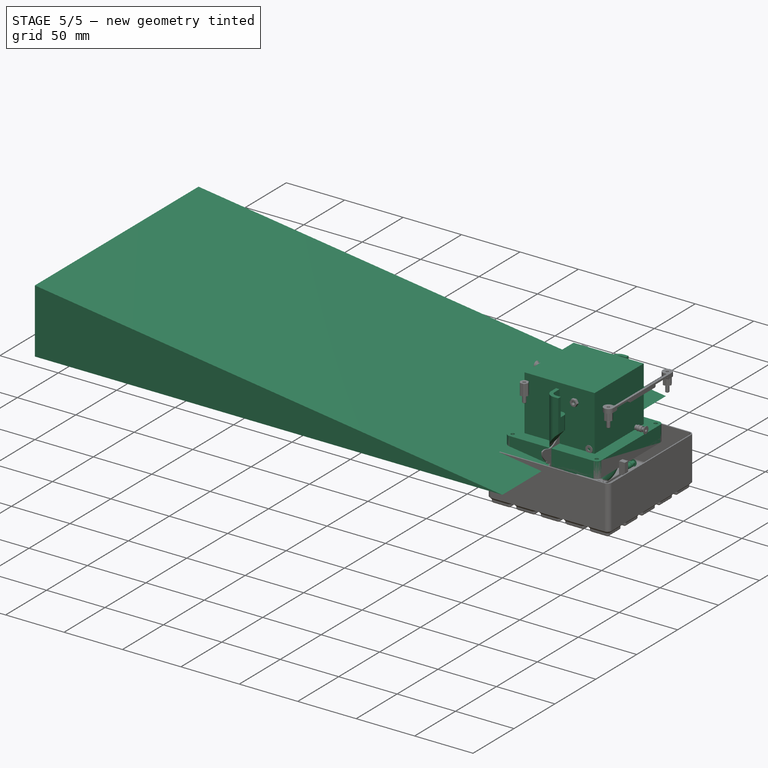
[diagram: stage 5 of 5 — iso view after this stage's code; geometry added in this stage tinted green]
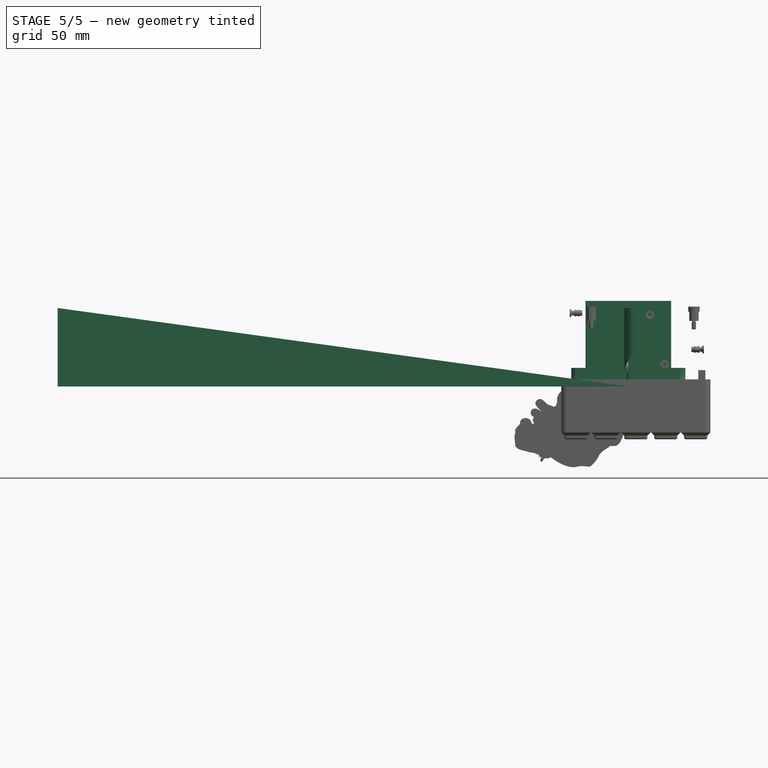
[diagram: stage 5 of 5 — front view after this stage's code; geometry added in this stage tinted green]
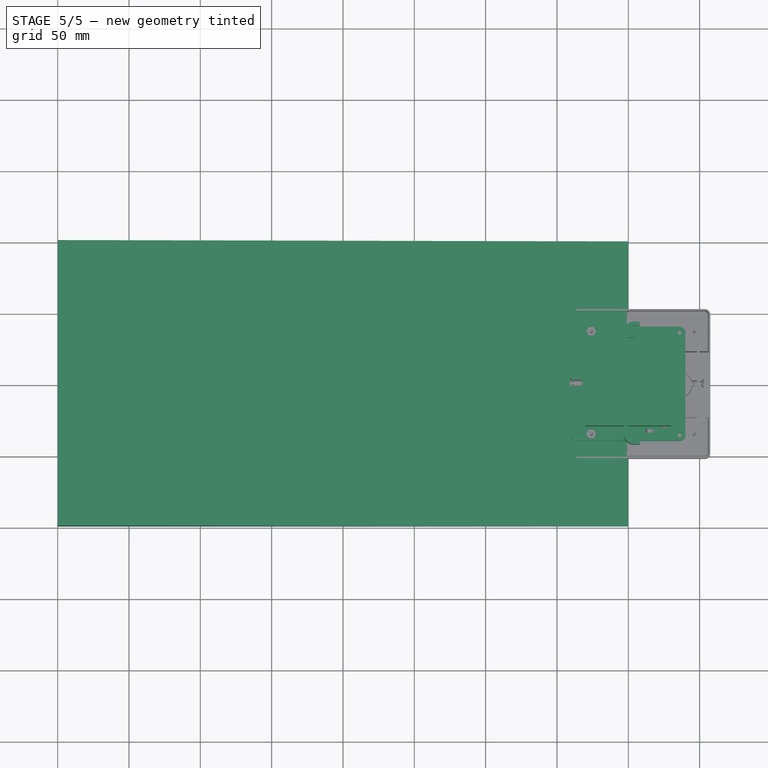
[diagram: stage 5 of 5 — top view after this stage's code; geometry added in this stage tinted green]
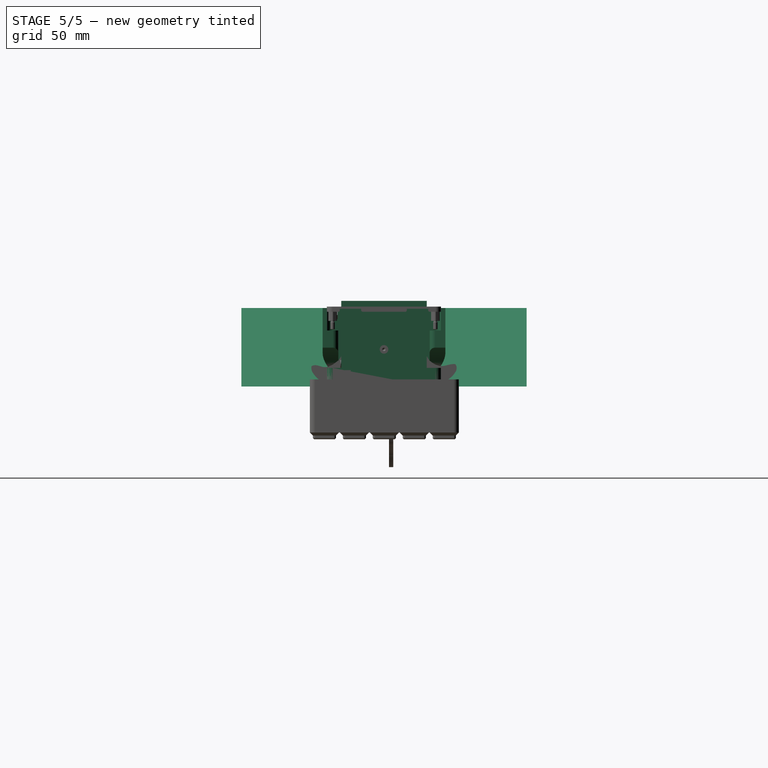
[diagram: stage 5 of 5 — right view after this stage's code; geometry added in this stage tinted green]
FEATURE [PartDesign::Body] Body029  label="Pupille"
  AutoGroupSolids = false
  ClaimAllChildren = false
  ExportMode = 0
  FixShape = 1
  Group = -> [Sketch106,Pad044,Fillet058]
  InvalidShape = false
  Origin = -> Origin042
  Placement = pos=(0,-0.4,0.4) rot=(0,0,1;0rad)
  SingleSolid = true
  Tip = -> Fillet058
  TreeRank = 992
  ValidateShape = false
  _ExportChildren = -> [Pad044,Fillet058]
  _GroupVersion = 1
FEATURE [App::Part] Part011  label="Eye"
  ClaimAllChildren = false
  ExportMode = 1
  Group = -> [Body027,Body028,Body029]
  Origin = -> Origin040
  Placement = pos=(-37.0119,24.7356,50.5913) rot=(0,0,-1;1.95477rad)
  TreeRank = 1070
  _ExportChildren = -> [Body027,Body028,Body029]
  _GroupVersion = 1
FEATURE [Sketcher::SketchObject] Sketch001
  ArcFitTolerance = 1e-06
  AttachmentSupport = -> [XZ_Plane001]
  ExternalBSplineMaxDegree = 5
  ExternalBSplineTolerance = 0.0001
  FixShape = 1
  FullyConstrained = true
  InternalTolerance = 1e-06
  InvalidShape = false
  MakeInternals = false
  MapMode = 5
  Placement = pos=(0,0,0) rot=(1,0,0;1.5708rad)
  Support = -> [XZ_Plane001]
  TreeRank = 995
  ValidateShape = false
  sketch-geometry (1):
    g0: Circle CenterX=0 CenterY=0 CenterZ=0 NormalX=0 NormalY=0 NormalZ=1 AngleXU=0 Radius=2.5
  constraints (2):
    c: Coincident(g0,g-1)
    c: Diameter(g0) = 5
FEATURE [PartDesign::Pocket] Pocket
  AddSubType = 1
  AlongSketchNormal = false
  AutoTaperInnerAngle = true
  BaseFeature = -> Revolution
  CheckUpToFaceLimits = true
  ClaimChildren = false
  Direction = (0,1,2e-16)
  Fit = 0
  FitJoin = 0
  FixShape = 1
  InnerFit = 0
  InnerFitJoin = 0
  InvalidShape = false
  Length = 5
  Length2 = 10
  Linearize = true
  NewSolid = false
  Profile = -> Sketch001
  ReferenceAxis = -> Sketch001 [N_Axis]
  Refine = true
  Suppress = false
  TaperInnerAngle = 0
  TaperInnerAngleRev = 0
  TreeRank = 996
  Type = 1
  ValidateShape = true
  _ProfileBasedVersion = 1
  _Version = 1
FEATURE [PartDesign::Fillet] Fillet
  AddSubType = 0
  Base = -> Pocket [Edge13]
  BaseFeature = -> Pocket
  FixShape = 1
  InvalidShape = false
  NewSolid = false
  Radius = 0.5
  Refine = true
  SupportTransform = false
  Suppress = false
  TreeRank = 997
  UseAllEdges = false
  ValidateShape = true
FEATURE [Sketcher::SketchObject] Sketch107
  ArcFitTolerance = 1e-06
  ExternalBSplineMaxDegree = 5
  ExternalBSplineTolerance = 0.0001
  FixShape = 1
  FullyConstrained = true
  InternalTolerance = 1e-06
  InvalidShape = false
  MakeInternals = false
  TreeRank = 1011
  ValidateShape = false
  sketch-geometry (2):
    g0: Circle CenterX=27.5 CenterY=0 CenterZ=0 NormalX=0 NormalY=0 NormalZ=1 AngleXU=0 Radius=2.5
    g1: LineSegment [constr] StartX=0 StartY=0 StartZ=0 EndX=30 EndY=0 EndZ=0
  constraints (6):
    c: PointOnObject(g0,g-1)
    c: Diameter(g0) = 5
    c: Coincident(g1,g-1)
    c: PointOnObject(g1,g0)
    c: Horizontal(g1)
    c: DistanceX(g1,g1) = 30
FEATURE [PartDesign::Revolution] Revolution006
  AddSubType = 0
  Angle = 360
  Axis = (0,1,0)
  Base = (0,0,0)
  ClaimChildren = false
  Fit = 0
  FitJoin = 0
  FixShape = 1
  InnerFit = 0
  InnerFitJoin = 0
  InvalidShape = false
  Linearize = true
  NewSolid = false
  Profile = -> Sketch107
  ReferenceAxis = -> Sketch107 [V_Axis]
  Refine = true
  Reversed = true
  Suppress = false
  TreeRank = 1012
  ValidateShape = true
  _ProfileBasedVersion = 1
FEATURE [PartDesign::Body] Body  label="Torique60mm"
  AutoGroupSolids = false
  ClaimAllChildren = false
  ExportMode = 0
  FixShape = 1
  Group = -> [Sketch107,Revolution006]
  InvalidShape = false
  Origin = -> Origin043
  Placement = pos=(0,3,0) rot=(0,0,1;0rad)
  SingleSolid = true
  Tip = -> Revolution006
  TreeRank = 1010
  ValidateShape = false
  _ExportChildren = -> [Revolution006]
  _GroupVersion = 1
FEATURE [Sketcher::SketchObject] Sketch108
  ArcFitTolerance = 1e-06
  AttachmentSupport = -> [XY_Plane001]
  ExternalBSplineMaxDegree = 5
  ExternalBSplineTolerance = 0.0001
  FixShape = 1
  FullyConstrained = true
  InternalTolerance = 1e-06
  InvalidShape = false
  MakeInternals = false
  MapMode = 5
  Support = -> [XY_Plane001]
  TreeRank = 1013
  ValidateShape = false
  sketch-geometry (1):
    g0: Circle CenterX=0 CenterY=11 CenterZ=0 NormalX=0 NormalY=0 NormalZ=1 AngleXU=0 Radius=1.5
  constraints (3):
    c: PointOnObject(g0,g-2)
    c: DistanceY(g-1,g0) = 11
    c: Diameter(g0) = 3
FEATURE [PartDesign::Hole] Hole
  AddSubType = 1
  BaseFeature = -> Fillet
  ClaimChildren = false
  CustomThreadClearance = 0
  Depth = 12
  DepthType = 0
  Diameter = 2.5
  DrillForDepth = false
  DrillPoint = 1
  DrillPointAngle = 118
  Fit = 0
  FitJoin = 0
  FixShape = 1
  HoleCutCountersinkAngle = 90
  HoleCutCustomValues = false
  HoleCutDepth = 0
  HoleCutDiameter = 6.1
  HoleCutType = 0
  InnerFit = 0
  InnerFitJoin = 0
  InvalidShape = false
  Linearize = true
  ModelThread = false
  NewSolid = false
  Profile = -> Sketch108
  Refine = true
  Suppress = false
  Tapered = false
  TaperedAngle = 90
  ThreadClass = 0
  ThreadDepth = 12
  ThreadDepthType = 0
  ThreadDirection = 0
  ThreadFit = 0
  ThreadSize = 9
  ThreadType = 1
  Threaded = true
  TreeRank = 1014
  UseCustomThreadClearance = false
  ValidateShape = true
  _ProfileBasedVersion = 1
FEATURE [PartDesign::Chamfer] Chamfer
  AddSubType = 0
  Angle = 45
  Base = -> Hole [Edge14,Edge16,Edge10]
  BaseFeature = -> Hole
  ChamferType = 0
  FixShape = 1
  FlipDirection = false
  InvalidShape = false
  NewSolid = false
  Refine = true
  Size = 0.5
  Size2 = 1
  SupportTransform = false
  Suppress = false
  TreeRank = 1015
  UseAllEdges = false
  ValidateShape = true
FEATURE [PartDesign::Body] Body001  label="Roue60mmCNC"
  AutoGroupSolids = false
  ClaimAllChildren = false
  ExportMode = 0
  FixShape = 1
  Group = -> [Sketch,Revolution,Sketch001,Pocket,Fillet,Sketch108,Hole,Chamfer]
  InvalidShape = false
  Origin = -> Origin002
  SingleSolid = true
  Tip = -> Chamfer
  TreeRank = 27
  ValidateShape = false
  _ExportChildren = -> [Revolution,Pocket,Fillet,Hole,Chamfer]
  _GroupVersion = 1
FEATURE [Part::FeaturePython] Screw  label="M3x8-Vis"  # WARN: FeaturePython — macro-defined, semantics opaque (R4)
  BaseObject = -> Body001 [Sketch108.Edge1]
  Diameter = 6
  FixShape = 1
  InvalidShape = false
  Invert = true
  LeftHanded = false
  Length = 5
  LengthCustom = 8
  MatchOuter = false
  Offset = 10
  OffsetAngle = 0
  Placement = pos=(0,11,-10) rot=(-1,0,0;3.14159rad)
  Thread = false
  TreeRank = 1016
  Type = 69
  ValidateShape = false
FEATURE [Sketcher::SketchObject] Sketch109
  ArcFitTolerance = 1e-06
  AttachmentSupport = -> [XY_Plane037]
  ExternalBSplineMaxDegree = 5
  ExternalBSplineTolerance = 0.0001
  FixShape = 1
  FullyConstrained = true
  InternalTolerance = 1e-06
  InvalidShape = false
  MakeInternals = false
  MapMode = 5
  Support = -> [XY_Plane037]
  TreeRank = 1027
  ValidateShape = false
  sketch-geometry (5):
    g0: LineSegment StartX=-40 StartY=-40 StartZ=0 EndX=-40 EndY=40 EndZ=0
    g1: LineSegment StartX=-40 StartY=40 StartZ=0 EndX=40 EndY=40 EndZ=0
    g2: LineSegment StartX=40 StartY=40 StartZ=0 EndX=40 EndY=-40 EndZ=0
    g3: LineSegment StartX=40 StartY=-40 StartZ=0 EndX=-40 EndY=-40 EndZ=0
    g4: GeomPoint [constr] X=0 Y=0 Z=0
  constraints (12):
    c: Coincident(g0,g1)
    c: Coincident(g1,g2)
    c: Coincident(g2,g3)
    c: Coincident(g3,g0)
    c: Horizontal(g1)
    c: Horizontal(g3)
    c: Vertical(g0)
    c: Vertical(g2)
    c: Symmetric(g1,g0,g4)
    c: Coincident(g4,g-1)
    c: Equal(g2,g1)
    c: DistanceY(g2,g2) = 80
FEATURE [PartDesign::Pad] Pad
  AddSubType = 0
  AlongSketchNormal = false
  AutoTaperInnerAngle = true
  CheckUpToFaceLimits = true
  ClaimChildren = false
  Direction = (0,0,1)
  Fit = 0
  FitJoin = 0
  FixShape = 1
  InnerFit = 0
  InnerFitJoin = 0
  InvalidShape = false
  Length = 13
  Length2 = 0.8
  Linearize = true
  NewSolid = false
  Profile = -> Sketch109
  ReferenceAxis = -> Sketch109 [N_Axis]
  Refine = true
  Suppress = false
  TaperInnerAngle = 0
  TaperInnerAngleRev = 0
  TreeRank = 1028
  Type = 4
  ValidateShape = true
  _ProfileBasedVersion = 1
FEATURE [PartDesign::Fillet] Fillet059
  AddSubType = 0
  Base = -> Pad [Edge2,Edge1,Edge8,Edge5]
  BaseFeature = -> Pad
  FixShape = 1
  InvalidShape = false
  NewSolid = false
  Radius = 4
  Refine = true
  SupportTransform = false
  Suppress = false
  TreeRank = 1029
  UseAllEdges = false
  ValidateShape = true
FEATURE [Sketcher::SketchObject] Sketch110
  ArcFitTolerance = 1e-06
  AttachmentSupport = -> [XY_Plane037]
  ExternalBSplineMaxDegree = 5
  ExternalBSplineTolerance = 0.0001
  ExternalGeometry = -> [Fillet059]
  FixShape = 1
  FullyConstrained = true
  InternalTolerance = 1e-06
  InvalidShape = false
  MakeInternals = false
  MapMode = 5
  Support = -> [XY_Plane037]
  TreeRank = 1030
  ValidateShape = false
  sketch-geometry (9):
    g0: LineSegment [constr] StartX=-36 StartY=-36 StartZ=0 EndX=-36 EndY=36 EndZ=0
    g1: LineSegment [constr] StartX=-36 StartY=36 StartZ=0 EndX=36 EndY=36 EndZ=0
    g2: LineSegment [constr] StartX=36 StartY=36 StartZ=0 EndX=36 EndY=-36 EndZ=0
    g3: LineSegment [constr] StartX=36 StartY=-36 StartZ=0 EndX=-36 EndY=-36 EndZ=0
    g4: GeomPoint [constr] X=0 Y=0 Z=0
    g5: Circle CenterX=-36 CenterY=36 CenterZ=0 NormalX=0 NormalY=0 NormalZ=1 AngleXU=0 Radius=1.5
    g6: Circle CenterX=36 CenterY=36 CenterZ=0 NormalX=0 NormalY=0 NormalZ=1 AngleXU=0 Radius=1.5
    g7: Circle CenterX=36 CenterY=-36 CenterZ=0 NormalX=0 NormalY=0 NormalZ=1 AngleXU=0 Radius=1.5
    g8: Circle CenterX=-36 CenterY=-36 CenterZ=0 NormalX=0 NormalY=0 NormalZ=1 AngleXU=0 Radius=1.5
  constraints (19):
    c: Coincident(g0,g1)
    c: Coincident(g1,g2)
    c: Coincident(g2,g3)
    c: Coincident(g3,g0)
    c: Horizontal(g1)
    c: Horizontal(g3)
    c: Vertical(g0)
    c: Vertical(g2)
    c: Symmetric(g1,g0,g4)
    c: Coincident(g4,g-1)
    c: Coincident(g1,g-3)
    c: Coincident(g5,g0)
    c: Coincident(g6,g-3)
    c: Coincident(g7,g2)
    c: Coincident(g8,g0)
    c: Equal(g5,g8)
    c: Equal(g5,g7)
    c: Equal(g5,g6)
    c: Diameter(g5) = 3
FEATURE [PartDesign::Pocket] Pocket055
  AddSubType = 1
  AlongSketchNormal = false
  AutoTaperInnerAngle = true
  BaseFeature = -> Fillet059
  CheckUpToFaceLimits = true
  ClaimChildren = false
  Direction = (0,0,-1)
  Fit = 0
  FitJoin = 0
  FixShape = 1
  InnerFit = 0
  InnerFitJoin = 0
  InvalidShape = false
  Length = 5
  Length2 = 10
  Linearize = true
  Midplane = true
  NewSolid = false
  Profile = -> Sketch110
  ReferenceAxis = -> Sketch110 [N_Axis]
  Refine = true
  Suppress = false
  TaperInnerAngle = 0
  TaperInnerAngleRev = 0
  TreeRank = 1031
  Type = 1
  ValidateShape = true
  _ProfileBasedVersion = 1
  _Version = 1
FEATURE [App::Link] Link002  label="PlaqueSupportMoteurDroit"
  AutoLinkLabel = true
  AutoPlacement = true
  LinkPlacement = pos=(0,23.6,0) rot=(0,0,1;0rad)
  LinkedObject = -> Body031
  Placement = pos=(0,23.6,0) rot=(0,0,1;0rad)
  SyncGroupVisibility = false
  TreeRank = 1069
  _LinkVersion = 1
FEATURE [PartDesign::Chamfer] Chamfer001
  AddSubType = 0
  Angle = 45
  Base = -> Pad045 [Edge1,Edge32,Edge29,Edge23,Edge20,Edge17,Edge8]
  BaseFeature = -> Pad045
  ChamferType = 0
  FixShape = 1
  FlipDirection = false
  InvalidShape = false
  NewSolid = false
  Refine = true
  Size = 1
  Size2 = 1
  SupportTransform = false
  Suppress = false
  TreeRank = 1071
  UseAllEdges = false
  ValidateShape = true
FEATURE [PartDesign::Body] Body031  label="PlaqueSupportMoteurGauche"
  AutoGroupSolids = false
  ClaimAllChildren = false
  ExportMode = 0
  FixShape = 1
  Group = -> [Sketch111,Pad045,Chamfer001]
  InvalidShape = false
  Origin = -> Origin045
  Placement = pos=(0,-20.6,0) rot=(0,0,1;0rad)
  SingleSolid = true
  Tip = -> Chamfer001
  TreeRank = 1042
  ValidateShape = false
  _ExportChildren = -> [Pad045,Chamfer001]
  _GroupVersion = 1
FEATURE [Part::FeaturePython] Screw001  label="M3x6-Vis"  # WARN: FeaturePython — macro-defined, semantics opaque (R4)
  BaseObject = -> Body031 [Chamfer001.Edge62]
  Diameter = 1
  FixShape = 1
  InvalidShape = false
  Invert = false
  LeftHanded = false
  Length = 0
  LengthCustom = 6
  MatchOuter = false
  OffsetAngle = 0
  Placement = pos=(-15.5,-23.6,15.5) rot=(1,0,0;1.5708rad)
  Thread = false
  TreeRank = 1092
  Type = 84
  ValidateShape = false
FEATURE [Part::FeaturePython] Screw002  label="M3x6-Vis022"  # WARN: FeaturePython — macro-defined, semantics opaque (R4)
  BaseObject = -> Body031 [Chamfer001.Edge57]
  Diameter = 1
  FixShape = 1
  InvalidShape = false
  Invert = false
  LeftHanded = false
  Length = 0
  LengthCustom = 6
  MatchOuter = false
  OffsetAngle = 0
  Placement = pos=(-15.5,-23.6,-15.5) rot=(1,0,0;1.5708rad)
  Thread = false
  TreeRank = 1093
  Type = 84
  ValidateShape = false
FEATURE [Part::FeaturePython] Screw003  label="M3x6-Vis023"  # WARN: FeaturePython — macro-defined, semantics opaque (R4)
  BaseObject = -> Body031 [Chamfer001.Edge58]
  Diameter = 1
  FixShape = 1
  InvalidShape = false
  Invert = false
  LeftHanded = false
  Length = 0
  LengthCustom = 6
  MatchOuter = false
  OffsetAngle = 0
  Placement = pos=(15.5,-23.6,-15.5) rot=(1,0,0;1.5708rad)
  Thread = false
  TreeRank = 1094
  Type = 84
  ValidateShape = false
FEATURE [Part::FeaturePython] Screw004  label="M3x6-Vis024"  # WARN: FeaturePython — macro-defined, semantics opaque (R4)
  BaseObject = -> Body031 [Chamfer001.Edge61]
  Diameter = 1
  FixShape = 1
  InvalidShape = false
  Invert = false
  LeftHanded = false
  Length = 0
  LengthCustom = 6
  MatchOuter = false
  OffsetAngle = 0
  Placement = pos=(15.5,-23.6,15.5) rot=(1,0,0;1.5708rad)
  Thread = false
  TreeRank = 1095
  Type = 84
  ValidateShape = false
FEATURE [Part::FeaturePython] Screw005  label="M3x6-Vis025"  # WARN: FeaturePython — macro-defined, semantics opaque (R4)
  BaseObject = -> Link002 [Chamfer001.Edge30]
  Diameter = 1
  FixShape = 1
  InvalidShape = false
  Invert = true
  LeftHanded = false
  Length = 0
  LengthCustom = 6
  MatchOuter = false
  OffsetAngle = 0
  Placement = pos=(15.5,23.6,15.5) rot=(-1,0,0;1.5708rad)
  Thread = false
  TreeRank = 1100
  Type = 84
  ValidateShape = false
FEATURE [Part::FeaturePython] Screw006  label="M3x6-Vis026"  # WARN: FeaturePython — macro-defined, semantics opaque (R4)
  BaseObject = -> Link002 [Chamfer001.Edge27]
  Diameter = 1
  FixShape = 1
  InvalidShape = false
  Invert = true
  LeftHanded = false
  Length = 0
  LengthCustom = 6
  MatchOuter = false
  OffsetAngle = 0
  Placement = pos=(15.5,23.6,-15.5) rot=(-1,0,0;1.5708rad)
  Thread = false
  TreeRank = 1101
  Type = 84
  ValidateShape = false
FEATURE [Part::FeaturePython] Screw007  label="M3x6-Vis027"  # WARN: FeaturePython — macro-defined, semantics opaque (R4)
  BaseObject = -> Link002 [Chamfer001.Edge26]
  Diameter = 1
  FixShape = 1
  InvalidShape = false
  Invert = true
  LeftHanded = false
  Length = 0
  LengthCustom = 6
  MatchOuter = false
  OffsetAngle = 0
  Placement = pos=(-15.5,23.6,-15.5) rot=(-1,0,0;1.5708rad)
  Thread = false
  TreeRank = 1102
  Type = 84
  ValidateShape = false
FEATURE [Part::FeaturePython] Screw008  label="M3x6-Vis028"  # WARN: FeaturePython — macro-defined, semantics opaque (R4)
  BaseObject = -> Link002 [Chamfer001.Edge31]
  Diameter = 1
  FixShape = 1
  InvalidShape = false
  Invert = true
  LeftHanded = false
  Length = 0
  LengthCustom = 6
  MatchOuter = false
  OffsetAngle = 0
  Placement = pos=(-15.5,23.6,15.5) rot=(-1,0,0;1.5708rad)
  Thread = false
  TreeRank = 1103
  Type = 84
  ValidateShape = false
FEATURE [Part::FeaturePython] Screw009  label="M3x8-Vis285"  # WARN: FeaturePython — macro-defined, semantics opaque (R4)
  BaseObject = -> Body031 [Chamfer001.Edge55]
  Diameter = 1
  FixShape = 1
  InvalidShape = false
  Invert = false
  LeftHanded = false
  Length = 1
  LengthCustom = 8
  MatchOuter = false
  OffsetAngle = 0
  Placement = pos=(-25.5,-23.6,15.5) rot=(1,0,0;1.5708rad)
  Thread = false
  TreeRank = 1108
  Type = 84
  ValidateShape = false
FEATURE [Part::FeaturePython] Screw010  label="M3x8-Vis286"  # WARN: FeaturePython — macro-defined, semantics opaque (R4)
  BaseObject = -> Body031 [Chamfer001.Edge56]
  Diameter = 1
  FixShape = 1
  InvalidShape = false
  Invert = false
  LeftHanded = false
  Length = 1
  LengthCustom = 8
  MatchOuter = false
  OffsetAngle = 0
  Placement = pos=(-25.5,-23.6,-15.5) rot=(1,0,0;1.5708rad)
  Thread = false
  TreeRank = 1109
  Type = 84
  ValidateShape = false
FEATURE [Part::FeaturePython] Screw013  label="M3x8-Vis289"  # WARN: FeaturePython — macro-defined, semantics opaque (R4)
  BaseObject = -> Link002 [Chamfer001.Edge24]
  Diameter = 1
  FixShape = 1
  InvalidShape = false
  Invert = true
  LeftHanded = false
  Length = 1
  LengthCustom = 8
  MatchOuter = false
  OffsetAngle = 0
  Placement = pos=(-25.5,23.6,15.5) rot=(-1,0,0;1.5708rad)
  Thread = false
  TreeRank = 1116
  Type = 84
  ValidateShape = false
FEATURE [Part::FeaturePython] Screw014  label="M3x8-Vis290"  # WARN: FeaturePython — macro-defined, semantics opaque (R4)
  BaseObject = -> Link002 [Chamfer001.Edge25]
  Diameter = 1
  FixShape = 1
  InvalidShape = false
  Invert = true
  LeftHanded = false
  Length = 1
  LengthCustom = 8
  MatchOuter = false
  OffsetAngle = 0
  Placement = pos=(-25.5,23.6,-15.5) rot=(-1,0,0;1.5708rad)
  Thread = false
  TreeRank = 1117
  Type = 84
  ValidateShape = false
FEATURE [Part::FeaturePython] Screw015  label="M3x8-Vis291"  # WARN: FeaturePython — macro-defined, semantics opaque (R4)
  BaseObject = -> Link002 [Chamfer001.Edge28]
  Diameter = 1
  FixShape = 1
  InvalidShape = false
  Invert = true
  LeftHanded = false
  Length = 1
  LengthCustom = 8
  MatchOuter = false
  OffsetAngle = 0
  Placement = pos=(25.5,23.6,-15.5) rot=(-1,0,0;1.5708rad)
  Thread = false
  TreeRank = 1118
  Type = 84
  ValidateShape = false
FEATURE [Part::FeaturePython] Screw016  label="M3x8-Vis292"  # WARN: FeaturePython — macro-defined, semantics opaque (R4)
  BaseObject = -> Link002 [Chamfer001.Edge29]
  Diameter = 1
  FixShape = 1
  InvalidShape = false
  Invert = true
  LeftHanded = false
  Length = 1
  LengthCustom = 8
  MatchOuter = false
  OffsetAngle = 0
  Placement = pos=(25.5,23.6,15.5) rot=(-1,0,0;1.5708rad)
  Thread = false
  TreeRank = 1119
  Type = 84
  ValidateShape = false
FEATURE [Sketcher::SketchObject] Sketch112
  ArcFitTolerance = 1e-06
  AttachmentSupport = -> [XZ_Plane042]
  ExternalBSplineMaxDegree = 5
  ExternalBSplineTolerance = 0.0001
  FixShape = 1
  FullyConstrained = true
  InternalTolerance = 1e-06
  InvalidShape = false
  MakeInternals = false
  MapMode = 5
  Placement = pos=(0,0,0) rot=(1,0,0;1.5708rad)
  Support = -> [XZ_Plane042]
  TreeRank = 1130
  ValidateShape = false
  sketch-geometry (3):
    g0: LineSegment StartX=0 StartY=0 StartZ=0 EndX=-400 EndY=0 EndZ=0
    g1: LineSegment StartX=-400 StartY=0 StartZ=0 EndX=-400 EndY=55 EndZ=0
    g2: LineSegment StartX=-400 StartY=55 StartZ=0 EndX=0 EndY=-7.1e-15 EndZ=0
  constraints (8):
    c: Coincident(g0,g-1)
    c: PointOnObject(g0,g-1)
    c: Coincident(g0,g1)
    c: Vertical(g1)
    c: Coincident(g1,g2)
    c: Coincident(g2,g0)
    c: DistanceY(g1,g1) = 55
    c: DistanceX(g0,g0) = 400
FEATURE [PartDesign::Pad] Pad046
  AddSubType = 0
  AlongSketchNormal = false
  AutoTaperInnerAngle = true
  CheckUpToFaceLimits = true
  ClaimChildren = false
  Direction = (0,-1,2e-16)
  Fit = 0
  FitJoin = 0
  FixShape = 1
  InnerFit = 0
  InnerFitJoin = 0
  InvalidShape = false
  Length = 200
  Length2 = 10
  Linearize = true
  Midplane = true
  NewSolid = false
  Profile = -> Sketch112
  ReferenceAxis = -> Sketch112 [N_Axis]
  Refine = true
  Suppress = false
  TaperInnerAngle = 0
  TaperInnerAngleRev = 0
  TreeRank = 1131
  Type = 0
  ValidateShape = true
  _ProfileBasedVersion = 1
FEATURE [PartDesign::Body] Body032  label="Rampe"
  AutoGroupSolids = false
  ClaimAllChildren = false
  ExportMode = 0
  FixShape = 1
  Group = -> [Sketch112,Pad046]
  InvalidShape = false
  Origin = -> Origin047
  Placement = pos=(0,0,-30) rot=(0,0,1;0rad)
  SingleSolid = true
  Tip = -> Pad046
  TreeRank = 1129
  ValidateShape = false
  _ExportChildren = -> [Pad046]
  _GroupVersion = 1
FEATURE [Sketcher::SketchObject] Sketch113
  ArcFitTolerance = 1e-06
  AttachmentSupport = -> [XY_Plane043]
  ExternalBSplineMaxDegree = 5
  ExternalBSplineTolerance = 0.0001
  FixShape = 1
  FullyConstrained = true
  InternalTolerance = 1e-06
  InvalidShape = false
  MakeInternals = false
  MapMode = 5
  Support = -> [XY_Plane043]
  TreeRank = 1142
  ValidateShape = false
  sketch-geometry (5):
    g0: LineSegment StartX=-30 StartY=-20.6 StartZ=0 EndX=-30 EndY=20.6 EndZ=0
    g1: LineSegment StartX=-30 StartY=20.6 StartZ=0 EndX=-21.1 EndY=20.6 EndZ=0
    g2: LineSegment StartX=-21.1 StartY=20.6 StartZ=0 EndX=-21.1 EndY=-20.6 EndZ=0
    g3: LineSegment StartX=-21.1 StartY=-20.6 StartZ=0 EndX=-30 EndY=-20.6 EndZ=0
    g4: GeomPoint [constr] X=-25.55 Y=0 Z=0
  constraints (13):
    c: Coincident(g0,g1)
    c: Coincident(g1,g2)
    c: Coincident(g2,g3)
    c: Coincident(g3,g0)
    c: Horizontal(g1)
    c: Horizontal(g3)
    c: Vertical(g0)
    c: Vertical(g2)
    c: Symmetric(g1,g0,g4)
    c: PointOnObject(g4,g-1)
    c: DistanceX(g1,g-1) = 21.1
    c: DistanceY(g0,g0) = 41.2
    c: DistanceX(g1,g1) = 8.9
FEATURE [PartDesign::Pad] Pad047
  AddSubType = 0
  AlongSketchNormal = false
  AutoTaperInnerAngle = true
  CheckUpToFaceLimits = true
  ClaimChildren = false
  Direction = (0,0,1)
  Fit = 0
  FitJoin = 0
  FixShape = 1
  InnerFit = 0
  InnerFitJoin = 0
  InvalidShape = false
  Length = 42.2
  Length2 = 10
  Linearize = true
  Midplane = true
  NewSolid = false
  Profile = -> Sketch113
  ReferenceAxis = -> Sketch113 [N_Axis]
  Refine = true
  Suppress = false
  TaperInnerAngle = 0
  TaperInnerAngleRev = 0
  TreeRank = 1143
  Type = 0
  ValidateShape = true
  _ProfileBasedVersion = 1
FEATURE [PartDesign::ShapeBinder] ShapeBinder
  FixShape = 1
  InvalidShape = false
  Support = -> [Chamfer001]
  TraceSupport = false
  TreeRank = 1144
  ValidateShape = false
FEATURE [Sketcher::SketchObject] Sketch114
  ArcFitTolerance = 1e-06
  AttachmentSupport = -> [Pad047]
  ExternalBSplineMaxDegree = 5
  ExternalBSplineTolerance = 0.0001
  ExternalGeometry = -> [ShapeBinder]
  FixShape = 1
  FullyConstrained = true
  InternalTolerance = 1e-06
  InvalidShape = false
  MakeInternals = false
  MapMode = 5
  Placement = pos=(0,-20.6,0) rot=(1,0,0;1.5708rad)
  Support = -> [Pad047]
  TreeRank = 1145
  ValidateShape = false
  sketch-geometry (2):
    g0: Circle CenterX=-25.5 CenterY=15.5 CenterZ=0 NormalX=0 NormalY=0 NormalZ=1 AngleXU=0 Radius=2.1
    g1: Circle CenterX=-25.5 CenterY=-15.5 CenterZ=0 NormalX=0 NormalY=0 NormalZ=1 AngleXU=0 Radius=2.1
  constraints (4):
    c: Coincident(g0,g-3)
    c: Coincident(g1,g-4)
    c: Equal(g1,g0)
    c: Diameter(g1) = 4.2
FEATURE [PartDesign::Pocket] Pocket056
  AddSubType = 1
  AlongSketchNormal = false
  AutoTaperInnerAngle = true
  BaseFeature = -> Pad047
  CheckUpToFaceLimits = true
  ClaimChildren = false
  Direction = (0,1,-2e-16)
  Fit = 0
  FitJoin = 0
  FixShape = 1
  InnerFit = 0
  InnerFitJoin = 0
  InvalidShape = false
  Length = 8
  Length2 = 10
  Linearize = true
  NewSolid = false
  Profile = -> Sketch114
  ReferenceAxis = -> Sketch114 [N_Axis]
  Refine = true
  Suppress = false
  TaperInnerAngle = 0
  TaperInnerAngleRev = 0
  TreeRank = 1146
  Type = 0
  ValidateShape = true
  _ProfileBasedVersion = 1
  _Version = 1
FEATURE [PartDesign::Mirrored] Mirrored
  AddSubType = 0
  BaseFeature = -> Pocket056
  CopyShape = false
  FixShape = 1
  InvalidShape = false
  MirrorPlane = -> XZ_Plane043
  NewSolid = false
  OriginalSubs = -> [Pocket056]
  Originals = -> [Pocket056]
  ParallelTransform = true
  Refine = true
  SubTransform = true
  Suppress = false
  TreeRank = 1147
  ValidateShape = true
  _Version = 4
FEATURE [Part::FeaturePython] Insert  label="M3x5.74-Insert"  # WARN: FeaturePython — macro-defined, semantics opaque (R4)
  BaseObject = -> Body033 [Mirrored.Edge8]
  Diameter = 3
  ExternalDiam = 4.55
  FixShape = 1
  InvalidShape = false
  Invert = false
  LeftHanded = false
  Length = 5.74
  MatchOuter = false
  OffsetAngle = 0
  Placement = pos=(-25.5,-20.6,15.5) rot=(1,0,0;1.5708rad)
  Thread = false
  TreeRank = 1151
  Type = 0
  ValidateShape = false
FEATURE [Part::FeaturePython] Insert001  label="M3x5.74-Insert180"  # WARN: FeaturePython — macro-defined, semantics opaque (R4)
  BaseObject = -> Body033 [Mirrored.Edge14]
  Diameter = 3
  ExternalDiam = 4.55
  FixShape = 1
  InvalidShape = false
  Invert = true
  LeftHanded = false
  Length = 5.74
  MatchOuter = false
  OffsetAngle = 0
  Placement = pos=(-25.5,20.6,-15.5) rot=(-1,0,0;1.5708rad)
  Thread = false
  TreeRank = 1152
  Type = 0
  ValidateShape = false
FEATURE [Part::FeaturePython] Insert002  label="M3x5.74-Insert181"  # WARN: FeaturePython — macro-defined, semantics opaque (R4)
  BaseObject = -> Body033 [Mirrored.Edge13]
  Diameter = 3
  ExternalDiam = 4.55
  FixShape = 1
  InvalidShape = false
  Invert = true
  LeftHanded = false
  Length = 5.74
  MatchOuter = false
  OffsetAngle = 0
  Placement = pos=(-25.5,20.6,15.5) rot=(-1,0,0;1.5708rad)
  Thread = false
  TreeRank = 1153
  Type = 0
  ValidateShape = false
FEATURE [Part::FeaturePython] Insert003  label="M3x5.74-Insert182"  # WARN: FeaturePython — macro-defined, semantics opaque (R4)
  BaseObject = -> Body033 [Mirrored.Edge9]
  Diameter = 3
  ExternalDiam = 4.55
  FixShape = 1
  InvalidShape = false
  Invert = false
  LeftHanded = false
  Length = 5.74
  MatchOuter = false
  OffsetAngle = 0
  Placement = pos=(-25.5,-20.6,-15.5) rot=(1,0,0;1.5708rad)
  Thread = false
  TreeRank = 1154
  Type = 0
  ValidateShape = false
FEATURE [Sketcher::SketchObject] Sketch115
  ArcFitTolerance = 1e-06
  AttachmentSupport = -> [XY_Plane043]
  ExternalBSplineMaxDegree = 5
  ExternalBSplineTolerance = 0.0001
  ExternalGeometry = -> [Mirrored]
  FixShape = 1
  FullyConstrained = true
  InternalTolerance = 1e-06
  InvalidShape = false
  MakeInternals = false
  MapMode = 5
  Support = -> [XY_Plane043]
  TreeRank = 1155
  ValidateShape = false
  sketch-geometry (5):
    g0: LineSegment StartX=-33.5 StartY=-9 StartZ=0 EndX=-33.5 EndY=9 EndZ=0
    g1: LineSegment StartX=-33.5 StartY=9 StartZ=0 EndX=-26.5 EndY=9 EndZ=0
    g2: LineSegment StartX=-26.5 StartY=9 StartZ=0 EndX=-26.5 EndY=-9 EndZ=0
    g3: LineSegment StartX=-26.5 StartY=-9 StartZ=0 EndX=-33.5 EndY=-9 EndZ=0
    g4: GeomPoint [constr] X=-30 Y=0 Z=0
  constraints (13):
    c: Coincident(g0,g1)
    c: Coincident(g1,g2)
    c: Coincident(g2,g3)
    c: Coincident(g3,g0)
    c: Horizontal(g1)
    c: Horizontal(g3)
    c: Vertical(g0)
    c: Vertical(g2)
    c: Symmetric(g1,g0,g4)
    c: PointOnObject(g4,g-1)
    c: PointOnObject(g4,g-3)
    c: DistanceY(g0,g0) = 18
    c: DistanceX(g1,g1) = 7
FEATURE [PartDesign::Pocket] Pocket057
  AddSubType = 1
  AlongSketchNormal = false
  AutoTaperInnerAngle = true
  BaseFeature = -> Mirrored
  CheckUpToFaceLimits = true
  ClaimChildren = false
  Direction = (0,0,-1)
  Fit = 0
  FitJoin = 0
  FixShape = 1
  InnerFit = 0
  InnerFitJoin = 0
  InvalidShape = false
  Length = 5
  Length2 = 10
  Linearize = true
  Midplane = true
  NewSolid = false
  Profile = -> Sketch115
  ReferenceAxis = -> Sketch115 [N_Axis]
  Refine = true
  Suppress = false
  TaperInnerAngle = 0
  TaperInnerAngleRev = 0
  TreeRank = 1156
  Type = 1
  ValidateShape = true
  _ProfileBasedVersion = 1
  _Version = 1
FEATURE [Sketcher::SketchObject] Sketch116
  ArcFitTolerance = 1e-06
  AttachmentSupport = -> [YZ_Plane043]
  ExternalBSplineMaxDegree = 5
  ExternalBSplineTolerance = 0.0001
  FixShape = 1
  FullyConstrained = true
  InternalTolerance = 1e-06
  InvalidShape = false
  MakeInternals = false
  MapMode = 5
  Placement = pos=(0,0,0) rot=(0.57735,0.57735,0.57735;2.0944rad)
  Support = -> [YZ_Plane043]
  TreeRank = 1160
  ValidateShape = false
  sketch-geometry (2):
    g0: Circle CenterX=-15 CenterY=0 CenterZ=0 NormalX=0 NormalY=0 NormalZ=1 AngleXU=0 Radius=2.1
    g1: Circle CenterX=15 CenterY=0 CenterZ=0 NormalX=0 NormalY=0 NormalZ=1 AngleXU=0 Radius=2.1
  constraints (5):
    c: PointOnObject(g0,g-1)
    c: Equal(g0,g1)
    c: Diameter(g0) = 4.2
    c: Symmetric(g1,g0,g-1)
    c: DistanceX(g0,g1) = 30
FEATURE [PartDesign::Pocket] Pocket058
  AddSubType = 1
  AlongSketchNormal = false
  AutoTaperInnerAngle = true
  BaseFeature = -> Pocket057
  CheckUpToFaceLimits = true
  ClaimChildren = false
  Direction = (-1,3e-16,-3e-16)
  Fit = 0
  FitJoin = 0
  FixShape = 1
  InnerFit = 0
  InnerFitJoin = 0
  InvalidShape = false
  Length = 5
  Length2 = 10
  Linearize = true
  NewSolid = false
  Profile = -> Sketch116
  ReferenceAxis = -> Sketch116 [N_Axis]
  Refine = true
  Suppress = false
  TaperInnerAngle = 0
  TaperInnerAngleRev = 0
  TreeRank = 1161
  Type = 1
  ValidateShape = true
  _ProfileBasedVersion = 1
  _Version = 1
FEATURE [PartDesign::Chamfer] Chamfer002
  AddSubType = 0
  Angle = 45
  Base = -> Pocket058 [Edge4,Edge21,Edge9,Edge1,Edge11,Edge23]
  BaseFeature = -> Pocket058
  ChamferType = 0
  FixShape = 1
  FlipDirection = false
  InvalidShape = false
  NewSolid = false
  Refine = true
  Size = 1
  Size2 = 1
  SupportTransform = false
  Suppress = false
  TreeRank = 1157
  UseAllEdges = false
  ValidateShape = true
FEATURE [PartDesign::Fillet] Fillet060
  AddSubType = 0
  Base = -> Chamfer002 [Edge44,Edge20]
  BaseFeature = -> Chamfer002
  FixShape = 1
  InvalidShape = false
  NewSolid = false
  Radius = 2
  Refine = true
  SupportTransform = false
  Suppress = false
  TreeRank = 1158
  UseAllEdges = false
  ValidateShape = true
FEATURE [PartDesign::Chamfer] Chamfer003
  AddSubType = 0
  Angle = 45
  Base = -> Fillet060 [Edge37,Edge36,Edge49,Edge50,Edge61,Edge56,Edge54,Edge30]
  BaseFeature = -> Fillet060
  ChamferType = 0
  FixShape = 1
  FlipDirection = false
  InvalidShape = false
  NewSolid = false
  Refine = true
  Size = 0.6
  Size2 = 1
  SupportTransform = false
  Suppress = false
  TreeRank = 1159
  UseAllEdges = false
  ValidateShape = true
FEATURE [PartDesign::Body] Body033  label="SupportAvant"
  AutoGroupSolids = false
  ClaimAllChildren = false
  ExportMode = 0
  FixShape = 1
  Group = -> [Sketch113,Pad047,ShapeBinder,Sketch114,Pocket056,Mirrored,Sketch115,Pocket057,Sketch116,Pocket058,Chamfer002,Fillet060,Chamfer003]
  InvalidShape = false
  Origin = -> Origin048
  SingleSolid = true
  Tip = -> Chamfer003
  TreeRank = 1141
  ValidateShape = false
  _ExportChildren = -> [Pad047,ShapeBinder,Pocket056,Mirrored,Pocket057,Pocket058,Chamfer002,Fillet060,Chamfer003]
  _GroupVersion = 1
FEATURE [Part::FeaturePython] Insert004  label="M3x5.74-Insert183"  # WARN: FeaturePython — macro-defined, semantics opaque (R4)
  BaseObject = -> Body033 [Fillet060.Edge30]
  Diameter = 3
  ExternalDiam = 4.55
  FixShape = 1
  InvalidShape = false
  Invert = true
  LeftHanded = false
  Length = 5.74
  MatchOuter = false
  OffsetAngle = 0
  Placement = pos=(-30,-15,-5e-15) rot=(0,-1,0;1.5708rad)
  Thread = false
  TreeRank = 1164
  Type = 0
  ValidateShape = false
FEATURE [Part::FeaturePython] Insert005  label="M3x5.74-Insert184"  # WARN: FeaturePython — macro-defined, semantics opaque (R4)
  BaseObject = -> Body033 [Fillet060.Edge61]
  Diameter = 3
  ExternalDiam = 4.55
  FixShape = 1
  InvalidShape = false
  Invert = true
  LeftHanded = false
  Length = 5.74
  MatchOuter = false
  OffsetAngle = 0
  Placement = pos=(-30,15,-1.5e-14) rot=(0,-1,0;1.5708rad)
  Thread = false
  TreeRank = 1165
  Type = 0
  ValidateShape = false
FEATURE [Sketcher::SketchObject] Sketch117
  ArcFitTolerance = 1e-06
  AttachmentSupport = -> [YZ_Plane044]
  ExternalBSplineMaxDegree = 5
  ExternalBSplineTolerance = 0.0001
  FixShape = 1
  FullyConstrained = true
  InternalTolerance = 1e-06
  InvalidShape = false
  MakeInternals = false
  MapMode = 5
  Placement = pos=(0,0,0) rot=(0.57735,0.57735,0.57735;2.0944rad)
  Support = -> [YZ_Plane044]
  TreeRank = 1176
  ValidateShape = false
  sketch-geometry (9):
    g0: LineSegment StartX=36 StartY=55 StartZ=0 EndX=0 EndY=55 EndZ=0
    g1: LineSegment StartX=0 StartY=55 StartZ=0 EndX=0 EndY=-21 EndZ=0
    g2: LineSegment StartX=0 StartY=-21 StartZ=0 EndX=36 EndY=-21 EndZ=0
    g3: LineSegment StartX=36 StartY=-21 StartZ=0 EndX=36 EndY=55 EndZ=0
    g4: Circle CenterX=15 CenterY=0 CenterZ=0 NormalX=0 NormalY=0 NormalZ=1 AngleXU=0 Radius=1.6
    g5: ArcOfCircle CenterX=27 CenterY=28.9 CenterZ=0 NormalX=0 NormalY=0 NormalZ=1 AngleXU=0 Radius=3 StartAngle=4.71239 EndAngle=7.85398
    g6: ArcOfCircle CenterX=17 CenterY=28.9 CenterZ=0 NormalX=0 NormalY=0 NormalZ=1 AngleXU=0 Radius=3 StartAngle=1.5708 EndAngle=4.71239
    g7: LineSegment StartX=27 StartY=31.9 StartZ=0 EndX=17 EndY=31.9 EndZ=0
    g8: LineSegment StartX=17 StartY=25.9 StartZ=0 EndX=27 EndY=25.9 EndZ=0
  constraints (25):
    c: PointOnObject(g0,g-2)
    c: Horizontal(g0)
    c: Coincident(g0,g1)
    c: PointOnObject(g1,g-2)
    c: Coincident(g1,g2)
    c: Horizontal(g2)
    c: Coincident(g3,g0)
    c: Vertical(g3)
    c: DistanceY(g1,g-1) = 21
    c: DistanceX(g0,g0) = 36
    c: DistanceY(g-1,g0) = 55
    c: PointOnObject(g4,g-1)
    c: DistanceX(g-1,g4) = 15
    c: Diameter(g4) = 3.2
    c: Tangent(g5,g7) = -1.5708
    c: Tangent(g7,g6) = -1.5708
    c: Tangent(g6,g8) = -1.5708
    c: Tangent(g8,g5) = -1.5708
    c: Equal(g5,g6)
    c: Horizontal(g7)
    c: Radius(g6) = 3
    c: DistanceX(g6,g5) = 10
    c: DistanceX(g6) = 17
    c: DistanceY(g6) = 28.9
    c: Coincident(g3,g2)
FEATURE [PartDesign::Pad] Pad048
  AddSubType = 0
  AlongSketchNormal = false
  AutoTaperInnerAngle = true
  CheckUpToFaceLimits = true
  ClaimChildren = false
  Direction = (1,-2e-16,3e-16)
  Fit = 0
  FitJoin = 0
  FixShape = 1
  InnerFit = 0
  InnerFitJoin = 0
  InvalidShape = false
  Length = 3
  Length2 = 10
  Linearize = true
  NewSolid = false
  Profile = -> Sketch117
  ReferenceAxis = -> Sketch117 [N_Axis]
  Refine = true
  Reversed = true
  Suppress = false
  TaperInnerAngle = 0
  TaperInnerAngleRev = 0
  TreeRank = 1177
  Type = 0
  ValidateShape = true
  _ProfileBasedVersion = 1
FEATURE [PartDesign::Mirrored] Mirrored001
  AddSubType = 0
  BaseFeature = -> Pad048
  CopyShape = false
  FixShape = 1
  InvalidShape = false
  MirrorPlane = -> Sketch117 [V_Axis]
  NewSolid = false
  OriginalSubs = -> [Pad048]
  Originals = -> [Pad048]
  ParallelTransform = true
  Refine = true
  SubTransform = true
  Suppress = false
  TreeRank = 1178
  ValidateShape = true
  _Version = 4
FEATURE [Sketcher::SketchObject] Sketch118
  ArcFitTolerance = 1e-06
  AttachmentSupport = -> [YZ_Plane044]
  ExternalBSplineMaxDegree = 5
  ExternalBSplineTolerance = 0.0001
  ExternalGeometry = -> [Mirrored001]
  FixShape = 1
  FullyConstrained = true
  InternalTolerance = 1e-06
  InvalidShape = false
  MakeInternals = false
  MapMode = 5
  Placement = pos=(0,0,0) rot=(0.57735,0.57735,0.57735;2.0944rad)
  Support = -> [YZ_Plane044]
  TreeRank = 1179
  ValidateShape = false
  sketch-geometry (5):
    g0: LineSegment StartX=9 StartY=44 StartZ=0 EndX=9 EndY=-21 EndZ=0
    g1: LineSegment StartX=9 StartY=-21 StartZ=0 EndX=-9 EndY=-21 EndZ=0
    g2: LineSegment StartX=-9 StartY=-21 StartZ=0 EndX=-9 EndY=44 EndZ=0
    g3: LineSegment StartX=-9 StartY=44 StartZ=0 EndX=9 EndY=44 EndZ=0
    g4: GeomPoint [constr] X=0 Y=11.5 Z=0
  constraints (13):
    c: Coincident(g0,g1)
    c: Coincident(g1,g2)
    c: Coincident(g2,g3)
    c: Coincident(g3,g0)
    c: Horizontal(g1)
    c: Horizontal(g3)
    c: Vertical(g0)
    c: Vertical(g2)
    c: Symmetric(g1,g0,g4)
    c: PointOnObject(g4,g-2)
    c: DistanceY(g2,g2) = 65
    c: DistanceX(g3,g3) = 18
    c: PointOnObject(g0,g-3)
FEATURE [PartDesign::Pocket] Pocket059
  AddSubType = 1
  AlongSketchNormal = false
  AutoTaperInnerAngle = true
  BaseFeature = -> Mirrored001
  CheckUpToFaceLimits = true
  ClaimChildren = false
  Direction = (-1,2e-16,-3e-16)
  Fit = 0
  FitJoin = 0
  FixShape = 1
  InnerFit = 0
  InnerFitJoin = 0
  InvalidShape = false
  Length = 5
  Length2 = 10
  Linearize = true
  NewSolid = false
  Profile = -> Sketch118
  ReferenceAxis = -> Sketch118 [N_Axis]
  Refine = true
  Suppress = false
  TaperInnerAngle = 0
  TaperInnerAngleRev = 0
  TreeRank = 1180
  Type = 1
  ValidateShape = true
  _ProfileBasedVersion = 1
  _Version = 1
FEATURE [Part::SubShapeBinder] Import  label="Import(Pocket055)"
  BindCopyOnChange = 0
  BindMode = 0
  ClaimChildren = false
  Context = -> Part018 [Part013.Body034.Import.]
  EdgeTolerance = 1e-06
  FillStyle = 0
  FixShape = 1
  Fuse = false
  InvalidShape = false
  MakeFace = false
  MergeEdges = true
  OffsetFill = false
  OffsetIntersection = false
  OffsetJoinType = 0
  OffsetOpenResult = false
  Outline = false
  PartialLoad = false
  Relative = true
  SplitEdges = false
  Support = -> [Part[Body030.Pocket055.]]
  TightBound = false
  TreeRank = 1182
  ValidateShape = false
  _Version = 8
FEATURE [Sketcher::SketchObject] Sketch119
  ArcFitTolerance = 1e-06
  AttachmentSupport = -> [Pocket059]
  ExternalBSplineMaxDegree = 5
  ExternalBSplineTolerance = 0.0001
  ExternalGeometry = -> [Import,Pocket059]
  FixShape = 1
  FullyConstrained = true
  InternalTolerance = 1e-06
  InvalidShape = false
  MakeInternals = false
  MapMode = 5
  Placement = pos=(0,0,55) rot=(0,0,1;0rad)
  Support = -> [Pocket059]
  TreeRank = 1181
  ValidateShape = false
  sketch-geometry (7):
    g0: Circle [constr] CenterX=4 CenterY=36 CenterZ=0 NormalX=0 NormalY=0 NormalZ=1 AngleXU=0 Radius=2.1
    g1: ArcOfCircle CenterX=4 CenterY=36 CenterZ=0 NormalX=0 NormalY=0 NormalZ=1 AngleXU=0 Radius=7 StartAngle=1.5708 EndAngle=3.14159
    g2: LineSegment StartX=4 StartY=43 StartZ=0 EndX=8 EndY=43 EndZ=0
    g3: ArcOfCircle CenterX=4 CenterY=36 CenterZ=0 NormalX=0 NormalY=0 NormalZ=1 AngleXU=0 Radius=4 StartAngle=4.71239 EndAngle=6.28319
    g4: LineSegment StartX=4 StartY=32 StartZ=0 EndX=-3 EndY=32 EndZ=0
    g5: LineSegment StartX=-3 StartY=32 StartZ=0 EndX=-3 EndY=36 EndZ=0
    g6: LineSegment StartX=8 StartY=36 StartZ=0 EndX=8 EndY=43 EndZ=0
  constraints (16):
    c: Coincident(g0,g-3)
    c: Diameter(g0) = 4.2
    c: Coincident(g1,g0)
    c: Coincident(g1,g-4)
    c: Horizontal(g2)
    c: Tangent(g2,g1) = 1.5708
    c: Coincident(g3,g0)
    c: Horizontal(g4)
    c: Coincident(g5,g4)
    c: Coincident(g5,g1)
    c: Vertical(g5)
    c: Vertical(g6)
    c: Coincident(g6,g2)
    c: Radius(g3) = 4
    c: Tangent(g6,g3) = -1.5708
    c: Tangent(g4,g3) = 1.5708
FEATURE [PartDesign::Pad] Pad049
  AddSubType = 0
  AlongSketchNormal = false
  AutoTaperInnerAngle = true
  BaseFeature = -> Pocket059
  CheckUpToFaceLimits = true
  ClaimChildren = false
  Direction = (0,0,1)
  Fit = 0
  FitJoin = 0
  FixShape = 1
  InnerFit = 0
  InnerFitJoin = 0
  InvalidShape = false
  Length = 76
  Length2 = 10
  Linearize = true
  NewSolid = false
  Profile = -> Sketch119
  ReferenceAxis = -> Sketch119 [N_Axis]
  Refine = true
  Reversed = true
  Suppress = false
  TaperInnerAngle = 0
  TaperInnerAngleRev = 0
  TreeRank = 1183
  Type = 0
  ValidateShape = true
  _ProfileBasedVersion = 1
FEATURE [PartDesign::Mirrored] Mirrored002
  AddSubType = 0
  BaseFeature = -> Pad049
  CopyShape = false
  FixShape = 1
  InvalidShape = false
  MirrorPlane = -> Sketch119 [H_Axis]
  NewSolid = false
  OriginalSubs = -> [Pad049]
  Originals = -> [Pad049]
  ParallelTransform = true
  Refine = true
  SubTransform = true
  Suppress = false
  TreeRank = 1184
  ValidateShape = true
  _Version = 4
FEATURE [Sketcher::SketchObject] Sketch120
  ArcFitTolerance = 1e-06
  AttachmentSupport = -> [Mirrored002]
  ExternalBSplineMaxDegree = 5
  ExternalBSplineTolerance = 0.0001
  ExternalGeometry = -> [Import,Mirrored002]
  FixShape = 1
  FullyConstrained = true
  InternalTolerance = 1e-06
  InvalidShape = false
  MakeInternals = false
  MapMode = 5
  Placement = pos=(0,0,55) rot=(0,0,1;0rad)
  Support = -> [Mirrored002]
  TreeRank = 1185
  ValidateShape = false
  sketch-geometry (5):
    g0: ArcOfCircle CenterX=4 CenterY=36 CenterZ=0 NormalX=0 NormalY=0 NormalZ=1 AngleXU=0 Radius=4 StartAngle=1.5708 EndAngle=3.14159
    g1: LineSegment StartX=4 StartY=40 StartZ=0 EndX=8 EndY=40 EndZ=0
    g2: LineSegment StartX=8 StartY=40 StartZ=0 EndX=8 EndY=32 EndZ=0
    g3: LineSegment StartX=8 StartY=32 StartZ=0 EndX=1.8e-15 EndY=32 EndZ=0
    g4: LineSegment StartX=1.8e-15 StartY=32 StartZ=0 EndX=0 EndY=36 EndZ=0
  constraints (12):
    c: Coincident(g0,g-3)
    c: PointOnObject(g0,g-2)
    c: Tangent(g0,g1) = 1.5708
    c: Coincident(g1,g2)
    c: Vertical(g2)
    c: Coincident(g2,g3)
    c: Horizontal(g3)
    c: Coincident(g3,g4)
    c: PointOnObject(g1,g-4)
    c: Coincident(g-5,g3)
    c: Tangent(g4,g0) = 1.5708
    c: Horizontal(g1)
FEATURE [PartDesign::Pocket] Pocket060
  AddSubType = 1
  AlongSketchNormal = false
  AutoTaperInnerAngle = true
  BaseFeature = -> Mirrored002
  CheckUpToFaceLimits = true
  ClaimChildren = false
  Direction = (0,0,-1)
  Fit = 0
  FitJoin = 0
  FixShape = 1
  InnerFit = 0
  InnerFitJoin = 0
  InvalidShape = false
  Length = 15.8
  Length2 = 10
  Linearize = true
  NewSolid = false
  Profile = -> Sketch120
  ReferenceAxis = -> Sketch120 [N_Axis]
  Refine = true
  Suppress = false
  TaperInnerAngle = 0
  TaperInnerAngleRev = 0
  TreeRank = 1186
  Type = 0
  ValidateShape = true
  _ProfileBasedVersion = 1
  _Version = 1
FEATURE [PartDesign::Mirrored] Mirrored003
  AddSubType = 0
  BaseFeature = -> Pocket060
  CopyShape = false
  FixShape = 1
  InvalidShape = false
  MirrorPlane = -> Sketch120 [H_Axis]
  NewSolid = false
  OriginalSubs = -> [Pocket060]
  Originals = -> [Pocket060]
  ParallelTransform = true
  Refine = true
  SubTransform = true
  Suppress = false
  TreeRank = 1187
  ValidateShape = true
  _Version = 4
FEATURE [Sketcher::SketchObject] Sketch121
  ArcFitTolerance = 1e-06
  AttachmentOffset = pos=(0,0,43) rot=(0,0,1;0rad)
  AttachmentSupport = -> [XZ_Plane044]
  ExternalBSplineMaxDegree = 5
  ExternalBSplineTolerance = 0.0001
  FixShape = 1
  FullyConstrained = true
  InternalTolerance = 1e-06
  InvalidShape = false
  MakeInternals = false
  MapMode = 5
  Placement = pos=(0,-43,-9.5e-15) rot=(1,0,0;1.5708rad)
  Support = -> [XZ_Plane044]
  TreeRank = 1188
  ValidateShape = false
  sketch-geometry (5):
    g0: ArcOfCircle CenterX=30 CenterY=0 CenterZ=0 NormalX=0 NormalY=0 NormalZ=1 AngleXU=0 Radius=35 StartAngle=0 EndAngle=3.14159
    g1: LineSegment [constr] StartX=-5 StartY=0 StartZ=0 EndX=65 EndY=0 EndZ=0
    g2: LineSegment StartX=65 StartY=0 StartZ=0 EndX=65 EndY=-40 EndZ=0
    g3: LineSegment StartX=65 StartY=-40 StartZ=0 EndX=-5 EndY=-40 EndZ=0
    g4: LineSegment StartX=-5 StartY=-40 StartZ=0 EndX=-5 EndY=0 EndZ=0
  constraints (15):
    c: PointOnObject(g0,g-1)
    c: PointOnObject(g0,g-1)
    c: PointOnObject(g0,g-1)
    c: Radius(g0) = 35
    c: DistanceX(g-1,g0) = 30
    c: Coincident(g1,g2)
    c: Coincident(g2,g3)
    c: Coincident(g3,g4)
    c: Coincident(g4,g1)
    c: Horizontal(g3)
    c: Vertical(g2)
    c: Vertical(g4)
    c: Coincident(g1,g0)
    c: Coincident(g1,g0)
    c: DistanceY(g2,g2) = 40
FEATURE [PartDesign::Pocket] Pocket061
  AddSubType = 1
  AlongSketchNormal = false
  AutoTaperInnerAngle = true
  BaseFeature = -> Mirrored003
  CheckUpToFaceLimits = true
  ClaimChildren = false
  Direction = (0,1,2e-16)
  Fit = 0
  FitJoin = 0
  FixShape = 1
  InnerFit = 0
  InnerFitJoin = 0
  InvalidShape = false
  Length = 11
  Length2 = 10
  Linearize = true
  NewSolid = false
  Profile = -> Sketch121
  ReferenceAxis = -> Sketch121 [N_Axis]
  Refine = true
  Suppress = false
  TaperInnerAngle = 0
  TaperInnerAngleRev = 0
  TreeRank = 1189
  Type = 0
  ValidateShape = true
  _ProfileBasedVersion = 1
  _Version = 1
FEATURE [PartDesign::Mirrored] Mirrored004
  AddSubType = 0
  BaseFeature = -> Pocket061
  CopyShape = false
  FixShape = 1
  InvalidShape = false
  MirrorPlane = -> XZ_Plane044
  NewSolid = false
  OriginalSubs = -> [Pocket061]
  Originals = -> [Pocket061]
  ParallelTransform = true
  Refine = true
  SubTransform = true
  Suppress = false
  TreeRank = 1190
  ValidateShape = true
  _Version = 4
FEATURE [PartDesign::Chamfer] Chamfer004
  AddSubType = 0
  Angle = 45
  Base = -> Mirrored004 [Edge54,Edge64]
  BaseFeature = -> Mirrored004
  ChamferType = 0
  FixShape = 1
  FlipDirection = false
  InvalidShape = false
  NewSolid = false
  Refine = true
  Size = 3
  Size2 = 1
  SupportTransform = false
  Suppress = false
  TreeRank = 1191
  UseAllEdges = false
  ValidateShape = true
FEATURE [Part::FeaturePython] Insert006  label="M3x5.74-Insérer001"  # WARN: FeaturePython — macro-defined, semantics opaque (R4)
  BaseObject = -> Body035 [Chamfer005.Edge24]
  Diameter = 3
  ExternalDiam = 4.55
  InvalidShape = false
  Invert = false
  LeftHanded = false
  Length = 5.74
  MatchOuter = false
  OffsetAngle = 0
  Placement = pos=(25.5,-20.6,-15.5) rot=(1,0,0;1.5708rad)
  Thread = false
  TreeRank = 1233
  Type = 0
  ValidateShape = false
FEATURE [Part::FeaturePython] Insert007  label="M3x5.74-Insérer002"  # WARN: FeaturePython — macro-defined, semantics opaque (R4)
  BaseObject = -> Body035 [Chamfer005.Edge23]
  Diameter = 3
  ExternalDiam = 4.55
  InvalidShape = false
  Invert = false
  LeftHanded = false
  Length = 5.74
  MatchOuter = false
  OffsetAngle = 0
  Placement = pos=(25.5,-20.6,15.5) rot=(1,0,0;1.5708rad)
  Thread = false
  TreeRank = 1234
  Type = 0
  ValidateShape = false
FEATURE [Part::FeaturePython] Insert008  label="M3x5.74-Insérer003"  # WARN: FeaturePython — macro-defined, semantics opaque (R4)
  BaseObject = -> Body035 [Chamfer005.Edge88]
  Diameter = 3
  ExternalDiam = 4.55
  InvalidShape = false
  Invert = true
  LeftHanded = false
  Length = 5.74
  MatchOuter = false
  OffsetAngle = 0
  Placement = pos=(25.5,20.6,15.5) rot=(-1,0,0;1.5708rad)
  Thread = false
  TreeRank = 1235
  Type = 0
  ValidateShape = false
FEATURE [Part::FeaturePython] Insert009  label="M3x5.74-Insérer004"  # WARN: FeaturePython — macro-defined, semantics opaque (R4)
  BaseObject = -> Body035 [Chamfer005.Edge87]
  Diameter = 3
  ExternalDiam = 4.55
  InvalidShape = false
  Invert = true
  LeftHanded = false
  Length = 5.74
  MatchOuter = false
  OffsetAngle = 0
  Placement = pos=(25.5,20.6,-15.5) rot=(-1,0,0;1.5708rad)
  Thread = false
  TreeRank = 1236
  Type = 0
  ValidateShape = false
FEATURE [Sketcher::SketchObject] Sketch138
  ArcFitTolerance = 1e-06
  AttachmentSupport = -> [XY_Plane047]
  ExternalBSplineMaxDegree = 5
  ExternalBSplineTolerance = 0.0001
  FullyConstrained = true
  InternalTolerance = 1e-06
  InvalidShape = false
  MakeInternals = true
  MapMode = 5
  Support = -> [XY_Plane047]
  TreeRank = 1303
  ValidateShape = false
  sketch-geometry (5):
    g0: LineSegment StartX=-30 StartY=-30 StartZ=0 EndX=-30 EndY=30 EndZ=0
    g1: LineSegment StartX=-30 StartY=30 StartZ=0 EndX=30 EndY=30 EndZ=0
    g2: LineSegment StartX=30 StartY=30 StartZ=0 EndX=30 EndY=-30 EndZ=0
    g3: LineSegment StartX=30 StartY=-30 StartZ=0 EndX=-30 EndY=-30 EndZ=0
    g4: GeomPoint [constr] X=0 Y=0 Z=0
  constraints (12):
    c: Coincident(g0,g1)
    c: Coincident(g1,g2)
    c: Coincident(g2,g3)
    c: Coincident(g3,g0)
    c: Horizontal(g1)
    c: Horizontal(g3)
    c: Vertical(g0)
    c: Vertical(g2)
    c: Symmetric(g1,g0,g4)
    c: Coincident(g4,g-1)
    c: Equal(g2,g1)
    c: DistanceY(g2,g2) = 60
FEATURE [PartDesign::Pad] Pad057
  AddSubType = 0
  AlongSketchNormal = false
  AutoTaperInnerAngle = true
  CheckUpToFaceLimits = true
  ClaimChildren = false
  Direction = (0,0,1)
  Fit = 0
  FitJoin = 0
  InnerFit = 0
  InnerFitJoin = 0
  InvalidShape = false
  Length = 60
  Length2 = 10
  Linearize = true
  NewSolid = false
  Profile = -> Sketch138
  ReferenceAxis = -> Sketch138 [N_Axis]
  Refine = true
  Suppress = false
  TaperInnerAngle = 0
  TaperInnerAngleRev = 0
  TreeRank = 1304
  Type = 0
  ValidateShape = true
  _ProfileBasedVersion = 1
FEATURE [PartDesign::Body] Body058  label="Moustache03"
  AutoGroupSolids = false
  BaseFeature = -> Body054
  ClaimAllChildren = false
  ExportMode = 0
  Group = -> [Clone004,Binder005,Pocket108,Pad087]
  InvalidShape = false
  Origin = -> Origin081
  Tip = -> Pad087
  TreeRank = 1861
  ValidateShape = false
  _ExportChildren = -> [Clone004,Pocket108,Pad087]
  _GroupVersion = 1
FEATURE [App::Part] Part019  label="Moustaches"
  ClaimAllChildren = false
  ExportMode = 1
  Group = -> [Body054,path2_4_7,Body055,Body056,path2_2_4,Body058,path2_8]
  Origin = -> Origin074
  Placement = pos=(-33,0,0) rot=(0,0,1;0rad)
  TreeRank = 1757
  _ExportChildren = -> [Body054,path2_4_7,Body055,Body056,path2_2_4,Body058,path2_8]
  _GroupVersion = 1
FEATURE [App::Link] Link009  label="Link009(SupportSensorPAMI)"
  AutoLinkLabel = true
  AutoPlacement = true
  LinkPlacement = pos=(-3.00332e-06,35.154,-0.799999) rot=(1,0,0;3.14159rad)
  LinkedObject = -> <external electronics/support-sensor.FCStd>#Body
  Placement = pos=(-3.00332e-06,35.154,-0.799999) rot=(1,0,0;3.14159rad)
  SyncGroupVisibility = false
  TreeRank = 1866
  _LinkVersion = 1
FEATURE [App::Part] Part  label="PCB-MainBoard-PAMI"
  ClaimAllChildren = false
  ExportMode = 1
  Group = -> [Body030,MainBoard_PAMI_2026,Body045,Link009]
  Origin = -> Origin001
  Placement = pos=(10,2.5e-15,42) rot=(0,0,1;1.5708rad)
  TreeRank = 16
  _ExportChildren = -> [Body030,MainBoard_PAMI_2026,Body045,Link009]
  _GroupVersion = 1
FEATURE [App::Part] Part018  label="PAMI-2025"
  ClaimAllChildren = false
  ExportMode = 1
  Group = -> [Part016,Part015,Part013,Part,Part019]
  Origin = -> Origin072
  TreeRank = 1698
  _ExportChildren = -> [Part016,Part015,Part013,Part,Part019]
  _GroupVersion = 1
note: 3 file-system paths scrubbed to <path> (originals preserved in the JSON sidecar)

RESOLVED EXTERNAL PARTS (link-assembly join: the EXTERNAL_REF files above that resolve inside this repo's crawl, each included once):
---- part electronics/support-sensor.FCStd = doc fcstd_ef85f02715a7 ----
FCSTD DOCUMENT  (FreeCAD 2024.113R14555 (Git shallow))
Label: support-sensor
License: All rights reserved
LicenseURL: https://en.wikipedia.org/wiki/All_rights_reserved
objects: Sketcher::SketchObject×5, PartDesign::Pocket×3, PartDesign::Pad×2, PartDesign::Fillet×2, PartDesign::Chamfer×2, PartDesign::Mirrored×1, PartDesign::Body×1
note: 41 computed .brp shape members not serialized (recipe doc carries the construction recipe); baked Part::Feature solids carry a one-line shape summary decoded from their .brp

FEATURE [Sketcher::SketchObject] Sketch
  ArcFitTolerance = 1e-06
  AttachmentSupport = -> [XY_Plane]
  ExternalBSplineMaxDegree = 5
  ExternalBSplineTolerance = 0.0001
  FullyConstrained = true
  InternalTolerance = 1e-06
  InvalidShape = false
  MakeInternals = false
  MapMode = 5
  Support = -> [XY_Plane]
  TreeRank = 11
  ValidateShape = false
  sketch-geometry (8):
    g0: LineSegment StartX=-14.25 StartY=0 StartZ=0 EndX=-9 EndY=0 EndZ=0
    g1: LineSegment StartX=-9 StartY=0 StartZ=0 EndX=-9 EndY=-3 EndZ=0
    g2: LineSegment StartX=-9 StartY=-3 StartZ=0 EndX=9 EndY=-3 EndZ=0
    g3: LineSegment StartX=9 StartY=-3 StartZ=0 EndX=9 EndY=0 EndZ=0
    g4: LineSegment StartX=9 StartY=0 StartZ=0 EndX=14.25 EndY=0 EndZ=0
    g5: LineSegment StartX=14.25 StartY=0 StartZ=0 EndX=14.25 EndY=6 EndZ=0
    g6: LineSegment StartX=14.25 StartY=6 StartZ=0 EndX=-14.25 EndY=6 EndZ=0
    g7: LineSegment StartX=-14.25 StartY=6 StartZ=0 EndX=-14.25 EndY=0 EndZ=0
  constraints (22):
    c: PointOnObject(g0,g-1)
    c: PointOnObject(g0,g-1)
    c: Coincident(g0,g1)
    c: Vertical(g1)
    c: Coincident(g1,g2)
    c: Coincident(g2,g3)
    c: PointOnObject(g3,g-1)
    c: Vertical(g3)
    c: Coincident(g3,g4)
    c: PointOnObject(g4,g-1)
    c: Coincident(g4,g5)
    c: Vertical(g5)
    c: Coincident(g5,g6)
    c: Coincident(g6,g7)
    c: Coincident(g7,g0)
    c: Vertical(g7)
    c: Symmetric(g2,g1,g-2)
    c: Symmetric(g5,g6,g-2)
    c: DistanceY(g3,g3) = 3
    c: DistanceX(g6,g6) = 28.5
    c: DistanceX(g2,g2) = 18
    c: DistanceY(g5,g5) = 6
FEATURE [PartDesign::Pad] Pad
  AddSubType = 0
  AlongSketchNormal = false
  AutoTaperInnerAngle = true
  CheckUpToFaceLimits = true
  ClaimChildren = false
  Direction = (0,0,1)
  Fit = 0
  FitJoin = 0
  InnerFit = 0
  InnerFitJoin = 0
  InvalidShape = false
  Length = 12
  Length2 = 10
  Linearize = true
  NewSolid = false
  Profile = -> Sketch
  ReferenceAxis = -> Sketch [N_Axis]
  Refine = true
  Suppress = false
  TaperInnerAngle = 0
  TaperInnerAngleRev = 0
  TreeRank = 12
  Type = 0
  ValidateShape = true
  _ProfileBasedVersion = 1
FEATURE [Sketcher::SketchObject] Sketch004
  ArcFitTolerance = 1e-06
  AttachmentSupport = -> [XZ_Plane]
  ExternalBSplineMaxDegree = 5
  ExternalBSplineTolerance = 0.0001
  ExternalGeometry = -> [Fillet]
  FullyConstrained = true
  InternalTolerance = 1e-06
  InvalidShape = false
  MakeInternals = false
  MapMode = 5
  Placement = pos=(0,0,0) rot=(1,0,0;1.5708rad)
  Support = -> [XZ_Plane]
  TreeRank = 20
  ValidateShape = false
  sketch-geometry (3):
    g0: ArcOfCircle CenterX=12 CenterY=7.5 CenterZ=0 NormalX=0 NormalY=0 NormalZ=1 AngleXU=0 Radius=2.75 StartAngle=5.67063 EndAngle=6.89574
    g1: LineSegment [constr] StartX=12 StartY=7.5 StartZ=0 EndX=14.75 EndY=7.5 EndZ=0
    g2: LineSegment StartX=14.25 StartY=9.08114 StartZ=0 EndX=14.25 EndY=5.91886 EndZ=0
  constraints (9):
    c: Coincident(g0,g-3)
    c: PointOnObject(g0,g-4)
    c: PointOnObject(g0,g-4)
    c: Coincident(g1,g0)
    c: PointOnObject(g1,g0)
    c: Horizontal(g1)
    c: DistanceX(g0,g1) = 0.5
    c: Coincident(g2,g0)
    c: Coincident(g2,g0)
FEATURE [PartDesign::Pad] Pad001
  AddSubType = 0
  AlongSketchNormal = false
  AutoTaperInnerAngle = true
  BaseFeature = -> Fillet
  CheckUpToFaceLimits = true
  ClaimChildren = false
  Direction = (0,-1,2e-16)
  Fit = 0
  FitJoin = 0
  InnerFit = 0
  InnerFitJoin = 0
  InvalidShape = false
  Length = 5
  Length2 = 10
  Linearize = true
  NewSolid = false
  Profile = -> Sketch004
  ReferenceAxis = -> Sketch004 [N_Axis]
  Refine = true
  Reversed = true
  Suppress = false
  TaperInnerAngle = 0
  TaperInnerAngleRev = 0
  TreeRank = 21
  Type = 3
  UpToFace = -> Fillet [Face8]
  ValidateShape = true
  _ProfileBasedVersion = 1
FEATURE [PartDesign::Mirrored] Mirrored
  AddSubType = 0
  BaseFeature = -> Pad001
  CopyShape = false
  InvalidShape = false
  MirrorPlane = -> Sketch004 [V_Axis]
  NewSolid = false
  OriginalSubs = -> [Pad001]
  Originals = -> [Pad001]
  ParallelTransform = true
  Refine = true
  SubTransform = true
  Suppress = false
  TreeRank = 22
  ValidateShape = true
  _Version = 3
FEATURE [PartDesign::Fillet] Fillet001
  AddSubType = 0
  Base = -> Mirrored [Edge75,Edge53,Edge70,Edge47]
  BaseFeature = -> Mirrored
  InvalidShape = false
  NewSolid = false
  Radius = 1
  Refine = true
  SupportTransform = false
  Suppress = false
  TreeRank = 23
  UseAllEdges = false
  ValidateShape = true
FEATURE [PartDesign::Chamfer] Chamfer
  AddSubType = 0
  Angle = 45
  Base = -> Fillet001 [Edge59,Edge52,Edge64,Edge49]
  BaseFeature = -> Fillet001
  ChamferType = 0
  FlipDirection = false
  InvalidShape = false
  NewSolid = false
  Refine = true
  Size = 1
  Size2 = 1
  SupportTransform = false
  Suppress = false
  TreeRank = 24
  UseAllEdges = false
  ValidateShape = true
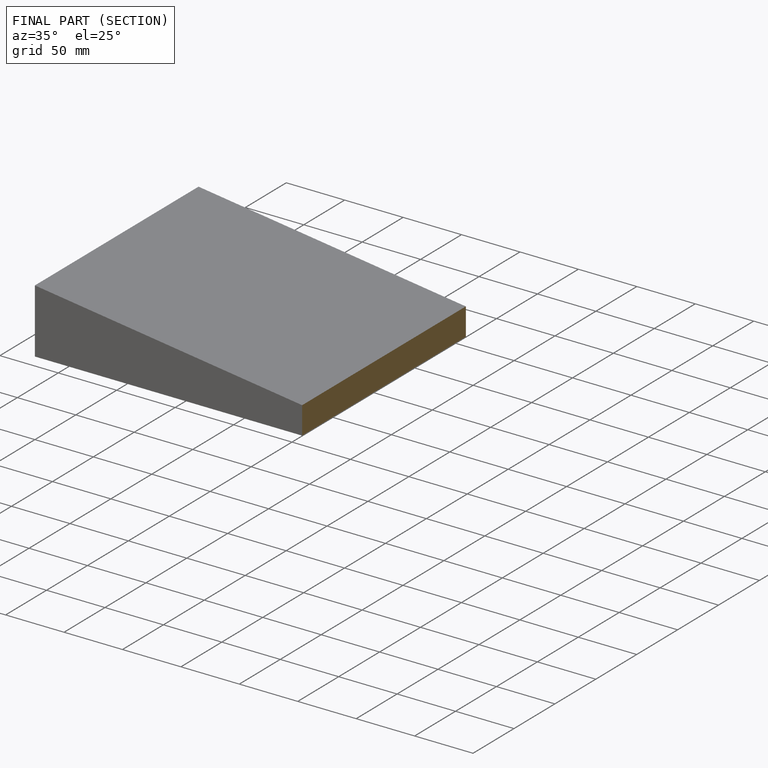
[diagram: finished part — half-section view (interior)]
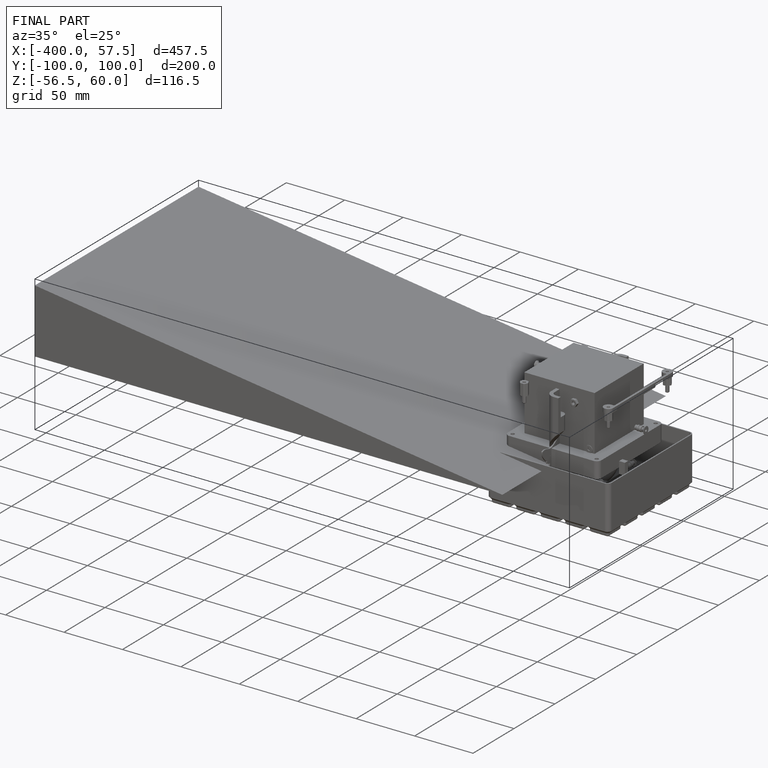
[diagram: finished part — iso view with bounding-box wireframe]
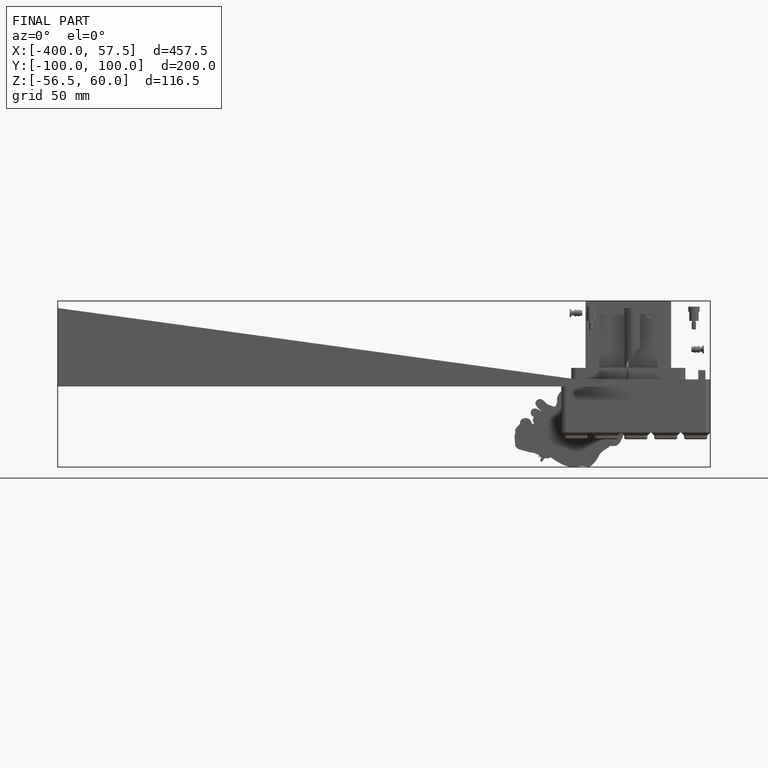
[diagram: finished part — front view with bounding-box wireframe]
